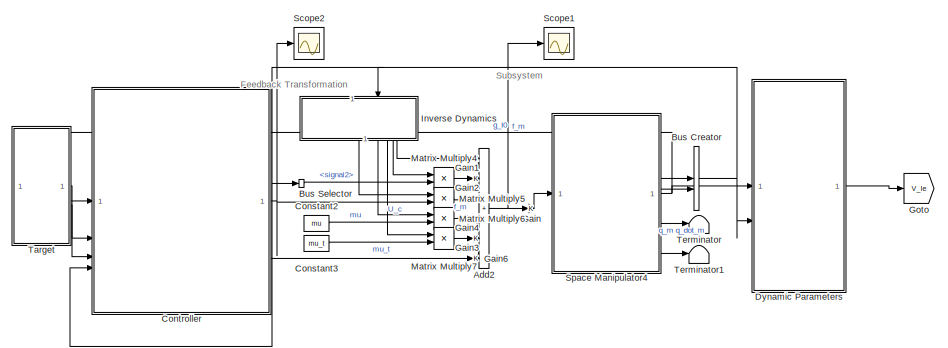
[diagram: root canvas - part 1/2, left side, full height]
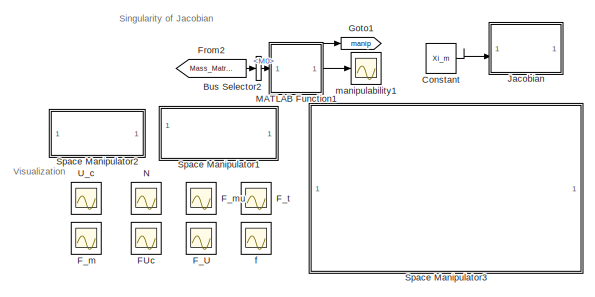
[diagram: root canvas - part 2/2, right side, full height]
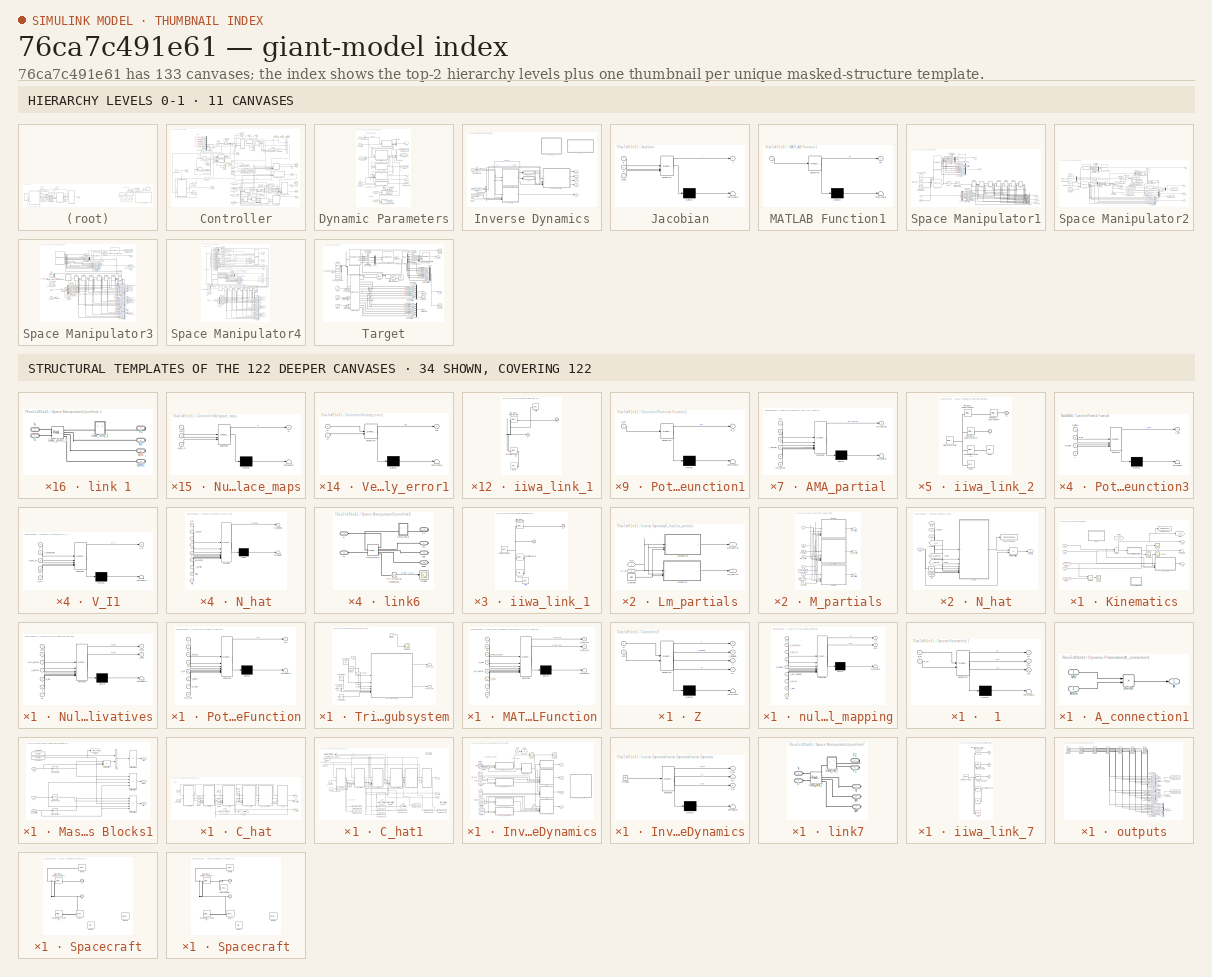
[diagram: thumbnail index - top-2 hierarchy levels (11 canvases) + 34 structural-template representatives of the remaining 122 canvases]
MODEL slx_76ca7c491e61
KIND model
CONFIG AbsTol = auto
CONFIG EnableMultiTasking = off
CONFIG FixedStep = 0.001
CONFIG InitFcn = %rho_0t=[0.29;0.29;0.29]; %m\n%V_0t=[-0.001;-0.001;0];%[-0.0005;-0.0005;0];\n%w_t=[0;0;-0.002];\n\n\n%rho_0t=[0.3;0.3;0.2]; %m\n%V_0t=[-0.001;-0.001;0];%[-0.0005;-0.0005;0];\n%w_t=[0;0;-0.001];
CONFIG MaxStep = auto
CONFIG MinStep = auto
CONFIG RelTol = 1e-3
CONFIG SampleTimeConstraint = Unconstrained
CONFIG SolverName = ode4
CONFIG StartTime = 0.0
CONFIG StopTime = 60
BLOCK [Sum] Add2
  IconShape = rectangular
  Inputs = ++++++
BLOCK [BusCreator] Bus Creator
  DisplayOption = bar
  InheritFromInputs = on
  Inputs = 2
BLOCK [BusSelector] Bus Selector
  OutputSignals = signal2
BLOCK [BusSelector] Bus Selector2
  Commented = on
  OutputSignals = M0
BLOCK [Constant] Constant
  Commented = on
  Value = Xi_m
BLOCK [Constant] Constant2
  Value = mu
BLOCK [Constant] Constant3
  Value = mu_t
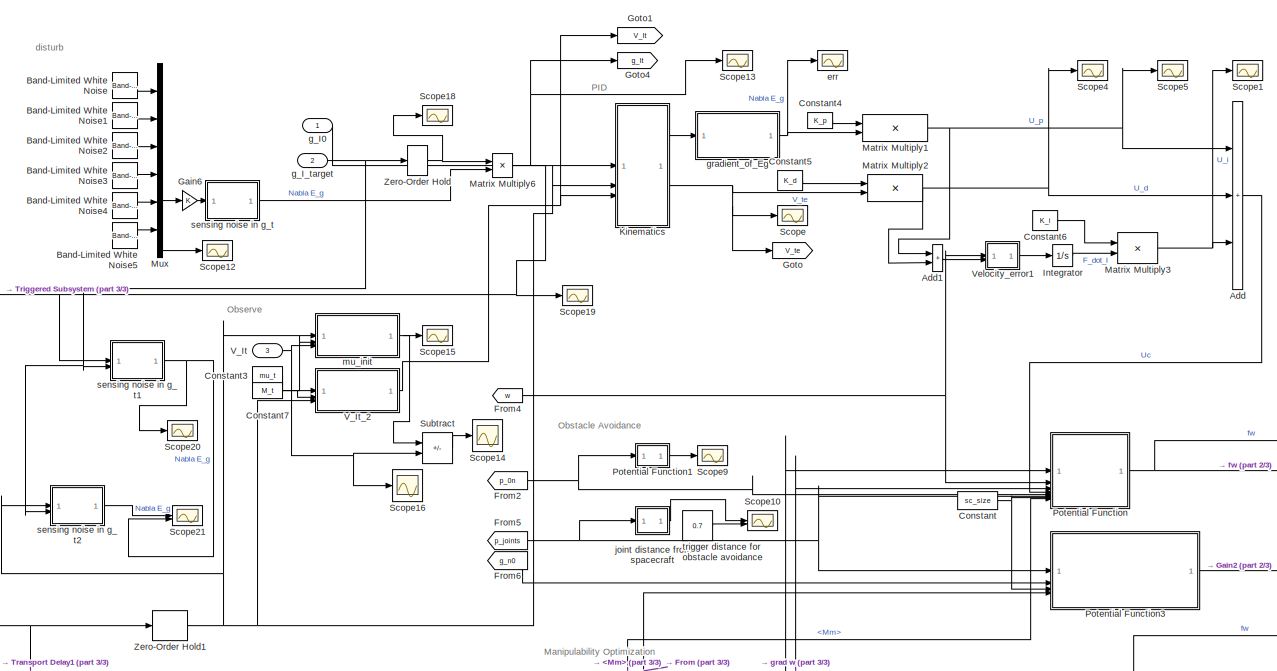
[diagram: Controller - part 1/3, full width, middle band]
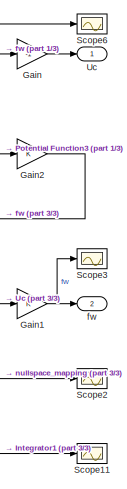
[diagram: Controller - part 2/3, middle right region]
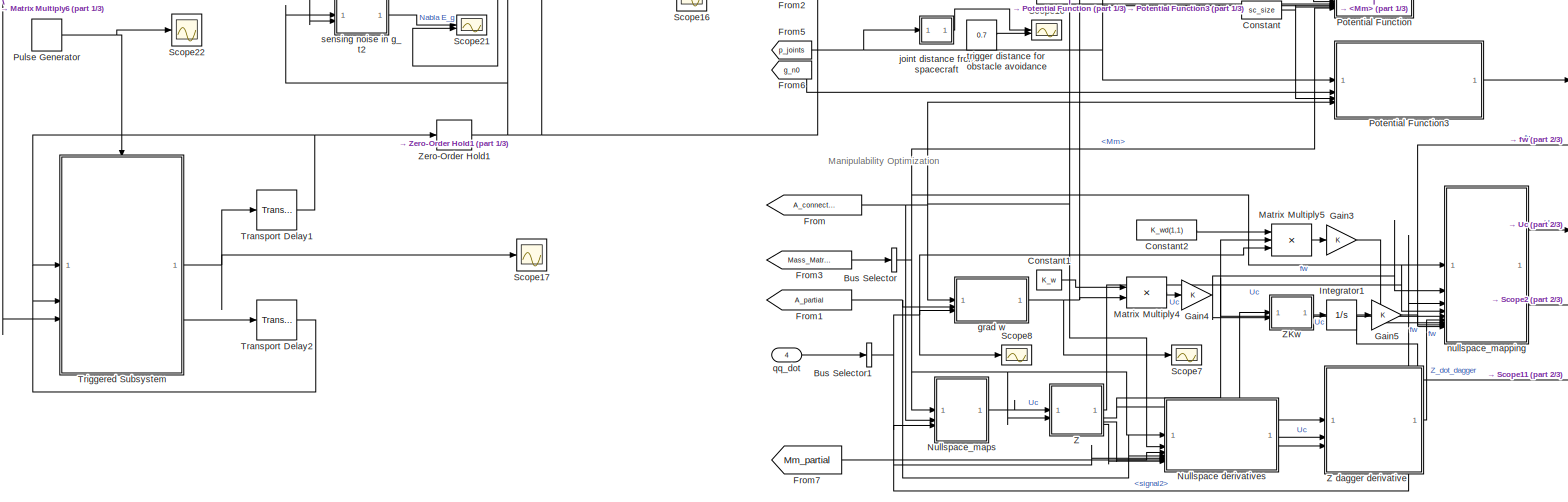
[diagram: Controller - part 3/3, full width, bottom band]
BLOCK [SubSystem] Controller
BLOCK [Sum] Controller/Add
  IconShape = rectangular
  Inputs = +++
BLOCK [Sum] Controller/Add1
  IconShape = rectangular
BLOCK [Reference] Controller/Band-Limited White Noise  REF=simulink/Sources/Band-Limited
White Noise
  SourceBlock = simulink/Sources/Band-Limited\nWhite Noise
  SourceType = Band-Limited White Noise.
BLOCK [Reference] Controller/Band-Limited White Noise1  REF=simulink/Sources/Band-Limited
White Noise
  SourceBlock = simulink/Sources/Band-Limited\nWhite Noise
  SourceType = Band-Limited White Noise.
BLOCK [Reference] Controller/Band-Limited White Noise2  REF=simulink/Sources/Band-Limited
White Noise
  SourceBlock = simulink/Sources/Band-Limited\nWhite Noise
  SourceType = Band-Limited White Noise.
BLOCK [Reference] Controller/Band-Limited White Noise3  REF=simulink/Sources/Band-Limited
White Noise
  SourceBlock = simulink/Sources/Band-Limited\nWhite Noise
  SourceType = Band-Limited White Noise.
BLOCK [Reference] Controller/Band-Limited White Noise4  REF=simulink/Sources/Band-Limited
White Noise
  SourceBlock = simulink/Sources/Band-Limited\nWhite Noise
  SourceType = Band-Limited White Noise.
BLOCK [Reference] Controller/Band-Limited White Noise5  REF=simulink/Sources/Band-Limited
White Noise
  SourceBlock = simulink/Sources/Band-Limited\nWhite Noise
  SourceType = Band-Limited White Noise.
BLOCK [BusSelector] Controller/Bus Selector
  OutputSignals = Mm
BLOCK [BusSelector] Controller/Bus Selector1
  OutputSignals = signal2
BLOCK [Constant] Controller/Constant
  Value = sc_size
BLOCK [Constant] Controller/Constant1
  Value = K_w
BLOCK [Constant] Controller/Constant2
  Value = K_wd(1,1)
BLOCK [Constant] Controller/Constant3
  Value = mu_t
BLOCK [Constant] Controller/Constant4
  Value = K_p
BLOCK [Constant] Controller/Constant5
  Value = K_d
BLOCK [Constant] Controller/Constant6
  Value = K_i
BLOCK [Constant] Controller/Constant7
  Value = M_t
BLOCK [From] Controller/From
  GotoTag = A_connection
  TagVisibility = global
BLOCK [From] Controller/From1
  GotoTag = A_partial
  TagVisibility = global
BLOCK [From] Controller/From2
  GotoTag = p_0n
  TagVisibility = global
BLOCK [From] Controller/From3
  GotoTag = Mass_Matrix
  TagVisibility = global
BLOCK [From] Controller/From4
  GotoTag = w
  TagVisibility = global
BLOCK [From] Controller/From5
  GotoTag = p_joints
  TagVisibility = global
BLOCK [From] Controller/From6
  GotoTag = g_n0
  TagVisibility = global
BLOCK [From] Controller/From7
  GotoTag = Mm_partial
  TagVisibility = global
BLOCK [Gain] Controller/Gain
  Gain = -1
BLOCK [Gain] Controller/Gain1
BLOCK [Gain] Controller/Gain2
BLOCK [Gain] Controller/Gain3
BLOCK [Gain] Controller/Gain4
BLOCK [Gain] Controller/Gain5
BLOCK [Gain] Controller/Gain6
BLOCK [Goto] Controller/Goto
  GotoTag = V_te
  TagVisibility = global
BLOCK [Goto] Controller/Goto1
  GotoTag = V_It
  TagVisibility = global
BLOCK [Goto] Controller/Goto4
  GotoTag = g_It
  TagVisibility = global
BLOCK [Integrator] Controller/Integrator
BLOCK [Integrator] Controller/Integrator1
BLOCK [SubSystem] Controller/Kinematics
BLOCK [Product] Controller/Kinematics/Divide
  Inputs = /*
  Multiplication = Matrix(*)
BLOCK [Scope] Controller/Kinematics/E_g
  Floating = off
  NumInputPorts = 1
  ScopeSpecificationString = Simulink.scopes.TimeScopeBlockCfg('CurrentConfiguration', extmgr.ConfigurationSet(extmgr.Configuration('Core','General UI',true),extmgr.Configuration('Core','Source UI',true),extmgr.Configuration('Sources','WiredSimulink',true,'DataLoggingVariableName','ScopeData1'),extmgr.Configuration('Visuals','Time Domain',true,'SerializedDisplays',{struct('MinYLimReal','-0.00992','MaxYLimReal','0.08934','YLab...<+1457ch>
BLOCK [From] Controller/Kinematics/From1
  GotoTag = V_I0
  TagVisibility = global
BLOCK [From] Controller/Kinematics/From2
  GotoTag = V_Ie
  TagVisibility = global
BLOCK [Goto] Controller/Kinematics/Goto1
  GotoTag = g_te
  TagVisibility = global
BLOCK [Goto] Controller/Kinematics/Goto5
  Commented = on
  GotoTag = g_Ie
  TagVisibility = global
BLOCK [SubSystem] Controller/Kinematics/Pose Error Function
  ErrorFcn = Stateflow.Translate.translate
  PermitHierarchicalResolution = ExplicitOnly
  SFBlockType = MATLAB Function
  TreatAsAtomicUnit = on
BLOCK [Demux] Controller/Kinematics/Pose Error Function/ Demux 
  Outputs = 1
BLOCK [S-Function] Controller/Kinematics/Pose Error Function/ SFunction 
  EnableBusSupport = off
  FunctionName = sf_sfun
  PortCounts = [1 2]
  SFcnIsStateOwnerBlock = off
  SFunctionDeploymentMode = off
  Tag = Stateflow S-Function 5
BLOCK [Terminator] Controller/Kinematics/Pose Error Function/ Terminator 
BLOCK [Outport] Controller/Kinematics/Pose Error Function/E_g
BLOCK [Inport] Controller/Kinematics/Pose Error Function/g_te
BLOCK [Scope] Controller/Kinematics/Scope
  Floating = off
  NumInputPorts = 1
  ScopeSpecificationString = Simulink.scopes.TimeScopeBlockCfg('CurrentConfiguration', extmgr.ConfigurationSet(extmgr.Configuration('Core','General UI',true),extmgr.Configuration('Core','Source UI',true),extmgr.Configuration('Sources','WiredSimulink',true,'DataLoggingVariableName','ScopeData2'),extmgr.Configuration('Visuals','Time Domain',true,'SerializedDisplays',{struct('MinYLimReal','-0.00049','MaxYLimReal','0.00063','YLab...<+1508ch>
BLOCK [Scope] Controller/Kinematics/Scope1
  Floating = off
  NumInputPorts = 1
  ScopeSpecificationString = Simulink.scopes.TimeScopeBlockCfg('CurrentConfiguration', extmgr.ConfigurationSet(extmgr.Configuration('Core','General UI',true),extmgr.Configuration('Core','Source UI',true),extmgr.Configuration('Sources','WiredSimulink',true,'DataLoggingVariableName','ScopeData8'),extmgr.Configuration('Visuals','Time Domain',true,'SerializedDisplays',{struct('MinYLimReal','-4.4344','MaxYLimReal','7.95546','YLabe...<+1579ch>
BLOCK [Scope] Controller/Kinematics/Scope2
  Floating = off
  NumInputPorts = 1
  ScopeSpecificationString = Simulink.scopes.TimeScopeBlockCfg('CurrentConfiguration', extmgr.ConfigurationSet(extmgr.Configuration('Core','General UI',true),extmgr.Configuration('Core','Source UI',true),extmgr.Configuration('Sources','WiredSimulink',true,'DataLoggingVariableName','ScopeData9'),extmgr.Configuration('Visuals','Time Domain',true,'SerializedDisplays',{struct('MinYLimReal','-0.03514','MaxYLimReal','0.01624','YLab...<+1620ch>
BLOCK [Sum] Controller/Kinematics/Subtract
  IconShape = rectangular
  Inputs = +-
BLOCK [Terminator] Controller/Kinematics/Terminator3
BLOCK [ToWorkspace] Controller/Kinematics/To Workspace
  FixptAsFi = on
  MaxDataPoints = inf
  SampleTime = -1
  SaveFormat = Timeseries
  VariableName = g_te
BLOCK [Inport] Controller/Kinematics/V_It
  Port = 3
BLOCK [Outport] Controller/Kinematics/V_te
  Port = 2
BLOCK [SubSystem] Controller/Kinematics/Velocity_error
  ErrorFcn = Stateflow.Translate.translate
  PermitHierarchicalResolution = ExplicitOnly
  SFBlockType = MATLAB Function
  TreatAsAtomicUnit = on
BLOCK [Demux] Controller/Kinematics/Velocity_error/ Demux 
  Outputs = 1
BLOCK [S-Function] Controller/Kinematics/Velocity_error/ SFunction 
  EnableBusSupport = off
  FunctionName = sf_sfun
  PortCounts = [4 2]
  SFcnIsStateOwnerBlock = off
  SFunctionDeploymentMode = off
  Tag = Stateflow S-Function 6
BLOCK [Terminator] Controller/Kinematics/Velocity_error/ Terminator 
BLOCK [Inport] Controller/Kinematics/Velocity_error/V_Ie
  Port = 2
BLOCK [Inport] Controller/Kinematics/Velocity_error/V_It
  Port = 3
BLOCK [Outport] Controller/Kinematics/Velocity_error/V_e
BLOCK [Inport] Controller/Kinematics/Velocity_error/g_I0
BLOCK [Inport] Controller/Kinematics/Velocity_error/g_It
  Port = 4
BLOCK [Inport] Controller/Kinematics/g_I0
BLOCK [Inport] Controller/Kinematics/g_It
  NameLocation = top
  Port = 2
BLOCK [SubSystem] Controller/Kinematics/g_te
  Commented = on
  ErrorFcn = Stateflow.Translate.translate
  PermitHierarchicalResolution = ExplicitOnly
  SFBlockType = MATLAB Function
  TreatAsAtomicUnit = on
BLOCK [Demux] Controller/Kinematics/g_te/ Demux 
  Outputs = 1
BLOCK [S-Function] Controller/Kinematics/g_te/ SFunction 
  EnableBusSupport = off
  FunctionName = sf_sfun
  PortCounts = [2 2]
  SFcnIsStateOwnerBlock = off
  SFunctionDeploymentMode = off
  Tag = Stateflow S-Function 3
BLOCK [Terminator] Controller/Kinematics/g_te/ Terminator 
BLOCK [Inport] Controller/Kinematics/g_te/g_Ie
BLOCK [Inport] Controller/Kinematics/g_te/g_It
  Port = 2
BLOCK [Outport] Controller/Kinematics/g_te/g_te
BLOCK [Outport] Controller/Kinematics/g_te1
BLOCK [SubSystem] Controller/Kinematics/velocity of target in EE
  Commented = on
  ErrorFcn = Stateflow.Translate.translate
  PermitHierarchicalResolution = ExplicitOnly
  SFBlockType = MATLAB Function
  TreatAsAtomicUnit = on
BLOCK [Demux] Controller/Kinematics/velocity of target in EE/ Demux 
  Outputs = 1
BLOCK [S-Function] Controller/Kinematics/velocity of target in EE/ SFunction 
  EnableBusSupport = off
  FunctionName = sf_sfun
  PortCounts = [2 2]
  SFcnIsStateOwnerBlock = off
  SFunctionDeploymentMode = off
  Tag = Stateflow S-Function 26
BLOCK [Terminator] Controller/Kinematics/velocity of target in EE/ Terminator 
BLOCK [Inport] Controller/Kinematics/velocity of target in EE/V_It
  Port = 2
BLOCK [Outport] Controller/Kinematics/velocity of target in EE/V_It_e
BLOCK [Inport] Controller/Kinematics/velocity of target in EE/g_te
BLOCK [Product] Controller/Matrix Multiply1
  Multiplication = Matrix(*)
BLOCK [Product] Controller/Matrix Multiply2
  Multiplication = Matrix(*)
BLOCK [Product] Controller/Matrix Multiply3
  Multiplication = Matrix(*)
BLOCK [Product] Controller/Matrix Multiply4
  Multiplication = Matrix(*)
BLOCK [Product] Controller/Matrix Multiply5
  Inputs = 3
  Multiplication = Matrix(*)
BLOCK [Product] Controller/Matrix Multiply6
  Multiplication = Matrix(*)
BLOCK [Mux] Controller/Mux
  DisplayOption = bar
  Inputs = 6
BLOCK [SubSystem] Controller/Nullspace derivatives
  ErrorFcn = Stateflow.Translate.translate
  PermitHierarchicalResolution = ExplicitOnly
  SFBlockType = MATLAB Function
  TreatAsAtomicUnit = on
BLOCK [Demux] Controller/Nullspace derivatives/ Demux 
  Outputs = 1
BLOCK [S-Function] Controller/Nullspace derivatives/ SFunction 
  EnableBusSupport = off
  FunctionName = sf_sfun
  PortCounts = [7 3]
  SFcnIsStateOwnerBlock = off
  SFunctionDeploymentMode = off
  Tag = Stateflow S-Function 20
BLOCK [Terminator] Controller/Nullspace derivatives/ Terminator 
BLOCK [Inport] Controller/Nullspace derivatives/A
  Port = 2
BLOCK [Inport] Controller/Nullspace derivatives/A_partial
  Port = 4
BLOCK [Inport] Controller/Nullspace derivatives/Mm
BLOCK [Inport] Controller/Nullspace derivatives/Mm_partial
  Port = 3
BLOCK [Outport] Controller/Nullspace derivatives/N_dot
BLOCK [Inport] Controller/Nullspace derivatives/Nj
  Port = 7
BLOCK [Outport] Controller/Nullspace derivatives/Z_dot
  Port = 2
BLOCK [Inport] Controller/Nullspace derivatives/j
  Port = 6
BLOCK [Inport] Controller/Nullspace derivatives/q_dot
  Port = 5
BLOCK [SubSystem] Controller/Nullspace_maps
  ErrorFcn = Stateflow.Translate.translate
  PermitHierarchicalResolution = ExplicitOnly
  SFBlockType = MATLAB Function
  TreatAsAtomicUnit = on
BLOCK [Demux] Controller/Nullspace_maps/ Demux 
  Outputs = 1
BLOCK [S-Function] Controller/Nullspace_maps/ SFunction 
  EnableBusSupport = off
  FunctionName = sf_sfun
  PortCounts = [3 2]
  SFcnIsStateOwnerBlock = off
  SFunctionDeploymentMode = off
  Tag = Stateflow S-Function 23
BLOCK [Terminator] Controller/Nullspace_maps/ Terminator 
BLOCK [Inport] Controller/Nullspace_maps/A
  Port = 2
BLOCK [Inport] Controller/Nullspace_maps/Mm
BLOCK [Outport] Controller/Nullspace_maps/N
BLOCK [Inport] Controller/Nullspace_maps/q_dot_m
  Port = 3
BLOCK [SubSystem] Controller/Potential Function
  ErrorFcn = Stateflow.Translate.translate
  PermitHierarchicalResolution = ExplicitOnly
  SFBlockType = MATLAB Function
  TreatAsAtomicUnit = on
BLOCK [Demux] Controller/Potential Function/ Demux 
  Outputs = 1
BLOCK [S-Function] Controller/Potential Function/ SFunction 
  EnableBusSupport = off
  FunctionName = sf_sfun
  PortCounts = [8 2]
  SFcnIsStateOwnerBlock = off
  SFunctionDeploymentMode = off
  Tag = Stateflow S-Function 1
BLOCK [Terminator] Controller/Potential Function/ Terminator 
BLOCK [Inport] Controller/Potential Function/A
BLOCK [Inport] Controller/Potential Function/Mm_hat
  Port = 8
BLOCK [Inport] Controller/Potential Function/U_c
  Port = 4
BLOCK [Outport] Controller/Potential Function/U_ff
BLOCK [Inport] Controller/Potential Function/grad_w
  Port = 3
BLOCK [Inport] Controller/Potential Function/p_0n
  Port = 5
BLOCK [Inport] Controller/Potential Function/p_joints
  Port = 6
BLOCK [Inport] Controller/Potential Function/sc_size
  Port = 7
BLOCK [Inport] Controller/Potential Function/w
  Port = 2
BLOCK [SubSystem] Controller/Potential Function1
  ErrorFcn = Stateflow.Translate.translate
  PermitHierarchicalResolution = ExplicitOnly
  SFBlockType = MATLAB Function
  TreatAsAtomicUnit = on
BLOCK [Demux] Controller/Potential Function1/ Demux 
  Outputs = 1
BLOCK [S-Function] Controller/Potential Function1/ SFunction 
  EnableBusSupport = off
  FunctionName = sf_sfun
  PortCounts = [1 2]
  SFcnIsStateOwnerBlock = off
  SFunctionDeploymentMode = off
  Tag = Stateflow S-Function 14
BLOCK [Terminator] Controller/Potential Function1/ Terminator 
BLOCK [Inport] Controller/Potential Function1/p_0n
BLOCK [Outport] Controller/Potential Function1/w_p
BLOCK [SubSystem] Controller/Potential Function3
  ErrorFcn = Stateflow.Translate.translate
  PermitHierarchicalResolution = ExplicitOnly
  SFBlockType = MATLAB Function
  TreatAsAtomicUnit = on
BLOCK [Demux] Controller/Potential Function3/ Demux 
  Outputs = 1
BLOCK [S-Function] Controller/Potential Function3/ SFunction 
  EnableBusSupport = off
  FunctionName = sf_sfun
  PortCounts = [4 2]
  SFcnIsStateOwnerBlock = off
  SFunctionDeploymentMode = off
  Tag = Stateflow S-Function 17
BLOCK [Terminator] Controller/Potential Function3/ Terminator 
BLOCK [Inport] Controller/Potential Function3/A
  Port = 4
BLOCK [Outport] Controller/Potential Function3/f_pot
BLOCK [Inport] Controller/Potential Function3/g_n0
  Port = 2
BLOCK [Inport] Controller/Potential Function3/p_joints
BLOCK [Inport] Controller/Potential Function3/sc_size
  Port = 3
BLOCK [DiscretePulseGenerator] Controller/Pulse Generator
  Period = Dt
  PulseType = Time based
  PulseWidth = 10
BLOCK [Scope] Controller/Scope
  Floating = off
  NumInputPorts = 1
  ScopeSpecificationString = Simulink.scopes.TimeScopeBlockCfg('CurrentConfiguration', extmgr.ConfigurationSet(extmgr.Configuration('Core','General UI',true),extmgr.Configuration('Core','Source UI',true),extmgr.Configuration('Sources','WiredSimulink',true),extmgr.Configuration('Visuals','Time Domain',true,'SerializedDisplays',{struct('MinYLimReal','-0.10668','MaxYLimReal','0.04519','YLabelReal','','MinYLimMag','0.00000','MaxY...<+1469ch>
BLOCK [Scope] Controller/Scope1
  Floating = off
  NumInputPorts = 1
  ScopeSpecificationString = Simulink.scopes.TimeScopeBlockCfg('CurrentConfiguration', extmgr.ConfigurationSet(extmgr.Configuration('Core','General UI',true),extmgr.Configuration('Core','Source UI',true),extmgr.Configuration('Sources','WiredSimulink',true,'DataLoggingVariableName','ScopeData3'),extmgr.Configuration('Visuals','Time Domain',true,'SerializedDisplays',{struct('MinYLimReal','-1.15074','MaxYLimReal','1.5836','YLabe...<+1637ch>
BLOCK [Scope] Controller/Scope10
  Floating = off
  NumInputPorts = 2
  ScopeSpecificationString = Simulink.scopes.TimeScopeBlockCfg('CurrentConfiguration', extmgr.ConfigurationSet(extmgr.Configuration('Core','General UI',true),extmgr.Configuration('Core','Source UI',true),extmgr.Configuration('Sources','WiredSimulink',true,'DataLoggingVariableName','ScopeData1'),extmgr.Configuration('Visuals','Time Domain',true,'SerializedDisplays',{struct('MinYLimReal','0.15616','MaxYLimReal','1.7029','YLabel...<+1830ch>
BLOCK [Scope] Controller/Scope11
  Floating = off
  NumInputPorts = 1
  ScopeSpecificationString = Simulink.scopes.TimeScopeBlockCfg('CurrentConfiguration', extmgr.ConfigurationSet(extmgr.Configuration('Core','General UI',true),extmgr.Configuration('Core','Source UI',true),extmgr.Configuration('Sources','WiredSimulink',true,'DataLoggingVariableName','ScopeData1'),extmgr.Configuration('Visuals','Time Domain',true,'SerializedDisplays',{struct('MinYLimReal','-27.19875','MaxYLimReal','175.70416','Y...<+1458ch>
BLOCK [Scope] Controller/Scope12
  Floating = off
  NumInputPorts = 1
  ScopeSpecificationString = Simulink.scopes.TimeScopeBlockCfg('CurrentConfiguration', extmgr.ConfigurationSet(extmgr.Configuration('Core','General UI',true),extmgr.Configuration('Core','Source UI',true),extmgr.Configuration('Sources','WiredSimulink',true,'DataLoggingVariableName','ScopeData1'),extmgr.Configuration('Visuals','Time Domain',true,'SerializedDisplays',{struct('MinYLimReal','-0.00733','MaxYLimReal','0.00731','YLab...<+1619ch>
BLOCK [Scope] Controller/Scope13
  Floating = off
  NumInputPorts = 1
  ScopeSpecificationString = Simulink.scopes.TimeScopeBlockCfg('CurrentConfiguration', extmgr.ConfigurationSet(extmgr.Configuration('Core','General UI',true),extmgr.Configuration('Core','Source UI',true),extmgr.Configuration('Sources','WiredSimulink',true,'DataLoggingVariableName','ScopeData3'),extmgr.Configuration('Visuals','Time Domain',true,'SerializedDisplays',{struct('MinYLimReal','-0.82393','MaxYLimReal','1.20266','YLab...<+2175ch>
BLOCK [Scope] Controller/Scope14
  Floating = off
  NumInputPorts = 1
  ScopeSpecificationString = Simulink.scopes.TimeScopeBlockCfg('CurrentConfiguration', extmgr.ConfigurationSet(extmgr.Configuration('Core','General UI',true),extmgr.Configuration('Core','Source UI',true),extmgr.Configuration('Sources','WiredSimulink',true,'DataLoggingVariableName','ScopeData4'),extmgr.Configuration('Visuals','Time Domain',true,'SerializedDisplays',{struct('MinYLimReal','-0.17727','MaxYLimReal','0.05018','YLab...<+1763ch>
BLOCK [Scope] Controller/Scope15
  Floating = off
  NumInputPorts = 1
  ScopeSpecificationString = Simulink.scopes.TimeScopeBlockCfg('CurrentConfiguration', extmgr.ConfigurationSet(extmgr.Configuration('Core','General UI',true),extmgr.Configuration('Core','Source UI',true),extmgr.Configuration('Sources','WiredSimulink',true,'DataLoggingVariableName','ScopeData6'),extmgr.Configuration('Visuals','Time Domain',true,'SerializedDisplays',{struct('MinYLimReal','-0.01298','MaxYLimReal','-0.01083','YLa...<+1701ch>
BLOCK [Scope] Controller/Scope16
  Floating = off
  NumInputPorts = 1
  ScopeSpecificationString = Simulink.scopes.TimeScopeBlockCfg('CurrentConfiguration', extmgr.ConfigurationSet(extmgr.Configuration('Core','General UI',true),extmgr.Configuration('Core','Source UI',true),extmgr.Configuration('Sources','WiredSimulink',true,'DataLoggingVariableName','ScopeData1'),extmgr.Configuration('Visuals','Time Domain',true,'SerializedDisplays',{struct('MinYLimReal','-0.03435','MaxYLimReal','0.00919','YLab...<+1815ch>
BLOCK [Scope] Controller/Scope17
  Floating = off
  NumInputPorts = 1
  ScopeSpecificationString = Simulink.scopes.TimeScopeBlockCfg('CurrentConfiguration', extmgr.ConfigurationSet(extmgr.Configuration('Core','General UI',true),extmgr.Configuration('Core','Source UI',true),extmgr.Configuration('Sources','WiredSimulink',true,'DataLoggingVariableName','ScopeData1'),extmgr.Configuration('Visuals','Time Domain',true,'SerializedDisplays',{struct('MinYLimReal','-0.04688','MaxYLimReal','0.02949','YLab...<+2441ch>
BLOCK [Scope] Controller/Scope18
  Floating = off
  NumInputPorts = 1
  ScopeSpecificationString = Simulink.scopes.TimeScopeBlockCfg('CurrentConfiguration', extmgr.ConfigurationSet(extmgr.Configuration('Core','General UI',true),extmgr.Configuration('Core','Source UI',true),extmgr.Configuration('Sources','WiredSimulink',true,'DataLoggingVariableName','ScopeData2'),extmgr.Configuration('Visuals','Time Domain',true,'SerializedDisplays',{struct('MinYLimReal','-0.12837','MaxYLimReal','1.12537','YLab...<+1785ch>
BLOCK [Scope] Controller/Scope19
  Floating = off
  NumInputPorts = 1
  ScopeSpecificationString = Simulink.scopes.TimeScopeBlockCfg('CurrentConfiguration', extmgr.ConfigurationSet(extmgr.Configuration('Core','General UI',true),extmgr.Configuration('Core','Source UI',true),extmgr.Configuration('Sources','WiredSimulink',true,'DataLoggingVariableName','ScopeData3'),extmgr.Configuration('Visuals','Time Domain',true,'SerializedDisplays',{struct('MinYLimReal','-0.50961','MaxYLimReal','1.16773','YLab...<+1801ch>
BLOCK [Scope] Controller/Scope2
  Floating = off
  NumInputPorts = 1
  ScopeSpecificationString = Simulink.scopes.TimeScopeBlockCfg('CurrentConfiguration', extmgr.ConfigurationSet(extmgr.Configuration('Core','General UI',true),extmgr.Configuration('Core','Source UI',true),extmgr.Configuration('Sources','WiredSimulink',true,'DataLoggingVariableName','ScopeData1'),extmgr.Configuration('Visuals','Time Domain',true,'SerializedDisplays',{struct('MinYLimReal','-2317681194068264.5','MaxYLimReal','257...<+1560ch>
BLOCK [Scope] Controller/Scope20
  Floating = off
  NumInputPorts = 1
  ScopeSpecificationString = Simulink.scopes.TimeScopeBlockCfg('CurrentConfiguration', extmgr.ConfigurationSet(extmgr.Configuration('Core','General UI',true),extmgr.Configuration('Core','Source UI',true),extmgr.Configuration('Sources','WiredSimulink',true,'DataLoggingVariableName','ScopeData4'),extmgr.Configuration('Visuals','Time Domain',true,'SerializedDisplays',{struct('MinYLimReal','-0.0001','MaxYLimReal','0.00139','YLabe...<+1462ch>
BLOCK [Scope] Controller/Scope21
  Floating = off
  NumInputPorts = 2
  ScopeSpecificationString = Simulink.scopes.TimeScopeBlockCfg('CurrentConfiguration', extmgr.ConfigurationSet(extmgr.Configuration('Core','General UI',true),extmgr.Configuration('Core','Source UI',true),extmgr.Configuration('Sources','WiredSimulink',true,'DataLoggingVariableName','ScopeData5'),extmgr.Configuration('Visuals','Time Domain',true,'SerializedDisplays',{struct('MinYLimReal','-0.0001','MaxYLimReal','0.00094','YLabe...<+1463ch>
BLOCK [Scope] Controller/Scope22
  Floating = off
  NumInputPorts = 1
  ScopeSpecificationString = Simulink.scopes.TimeScopeBlockCfg('CurrentConfiguration', extmgr.ConfigurationSet(extmgr.Configuration('Core','General UI',true),extmgr.Configuration('Core','Source UI',true),extmgr.Configuration('Sources','WiredSimulink',true,'DataLoggingVariableName','ScopeData7'),extmgr.Configuration('Visuals','Time Domain',true,'SerializedDisplays',{struct('MinYLimReal','-0.125','MaxYLimReal','1.125','YLabelRe...<+1794ch>
BLOCK [Scope] Controller/Scope3
  Floating = off
  NumInputPorts = 1
  ScopeSpecificationString = Simulink.scopes.TimeScopeBlockCfg('CurrentConfiguration', extmgr.ConfigurationSet(extmgr.Configuration('Core','General UI',true),extmgr.Configuration('Core','Source UI',true),extmgr.Configuration('Sources','WiredSimulink',true,'DataLoggingVariableName','ScopeData9'),extmgr.Configuration('Visuals','Time Domain',true,'SerializedDisplays',{struct('MinYLimReal','-2538.12086','MaxYLimReal','1236.63883'...<+1454ch>
BLOCK [Scope] Controller/Scope4
  Floating = off
  NumInputPorts = 1
  ScopeSpecificationString = Simulink.scopes.TimeScopeBlockCfg('CurrentConfiguration', extmgr.ConfigurationSet(extmgr.Configuration('Core','General UI',true),extmgr.Configuration('Core','Source UI',true),extmgr.Configuration('Sources','WiredSimulink',true,'DataLoggingVariableName','ScopeData5'),extmgr.Configuration('Visuals','Time Domain',true,'SerializedDisplays',{struct('MinYLimReal','-0.89635','MaxYLimReal','1.10812','YLab...<+1641ch>
BLOCK [Scope] Controller/Scope5
  Floating = off
  NumInputPorts = 1
  ScopeSpecificationString = Simulink.scopes.TimeScopeBlockCfg('CurrentConfiguration', extmgr.ConfigurationSet(extmgr.Configuration('Core','General UI',true),extmgr.Configuration('Core','Source UI',true),extmgr.Configuration('Sources','WiredSimulink',true,'DataLoggingVariableName','ScopeData6'),extmgr.Configuration('Visuals','Time Domain',true,'SerializedDisplays',{struct('MinYLimReal','-0.49484','MaxYLimReal','1.44387','YLab...<+1641ch>
BLOCK [Scope] Controller/Scope6
  Floating = off
  NumInputPorts = 1
  ScopeSpecificationString = Simulink.scopes.TimeScopeBlockCfg('CurrentConfiguration', extmgr.ConfigurationSet(extmgr.Configuration('Core','General UI',true),extmgr.Configuration('Core','Source UI',true),extmgr.Configuration('Sources','WiredSimulink',true,'DataLoggingVariableName','ScopeData7'),extmgr.Configuration('Visuals','Time Domain',true,'SerializedDisplays',{struct('MinYLimReal','-48.91233','MaxYLimReal','106.72772','Y...<+1618ch>
BLOCK [Scope] Controller/Scope7
  Floating = off
  NumInputPorts = 1
  ScopeSpecificationString = Simulink.scopes.TimeScopeBlockCfg('CurrentConfiguration', extmgr.ConfigurationSet(extmgr.Configuration('Core','General UI',true),extmgr.Configuration('Core','Source UI',true),extmgr.Configuration('Sources','WiredSimulink',true,'DataLoggingVariableName','ScopeData1'),extmgr.Configuration('Visuals','Time Domain',true,'SerializedDisplays',{struct('MinYLimReal','-0.01116','MaxYLimReal','0.00816','YLab...<+1531ch>
BLOCK [Scope] Controller/Scope8
  Floating = off
  NumInputPorts = 1
  ScopeSpecificationString = Simulink.scopes.TimeScopeBlockCfg('CurrentConfiguration', extmgr.ConfigurationSet(extmgr.Configuration('Core','General UI',true),extmgr.Configuration('Core','Source UI',true),extmgr.Configuration('Sources','WiredSimulink',true,'DataLoggingVariableName','ScopeData2'),extmgr.Configuration('Visuals','Time Domain',true,'SerializedDisplays',{struct('MinYLimReal','-0.62456','MaxYLimReal','0.99651','YLab...<+1552ch>
BLOCK [Scope] Controller/Scope9
  Floating = off
  NumInputPorts = 1
  ScopeSpecificationString = Simulink.scopes.TimeScopeBlockCfg('CurrentConfiguration', extmgr.ConfigurationSet(extmgr.Configuration('Core','General UI',true),extmgr.Configuration('Core','Source UI',true),extmgr.Configuration('Sources','WiredSimulink',true,'DataLoggingVariableName','ScopeData1'),extmgr.Configuration('Visuals','Time Domain',true,'SerializedDisplays',{struct('MinYLimReal','-0.02162','MaxYLimReal','1.39189','YLab...<+1620ch>
BLOCK [Sum] Controller/Subtract
  IconShape = rectangular
  Inputs = +-
BLOCK [TransportDelay] Controller/Transport Delay1
  DelayTime = Dt
  InitialOutput = g_It00
  TransDelayFeedthrough = on
BLOCK [TransportDelay] Controller/Transport Delay2
  DelayTime = Dt
  InitialOutput = zeros(6)
  TransDelayFeedthrough = on
BLOCK [SubSystem] Controller/Triggered Subsystem
  TreatAsAtomicUnit = on
BLOCK [Constant] Controller/Triggered Subsystem/Constant10
  Value = Dt
BLOCK [Constant] Controller/Triggered Subsystem/Constant11
  Value = mu_t
BLOCK [Constant] Controller/Triggered Subsystem/Constant12
  Value = noise_st.*eye(6)
BLOCK [Constant] Controller/Triggered Subsystem/Constant13
  Value = noise_st.*eye(6)
BLOCK [SubSystem] Controller/Triggered Subsystem/MATLAB Function
  ErrorFcn = Stateflow.Translate.translate
  PermitHierarchicalResolution = ExplicitOnly
  SFBlockType = MATLAB Function
  TreatAsAtomicUnit = on
BLOCK [Demux] Controller/Triggered Subsystem/MATLAB Function/ Demux 
  Outputs = 1
BLOCK [S-Function] Controller/Triggered Subsystem/MATLAB Function/ SFunction 
  EnableBusSupport = off
  FunctionName = sf_sfun
  PortCounts = [8 3]
  SFcnIsStateOwnerBlock = off
  SFunctionDeploymentMode = off
  Tag = Stateflow S-Function 32
BLOCK [Terminator] Controller/Triggered Subsystem/MATLAB Function/ Terminator 
BLOCK [Inport] Controller/Triggered Subsystem/MATLAB Function/Dt
  Port = 2
BLOCK [Inport] Controller/Triggered Subsystem/MATLAB Function/Mass_matrix
  Port = 3
BLOCK [Inport] Controller/Triggered Subsystem/MATLAB Function/P_pos
  Port = 6
BLOCK [Outport] Controller/Triggered Subsystem/MATLAB Function/P_pos_out
  Port = 2
BLOCK [Inport] Controller/Triggered Subsystem/MATLAB Function/Q
  Port = 7
BLOCK [Inport] Controller/Triggered Subsystem/MATLAB Function/R
  Port = 8
BLOCK [Inport] Controller/Triggered Subsystem/MATLAB Function/X_pos
  Port = 4
BLOCK [Outport] Controller/Triggered Subsystem/MATLAB Function/X_pos_out
BLOCK [Inport] Controller/Triggered Subsystem/MATLAB Function/Z
BLOCK [Inport] Controller/Triggered Subsystem/MATLAB Function/mu_vector
  Port = 5
BLOCK [Constant] Controller/Triggered Subsystem/Mass
  Value = [M_t(4:6,4:6) zeros(3); zeros(3) M_t(1:3,1:3)]
BLOCK [Inport] Controller/Triggered Subsystem/P_pos
  Port = 2
BLOCK [Outport] Controller/Triggered Subsystem/P_pos_out
  Port = 2
BLOCK [Scope] Controller/Triggered Subsystem/Scope17
  Floating = off
  NumInputPorts = 1
  ScopeSpecificationString = Simulink.scopes.TimeScopeBlockCfg('CurrentConfiguration', extmgr.ConfigurationSet(extmgr.Configuration('Core','General UI',true),extmgr.Configuration('Core','Source UI',true),extmgr.Configuration('Sources','WiredSimulink',true,'DataLoggingVariableName','ScopeData6'),extmgr.Configuration('Visuals','Time Domain',true,'SerializedDisplays',{struct('MinYLimReal','0.9','MaxYLimReal','1.1','YLabelReal','...<+1763ch>
BLOCK [TriggerPort] Controller/Triggered Subsystem/Trigger
  InitialTriggerSignalState = positive
  SampleTime = 0.5
  SampleTimeType = periodic
  ShowOutputPort = on
  StatesWhenEnabling = held
  VariantControl = (inherit)
BLOCK [Inport] Controller/Triggered Subsystem/X_pos
BLOCK [Outport] Controller/Triggered Subsystem/X_pos_out
BLOCK [Inport] Controller/Triggered Subsystem/Z
  Port = 3
BLOCK [Outport] Controller/Uc
BLOCK [Inport] Controller/V_It
  Port = 3
BLOCK [SubSystem] Controller/V_It_2
  ErrorFcn = Stateflow.Translate.translate
  PermitHierarchicalResolution = ExplicitOnly
  SFBlockType = MATLAB Function
  TreatAsAtomicUnit = on
BLOCK [Demux] Controller/V_It_2/ Demux 
  Outputs = 1
BLOCK [S-Function] Controller/V_It_2/ SFunction 
  EnableBusSupport = off
  FunctionName = sf_sfun
  PortCounts = [3 2]
  SFcnIsStateOwnerBlock = off
  SFunctionDeploymentMode = off
  Tag = Stateflow S-Function 27
BLOCK [Terminator] Controller/V_It_2/ Terminator 
BLOCK [Inport] Controller/V_It_2/M_t_body
  Port = 2
BLOCK [Outport] Controller/V_It_2/V_It_2
BLOCK [Inport] Controller/V_It_2/g_It
  Port = 3
BLOCK [Inport] Controller/V_It_2/mu_t
BLOCK [SubSystem] Controller/Velocity_error1
  ErrorFcn = Stateflow.Translate.translate
  PermitHierarchicalResolution = ExplicitOnly
  SFBlockType = MATLAB Function
  TreatAsAtomicUnit = on
BLOCK [Demux] Controller/Velocity_error1/ Demux 
  Outputs = 1
BLOCK [S-Function] Controller/Velocity_error1/ SFunction 
  EnableBusSupport = off
  FunctionName = sf_sfun
  PortCounts = [2 2]
  SFcnIsStateOwnerBlock = off
  SFunctionDeploymentMode = off
  Tag = Stateflow S-Function 13
BLOCK [Terminator] Controller/Velocity_error1/ Terminator 
BLOCK [Inport] Controller/Velocity_error1/in
  Port = 2
BLOCK [Outport] Controller/Velocity_error1/out
BLOCK [Inport] Controller/Velocity_error1/w
BLOCK [SubSystem] Controller/Z
  ErrorFcn = Stateflow.Translate.translate
  PermitHierarchicalResolution = ExplicitOnly
  SFBlockType = MATLAB Function
  TreatAsAtomicUnit = on
BLOCK [SubSystem] Controller/Z dagger derivative
  ErrorFcn = Stateflow.Translate.translate
  PermitHierarchicalResolution = ExplicitOnly
  SFBlockType = MATLAB Function
  TreatAsAtomicUnit = on
BLOCK [Demux] Controller/Z dagger derivative/ Demux 
  Outputs = 1
BLOCK [S-Function] Controller/Z dagger derivative/ SFunction 
  EnableBusSupport = off
  FunctionName = sf_sfun
  PortCounts = [3 2]
  SFcnIsStateOwnerBlock = off
  SFunctionDeploymentMode = off
  Tag = Stateflow S-Function 19
BLOCK [Terminator] Controller/Z dagger derivative/ Terminator 
BLOCK [Inport] Controller/Z dagger derivative/N_dot
  Port = 2
BLOCK [Inport] Controller/Z dagger derivative/Z_dagger
BLOCK [Inport] Controller/Z dagger derivative/Z_dot
  Port = 3
BLOCK [Outport] Controller/Z dagger derivative/Z_dot_dagger
BLOCK [Demux] Controller/Z/ Demux 
  Outputs = 1
BLOCK [S-Function] Controller/Z/ SFunction 
  EnableBusSupport = off
  FunctionName = sf_sfun
  PortCounts = [2 5]
  SFcnIsStateOwnerBlock = off
  SFunctionDeploymentMode = off
  Tag = Stateflow S-Function 21
BLOCK [Terminator] Controller/Z/ Terminator 
BLOCK [Inport] Controller/Z/Mm
  Port = 2
BLOCK [Inport] Controller/Z/N
BLOCK [Outport] Controller/Z/Nj
  Port = 4
BLOCK [Outport] Controller/Z/Z
BLOCK [Outport] Controller/Z/Z_dagger
  Port = 2
BLOCK [Outport] Controller/Z/j
  Port = 3
BLOCK [SubSystem] Controller/ZKw
  ErrorFcn = Stateflow.Translate.translate
  PermitHierarchicalResolution = ExplicitOnly
  SFBlockType = MATLAB Function
  TreatAsAtomicUnit = on
BLOCK [Demux] Controller/ZKw/ Demux 
  Outputs = 1
BLOCK [S-Function] Controller/ZKw/ SFunction 
  EnableBusSupport = off
  FunctionName = sf_sfun
  PortCounts = [2 2]
  SFcnIsStateOwnerBlock = off
  SFunctionDeploymentMode = off
  Tag = Stateflow S-Function 24
BLOCK [Terminator] Controller/ZKw/ Terminator 
BLOCK [Inport] Controller/ZKw/K_w_grad_w
  Port = 2
BLOCK [Inport] Controller/ZKw/Z_dagger
BLOCK [Outport] Controller/ZKw/out
BLOCK [ZeroOrderHold] Controller/Zero-Order Hold
  SampleTime = Dt_s
BLOCK [ZeroOrderHold] Controller/Zero-Order Hold1
  SampleTime = Dt
BLOCK [Scope] Controller/err
  Floating = off
  NumInputPorts = 1
  ScopeSpecificationString = Simulink.scopes.TimeScopeBlockCfg('CurrentConfiguration', extmgr.ConfigurationSet(extmgr.Configuration('Core','General UI',true),extmgr.Configuration('Core','Source UI',true),extmgr.Configuration('Sources','WiredSimulink',true,'DataLoggingVariableName','ScopeData5'),extmgr.Configuration('Visuals','Time Domain',true,'SerializedDisplays',{struct('MinYLimReal','-0.22224','MaxYLimReal','0.30247','YLab...<+1650ch>
BLOCK [Outport] Controller/fw
  Port = 2
BLOCK [Inport] Controller/g_I0
  NameLocation = top
BLOCK [Inport] Controller/g_I_target
  Port = 2
BLOCK [SubSystem] Controller/grad w
  ErrorFcn = Stateflow.Translate.translate
  PermitHierarchicalResolution = ExplicitOnly
  SFBlockType = MATLAB Function
  TreatAsAtomicUnit = on
BLOCK [Demux] Controller/grad w/ Demux 
  Outputs = 1
BLOCK [S-Function] Controller/grad w/ SFunction 
  EnableBusSupport = off
  FunctionName = sf_sfun
  PortCounts = [3 2]
  SFcnIsStateOwnerBlock = off
  SFunctionDeploymentMode = off
  Tag = Stateflow S-Function 11
BLOCK [Terminator] Controller/grad w/ Terminator 
BLOCK [Inport] Controller/grad w/A
BLOCK [Inport] Controller/grad w/A_partial
  Port = 2
BLOCK [Outport] Controller/grad w/grad_w
BLOCK [Inport] Controller/grad w/q_dot
  Port = 3
BLOCK [SubSystem] Controller/gradient_of_Eg
  ErrorFcn = Stateflow.Translate.translate
  PermitHierarchicalResolution = ExplicitOnly
  SFBlockType = MATLAB Function
  TreatAsAtomicUnit = on
BLOCK [Demux] Controller/gradient_of_Eg/ Demux 
  Outputs = 1
BLOCK [S-Function] Controller/gradient_of_Eg/ SFunction 
  EnableBusSupport = off
  FunctionName = sf_sfun
  PortCounts = [1 2]
  SFcnIsStateOwnerBlock = off
  SFunctionDeploymentMode = off
  Tag = Stateflow S-Function 2
BLOCK [Terminator] Controller/gradient_of_Eg/ Terminator 
BLOCK [Outport] Controller/gradient_of_Eg/Nabla_Eg
BLOCK [Inport] Controller/gradient_of_Eg/g_te
BLOCK [SubSystem] Controller/joint distance from spacecraft
  ErrorFcn = Stateflow.Translate.translate
  PermitHierarchicalResolution = ExplicitOnly
  SFBlockType = MATLAB Function
  TreatAsAtomicUnit = on
BLOCK [Demux] Controller/joint distance from spacecraft/ Demux 
  Outputs = 1
BLOCK [S-Function] Controller/joint distance from spacecraft/ SFunction 
  EnableBusSupport = off
  FunctionName = sf_sfun
  PortCounts = [1 2]
  SFcnIsStateOwnerBlock = off
  SFunctionDeploymentMode = off
  Tag = Stateflow S-Function 16
BLOCK [Terminator] Controller/joint distance from spacecraft/ Terminator 
BLOCK [Inport] Controller/joint distance from spacecraft/p_joints
BLOCK [Outport] Controller/joint distance from spacecraft/pnorm
BLOCK [SubSystem] Controller/mu_init
  ErrorFcn = Stateflow.Translate.translate
  PermitHierarchicalResolution = ExplicitOnly
  SFBlockType = MATLAB Function
  TreatAsAtomicUnit = on
BLOCK [Demux] Controller/mu_init/ Demux 
  Outputs = 1
BLOCK [S-Function] Controller/mu_init/ SFunction 
  EnableBusSupport = off
  FunctionName = sf_sfun
  PortCounts = [3 2]
  SFcnIsStateOwnerBlock = off
  SFunctionDeploymentMode = off
  Tag = Stateflow S-Function 30
BLOCK [Terminator] Controller/mu_init/ Terminator 
BLOCK [Inport] Controller/mu_init/Mt
  Port = 2
BLOCK [Inport] Controller/mu_init/V_It
  Port = 3
BLOCK [Inport] Controller/mu_init/g_It
BLOCK [Outport] Controller/mu_init/mu_t
BLOCK [SubSystem] Controller/nullspace_mapping
  ErrorFcn = Stateflow.Translate.translate
  PermitHierarchicalResolution = ExplicitOnly
  SFBlockType = MATLAB Function
  TreatAsAtomicUnit = on
BLOCK [Demux] Controller/nullspace_mapping/ Demux 
  Outputs = 1
BLOCK [S-Function] Controller/nullspace_mapping/ SFunction 
  EnableBusSupport = off
  FunctionName = sf_sfun
  PortCounts = [9 3]
  SFcnIsStateOwnerBlock = off
  SFunctionDeploymentMode = off
  Tag = Stateflow S-Function 10
BLOCK [Terminator] Controller/nullspace_mapping/ Terminator 
BLOCK [Inport] Controller/nullspace_mapping/K_nu_nu
  Port = 7
BLOCK [Inport] Controller/nullspace_mapping/K_w_grad_w
  Port = 2
BLOCK [Inport] Controller/nullspace_mapping/Mm
BLOCK [Inport] Controller/nullspace_mapping/Z
  Port = 4
BLOCK [Inport] Controller/nullspace_mapping/Z_dagger
  Port = 5
BLOCK [Inport] Controller/nullspace_mapping/Z_dot_dagger
  Port = 6
BLOCK [Outport] Controller/nullspace_mapping/f_N
BLOCK [Inport] Controller/nullspace_mapping/f_pot
  Port = 8
BLOCK [Inport] Controller/nullspace_mapping/fw_i
  Port = 9
BLOCK [Outport] Controller/nullspace_mapping/out2
  Port = 2
BLOCK [Inport] Controller/nullspace_mapping/q_dot_m
  Port = 3
BLOCK [Inport] Controller/qq_dot
  Port = 4
BLOCK [SubSystem] Controller/sensing noise in g_t
  ErrorFcn = Stateflow.Translate.translate
  PermitHierarchicalResolution = ExplicitOnly
  SFBlockType = MATLAB Function
  TreatAsAtomicUnit = on
BLOCK [Demux] Controller/sensing noise in g_t/ Demux 
  Outputs = 1
BLOCK [S-Function] Controller/sensing noise in g_t/ SFunction 
  EnableBusSupport = off
  FunctionName = sf_sfun
  PortCounts = [1 2]
  SFcnIsStateOwnerBlock = off
  SFunctionDeploymentMode = off
  Tag = Stateflow S-Function 25
BLOCK [Terminator] Controller/sensing noise in g_t/ Terminator 
BLOCK [Inport] Controller/sensing noise in g_t/err
BLOCK [Outport] Controller/sensing noise in g_t/errM
BLOCK [SubSystem] Controller/sensing noise in g_t1
  ErrorFcn = Stateflow.Translate.translate
  PermitHierarchicalResolution = ExplicitOnly
  SFBlockType = MATLAB Function
  TreatAsAtomicUnit = on
BLOCK [Demux] Controller/sensing noise in g_t1/ Demux 
  Outputs = 1
BLOCK [S-Function] Controller/sensing noise in g_t1/ SFunction 
  EnableBusSupport = off
  FunctionName = sf_sfun
  PortCounts = [2 2]
  SFcnIsStateOwnerBlock = off
  SFunctionDeploymentMode = off
  Tag = Stateflow S-Function 31
BLOCK [Terminator] Controller/sensing noise in g_t1/ Terminator 
BLOCK [Outport] Controller/sensing noise in g_t1/errM
BLOCK [Inport] Controller/sensing noise in g_t1/z
BLOCK [Inport] Controller/sensing noise in g_t1/z_gt
  Port = 2
BLOCK [SubSystem] Controller/sensing noise in g_t2
  ErrorFcn = Stateflow.Translate.translate
  PermitHierarchicalResolution = ExplicitOnly
  SFBlockType = MATLAB Function
  TreatAsAtomicUnit = on
BLOCK [Demux] Controller/sensing noise in g_t2/ Demux 
  Outputs = 1
BLOCK [S-Function] Controller/sensing noise in g_t2/ SFunction 
  EnableBusSupport = off
  FunctionName = sf_sfun
  PortCounts = [2 2]
  SFcnIsStateOwnerBlock = off
  SFunctionDeploymentMode = off
  Tag = Stateflow S-Function 33
BLOCK [Terminator] Controller/sensing noise in g_t2/ Terminator 
BLOCK [Outport] Controller/sensing noise in g_t2/errM
BLOCK [Inport] Controller/sensing noise in g_t2/z
BLOCK [Inport] Controller/sensing noise in g_t2/z_gt
  Port = 2
BLOCK [Constant] Controller/trigger distance for obstacle avoidance
  Value = 0.7
BLOCK [SubSystem] Dynamic Parameters
BLOCK [SubSystem] Dynamic Parameters/ 1
  ErrorFcn = Stateflow.Translate.translate
  PermitHierarchicalResolution = ExplicitOnly
  SFBlockType = MATLAB Function
  TreatAsAtomicUnit = on
BLOCK [Demux] Dynamic Parameters/ 1/ Demux 
  Outputs = 1
BLOCK [S-Function] Dynamic Parameters/ 1/ SFunction 
  EnableBusSupport = off
  FunctionName = sf_sfun
  PortCounts = [2 4]
  SFcnIsStateOwnerBlock = off
  SFunctionDeploymentMode = off
  Tag = Stateflow S-Function 34
BLOCK [Terminator] Dynamic Parameters/ 1/ Terminator 
BLOCK [Outport] Dynamic Parameters/ 1/L0
BLOCK [Outport] Dynamic Parameters/ 1/Lm
  Port = 3
BLOCK [Outport] Dynamic Parameters/ 1/Lm0
  Port = 2
BLOCK [Inport] Dynamic Parameters/ 1/Xi_m
  Port = 2
BLOCK [Inport] Dynamic Parameters/ 1/q_m
BLOCK [SubSystem] Dynamic Parameters/A_connection1
BLOCK [Outport] Dynamic Parameters/A_connection1/A
BLOCK [Product] Dynamic Parameters/A_connection1/Divide
  Inputs = /*
  Multiplication = Matrix(*)
BLOCK [Inport] Dynamic Parameters/A_connection1/M0
BLOCK [Inport] Dynamic Parameters/A_connection1/M0m
  Port = 2
BLOCK [BusCreator] Dynamic Parameters/Bus Creator3
  DisplayOption = bar
  InheritFromInputs = on
  Inputs = M0,M0m,Mm
BLOCK [BusCreator] Dynamic Parameters/Bus Creator4
  DisplayOption = bar
  InheritFromInputs = on
  Inputs = 3
BLOCK [BusSelector] Dynamic Parameters/Bus Selector
  OutputSignals = signal1,signal2
BLOCK [Constant] Dynamic Parameters/Constant1
  Value = mu
BLOCK [Constant] Dynamic Parameters/Constant4
  Value = Xi_m
BLOCK [Constant] Dynamic Parameters/Constant7
  Value = Xi_m_matrix
BLOCK [From] Dynamic Parameters/From1
  GotoTag = A_connection
  TagVisibility = global
BLOCK [From] Dynamic Parameters/From2
  GotoTag = A_connection
  TagVisibility = global
BLOCK [Goto] Dynamic Parameters/Goto
  GotoTag = Mass_Matrix
  TagVisibility = global
BLOCK [Goto] Dynamic Parameters/Goto1
  GotoTag = A_connection
  TagVisibility = global
BLOCK [Goto] Dynamic Parameters/Goto2
  GotoTag = w
  TagVisibility = global
BLOCK [Goto] Dynamic Parameters/Goto4
  GotoTag = P
  TagVisibility = global
BLOCK [Goto] Dynamic Parameters/Goto5
  GotoTag = L
  TagVisibility = global
BLOCK [SubSystem] Dynamic Parameters/MATLAB Function
  ErrorFcn = Stateflow.Translate.translate
  PermitHierarchicalResolution = ExplicitOnly
  SFBlockType = MATLAB Function
  TreatAsAtomicUnit = on
BLOCK [Demux] Dynamic Parameters/MATLAB Function/ Demux 
  Outputs = 1
BLOCK [S-Function] Dynamic Parameters/MATLAB Function/ SFunction 
  EnableBusSupport = off
  FunctionName = sf_sfun
  PortCounts = [1 2]
  SFcnIsStateOwnerBlock = off
  SFunctionDeploymentMode = off
  Tag = Stateflow S-Function 4
BLOCK [Terminator] Dynamic Parameters/MATLAB Function/ Terminator 
BLOCK [Inport] Dynamic Parameters/MATLAB Function/A
BLOCK [Outport] Dynamic Parameters/MATLAB Function/wt
BLOCK [SubSystem] Dynamic Parameters/MATLAB Function1
  ErrorFcn = Stateflow.Translate.translate
  PermitHierarchicalResolution = ExplicitOnly
  SFBlockType = MATLAB Function
  TreatAsAtomicUnit = on
BLOCK [Demux] Dynamic Parameters/MATLAB Function1/ Demux 
  Outputs = 1
BLOCK [S-Function] Dynamic Parameters/MATLAB Function1/ SFunction 
  EnableBusSupport = off
  FunctionName = sf_sfun
  PortCounts = [2 2]
  SFcnIsStateOwnerBlock = off
  SFunctionDeploymentMode = off
  Tag = Stateflow S-Function 22
BLOCK [Terminator] Dynamic Parameters/MATLAB Function1/ Terminator 
BLOCK [Outport] Dynamic Parameters/MATLAB Function1/P
BLOCK [Inport] Dynamic Parameters/MATLAB Function1/g_I0
BLOCK [Inport] Dynamic Parameters/MATLAB Function1/mu
  Port = 2
BLOCK [SubSystem] Dynamic Parameters/MATLAB Function2
  ErrorFcn = Stateflow.Translate.translate
  PermitHierarchicalResolution = ExplicitOnly
  SFBlockType = MATLAB Function
  TreatAsAtomicUnit = on
BLOCK [Demux] Dynamic Parameters/MATLAB Function2/ Demux 
  Outputs = 1
BLOCK [S-Function] Dynamic Parameters/MATLAB Function2/ SFunction 
  EnableBusSupport = off
  FunctionName = sf_sfun
  PortCounts = [2 2]
  SFcnIsStateOwnerBlock = off
  SFunctionDeploymentMode = off
  Tag = Stateflow S-Function 8
BLOCK [Terminator] Dynamic Parameters/MATLAB Function2/ Terminator 
BLOCK [Inport] Dynamic Parameters/MATLAB Function2/A
BLOCK [Inport] Dynamic Parameters/MATLAB Function2/Mm
  Port = 2
BLOCK [Outport] Dynamic Parameters/MATLAB Function2/wt
BLOCK [SubSystem] Dynamic Parameters/Mass Matrix Blocks1
BLOCK [Sum] Dynamic Parameters/Mass Matrix Blocks1/Add
  IconShape = rectangular
BLOCK [Constant] Dynamic Parameters/Mass Matrix Blocks1/Constant1
  Value = m0_frak
  VectorParams1D = off
BLOCK [Constant] Dynamic Parameters/Mass Matrix Blocks1/Constant2
  Value = m_diag
  VectorParams1D = off
BLOCK [Goto] Dynamic Parameters/Mass Matrix Blocks1/Goto1
  GotoTag = diag_Mm
  TagVisibility = global
BLOCK [Inport] Dynamic Parameters/Mass Matrix Blocks1/Lm
BLOCK [Inport] Dynamic Parameters/Mass Matrix Blocks1/Lm0
  Port = 2
BLOCK [Outport] Dynamic Parameters/Mass Matrix Blocks1/M0
BLOCK [Outport] Dynamic Parameters/Mass Matrix Blocks1/M0m
  Port = 2
BLOCK [Product] Dynamic Parameters/Mass Matrix Blocks1/Matrix Multiply1
  Inputs = 4
  Multiplication = Matrix(*)
BLOCK [Product] Dynamic Parameters/Mass Matrix Blocks1/Matrix Multiply3
  Inputs = 5
  Multiplication = Matrix(*)
BLOCK [Product] Dynamic Parameters/Mass Matrix Blocks1/Matrix Multiply4
  Inputs = 3
  Multiplication = Matrix(*)
BLOCK [Product] Dynamic Parameters/Mass Matrix Blocks1/Matrix Multiply5
  Inputs = 1
  Multiplication = Matrix(*)
BLOCK [Outport] Dynamic Parameters/Mass Matrix Blocks1/Mm
  Port = 3
BLOCK [Math] Dynamic Parameters/Mass Matrix Blocks1/Transpose3
  Operator = transpose
BLOCK [Math] Dynamic Parameters/Mass Matrix Blocks1/Transpose4
  Operator = transpose
BLOCK [Math] Dynamic Parameters/Mass Matrix Blocks1/Transpose5
  Operator = transpose
BLOCK [Inport] Dynamic Parameters/Mass Matrix Blocks1/Xi_m_matrix
  Port = 3
BLOCK [ToWorkspace] Dynamic Parameters/To Workspace
  FixptAsFi = on
  MaxDataPoints = inf
  SampleTime = -1
  SaveFormat = Timeseries
  VariableName = M0
BLOCK [ToWorkspace] Dynamic Parameters/To Workspace1
  FixptAsFi = on
  MaxDataPoints = inf
  SampleTime = -1
  SaveFormat = Timeseries
  VariableName = V_I0
BLOCK [Outport] Dynamic Parameters/V
BLOCK [SubSystem] Dynamic Parameters/V_I1
  ErrorFcn = Stateflow.Translate.translate
  PermitHierarchicalResolution = ExplicitOnly
  SFBlockType = MATLAB Function
  TreatAsAtomicUnit = on
BLOCK [Demux] Dynamic Parameters/V_I1/ Demux 
  Outputs = 1
BLOCK [S-Function] Dynamic Parameters/V_I1/ SFunction 
  EnableBusSupport = off
  FunctionName = sf_sfun
  PortCounts = [5 2]
  SFcnIsStateOwnerBlock = off
  SFunctionDeploymentMode = off
  Tag = Stateflow S-Function 12
BLOCK [Terminator] Dynamic Parameters/V_I1/ Terminator 
BLOCK [Inport] Dynamic Parameters/V_I1/A_connection
  Port = 2
BLOCK [Inport] Dynamic Parameters/V_I1/M0
  Port = 4
BLOCK [Inport] Dynamic Parameters/V_I1/P
BLOCK [Outport] Dynamic Parameters/V_I1/V_I0
BLOCK [Inport] Dynamic Parameters/V_I1/g_I0
  Port = 5
BLOCK [Inport] Dynamic Parameters/V_I1/q_dot_m
  Port = 3
BLOCK [Inport] Dynamic Parameters/g_I0
BLOCK [Scope] Dynamic Parameters/manipulability
  Floating = off
  NumInputPorts = 2
  ScopeSpecificationString = Simulink.scopes.TimeScopeBlockCfg('CurrentConfiguration', extmgr.ConfigurationSet(extmgr.Configuration('Core','General UI',true),extmgr.Configuration('Core','Source UI',true),extmgr.Configuration('Sources','WiredSimulink',true,'DataLoggingVariableName','ScopeData1'),extmgr.Configuration('Visuals','Time Domain',true,'SerializedDisplays',{struct('MinYLimReal','0.0002','MaxYLimReal','0.0077','YLabelR...<+1532ch>
BLOCK [Scope] Dynamic Parameters/manipulability1
  Floating = off
  NumInputPorts = 1
  ScopeSpecificationString = Simulink.scopes.TimeScopeBlockCfg('CurrentConfiguration', extmgr.ConfigurationSet(extmgr.Configuration('Core','General UI',true),extmgr.Configuration('Core','Source UI',true),extmgr.Configuration('Sources','WiredSimulink',true,'DataLoggingVariableName','ScopeData1'),extmgr.Configuration('Visuals','Time Domain',true,'SerializedDisplays',{struct('MinYLimReal','0.0000033','MaxYLimReal','0.0000043','Y...<+1601ch>
BLOCK [Inport] Dynamic Parameters/q_ddot_m
  Port = 2
BLOCK [Constant] Dynamic Parameters/trigger
  Value = 0.003
BLOCK [Scope] FUc
  Commented = on
  Floating = off
  NumInputPorts = 1
  ScopeSpecificationString = Simulink.scopes.TimeScopeBlockCfg('CurrentConfiguration', extmgr.ConfigurationSet(extmgr.Configuration('Core','General UI',true),extmgr.Configuration('Core','Source UI',true),extmgr.Configuration('Sources','WiredSimulink',true,'DataLoggingVariableName','ScopeData1'),extmgr.Configuration('Visuals','Time Domain',true,'SerializedDisplays',{struct('MinYLimReal','-0.08585','MaxYLimReal','0.08839','YLab...<+1677ch>
BLOCK [Scope] F_U
  Commented = on
  Floating = off
  NumInputPorts = 1
  ScopeSpecificationString = Simulink.scopes.TimeScopeBlockCfg('CurrentConfiguration', extmgr.ConfigurationSet(extmgr.Configuration('Core','General UI',true),extmgr.Configuration('Core','Source UI',true),extmgr.Configuration('Sources','WiredSimulink',true,'DataLoggingVariableName','ScopeData2'),extmgr.Configuration('Visuals','Time Domain',true,'SerializedDisplays',{struct('MinYLimReal','-7.5606','MaxYLimReal','13.50611','YLab...<+2703ch>
BLOCK [Scope] F_m
  Commented = on
  Floating = off
  NumInputPorts = 1
  ScopeSpecificationString = Simulink.scopes.TimeScopeBlockCfg('CurrentConfiguration', extmgr.ConfigurationSet(extmgr.Configuration('Core','General UI',true),extmgr.Configuration('Core','Source UI',true),extmgr.Configuration('Sources','WiredSimulink',true,'DataLoggingVariableName','ScopeData3'),extmgr.Configuration('Visuals','Time Domain',true,'SerializedDisplays',{struct('MinYLimReal','-0.15639','MaxYLimReal','0.16653','YLab...<+1770ch>
BLOCK [Scope] F_mu
  Commented = on
  Floating = off
  NumInputPorts = 1
  ScopeSpecificationString = Simulink.scopes.TimeScopeBlockCfg('CurrentConfiguration', extmgr.ConfigurationSet(extmgr.Configuration('Core','General UI',true),extmgr.Configuration('Core','Source UI',true),extmgr.Configuration('Sources','WiredSimulink',true,'DataLoggingVariableName','ScopeData4'),extmgr.Configuration('Visuals','Time Domain',true,'SerializedDisplays',{struct('MinYLimReal','-1.00000','MaxYLimReal','1.00000','YLab...<+1719ch>
BLOCK [Scope] F_t
  Commented = on
  Floating = off
  NumInputPorts = 1
  ScopeSpecificationString = Simulink.scopes.TimeScopeBlockCfg('CurrentConfiguration', extmgr.ConfigurationSet(extmgr.Configuration('Core','General UI',true),extmgr.Configuration('Core','Source UI',true),extmgr.Configuration('Sources','WiredSimulink',true,'DataLoggingVariableName','ScopeData5'),extmgr.Configuration('Visuals','Time Domain',true,'SerializedDisplays',{struct('MinYLimReal','-589.34445','MaxYLimReal','361.33491','...<+1733ch>
BLOCK [From] From2
  Commented = on
  GotoTag = Mass_Matrix
  TagVisibility = global
BLOCK [Gain] Gain
BLOCK [Gain] Gain1
BLOCK [Gain] Gain2
BLOCK [Gain] Gain3
BLOCK [Gain] Gain4
BLOCK [Gain] Gain6
BLOCK [Goto] Goto
  GotoTag = V_Ie
  TagVisibility = global
BLOCK [Goto] Goto1
  Commented = on
  GotoTag = manip
  TagVisibility = global
BLOCK [SubSystem] Inverse Dynamics
BLOCK [SubSystem] Inverse Dynamics/A_dot
  ErrorFcn = Stateflow.Translate.translate
  PermitHierarchicalResolution = ExplicitOnly
  SFBlockType = MATLAB Function
  TreatAsAtomicUnit = on
BLOCK [Demux] Inverse Dynamics/A_dot/ Demux 
  Outputs = 1
BLOCK [S-Function] Inverse Dynamics/A_dot/ SFunction 
  EnableBusSupport = off
  FunctionName = sf_sfun
  PortCounts = [2 2]
  SFcnIsStateOwnerBlock = off
  SFunctionDeploymentMode = off
  Tag = Stateflow S-Function 95
BLOCK [Terminator] Inverse Dynamics/A_dot/ Terminator 
BLOCK [Outport] Inverse Dynamics/A_dot/A_dot
BLOCK [Inport] Inverse Dynamics/A_dot/A_partial
BLOCK [Inport] Inverse Dynamics/A_dot/q_m_dot
  Port = 2
BLOCK [BusSelector] Inverse Dynamics/Bus Selector
  OutputSignals = M0,Mm
BLOCK [BusSelector] Inverse Dynamics/Bus Selector2
  OutputSignals = signal1,signal2
BLOCK [SubSystem] Inverse Dynamics/C_hat
  Commented = on
BLOCK [Inport] Inverse Dynamics/C_hat/<Lm0>
  Port = 4
BLOCK [Inport] Inverse Dynamics/C_hat/<Lm>
  Port = 5
BLOCK [Inport] Inverse Dynamics/C_hat/<M0>
  Port = 6
BLOCK [InportShadow] Inverse Dynamics/C_hat/<M0>1
  Port = 6
BLOCK [Inport] Inverse Dynamics/C_hat/<M0m>
  Port = 7
BLOCK [Inport] Inverse Dynamics/C_hat/A
  Port = 3
BLOCK [SubSystem] Inverse Dynamics/C_hat/AMA_partial
  ErrorFcn = Stateflow.Translate.translate
  PermitHierarchicalResolution = ExplicitOnly
  SFBlockType = MATLAB Function
  TreatAsAtomicUnit = on
BLOCK [Demux] Inverse Dynamics/C_hat/AMA_partial/ Demux 
  Outputs = 1
BLOCK [S-Function] Inverse Dynamics/C_hat/AMA_partial/ SFunction 
  EnableBusSupport = off
  FunctionName = sf_sfun
  PortCounts = [6 2]
  SFcnIsStateOwnerBlock = off
  SFunctionDeploymentMode = off
  Tag = Stateflow S-Function 96
BLOCK [Terminator] Inverse Dynamics/C_hat/AMA_partial/ Terminator 
BLOCK [Inport] Inverse Dynamics/C_hat/AMA_partial/A
  Port = 3
BLOCK [Outport] Inverse Dynamics/C_hat/AMA_partial/AMA_partial
BLOCK [Inport] Inverse Dynamics/C_hat/AMA_partial/A_partial
  Port = 4
BLOCK [Inport] Inverse Dynamics/C_hat/AMA_partial/M0
  Port = 2
BLOCK [Inport] Inverse Dynamics/C_hat/AMA_partial/M0_partial
  Port = 6
BLOCK [Inport] Inverse Dynamics/C_hat/AMA_partial/V
  Port = 5
BLOCK [Inport] Inverse Dynamics/C_hat/AMA_partial/q_m
BLOCK [SubSystem] Inverse Dynamics/C_hat/A_partial
  ErrorFcn = Stateflow.Translate.translate
  PermitHierarchicalResolution = ExplicitOnly
  SFBlockType = MATLAB Function
  TreatAsAtomicUnit = on
BLOCK [Demux] Inverse Dynamics/C_hat/A_partial/ Demux 
  Outputs = 1
BLOCK [S-Function] Inverse Dynamics/C_hat/A_partial/ SFunction 
  EnableBusSupport = off
  FunctionName = sf_sfun
  PortCounts = [6 2]
  SFcnIsStateOwnerBlock = off
  SFunctionDeploymentMode = off
  Tag = Stateflow S-Function 97
BLOCK [Terminator] Inverse Dynamics/C_hat/A_partial/ Terminator 
BLOCK [Outport] Inverse Dynamics/C_hat/A_partial/A_partial
BLOCK [Inport] Inverse Dynamics/C_hat/A_partial/M0
  Port = 2
BLOCK [Inport] Inverse Dynamics/C_hat/A_partial/M0_partial
  Port = 3
BLOCK [Inport] Inverse Dynamics/C_hat/A_partial/M0m
  Port = 5
BLOCK [Inport] Inverse Dynamics/C_hat/A_partial/M0m_partial
  Port = 4
BLOCK [Inport] Inverse Dynamics/C_hat/A_partial/V
  Port = 6
BLOCK [Inport] Inverse Dynamics/C_hat/A_partial/q_m
BLOCK [Outport] Inverse Dynamics/C_hat/A_partial1
  Port = 2
BLOCK [Outport] Inverse Dynamics/C_hat/C_hat
  Port = 3
BLOCK [SubSystem] Inverse Dynamics/C_hat/C_hat1
  ErrorFcn = Stateflow.Translate.translate
  PermitHierarchicalResolution = ExplicitOnly
  SFBlockType = MATLAB Function
  TreatAsAtomicUnit = on
BLOCK [Demux] Inverse Dynamics/C_hat/C_hat1/ Demux 
  Outputs = 1
BLOCK [S-Function] Inverse Dynamics/C_hat/C_hat1/ SFunction 
  EnableBusSupport = off
  FunctionName = sf_sfun
  PortCounts = [3 2]
  SFcnIsStateOwnerBlock = off
  SFunctionDeploymentMode = off
  Tag = Stateflow S-Function 98
BLOCK [Terminator] Inverse Dynamics/C_hat/C_hat1/ Terminator 
BLOCK [Outport] Inverse Dynamics/C_hat/C_hat1/C_hat
BLOCK [Inport] Inverse Dynamics/C_hat/C_hat1/Mm_hat_partial
  Port = 2
BLOCK [Inport] Inverse Dynamics/C_hat/C_hat1/q_dot_m
  Port = 3
BLOCK [Inport] Inverse Dynamics/C_hat/C_hat1/q_m
BLOCK [Constant] Inverse Dynamics/C_hat/Constant
  Value = Xi_m
BLOCK [From] Inverse Dynamics/C_hat/From4
  GotoTag = V_I0
  TagVisibility = global
BLOCK [From] Inverse Dynamics/C_hat/From6
  GotoTag = V_I0
  TagVisibility = global
BLOCK [From] Inverse Dynamics/C_hat/From7
  GotoTag = V_I0
  TagVisibility = global
BLOCK [Goto] Inverse Dynamics/C_hat/Goto1
  GotoTag = M0_partial
  TagVisibility = global
BLOCK [Goto] Inverse Dynamics/C_hat/Goto2
  GotoTag = A_partial
  TagVisibility = global
BLOCK [SubSystem] Inverse Dynamics/C_hat/Lm_partials
BLOCK [Constant] Inverse Dynamics/C_hat/Lm_partials/Constant
  Value = iota0
BLOCK [Outport] Inverse Dynamics/C_hat/Lm_partials/Lm0_partial
  Port = 2
BLOCK [SubSystem] Inverse Dynamics/C_hat/Lm_partials/Lm0partial
  ErrorFcn = Stateflow.Translate.translate
  PermitHierarchicalResolution = ExplicitOnly
  SFBlockType = MATLAB Function
  TreatAsAtomicUnit = on
BLOCK [Demux] Inverse Dynamics/C_hat/Lm_partials/Lm0partial/ Demux 
  Outputs = 1
BLOCK [S-Function] Inverse Dynamics/C_hat/Lm_partials/Lm0partial/ SFunction 
  EnableBusSupport = off
  FunctionName = sf_sfun
  PortCounts = [3 2]
  SFcnIsStateOwnerBlock = off
  SFunctionDeploymentMode = off
  Tag = Stateflow S-Function 99
BLOCK [Terminator] Inverse Dynamics/C_hat/Lm_partials/Lm0partial/ Terminator 
BLOCK [Outport] Inverse Dynamics/C_hat/Lm_partials/Lm0partial/Lm0_partial
BLOCK [Inport] Inverse Dynamics/C_hat/Lm_partials/Lm0partial/Xi_m
  Port = 2
BLOCK [Inport] Inverse Dynamics/C_hat/Lm_partials/Lm0partial/iota0
  Port = 3
BLOCK [Inport] Inverse Dynamics/C_hat/Lm_partials/Lm0partial/q_m
BLOCK [Outport] Inverse Dynamics/C_hat/Lm_partials/Lm_partial
BLOCK [SubSystem] Inverse Dynamics/C_hat/Lm_partials/Lmpartial
  ErrorFcn = Stateflow.Translate.translate
  PermitHierarchicalResolution = ExplicitOnly
  SFBlockType = MATLAB Function
  TreatAsAtomicUnit = on
BLOCK [Demux] Inverse Dynamics/C_hat/Lm_partials/Lmpartial/ Demux 
  Outputs = 1
BLOCK [S-Function] Inverse Dynamics/C_hat/Lm_partials/Lmpartial/ SFunction 
  EnableBusSupport = off
  FunctionName = sf_sfun
  PortCounts = [3 2]
  SFcnIsStateOwnerBlock = off
  SFunctionDeploymentMode = off
  Tag = Stateflow S-Function 100
BLOCK [Terminator] Inverse Dynamics/C_hat/Lm_partials/Lmpartial/ Terminator 
BLOCK [Outport] Inverse Dynamics/C_hat/Lm_partials/Lmpartial/Lm_partial
BLOCK [Inport] Inverse Dynamics/C_hat/Lm_partials/Lmpartial/Xi_m
  Port = 2
BLOCK [Inport] Inverse Dynamics/C_hat/Lm_partials/Lmpartial/iota0
  Port = 3
BLOCK [Inport] Inverse Dynamics/C_hat/Lm_partials/Lmpartial/q_m
BLOCK [Inport] Inverse Dynamics/C_hat/Lm_partials/Xi_m
  Port = 2
BLOCK [Inport] Inverse Dynamics/C_hat/Lm_partials/q_m
BLOCK [Outport] Inverse Dynamics/C_hat/M0_partial
BLOCK [SubSystem] Inverse Dynamics/C_hat/M_partials
BLOCK [SubSystem] Inverse Dynamics/C_hat/M_partials/ M0partial
  ErrorFcn = Stateflow.Translate.translate
  PermitHierarchicalResolution = ExplicitOnly
  SFBlockType = MATLAB Function
  TreatAsAtomicUnit = on
BLOCK [Demux] Inverse Dynamics/C_hat/M_partials/ M0partial/ Demux 
  Outputs = 1
BLOCK [S-Function] Inverse Dynamics/C_hat/M_partials/ M0partial/ SFunction 
  EnableBusSupport = off
  FunctionName = sf_sfun
  PortCounts = [6 2]
  SFcnIsStateOwnerBlock = off
  SFunctionDeploymentMode = off
  Tag = Stateflow S-Function 101
BLOCK [Terminator] Inverse Dynamics/C_hat/M_partials/ M0partial/ Terminator 
BLOCK [Inport] Inverse Dynamics/C_hat/M_partials/ M0partial/Lm0
  Port = 2
BLOCK [Inport] Inverse Dynamics/C_hat/M_partials/ M0partial/Lm0_partial
  Port = 6
BLOCK [Outport] Inverse Dynamics/C_hat/M_partials/ M0partial/M0_partial
BLOCK [Inport] Inverse Dynamics/C_hat/M_partials/ M0partial/V
  Port = 3
BLOCK [Inport] Inverse Dynamics/C_hat/M_partials/ M0partial/diag_Mm
  Port = 5
BLOCK [Inport] Inverse Dynamics/C_hat/M_partials/ M0partial/iota0
  Port = 4
BLOCK [Inport] Inverse Dynamics/C_hat/M_partials/ M0partial/q_m
BLOCK [Constant] Inverse Dynamics/C_hat/M_partials/Constant
  Value = iota0
BLOCK [Constant] Inverse Dynamics/C_hat/M_partials/Constant2
  Value = Xi_m_matrix
BLOCK [From] Inverse Dynamics/C_hat/M_partials/From8
  GotoTag = diag_Mm
  TagVisibility = global
BLOCK [Inport] Inverse Dynamics/C_hat/M_partials/Lm
  Port = 4
BLOCK [Inport] Inverse Dynamics/C_hat/M_partials/Lm0
  Port = 5
BLOCK [Inport] Inverse Dynamics/C_hat/M_partials/Lm0_partial
  Port = 3
BLOCK [Inport] Inverse Dynamics/C_hat/M_partials/Lm_partial
  Port = 2
BLOCK [Outport] Inverse Dynamics/C_hat/M_partials/M0_partial
BLOCK [Outport] Inverse Dynamics/C_hat/M_partials/M0m_partial
  Port = 2
BLOCK [SubSystem] Inverse Dynamics/C_hat/M_partials/M0mpartial
  ErrorFcn = Stateflow.Translate.translate
  PermitHierarchicalResolution = ExplicitOnly
  SFBlockType = MATLAB Function
  TreatAsAtomicUnit = on
BLOCK [Demux] Inverse Dynamics/C_hat/M_partials/M0mpartial/ Demux 
  Outputs = 1
BLOCK [S-Function] Inverse Dynamics/C_hat/M_partials/M0mpartial/ SFunction 
  EnableBusSupport = off
  FunctionName = sf_sfun
  PortCounts = [9 2]
  SFcnIsStateOwnerBlock = off
  SFunctionDeploymentMode = off
  Tag = Stateflow S-Function 102
BLOCK [Terminator] Inverse Dynamics/C_hat/M_partials/M0mpartial/ Terminator 
BLOCK [Inport] Inverse Dynamics/C_hat/M_partials/M0mpartial/Lm
  Port = 3
BLOCK [Inport] Inverse Dynamics/C_hat/M_partials/M0mpartial/Lm0
  Port = 4
BLOCK [Inport] Inverse Dynamics/C_hat/M_partials/M0mpartial/Lm0_partial
  Port = 7
BLOCK [Inport] Inverse Dynamics/C_hat/M_partials/M0mpartial/Lm_partial
  Port = 8
BLOCK [Outport] Inverse Dynamics/C_hat/M_partials/M0mpartial/M0m_partial
BLOCK [Inport] Inverse Dynamics/C_hat/M_partials/M0mpartial/V
  Port = 2
BLOCK [Inport] Inverse Dynamics/C_hat/M_partials/M0mpartial/Xi_m_matrix
  Port = 9
BLOCK [Inport] Inverse Dynamics/C_hat/M_partials/M0mpartial/diag_Mm
  Port = 6
BLOCK [Inport] Inverse Dynamics/C_hat/M_partials/M0mpartial/iota0
  Port = 5
BLOCK [Inport] Inverse Dynamics/C_hat/M_partials/M0mpartial/q_m
BLOCK [Outport] Inverse Dynamics/C_hat/M_partials/Mm_partial
  Port = 3
BLOCK [SubSystem] Inverse Dynamics/C_hat/M_partials/Mmpartial
  ErrorFcn = Stateflow.Translate.translate
  PermitHierarchicalResolution = ExplicitOnly
  SFBlockType = MATLAB Function
  TreatAsAtomicUnit = on
BLOCK [Demux] Inverse Dynamics/C_hat/M_partials/Mmpartial/ Demux 
  Outputs = 1
BLOCK [S-Function] Inverse Dynamics/C_hat/M_partials/Mmpartial/ SFunction 
  EnableBusSupport = off
  FunctionName = sf_sfun
  PortCounts = [5 2]
  SFcnIsStateOwnerBlock = off
  SFunctionDeploymentMode = off
  Tag = Stateflow S-Function 103
BLOCK [Terminator] Inverse Dynamics/C_hat/M_partials/Mmpartial/ Terminator 
BLOCK [Inport] Inverse Dynamics/C_hat/M_partials/Mmpartial/Lm
  Port = 3
BLOCK [Inport] Inverse Dynamics/C_hat/M_partials/Mmpartial/Lm_partial
  Port = 5
BLOCK [Outport] Inverse Dynamics/C_hat/M_partials/Mmpartial/Mm_partial
BLOCK [Inport] Inverse Dynamics/C_hat/M_partials/Mmpartial/Xi_m_matrix
  Port = 2
BLOCK [Inport] Inverse Dynamics/C_hat/M_partials/Mmpartial/diag_Mm
  Port = 4
BLOCK [Inport] Inverse Dynamics/C_hat/M_partials/Mmpartial/q_m
BLOCK [Inport] Inverse Dynamics/C_hat/M_partials/V
  Port = 6
BLOCK [Inport] Inverse Dynamics/C_hat/M_partials/q_m
BLOCK [SubSystem] Inverse Dynamics/C_hat/Mm_hat_partial
  ErrorFcn = Stateflow.Translate.translate
  PermitHierarchicalResolution = ExplicitOnly
  SFBlockType = MATLAB Function
  TreatAsAtomicUnit = on
BLOCK [Demux] Inverse Dynamics/C_hat/Mm_hat_partial/ Demux 
  Outputs = 1
BLOCK [S-Function] Inverse Dynamics/C_hat/Mm_hat_partial/ SFunction 
  EnableBusSupport = off
  FunctionName = sf_sfun
  PortCounts = [3 2]
  SFcnIsStateOwnerBlock = off
  SFunctionDeploymentMode = off
  Tag = Stateflow S-Function 104
BLOCK [Terminator] Inverse Dynamics/C_hat/Mm_hat_partial/ Terminator 
BLOCK [Inport] Inverse Dynamics/C_hat/Mm_hat_partial/AMA_partial
  Port = 2
BLOCK [Outport] Inverse Dynamics/C_hat/Mm_hat_partial/Mm_hat_partial
BLOCK [Inport] Inverse Dynamics/C_hat/Mm_hat_partial/Mm_partial
  Port = 3
BLOCK [Inport] Inverse Dynamics/C_hat/Mm_hat_partial/q_m
BLOCK [Inport] Inverse Dynamics/C_hat/q_dot_m1
  NameLocation = top
  Port = 2
BLOCK [Inport] Inverse Dynamics/C_hat/q_m1
BLOCK [SubSystem] Inverse Dynamics/C_hat1
BLOCK [SubSystem] Inverse Dynamics/C_hat1/AMA_partial
  ErrorFcn = Stateflow.Translate.translate
  PermitHierarchicalResolution = ExplicitOnly
  SFBlockType = MATLAB Function
  TreatAsAtomicUnit = on
BLOCK [Demux] Inverse Dynamics/C_hat1/AMA_partial/ Demux 
  Outputs = 1
BLOCK [S-Function] Inverse Dynamics/C_hat1/AMA_partial/ SFunction 
  EnableBusSupport = off
  FunctionName = sf_sfun
  PortCounts = [6 2]
  SFcnIsStateOwnerBlock = off
  SFunctionDeploymentMode = off
  Tag = Stateflow S-Function 28
BLOCK [Terminator] Inverse Dynamics/C_hat1/AMA_partial/ Terminator 
BLOCK [Inport] Inverse Dynamics/C_hat1/AMA_partial/A
  Port = 3
BLOCK [Outport] Inverse Dynamics/C_hat1/AMA_partial/AMA_partial
BLOCK [Inport] Inverse Dynamics/C_hat1/AMA_partial/A_partial
  Port = 4
BLOCK [Inport] Inverse Dynamics/C_hat1/AMA_partial/M0
  Port = 2
BLOCK [Inport] Inverse Dynamics/C_hat1/AMA_partial/M0_partial
  Port = 6
BLOCK [Inport] Inverse Dynamics/C_hat1/AMA_partial/V
  Port = 5
BLOCK [Inport] Inverse Dynamics/C_hat1/AMA_partial/q_m
BLOCK [SubSystem] Inverse Dynamics/C_hat1/A_partial
  ErrorFcn = Stateflow.Translate.translate
  PermitHierarchicalResolution = ExplicitOnly
  SFBlockType = MATLAB Function
  TreatAsAtomicUnit = on
BLOCK [Demux] Inverse Dynamics/C_hat1/A_partial/ Demux 
  Outputs = 1
BLOCK [S-Function] Inverse Dynamics/C_hat1/A_partial/ SFunction 
  EnableBusSupport = off
  FunctionName = sf_sfun
  PortCounts = [6 2]
  SFcnIsStateOwnerBlock = off
  SFunctionDeploymentMode = off
  Tag = Stateflow S-Function 29
BLOCK [Terminator] Inverse Dynamics/C_hat1/A_partial/ Terminator 
BLOCK [Outport] Inverse Dynamics/C_hat1/A_partial/A_partial
BLOCK [Inport] Inverse Dynamics/C_hat1/A_partial/M0
  Port = 2
BLOCK [Inport] Inverse Dynamics/C_hat1/A_partial/M0_partial
  Port = 3
BLOCK [Inport] Inverse Dynamics/C_hat1/A_partial/M0m
  Port = 5
BLOCK [Inport] Inverse Dynamics/C_hat1/A_partial/M0m_partial
  Port = 4
BLOCK [Inport] Inverse Dynamics/C_hat1/A_partial/V
  Port = 6
BLOCK [Inport] Inverse Dynamics/C_hat1/A_partial/q_m
BLOCK [BusSelector] Inverse Dynamics/C_hat1/Bus Selector
  OutputSignals = M0,M0m
BLOCK [BusSelector] Inverse Dynamics/C_hat1/Bus Selector1
  OutputSignals = Lm,Lm0
BLOCK [SubSystem] Inverse Dynamics/C_hat1/C_hat
  ErrorFcn = Stateflow.Translate.translate
  PermitHierarchicalResolution = ExplicitOnly
  SFBlockType = MATLAB Function
  TreatAsAtomicUnit = on
BLOCK [Demux] Inverse Dynamics/C_hat1/C_hat/ Demux 
  Outputs = 1
BLOCK [S-Function] Inverse Dynamics/C_hat1/C_hat/ SFunction 
  EnableBusSupport = off
  FunctionName = sf_sfun
  PortCounts = [3 2]
  SFcnIsStateOwnerBlock = off
  SFunctionDeploymentMode = off
  Tag = Stateflow S-Function 36
BLOCK [Terminator] Inverse Dynamics/C_hat1/C_hat/ Terminator 
BLOCK [Outport] Inverse Dynamics/C_hat1/C_hat/C_hat
BLOCK [Inport] Inverse Dynamics/C_hat1/C_hat/Mm_hat_partial
  Port = 2
BLOCK [Inport] Inverse Dynamics/C_hat1/C_hat/q_dot_m
  Port = 3
BLOCK [Inport] Inverse Dynamics/C_hat1/C_hat/q_m
BLOCK [Outport] Inverse Dynamics/C_hat1/C_hat1
  Port = 3
BLOCK [Constant] Inverse Dynamics/C_hat1/Constant
  Value = Xi_m
BLOCK [Constant] Inverse Dynamics/C_hat1/Constant2
  Commented = on
  Value = m_diag
  VectorParams1D = off
BLOCK [From] Inverse Dynamics/C_hat1/From
  GotoTag = Mass_Matrix
  TagVisibility = global
BLOCK [From] Inverse Dynamics/C_hat1/From1
  GotoTag = V_I0
  TagVisibility = global
BLOCK [From] Inverse Dynamics/C_hat1/From2
  GotoTag = V_I0
  TagVisibility = global
BLOCK [From] Inverse Dynamics/C_hat1/From3
  GotoTag = V_I0
  TagVisibility = global
BLOCK [From] Inverse Dynamics/C_hat1/From4
  GotoTag = L
  TagVisibility = global
BLOCK [From] Inverse Dynamics/C_hat1/From5
  GotoTag = A_connection
  TagVisibility = global
BLOCK [Goto] Inverse Dynamics/C_hat1/Goto
  Commented = on
  GotoTag = Mm_partial
  TagVisibility = global
BLOCK [Goto] Inverse Dynamics/C_hat1/Goto1
  GotoTag = M0_partial
  TagVisibility = global
BLOCK [Goto] Inverse Dynamics/C_hat1/Goto2
  GotoTag = A_partial
  TagVisibility = global
BLOCK [Goto] Inverse Dynamics/C_hat1/Goto3
  GotoTag = Mm_partial
  TagVisibility = global
BLOCK [SubSystem] Inverse Dynamics/C_hat1/Lm_partials
BLOCK [Constant] Inverse Dynamics/C_hat1/Lm_partials/Constant
  Value = iota0
BLOCK [Outport] Inverse Dynamics/C_hat1/Lm_partials/Lm0_partial
  Port = 2
BLOCK [SubSystem] Inverse Dynamics/C_hat1/Lm_partials/Lm0partial
  ErrorFcn = Stateflow.Translate.translate
  PermitHierarchicalResolution = ExplicitOnly
  SFBlockType = MATLAB Function
  TreatAsAtomicUnit = on
BLOCK [Demux] Inverse Dynamics/C_hat1/Lm_partials/Lm0partial/ Demux 
  Outputs = 1
BLOCK [S-Function] Inverse Dynamics/C_hat1/Lm_partials/Lm0partial/ SFunction 
  EnableBusSupport = off
  FunctionName = sf_sfun
  PortCounts = [3 2]
  SFcnIsStateOwnerBlock = off
  SFunctionDeploymentMode = off
  Tag = Stateflow S-Function 41
BLOCK [Terminator] Inverse Dynamics/C_hat1/Lm_partials/Lm0partial/ Terminator 
BLOCK [Outport] Inverse Dynamics/C_hat1/Lm_partials/Lm0partial/Lm0_partial
BLOCK [Inport] Inverse Dynamics/C_hat1/Lm_partials/Lm0partial/Xi_m
  Port = 2
BLOCK [Inport] Inverse Dynamics/C_hat1/Lm_partials/Lm0partial/iota0
  Port = 3
BLOCK [Inport] Inverse Dynamics/C_hat1/Lm_partials/Lm0partial/q_m
BLOCK [Outport] Inverse Dynamics/C_hat1/Lm_partials/Lm_partial
BLOCK [SubSystem] Inverse Dynamics/C_hat1/Lm_partials/Lmpartial
  ErrorFcn = Stateflow.Translate.translate
  PermitHierarchicalResolution = ExplicitOnly
  SFBlockType = MATLAB Function
  TreatAsAtomicUnit = on
BLOCK [Demux] Inverse Dynamics/C_hat1/Lm_partials/Lmpartial/ Demux 
  Outputs = 1
BLOCK [S-Function] Inverse Dynamics/C_hat1/Lm_partials/Lmpartial/ SFunction 
  EnableBusSupport = off
  FunctionName = sf_sfun
  PortCounts = [3 2]
  SFcnIsStateOwnerBlock = off
  SFunctionDeploymentMode = off
  Tag = Stateflow S-Function 46
BLOCK [Terminator] Inverse Dynamics/C_hat1/Lm_partials/Lmpartial/ Terminator 
BLOCK [Outport] Inverse Dynamics/C_hat1/Lm_partials/Lmpartial/Lm_partial
BLOCK [Inport] Inverse Dynamics/C_hat1/Lm_partials/Lmpartial/Xi_m
  Port = 2
BLOCK [Inport] Inverse Dynamics/C_hat1/Lm_partials/Lmpartial/iota0
  Port = 3
BLOCK [Inport] Inverse Dynamics/C_hat1/Lm_partials/Lmpartial/q_m
BLOCK [Inport] Inverse Dynamics/C_hat1/Lm_partials/Xi_m
  Port = 2
BLOCK [Inport] Inverse Dynamics/C_hat1/Lm_partials/q_m
BLOCK [Outport] Inverse Dynamics/C_hat1/M0_partial
BLOCK [SubSystem] Inverse Dynamics/C_hat1/M_partials
BLOCK [SubSystem] Inverse Dynamics/C_hat1/M_partials/ M0partial
  ErrorFcn = Stateflow.Translate.translate
  PermitHierarchicalResolution = ExplicitOnly
  SFBlockType = MATLAB Function
  TreatAsAtomicUnit = on
BLOCK [Demux] Inverse Dynamics/C_hat1/M_partials/ M0partial/ Demux 
  Outputs = 1
BLOCK [S-Function] Inverse Dynamics/C_hat1/M_partials/ M0partial/ SFunction 
  EnableBusSupport = off
  FunctionName = sf_sfun
  PortCounts = [6 2]
  SFcnIsStateOwnerBlock = off
  SFunctionDeploymentMode = off
  Tag = Stateflow S-Function 47
BLOCK [Terminator] Inverse Dynamics/C_hat1/M_partials/ M0partial/ Terminator 
BLOCK [Inport] Inverse Dynamics/C_hat1/M_partials/ M0partial/Lm0
  Port = 2
BLOCK [Inport] Inverse Dynamics/C_hat1/M_partials/ M0partial/Lm0_partial
  Port = 6
BLOCK [Outport] Inverse Dynamics/C_hat1/M_partials/ M0partial/M0_partial
BLOCK [Inport] Inverse Dynamics/C_hat1/M_partials/ M0partial/V
  Port = 3
BLOCK [Inport] Inverse Dynamics/C_hat1/M_partials/ M0partial/diag_Mm
  Port = 5
BLOCK [Inport] Inverse Dynamics/C_hat1/M_partials/ M0partial/iota0
  Port = 4
BLOCK [Inport] Inverse Dynamics/C_hat1/M_partials/ M0partial/q_m
BLOCK [Constant] Inverse Dynamics/C_hat1/M_partials/Constant
  Value = iota0
BLOCK [Constant] Inverse Dynamics/C_hat1/M_partials/Constant1
  Value = Xi_m_matrix
BLOCK [From] Inverse Dynamics/C_hat1/M_partials/From8
  GotoTag = diag_Mm
  TagVisibility = global
BLOCK [Inport] Inverse Dynamics/C_hat1/M_partials/Lm
  Port = 4
BLOCK [Inport] Inverse Dynamics/C_hat1/M_partials/Lm0
  Port = 5
BLOCK [Inport] Inverse Dynamics/C_hat1/M_partials/Lm0_partial
  Port = 3
BLOCK [Inport] Inverse Dynamics/C_hat1/M_partials/Lm_partial
  Port = 2
BLOCK [Outport] Inverse Dynamics/C_hat1/M_partials/M0_partial
BLOCK [Outport] Inverse Dynamics/C_hat1/M_partials/M0m_partial
  Port = 2
BLOCK [SubSystem] Inverse Dynamics/C_hat1/M_partials/M0mpartial
  ErrorFcn = Stateflow.Translate.translate
  PermitHierarchicalResolution = ExplicitOnly
  SFBlockType = MATLAB Function
  TreatAsAtomicUnit = on
BLOCK [Demux] Inverse Dynamics/C_hat1/M_partials/M0mpartial/ Demux 
  Outputs = 1
BLOCK [S-Function] Inverse Dynamics/C_hat1/M_partials/M0mpartial/ SFunction 
  EnableBusSupport = off
  FunctionName = sf_sfun
  PortCounts = [9 2]
  SFcnIsStateOwnerBlock = off
  SFunctionDeploymentMode = off
  Tag = Stateflow S-Function 48
BLOCK [Terminator] Inverse Dynamics/C_hat1/M_partials/M0mpartial/ Terminator 
BLOCK [Inport] Inverse Dynamics/C_hat1/M_partials/M0mpartial/Lm
  Port = 3
BLOCK [Inport] Inverse Dynamics/C_hat1/M_partials/M0mpartial/Lm0
  Port = 4
BLOCK [Inport] Inverse Dynamics/C_hat1/M_partials/M0mpartial/Lm0_partial
  Port = 7
BLOCK [Inport] Inverse Dynamics/C_hat1/M_partials/M0mpartial/Lm_partial
  Port = 8
BLOCK [Outport] Inverse Dynamics/C_hat1/M_partials/M0mpartial/M0m_partial
BLOCK [Inport] Inverse Dynamics/C_hat1/M_partials/M0mpartial/V
  Port = 2
BLOCK [Inport] Inverse Dynamics/C_hat1/M_partials/M0mpartial/Xi_m_matrix
  Port = 9
BLOCK [Inport] Inverse Dynamics/C_hat1/M_partials/M0mpartial/diag_Mm
  Port = 6
BLOCK [Inport] Inverse Dynamics/C_hat1/M_partials/M0mpartial/iota0
  Port = 5
BLOCK [Inport] Inverse Dynamics/C_hat1/M_partials/M0mpartial/q_m
BLOCK [Outport] Inverse Dynamics/C_hat1/M_partials/Mm_partial
  Port = 3
BLOCK [SubSystem] Inverse Dynamics/C_hat1/M_partials/Mmpartial
  ErrorFcn = Stateflow.Translate.translate
  PermitHierarchicalResolution = ExplicitOnly
  SFBlockType = MATLAB Function
  TreatAsAtomicUnit = on
BLOCK [Demux] Inverse Dynamics/C_hat1/M_partials/Mmpartial/ Demux 
  Outputs = 1
BLOCK [S-Function] Inverse Dynamics/C_hat1/M_partials/Mmpartial/ SFunction 
  EnableBusSupport = off
  FunctionName = sf_sfun
  PortCounts = [5 2]
  SFcnIsStateOwnerBlock = off
  SFunctionDeploymentMode = off
  Tag = Stateflow S-Function 49
BLOCK [Terminator] Inverse Dynamics/C_hat1/M_partials/Mmpartial/ Terminator 
BLOCK [Inport] Inverse Dynamics/C_hat1/M_partials/Mmpartial/Lm
  Port = 3
BLOCK [Inport] Inverse Dynamics/C_hat1/M_partials/Mmpartial/Lm_partial
  Port = 5
BLOCK [Outport] Inverse Dynamics/C_hat1/M_partials/Mmpartial/Mm_partial
BLOCK [Inport] Inverse Dynamics/C_hat1/M_partials/Mmpartial/Xi_m_matrix
  Port = 2
BLOCK [Inport] Inverse Dynamics/C_hat1/M_partials/Mmpartial/diag_Mm
  Port = 4
BLOCK [Inport] Inverse Dynamics/C_hat1/M_partials/Mmpartial/q_m
BLOCK [Inport] Inverse Dynamics/C_hat1/M_partials/V
  Port = 6
BLOCK [Inport] Inverse Dynamics/C_hat1/M_partials/q_m
BLOCK [SubSystem] Inverse Dynamics/C_hat1/Mm_hat_partial
  ErrorFcn = Stateflow.Translate.translate
  PermitHierarchicalResolution = ExplicitOnly
  SFBlockType = MATLAB Function
  TreatAsAtomicUnit = on
BLOCK [Demux] Inverse Dynamics/C_hat1/Mm_hat_partial/ Demux 
  Outputs = 1
BLOCK [S-Function] Inverse Dynamics/C_hat1/Mm_hat_partial/ SFunction 
  EnableBusSupport = off
  FunctionName = sf_sfun
  PortCounts = [3 2]
  SFcnIsStateOwnerBlock = off
  SFunctionDeploymentMode = off
  Tag = Stateflow S-Function 50
BLOCK [Terminator] Inverse Dynamics/C_hat1/Mm_hat_partial/ Terminator 
BLOCK [Inport] Inverse Dynamics/C_hat1/Mm_hat_partial/AMA_partial
  Port = 2
BLOCK [Outport] Inverse Dynamics/C_hat1/Mm_hat_partial/Mm_hat_partial
BLOCK [Inport] Inverse Dynamics/C_hat1/Mm_hat_partial/Mm_partial
  Port = 3
BLOCK [Inport] Inverse Dynamics/C_hat1/Mm_hat_partial/q_m
BLOCK [Outport] Inverse Dynamics/C_hat1/Out1
  Port = 2
BLOCK [ToWorkspace] Inverse Dynamics/C_hat1/To Workspace1
  FixptAsFi = on
  MaxDataPoints = inf
  SampleTime = -1
  SaveFormat = Timeseries
  VariableName = chat
BLOCK [ToWorkspace] Inverse Dynamics/C_hat1/To Workspace2
  FixptAsFi = on
  MaxDataPoints = inf
  SampleTime = -1
  SaveFormat = Timeseries
  VariableName = Lmpart
BLOCK [ToWorkspace] Inverse Dynamics/C_hat1/To Workspace3
  FixptAsFi = on
  MaxDataPoints = inf
  SampleTime = -1
  SaveFormat = Timeseries
  VariableName = Lm0part
BLOCK [ToWorkspace] Inverse Dynamics/C_hat1/To Workspace4
  FixptAsFi = on
  MaxDataPoints = inf
  SampleTime = -1
  SaveFormat = Timeseries
  VariableName = M0partial
BLOCK [ToWorkspace] Inverse Dynamics/C_hat1/To Workspace5
  FixptAsFi = on
  MaxDataPoints = inf
  SampleTime = -1
  SaveFormat = Timeseries
  VariableName = M0mpartial
BLOCK [ToWorkspace] Inverse Dynamics/C_hat1/To Workspace6
  FixptAsFi = on
  MaxDataPoints = inf
  SampleTime = -1
  SaveFormat = Timeseries
  VariableName = Mmpartial
BLOCK [ToWorkspace] Inverse Dynamics/C_hat1/To Workspace7
  FixptAsFi = on
  MaxDataPoints = inf
  SampleTime = -1
  SaveFormat = Timeseries
  VariableName = Apartial
BLOCK [ToWorkspace] Inverse Dynamics/C_hat1/To Workspace8
  FixptAsFi = on
  MaxDataPoints = inf
  SampleTime = -1
  SaveFormat = Timeseries
  VariableName = AMApartial
BLOCK [ToWorkspace] Inverse Dynamics/C_hat1/To Workspace9
  FixptAsFi = on
  MaxDataPoints = inf
  SampleTime = -1
  SaveFormat = Timeseries
  VariableName = Mmhatpartial
BLOCK [Inport] Inverse Dynamics/C_hat1/q_dot_m
  Port = 2
BLOCK [Inport] Inverse Dynamics/C_hat1/q_m
BLOCK [Outport] Inverse Dynamics/F_U
BLOCK [Outport] Inverse Dynamics/F_m
  Port = 4
BLOCK [Outport] Inverse Dynamics/F_mu
  Port = 2
BLOCK [Outport] Inverse Dynamics/F_t
  Port = 3
BLOCK [From] Inverse Dynamics/From3
  GotoTag = P
  TagVisibility = global
BLOCK [From] Inverse Dynamics/From4
  GotoTag = A_connection
  TagVisibility = global
BLOCK [From] Inverse Dynamics/From5
  GotoTag = Mass_Matrix
  TagVisibility = global
BLOCK [SubSystem] Inverse Dynamics/Inverse Dynamics
BLOCK [Inport] Inverse Dynamics/Inverse Dynamics/<M0>
  Port = 2
BLOCK [InportShadow] Inverse Dynamics/Inverse Dynamics/<M0>2
  Port = 2
BLOCK [Inport] Inverse Dynamics/Inverse Dynamics/A_dot
  Port = 5
BLOCK [SubSystem] Inverse Dynamics/Inverse Dynamics/Ad_g_I0_dot
  ErrorFcn = Stateflow.Translate.translate
  PermitHierarchicalResolution = ExplicitOnly
  SFBlockType = MATLAB Function
  TreatAsAtomicUnit = on
BLOCK [Demux] Inverse Dynamics/Inverse Dynamics/Ad_g_I0_dot/ Demux 
  Outputs = 1
BLOCK [S-Function] Inverse Dynamics/Inverse Dynamics/Ad_g_I0_dot/ SFunction 
  EnableBusSupport = off
  FunctionName = sf_sfun
  PortCounts = [2 2]
  SFcnIsStateOwnerBlock = off
  SFunctionDeploymentMode = off
  Tag = Stateflow S-Function 105
BLOCK [Terminator] Inverse Dynamics/Inverse Dynamics/Ad_g_I0_dot/ Terminator 
BLOCK [Outport] Inverse Dynamics/Inverse Dynamics/Ad_g_I0_dot/Ad_g_I0_dot
BLOCK [Inport] Inverse Dynamics/Inverse Dynamics/Ad_g_I0_dot/V_I0
  Port = 2
BLOCK [Inport] Inverse Dynamics/Inverse Dynamics/Ad_g_I0_dot/g_I0
BLOCK [SubSystem] Inverse Dynamics/Inverse Dynamics/Ad_g_I0_dot1
  ErrorFcn = Stateflow.Translate.translate
  PermitHierarchicalResolution = ExplicitOnly
  SFBlockType = MATLAB Function
  TreatAsAtomicUnit = on
BLOCK [Demux] Inverse Dynamics/Inverse Dynamics/Ad_g_I0_dot1/ Demux 
  Outputs = 1
BLOCK [S-Function] Inverse Dynamics/Inverse Dynamics/Ad_g_I0_dot1/ SFunction 
  EnableBusSupport = off
  FunctionName = sf_sfun
  PortCounts = [2 2]
  SFcnIsStateOwnerBlock = off
  SFunctionDeploymentMode = off
  Tag = Stateflow S-Function 106
BLOCK [Terminator] Inverse Dynamics/Inverse Dynamics/Ad_g_I0_dot1/ Terminator 
BLOCK [Outport] Inverse Dynamics/Inverse Dynamics/Ad_g_I0_dot1/Ad_g_It_dot
BLOCK [Inport] Inverse Dynamics/Inverse Dynamics/Ad_g_I0_dot1/V_t
BLOCK [Inport] Inverse Dynamics/Inverse Dynamics/Ad_g_I0_dot1/g_It
  Port = 2
BLOCK [SubSystem] Inverse Dynamics/Inverse Dynamics/Ad_g_te_dot
  ErrorFcn = Stateflow.Translate.translate
  PermitHierarchicalResolution = ExplicitOnly
  SFBlockType = MATLAB Function
  TreatAsAtomicUnit = on
BLOCK [Demux] Inverse Dynamics/Inverse Dynamics/Ad_g_te_dot/ Demux 
  Outputs = 1
BLOCK [S-Function] Inverse Dynamics/Inverse Dynamics/Ad_g_te_dot/ SFunction 
  EnableBusSupport = off
  FunctionName = sf_sfun
  PortCounts = [2 2]
  SFcnIsStateOwnerBlock = off
  SFunctionDeploymentMode = off
  Tag = Stateflow S-Function 107
BLOCK [Terminator] Inverse Dynamics/Inverse Dynamics/Ad_g_te_dot/ Terminator 
BLOCK [Outport] Inverse Dynamics/Inverse Dynamics/Ad_g_te_dot/Ad_g_te_dot
BLOCK [Inport] Inverse Dynamics/Inverse Dynamics/Ad_g_te_dot/V_te
BLOCK [Inport] Inverse Dynamics/Inverse Dynamics/Ad_g_te_dot/g_te
  Port = 2
BLOCK [Inport] Inverse Dynamics/Inverse Dynamics/C_hat
  Port = 6
BLOCK [SubSystem] Inverse Dynamics/Inverse Dynamics/FU
  ErrorFcn = Stateflow.Translate.translate
  PermitHierarchicalResolution = ExplicitOnly
  SFBlockType = MATLAB Function
  TreatAsAtomicUnit = on
BLOCK [Demux] Inverse Dynamics/Inverse Dynamics/FU/ Demux 
  Outputs = 1
BLOCK [S-Function] Inverse Dynamics/Inverse Dynamics/FU/ SFunction 
  EnableBusSupport = off
  FunctionName = sf_sfun
  PortCounts = [1 2]
  SFcnIsStateOwnerBlock = off
  SFunctionDeploymentMode = off
  Tag = Stateflow S-Function 108
BLOCK [Terminator] Inverse Dynamics/Inverse Dynamics/FU/ Terminator 
BLOCK [Outport] Inverse Dynamics/Inverse Dynamics/FU/F_U
BLOCK [Inport] Inverse Dynamics/Inverse Dynamics/FU/MmJcross
BLOCK [Outport] Inverse Dynamics/Inverse Dynamics/F_U
BLOCK [Outport] Inverse Dynamics/Inverse Dynamics/F_m
  Port = 4
BLOCK [Outport] Inverse Dynamics/Inverse Dynamics/F_mu
  Port = 2
BLOCK [Outport] Inverse Dynamics/Inverse Dynamics/F_t
  Port = 3
BLOCK [SubSystem] Inverse Dynamics/Inverse Dynamics/Fm
  ErrorFcn = Stateflow.Translate.translate
  PermitHierarchicalResolution = ExplicitOnly
  SFBlockType = MATLAB Function
  TreatAsAtomicUnit = on
BLOCK [Demux] Inverse Dynamics/Inverse Dynamics/Fm/ Demux 
  Outputs = 1
BLOCK [S-Function] Inverse Dynamics/Inverse Dynamics/Fm/ SFunction 
  EnableBusSupport = off
  FunctionName = sf_sfun
  PortCounts = [3 2]
  SFcnIsStateOwnerBlock = off
  SFunctionDeploymentMode = off
  Tag = Stateflow S-Function 109
BLOCK [Terminator] Inverse Dynamics/Inverse Dynamics/Fm/ Terminator 
BLOCK [Inport] Inverse Dynamics/Inverse Dynamics/Fm/A_dot
  Port = 2
BLOCK [Inport] Inverse Dynamics/Inverse Dynamics/Fm/Cm_hat
  Port = 3
BLOCK [Outport] Inverse Dynamics/Inverse Dynamics/Fm/F_m
BLOCK [Inport] Inverse Dynamics/Inverse Dynamics/Fm/MmJcross
BLOCK [SubSystem] Inverse Dynamics/Inverse Dynamics/Fmu
  ErrorFcn = Stateflow.Translate.translate
  PermitHierarchicalResolution = ExplicitOnly
  SFBlockType = MATLAB Function
  TreatAsAtomicUnit = on
BLOCK [Demux] Inverse Dynamics/Inverse Dynamics/Fmu/ Demux 
  Outputs = 1
BLOCK [S-Function] Inverse Dynamics/Inverse Dynamics/Fmu/ SFunction 
  EnableBusSupport = off
  FunctionName = sf_sfun
  PortCounts = [5 2]
  SFcnIsStateOwnerBlock = off
  SFunctionDeploymentMode = off
  Tag = Stateflow S-Function 110
BLOCK [Terminator] Inverse Dynamics/Inverse Dynamics/Fmu/ Terminator 
BLOCK [Inport] Inverse Dynamics/Inverse Dynamics/Fmu/Ad_g_I0_dot
  Port = 5
BLOCK [Outport] Inverse Dynamics/Inverse Dynamics/Fmu/F_mu
BLOCK [Inport] Inverse Dynamics/Inverse Dynamics/Fmu/M0
  Port = 2
BLOCK [Inport] Inverse Dynamics/Inverse Dynamics/Fmu/M_0_dot
  Port = 3
BLOCK [Inport] Inverse Dynamics/Inverse Dynamics/Fmu/MmJcross
BLOCK [Inport] Inverse Dynamics/Inverse Dynamics/Fmu/g_I0
  Port = 4
BLOCK [From] Inverse Dynamics/Inverse Dynamics/From
  GotoTag = V_I0
  TagVisibility = global
BLOCK [From] Inverse Dynamics/Inverse Dynamics/From1
  GotoTag = V_te
  TagVisibility = global
BLOCK [From] Inverse Dynamics/Inverse Dynamics/From2
  GotoTag = A_connection
  TagVisibility = global
BLOCK [From] Inverse Dynamics/Inverse Dynamics/From3
  GotoTag = V_It
  TagVisibility = global
BLOCK [From] Inverse Dynamics/Inverse Dynamics/From4
  GotoTag = g_It
  TagVisibility = global
BLOCK [From] Inverse Dynamics/Inverse Dynamics/From5
  GotoTag = g_te
  TagVisibility = global
BLOCK [Gain] Inverse Dynamics/Inverse Dynamics/Gain
  Commented = on
  Gain = -1
BLOCK [Goto] Inverse Dynamics/Inverse Dynamics/Goto
  Commented = on
  GotoTag = JJ
  TagVisibility = global
BLOCK [SubSystem] Inverse Dynamics/Inverse Dynamics/Inverse Dynamics
  Commented = on
  ErrorFcn = Stateflow.Translate.translate
  PermitHierarchicalResolution = ExplicitOnly
  SFBlockType = MATLAB Function
  TreatAsAtomicUnit = on
BLOCK [Demux] Inverse Dynamics/Inverse Dynamics/Inverse Dynamics/ Demux 
  Outputs = 1
BLOCK [Ground] Inverse Dynamics/Inverse Dynamics/Inverse Dynamics/ Ground 
BLOCK [S-Function] Inverse Dynamics/Inverse Dynamics/Inverse Dynamics/ SFunction 
  EnableBusSupport = off
  FunctionName = sf_sfun
  PortCounts = [1 4]
  SFcnIsStateOwnerBlock = off
  SFunctionDeploymentMode = off
  Tag = Stateflow S-Function 111
BLOCK [Terminator] Inverse Dynamics/Inverse Dynamics/Inverse Dynamics/ Terminator 
BLOCK [Outport] Inverse Dynamics/Inverse Dynamics/Inverse Dynamics/F_m
  Port = 3
BLOCK [Outport] Inverse Dynamics/Inverse Dynamics/Inverse Dynamics/F_mu
BLOCK [Outport] Inverse Dynamics/Inverse Dynamics/Inverse Dynamics/F_t
  Port = 2
BLOCK [Inport] Inverse Dynamics/Inverse Dynamics/M0_dot
  Port = 4
BLOCK [SubSystem] Inverse Dynamics/Inverse Dynamics/MATLAB Function3
  ErrorFcn = Stateflow.Translate.translate
  PermitHierarchicalResolution = ExplicitOnly
  SFBlockType = MATLAB Function
  TreatAsAtomicUnit = on
BLOCK [Demux] Inverse Dynamics/Inverse Dynamics/MATLAB Function3/ Demux 
  Outputs = 1
BLOCK [S-Function] Inverse Dynamics/Inverse Dynamics/MATLAB Function3/ SFunction 
  EnableBusSupport = off
  FunctionName = sf_sfun
  PortCounts = [6 2]
  SFcnIsStateOwnerBlock = off
  SFunctionDeploymentMode = off
  Tag = Stateflow S-Function 112
BLOCK [Terminator] Inverse Dynamics/Inverse Dynamics/MATLAB Function3/ Terminator 
BLOCK [Inport] Inverse Dynamics/Inverse Dynamics/MATLAB Function3/Ad_gIt_dot
  Port = 6
BLOCK [Inport] Inverse Dynamics/Inverse Dynamics/MATLAB Function3/Ad_gte_dot
  Port = 5
BLOCK [Outport] Inverse Dynamics/Inverse Dynamics/MATLAB Function3/F_t
BLOCK [Inport] Inverse Dynamics/Inverse Dynamics/MATLAB Function3/MmJcross
BLOCK [Inport] Inverse Dynamics/Inverse Dynamics/MATLAB Function3/Mt
  Port = 4
BLOCK [Inport] Inverse Dynamics/Inverse Dynamics/MATLAB Function3/g_It
  Port = 3
BLOCK [Inport] Inverse Dynamics/Inverse Dynamics/MATLAB Function3/g_te
  Port = 2
BLOCK [Inport] Inverse Dynamics/Inverse Dynamics/Mm
  Port = 3
BLOCK [SubSystem] Inverse Dynamics/Inverse Dynamics/MmJcross
  ErrorFcn = Stateflow.Translate.translate
  PermitHierarchicalResolution = ExplicitOnly
  SFBlockType = MATLAB Function
  TreatAsAtomicUnit = on
BLOCK [Demux] Inverse Dynamics/Inverse Dynamics/MmJcross/ Demux 
  Outputs = 1
BLOCK [S-Function] Inverse Dynamics/Inverse Dynamics/MmJcross/ SFunction 
  EnableBusSupport = off
  FunctionName = sf_sfun
  PortCounts = [2 2]
  SFcnIsStateOwnerBlock = off
  SFunctionDeploymentMode = off
  Tag = Stateflow S-Function 113
BLOCK [Terminator] Inverse Dynamics/Inverse Dynamics/MmJcross/ Terminator 
BLOCK [Inport] Inverse Dynamics/Inverse Dynamics/MmJcross/A
  Port = 2
BLOCK [Outport] Inverse Dynamics/Inverse Dynamics/MmJcross/MmJcross
BLOCK [Inport] Inverse Dynamics/Inverse Dynamics/MmJcross/Mm_hat
BLOCK [SubSystem] Inverse Dynamics/Inverse Dynamics/Mm_hat
  ErrorFcn = Stateflow.Translate.translate
  PermitHierarchicalResolution = ExplicitOnly
  SFBlockType = MATLAB Function
  TreatAsAtomicUnit = on
BLOCK [Demux] Inverse Dynamics/Inverse Dynamics/Mm_hat/ Demux 
  Outputs = 1
BLOCK [S-Function] Inverse Dynamics/Inverse Dynamics/Mm_hat/ SFunction 
  EnableBusSupport = off
  FunctionName = sf_sfun
  PortCounts = [3 2]
  SFcnIsStateOwnerBlock = off
  SFunctionDeploymentMode = off
  Tag = Stateflow S-Function 114
BLOCK [Terminator] Inverse Dynamics/Inverse Dynamics/Mm_hat/ Terminator 
BLOCK [Inport] Inverse Dynamics/Inverse Dynamics/Mm_hat/A
  Port = 3
BLOCK [Inport] Inverse Dynamics/Inverse Dynamics/Mm_hat/M0
BLOCK [Inport] Inverse Dynamics/Inverse Dynamics/Mm_hat/Mm
  Port = 2
BLOCK [Outport] Inverse Dynamics/Inverse Dynamics/Mm_hat/Mm_hat
BLOCK [Constant] Inverse Dynamics/Inverse Dynamics/Mt
  Value = M_t
BLOCK [Scope] Inverse Dynamics/Inverse Dynamics/Scope1
  Floating = off
  NumInputPorts = 1
  ScopeSpecificationString = Simulink.scopes.TimeScopeBlockCfg('CurrentConfiguration', extmgr.ConfigurationSet(extmgr.Configuration('Core','General UI',true),extmgr.Configuration('Core','Source UI',true),extmgr.Configuration('Sources','WiredSimulink',true,'DataLoggingVariableName','ScopeData4'),extmgr.Configuration('Visuals','Time Domain',true,'SerializedDisplays',{struct('MinYLimReal','-0.61713','MaxYLimReal','1.19543','YLab...<+1936ch>
BLOCK [Scope] Inverse Dynamics/Inverse Dynamics/Scope2
  Floating = off
  NumInputPorts = 1
  ScopeSpecificationString = Simulink.scopes.TimeScopeBlockCfg('CurrentConfiguration', extmgr.ConfigurationSet(extmgr.Configuration('Core','General UI',true),extmgr.Configuration('Core','Source UI',true),extmgr.Configuration('Sources','WiredSimulink',true,'DataLoggingVariableName','ScopeData3'),extmgr.Configuration('Visuals','Time Domain',true,'SerializedDisplays',{struct('MinYLimReal','-9.55192','MaxYLimReal','4.87281','YLab...<+1936ch>
BLOCK [Inport] Inverse Dynamics/Inverse Dynamics/g_I0
BLOCK [SubSystem] Inverse Dynamics/M0_dot
  ErrorFcn = Stateflow.Translate.translate
  PermitHierarchicalResolution = ExplicitOnly
  SFBlockType = MATLAB Function
  TreatAsAtomicUnit = on
BLOCK [Demux] Inverse Dynamics/M0_dot/ Demux 
  Outputs = 1
BLOCK [S-Function] Inverse Dynamics/M0_dot/ SFunction 
  EnableBusSupport = off
  FunctionName = sf_sfun
  PortCounts = [2 2]
  SFcnIsStateOwnerBlock = off
  SFunctionDeploymentMode = off
  Tag = Stateflow S-Function 116
BLOCK [Terminator] Inverse Dynamics/M0_dot/ Terminator 
BLOCK [Outport] Inverse Dynamics/M0_dot/M0_dot
BLOCK [Inport] Inverse Dynamics/M0_dot/M0_partial
BLOCK [Inport] Inverse Dynamics/M0_dot/q_m_dot
  Port = 2
BLOCK [Outport] Inverse Dynamics/N
  Port = 5
BLOCK [SubSystem] Inverse Dynamics/N_hat
  Commented = on
BLOCK [Inport] Inverse Dynamics/N_hat/A
  Port = 3
BLOCK [Constant] Inverse Dynamics/N_hat/Constant
  Value = iota0
BLOCK [From] Inverse Dynamics/N_hat/From
  GotoTag = A_partial
  TagVisibility = global
BLOCK [From] Inverse Dynamics/N_hat/From1
  GotoTag = M0_partial
  TagVisibility = global
BLOCK [From] Inverse Dynamics/N_hat/From2
  GotoTag = V_I0
  TagVisibility = global
BLOCK [Inport] Inverse Dynamics/N_hat/M0
  Port = 5
BLOCK [Product] Inverse Dynamics/N_hat/Matrix Multiply
  Multiplication = Matrix(*)
BLOCK [SubSystem] Inverse Dynamics/N_hat/N_hat
  ErrorFcn = Stateflow.Translate.translate
  PermitHierarchicalResolution = ExplicitOnly
  SFBlockType = MATLAB Function
  TreatAsAtomicUnit = on
BLOCK [Demux] Inverse Dynamics/N_hat/N_hat/ Demux 
  Outputs = 1
BLOCK [S-Function] Inverse Dynamics/N_hat/N_hat/ SFunction 
  EnableBusSupport = off
  FunctionName = sf_sfun
  PortCounts = [9 2]
  SFcnIsStateOwnerBlock = off
  SFunctionDeploymentMode = off
  Tag = Stateflow S-Function 119
BLOCK [Terminator] Inverse Dynamics/N_hat/N_hat/ Terminator 
BLOCK [Inport] Inverse Dynamics/N_hat/N_hat/A
  Port = 3
BLOCK [Inport] Inverse Dynamics/N_hat/N_hat/A_partial
  Port = 7
BLOCK [Inport] Inverse Dynamics/N_hat/N_hat/M0
  Port = 9
BLOCK [Inport] Inverse Dynamics/N_hat/N_hat/M0_partial
  Port = 6
BLOCK [Outport] Inverse Dynamics/N_hat/N_hat/N_hat_temp
BLOCK [Inport] Inverse Dynamics/N_hat/N_hat/P
  Port = 5
BLOCK [Inport] Inverse Dynamics/N_hat/N_hat/V
  Port = 4
BLOCK [Inport] Inverse Dynamics/N_hat/N_hat/iota0
  Port = 8
BLOCK [Inport] Inverse Dynamics/N_hat/N_hat/q_dot_m
  Port = 2
BLOCK [Inport] Inverse Dynamics/N_hat/N_hat/q_m
BLOCK [Outport] Inverse Dynamics/N_hat/N_hat1
BLOCK [Inport] Inverse Dynamics/N_hat/P
  Port = 4
BLOCK [ToWorkspace] Inverse Dynamics/N_hat/To Workspace
  FixptAsFi = on
  MaxDataPoints = inf
  SampleTime = -1
  SaveFormat = Timeseries
  VariableName = N_firstpart
BLOCK [Inport] Inverse Dynamics/N_hat/q_dot_m
  Port = 2
BLOCK [Inport] Inverse Dynamics/N_hat/q_m
BLOCK [SubSystem] Inverse Dynamics/N_hat1
BLOCK [Inport] Inverse Dynamics/N_hat1/A
  Port = 3
BLOCK [Constant] Inverse Dynamics/N_hat1/Constant
  Value = iota0
BLOCK [From] Inverse Dynamics/N_hat1/From
  GotoTag = A_partial
  TagVisibility = global
BLOCK [From] Inverse Dynamics/N_hat1/From1
  GotoTag = M0_partial
  TagVisibility = global
BLOCK [From] Inverse Dynamics/N_hat1/From2
  GotoTag = V_Ie
  TagVisibility = global
BLOCK [Inport] Inverse Dynamics/N_hat1/M0
  Port = 5
BLOCK [Product] Inverse Dynamics/N_hat1/Matrix Multiply
  Multiplication = Matrix(*)
BLOCK [SubSystem] Inverse Dynamics/N_hat1/N_hat
  ErrorFcn = Stateflow.Translate.translate
  PermitHierarchicalResolution = ExplicitOnly
  SFBlockType = MATLAB Function
  TreatAsAtomicUnit = on
BLOCK [Demux] Inverse Dynamics/N_hat1/N_hat/ Demux 
  Outputs = 1
BLOCK [S-Function] Inverse Dynamics/N_hat1/N_hat/ SFunction 
  EnableBusSupport = off
  FunctionName = sf_sfun
  PortCounts = [9 2]
  SFcnIsStateOwnerBlock = off
  SFunctionDeploymentMode = off
  Tag = Stateflow S-Function 66
BLOCK [Terminator] Inverse Dynamics/N_hat1/N_hat/ Terminator 
BLOCK [Inport] Inverse Dynamics/N_hat1/N_hat/A
  Port = 3
BLOCK [Inport] Inverse Dynamics/N_hat1/N_hat/A_partial
  Port = 7
BLOCK [Inport] Inverse Dynamics/N_hat1/N_hat/M0
  Port = 9
BLOCK [Inport] Inverse Dynamics/N_hat1/N_hat/M0_partial
  Port = 6
BLOCK [Outport] Inverse Dynamics/N_hat1/N_hat/N_hat_temp
BLOCK [Inport] Inverse Dynamics/N_hat1/N_hat/P
  Port = 5
BLOCK [Inport] Inverse Dynamics/N_hat1/N_hat/V
  Port = 4
BLOCK [Inport] Inverse Dynamics/N_hat1/N_hat/iota0
  Port = 8
BLOCK [Inport] Inverse Dynamics/N_hat1/N_hat/q_dot_m
  Port = 2
BLOCK [Inport] Inverse Dynamics/N_hat1/N_hat/q_m
BLOCK [Outport] Inverse Dynamics/N_hat1/N_hat1
BLOCK [Inport] Inverse Dynamics/N_hat1/P
  Port = 4
BLOCK [ToWorkspace] Inverse Dynamics/N_hat1/To Workspace
  FixptAsFi = on
  MaxDataPoints = inf
  SampleTime = -1
  SaveFormat = Timeseries
  VariableName = N_firstpart
BLOCK [Inport] Inverse Dynamics/N_hat1/q_dot_m
  Port = 2
BLOCK [Inport] Inverse Dynamics/N_hat1/q_m
BLOCK [Inport] Inverse Dynamics/g_I0
BLOCK [Inport] Inverse Dynamics/q_m 
  Port = 2
BLOCK [SubSystem] Jacobian
  Commented = on
  ErrorFcn = Stateflow.Translate.translate
  PermitHierarchicalResolution = ExplicitOnly
  SFBlockType = MATLAB Function
  TreatAsAtomicUnit = on
BLOCK [Demux] Jacobian/ Demux 
  Outputs = 1
BLOCK [S-Function] Jacobian/ SFunction 
  EnableBusSupport = off
  FunctionName = sf_sfun
  PortCounts = [3 2]
  SFcnIsStateOwnerBlock = off
  SFunctionDeploymentMode = off
  Tag = Stateflow S-Function 7
BLOCK [Terminator] Jacobian/ Terminator 
BLOCK [Outport] Jacobian/J
BLOCK [Inport] Jacobian/Xi
  Port = 2
BLOCK [Inport] Jacobian/iota0
  Port = 3
BLOCK [Inport] Jacobian/q
BLOCK [SubSystem] MATLAB Function1
  Commented = on
  ErrorFcn = Stateflow.Translate.translate
  PermitHierarchicalResolution = ExplicitOnly
  SFBlockType = MATLAB Function
  TreatAsAtomicUnit = on
BLOCK [Demux] MATLAB Function1/ Demux 
  Outputs = 1
BLOCK [S-Function] MATLAB Function1/ SFunction 
  EnableBusSupport = off
  FunctionName = sf_sfun
  PortCounts = [1 2]
  SFcnIsStateOwnerBlock = off
  SFunctionDeploymentMode = off
  Tag = Stateflow S-Function 9
BLOCK [Terminator] MATLAB Function1/ Terminator 
BLOCK [Inport] MATLAB Function1/J
BLOCK [Outport] MATLAB Function1/wt
BLOCK [Product] Matrix Multiply4
  Multiplication = Matrix(*)
BLOCK [Product] Matrix Multiply5
  Multiplication = Matrix(*)
BLOCK [Product] Matrix Multiply6
  Multiplication = Matrix(*)
BLOCK [Product] Matrix Multiply7
  Multiplication = Matrix(*)
BLOCK [Scope] N
  Commented = on
  Floating = off
  NumInputPorts = 1
  ScopeSpecificationString = Simulink.scopes.TimeScopeBlockCfg('CurrentConfiguration', extmgr.ConfigurationSet(extmgr.Configuration('Core','General UI',true),extmgr.Configuration('Core','Source UI',true),extmgr.Configuration('Sources','WiredSimulink',true,'DataLoggingVariableName','ScopeData6'),extmgr.Configuration('Visuals','Time Domain',true,'SerializedDisplays',{struct('MinYLimReal','-1.00000','MaxYLimReal','1.00000','YLab...<+1742ch>
BLOCK [Scope] Scope1
  Floating = off
  NumInputPorts = 1
  ScopeSpecificationString = Simulink.scopes.TimeScopeBlockCfg('CurrentConfiguration', extmgr.ConfigurationSet(extmgr.Configuration('Core','General UI',true),extmgr.Configuration('Core','Source UI',true),extmgr.Configuration('Sources','WiredSimulink',true,'DataLoggingVariableName','ScopeData1'),extmgr.Configuration('Visuals','Time Domain',true,'SerializedDisplays',{struct('MinYLimReal','-529.05518','MaxYLimReal','1201.26783',...<+1632ch>
BLOCK [Scope] Scope2
  Floating = off
  NumInputPorts = 1
  ScopeSpecificationString = Simulink.scopes.TimeScopeBlockCfg('CurrentConfiguration', extmgr.ConfigurationSet(extmgr.Configuration('Core','General UI',true),extmgr.Configuration('Core','Source UI',true),extmgr.Configuration('Sources','WiredSimulink',true,'DataLoggingVariableName','ScopeData1'),extmgr.Configuration('Visuals','Time Domain',true,'SerializedDisplays',{struct('MinYLimReal','-2596162723.20761','MaxYLimReal','49094...<+1716ch>
BLOCK [SubSystem] Space Manipulator1
  Commented = on
BLOCK [Reference] Space Manipulator1/6-DOF Joint  REF=sm_lib/Joints/6-DOF Joint
  SourceBlock = sm_lib/Joints/6-DOF Joint
  SourceType = 6-DOF Joint
BLOCK [Reference] Space Manipulator1/Base  REF=sm_lib/Body Elements/Brick Solid
  SourceBlock = sm_lib/Body Elements/Brick Solid
  SourceType = Brick Solid
BLOCK [Reference] Space Manipulator1/Base Sensing  REF=sm_lib/Frames and
Transforms/Transform
Sensor
  SourceBlock = sm_lib/Frames and\nTransforms/Transform\nSensor
  SourceType = Transform\nSensor
BLOCK [PMIOPort] Space Manipulator1/Conn1
  Side = Left
BLOCK [Demux] Space Manipulator1/Demux2
  Outputs = 7
BLOCK [Reference] Space Manipulator1/Mechanism Configuration1  REF=sm_lib/Utilities/Mechanism
Configuration
  SourceBlock = sm_lib/Utilities/Mechanism\nConfiguration
  SourceType = Mechanism\nConfiguration
BLOCK [Mux] Space Manipulator1/Mux3
  DisplayOption = bar
  Inputs = 3
BLOCK [Mux] Space Manipulator1/Mux4
  DisplayOption = bar
  Inputs = 6
BLOCK [Reference] Space Manipulator1/PS-Simulink Converter10  REF=nesl_utility/PS-Simulink
Converter
  SourceBlock = nesl_utility/PS-Simulink\nConverter
  SourceType = PS-Simulink\nConverter
BLOCK [Reference] Space Manipulator1/PS-Simulink Converter11  REF=nesl_utility/PS-Simulink
Converter
  SourceBlock = nesl_utility/PS-Simulink\nConverter
  SourceType = PS-Simulink\nConverter
BLOCK [Reference] Space Manipulator1/PS-Simulink Converter12  REF=nesl_utility/PS-Simulink
Converter
  SourceBlock = nesl_utility/PS-Simulink\nConverter
  SourceType = PS-Simulink\nConverter
BLOCK [Reference] Space Manipulator1/PS-Simulink Converter13  REF=nesl_utility/PS-Simulink
Converter
  SourceBlock = nesl_utility/PS-Simulink\nConverter
  SourceType = PS-Simulink\nConverter
BLOCK [Reference] Space Manipulator1/PS-Simulink Converter14  REF=nesl_utility/PS-Simulink
Converter
  SourceBlock = nesl_utility/PS-Simulink\nConverter
  SourceType = PS-Simulink\nConverter
BLOCK [Reference] Space Manipulator1/PS-Simulink Converter15  REF=nesl_utility/PS-Simulink
Converter
  SourceBlock = nesl_utility/PS-Simulink\nConverter
  SourceType = PS-Simulink\nConverter
BLOCK [Reference] Space Manipulator1/PS-Simulink Converter25  REF=nesl_utility/PS-Simulink
Converter
  SourceBlock = nesl_utility/PS-Simulink\nConverter
  SourceType = PS-Simulink\nConverter
BLOCK [Reference] Space Manipulator1/PS-Simulink Converter26  REF=nesl_utility/PS-Simulink
Converter
  SourceBlock = nesl_utility/PS-Simulink\nConverter
  SourceType = PS-Simulink\nConverter
BLOCK [Reference] Space Manipulator1/PS-Simulink Converter5  REF=nesl_utility/PS-Simulink
Converter
  SourceBlock = nesl_utility/PS-Simulink\nConverter
  SourceType = PS-Simulink\nConverter
BLOCK [Reference] Space Manipulator1/PS-Simulink Converter8  REF=nesl_utility/PS-Simulink
Converter
  SourceBlock = nesl_utility/PS-Simulink\nConverter
  SourceType = PS-Simulink\nConverter
BLOCK [Reference] Space Manipulator1/Simulink-PS Converter10  REF=nesl_utility/Simulink-PS
Converter
  SourceBlock = nesl_utility/Simulink-PS\nConverter
  SourceType = Simulink-PS\nConverter
BLOCK [Reference] Space Manipulator1/Simulink-PS Converter11  REF=nesl_utility/Simulink-PS
Converter
  SourceBlock = nesl_utility/Simulink-PS\nConverter
  SourceType = Simulink-PS\nConverter
BLOCK [Reference] Space Manipulator1/Simulink-PS Converter5  REF=nesl_utility/Simulink-PS
Converter
  SourceBlock = nesl_utility/Simulink-PS\nConverter
  SourceType = Simulink-PS\nConverter
BLOCK [Reference] Space Manipulator1/Simulink-PS Converter6  REF=nesl_utility/Simulink-PS
Converter
  SourceBlock = nesl_utility/Simulink-PS\nConverter
  SourceType = Simulink-PS\nConverter
BLOCK [Reference] Space Manipulator1/Simulink-PS Converter7  REF=nesl_utility/Simulink-PS
Converter
  SourceBlock = nesl_utility/Simulink-PS\nConverter
  SourceType = Simulink-PS\nConverter
BLOCK [Reference] Space Manipulator1/Simulink-PS Converter8  REF=nesl_utility/Simulink-PS
Converter
  SourceBlock = nesl_utility/Simulink-PS\nConverter
  SourceType = Simulink-PS\nConverter
BLOCK [Reference] Space Manipulator1/Simulink-PS Converter9  REF=nesl_utility/Simulink-PS
Converter
  SourceBlock = nesl_utility/Simulink-PS\nConverter
  SourceType = Simulink-PS\nConverter
BLOCK [Reference] Space Manipulator1/Solver Configuration1  REF=nesl_utility/Solver
Configuration
  SourceBlock = nesl_utility/Solver\nConfiguration
  SourceType = Solver\nConfiguration
BLOCK [Outport] Space Manipulator1/V
  Port = 5
BLOCK [Reference] Space Manipulator1/World Frame1  REF=sm_lib/Frames and
Transforms/World Frame
  SourceBlock = sm_lib/Frames and\nTransforms/World Frame
  SourceType = World Frame
BLOCK [Inport] Space Manipulator1/f_m
BLOCK [Outport] Space Manipulator1/g_Ie
BLOCK [Reference] Space Manipulator1/iiwa_joint_1_OriginTransform  REF=sm_lib/Frames and
Transforms/Rigid
Transform
  SourceBlock = sm_lib/Frames and\nTransforms/Rigid\nTransform
  SourceType = Rigid\nTransform
BLOCK [SubSystem] Space Manipulator1/joint//link 1
BLOCK [PMIOPort] Space Manipulator1/joint//link 1/F1
  Port = 3
  Side = Right
BLOCK [PMIOPort] Space Manipulator1/joint//link 1/b
  Side = Left
BLOCK [PMIOPort] Space Manipulator1/joint//link 1/f1
  Port = 2
  Side = Left
BLOCK [Reference] Space Manipulator1/joint//link 1/iiwa_joint_1  REF=sm_lib/Joints/Revolute Joint
  SourceBlock = sm_lib/Joints/Revolute Joint
  SourceType = Revolute Joint
BLOCK [SubSystem] Space Manipulator1/joint//link 1/iiwa_link_1
BLOCK [PMIOPort] Space Manipulator1/joint//link 1/iiwa_link_1/F
  Side = Left
BLOCK [PMIOPort] Space Manipulator1/joint//link 1/iiwa_link_1/F1
  Port = 2
  Side = Right
BLOCK [Reference] Space Manipulator1/joint//link 1/iiwa_link_1/Inertia  REF=sm_lib/Body Elements/Inertia
  NameLocation = top
  SourceBlock = sm_lib/Body Elements/Inertia
  SourceType = Inertia
BLOCK [Reference] Space Manipulator1/joint//link 1/iiwa_link_1/ReferenceFrame  REF=sm_lib/Frames and
Transforms/Reference
Frame
  SourceBlock = sm_lib/Frames and\nTransforms/Reference\nFrame
  SourceType = Reference\nFrame
BLOCK [Reference] Space Manipulator1/joint//link 1/iiwa_link_1/Visual  REF=sm_lib/Body Elements/File Solid
  SourceBlock = sm_lib/Body Elements/File Solid
  SourceType = File Solid
BLOCK [Reference] Space Manipulator1/joint//link 1/iiwa_link_1/VisualOriginTransform  REF=sm_lib/Frames and
Transforms/Rigid
Transform
  SourceBlock = sm_lib/Frames and\nTransforms/Rigid\nTransform
  SourceType = Rigid\nTransform
BLOCK [Reference] Space Manipulator1/joint//link 1/iiwa_link_1/iiwa_joint_2_OriginTransform  REF=sm_lib/Frames and
Transforms/Rigid
Transform
  SourceBlock = sm_lib/Frames and\nTransforms/Rigid\nTransform
  SourceType = Rigid\nTransform
BLOCK [PMIOPort] Space Manipulator1/joint//link 1/q1
  Port = 4
  Side = Right
BLOCK [PMIOPort] Space Manipulator1/joint//link 1/qd1
  Port = 5
  Side = Right
BLOCK [PMIOPort] Space Manipulator1/joint//link 1/qdd1
  Port = 6
  Side = Right
BLOCK [SubSystem] Space Manipulator1/joint//link2
BLOCK [PMIOPort] Space Manipulator1/joint//link2/F1
  Port = 2
  Side = Right
BLOCK [PMIOPort] Space Manipulator1/joint//link2/b
  Side = Left
BLOCK [PMIOPort] Space Manipulator1/joint//link2/f2
  Port = 3
  Side = Left
BLOCK [Reference] Space Manipulator1/joint//link2/iiwa_joint_2  REF=sm_lib/Joints/Revolute Joint
  SourceBlock = sm_lib/Joints/Revolute Joint
  SourceType = Revolute Joint
BLOCK [SubSystem] Space Manipulator1/joint//link2/iiwa_link_2
BLOCK [PMIOPort] Space Manipulator1/joint//link2/iiwa_link_2/F
  Side = Left
BLOCK [PMIOPort] Space Manipulator1/joint//link2/iiwa_link_2/F1
  Port = 2
  Side = Right
BLOCK [Reference] Space Manipulator1/joint//link2/iiwa_link_2/Inertia  REF=sm_lib/Body Elements/Inertia
  NameLocation = top
  SourceBlock = sm_lib/Body Elements/Inertia
  SourceType = Inertia
BLOCK [Reference] Space Manipulator1/joint//link2/iiwa_link_2/ReferenceFrame  REF=sm_lib/Frames and
Transforms/Reference
Frame
  SourceBlock = sm_lib/Frames and\nTransforms/Reference\nFrame
  SourceType = Reference\nFrame
BLOCK [Reference] Space Manipulator1/joint//link2/iiwa_link_2/Visual  REF=sm_lib/Body Elements/File Solid
  NameLocation = top
  SourceBlock = sm_lib/Body Elements/File Solid
  SourceType = File Solid
BLOCK [Reference] Space Manipulator1/joint//link2/iiwa_link_2/VisualOriginTransform  REF=sm_lib/Frames and
Transforms/Rigid
Transform
  SourceBlock = sm_lib/Frames and\nTransforms/Rigid\nTransform
  SourceType = Rigid\nTransform
BLOCK [Reference] Space Manipulator1/joint//link2/iiwa_link_2/iiwa_joint_2_AxisInvTransform  REF=sm_lib/Frames and
Transforms/Rigid
Transform
  SourceBlock = sm_lib/Frames and\nTransforms/Rigid\nTransform
  SourceType = Rigid\nTransform
BLOCK [Reference] Space Manipulator1/joint//link2/iiwa_link_2/iiwa_joint_3_AxisTransform  REF=sm_lib/Frames and
Transforms/Rigid
Transform
  SourceBlock = sm_lib/Frames and\nTransforms/Rigid\nTransform
  SourceType = Rigid\nTransform
BLOCK [Reference] Space Manipulator1/joint//link2/iiwa_link_2/iiwa_joint_3_OriginTransform  REF=sm_lib/Frames and
Transforms/Rigid
Transform
  SourceBlock = sm_lib/Frames and\nTransforms/Rigid\nTransform
  SourceType = Rigid\nTransform
BLOCK [PMIOPort] Space Manipulator1/joint//link2/q2
  Port = 4
  Side = Right
BLOCK [PMIOPort] Space Manipulator1/joint//link2/qd2
  Port = 5
  Side = Right
BLOCK [PMIOPort] Space Manipulator1/joint//link2/qdd2
  Port = 6
  Side = Right
BLOCK [SubSystem] Space Manipulator1/joint//link3
BLOCK [PMIOPort] Space Manipulator1/joint//link3/F1
  Port = 2
  Side = Right
BLOCK [PMIOPort] Space Manipulator1/joint//link3/b
  Side = Left
BLOCK [PMIOPort] Space Manipulator1/joint//link3/f3
  Port = 3
  Side = Left
BLOCK [Reference] Space Manipulator1/joint//link3/iiwa_joint_3  REF=sm_lib/Joints/Revolute Joint
  SourceBlock = sm_lib/Joints/Revolute Joint
  SourceType = Revolute Joint
BLOCK [SubSystem] Space Manipulator1/joint//link3/iiwa_link_3
BLOCK [PMIOPort] Space Manipulator1/joint//link3/iiwa_link_3/F
  Side = Left
BLOCK [PMIOPort] Space Manipulator1/joint//link3/iiwa_link_3/F1
  Port = 2
  Side = Right
BLOCK [Reference] Space Manipulator1/joint//link3/iiwa_link_3/Inertia  REF=sm_lib/Body Elements/Inertia
  NameLocation = top
  SourceBlock = sm_lib/Body Elements/Inertia
  SourceType = Inertia
BLOCK [Reference] Space Manipulator1/joint//link3/iiwa_link_3/ReferenceFrame  REF=sm_lib/Frames and
Transforms/Reference
Frame
  SourceBlock = sm_lib/Frames and\nTransforms/Reference\nFrame
  SourceType = Reference\nFrame
BLOCK [Reference] Space Manipulator1/joint//link3/iiwa_link_3/Visual  REF=sm_lib/Body Elements/File Solid
  SourceBlock = sm_lib/Body Elements/File Solid
  SourceType = File Solid
BLOCK [Reference] Space Manipulator1/joint//link3/iiwa_link_3/VisualOriginTransform  REF=sm_lib/Frames and
Transforms/Rigid
Transform
  SourceBlock = sm_lib/Frames and\nTransforms/Rigid\nTransform
  SourceType = Rigid\nTransform
BLOCK [Reference] Space Manipulator1/joint//link3/iiwa_link_3/iiwa_joint_3_AxisInvTransform  REF=sm_lib/Frames and
Transforms/Rigid
Transform
  SourceBlock = sm_lib/Frames and\nTransforms/Rigid\nTransform
  SourceType = Rigid\nTransform
BLOCK [Reference] Space Manipulator1/joint//link3/iiwa_link_3/iiwa_joint_4_AxisTransform  REF=sm_lib/Frames and
Transforms/Rigid
Transform
  SourceBlock = sm_lib/Frames and\nTransforms/Rigid\nTransform
  SourceType = Rigid\nTransform
BLOCK [Reference] Space Manipulator1/joint//link3/iiwa_link_3/iiwa_joint_4_OriginTransform  REF=sm_lib/Frames and
Transforms/Rigid
Transform
  SourceBlock = sm_lib/Frames and\nTransforms/Rigid\nTransform
  SourceType = Rigid\nTransform
BLOCK [PMIOPort] Space Manipulator1/joint//link3/q3
  Port = 4
  Side = Right
BLOCK [PMIOPort] Space Manipulator1/joint//link3/qd3
  Port = 5
  Side = Right
BLOCK [PMIOPort] Space Manipulator1/joint//link3/qdd3
  Port = 6
  Side = Right
BLOCK [SubSystem] Space Manipulator1/joint//link4
BLOCK [PMIOPort] Space Manipulator1/joint//link4/F1
  Port = 2
  Side = Right
BLOCK [PMIOPort] Space Manipulator1/joint//link4/b
  Side = Left
BLOCK [PMIOPort] Space Manipulator1/joint//link4/f4
  Port = 3
  Side = Left
BLOCK [Reference] Space Manipulator1/joint//link4/iiwa_joint_4  REF=sm_lib/Joints/Revolute Joint
  SourceBlock = sm_lib/Joints/Revolute Joint
  SourceType = Revolute Joint
BLOCK [SubSystem] Space Manipulator1/joint//link4/iiwa_link_4
BLOCK [PMIOPort] Space Manipulator1/joint//link4/iiwa_link_4/F
  Side = Left
BLOCK [PMIOPort] Space Manipulator1/joint//link4/iiwa_link_4/F1
  Port = 2
  Side = Right
BLOCK [Reference] Space Manipulator1/joint//link4/iiwa_link_4/Inertia  REF=sm_lib/Body Elements/Inertia
  NameLocation = top
  SourceBlock = sm_lib/Body Elements/Inertia
  SourceType = Inertia
BLOCK [Reference] Space Manipulator1/joint//link4/iiwa_link_4/ReferenceFrame  REF=sm_lib/Frames and
Transforms/Reference
Frame
  SourceBlock = sm_lib/Frames and\nTransforms/Reference\nFrame
  SourceType = Reference\nFrame
BLOCK [Reference] Space Manipulator1/joint//link4/iiwa_link_4/Visual  REF=sm_lib/Body Elements/File Solid
  SourceBlock = sm_lib/Body Elements/File Solid
  SourceType = File Solid
BLOCK [Reference] Space Manipulator1/joint//link4/iiwa_link_4/VisualOriginTransform  REF=sm_lib/Frames and
Transforms/Rigid
Transform
  SourceBlock = sm_lib/Frames and\nTransforms/Rigid\nTransform
  SourceType = Rigid\nTransform
BLOCK [Reference] Space Manipulator1/joint//link4/iiwa_link_4/iiwa_joint_4_AxisInvTransform  REF=sm_lib/Frames and
Transforms/Rigid
Transform
  SourceBlock = sm_lib/Frames and\nTransforms/Rigid\nTransform
  SourceType = Rigid\nTransform
BLOCK [Reference] Space Manipulator1/joint//link4/iiwa_link_4/iiwa_joint_5_AxisTransform  REF=sm_lib/Frames and
Transforms/Rigid
Transform
  SourceBlock = sm_lib/Frames and\nTransforms/Rigid\nTransform
  SourceType = Rigid\nTransform
BLOCK [Reference] Space Manipulator1/joint//link4/iiwa_link_4/iiwa_joint_5_OriginTransform  REF=sm_lib/Frames and
Transforms/Rigid
Transform
  SourceBlock = sm_lib/Frames and\nTransforms/Rigid\nTransform
  SourceType = Rigid\nTransform
BLOCK [PMIOPort] Space Manipulator1/joint//link4/q4
  Port = 4
  Side = Right
BLOCK [PMIOPort] Space Manipulator1/joint//link4/qd4
  Port = 5
  Side = Right
BLOCK [PMIOPort] Space Manipulator1/joint//link4/qd5
  Port = 6
  Side = Right
BLOCK [SubSystem] Space Manipulator1/joint//link5
BLOCK [PMIOPort] Space Manipulator1/joint//link5/F1
  Port = 2
  Side = Right
BLOCK [PMIOPort] Space Manipulator1/joint//link5/b
  Side = Left
BLOCK [PMIOPort] Space Manipulator1/joint//link5/f5
  Port = 3
  Side = Left
BLOCK [Reference] Space Manipulator1/joint//link5/iiwa_joint_5  REF=sm_lib/Joints/Revolute Joint
  SourceBlock = sm_lib/Joints/Revolute Joint
  SourceType = Revolute Joint
BLOCK [SubSystem] Space Manipulator1/joint//link5/iiwa_link_5
BLOCK [PMIOPort] Space Manipulator1/joint//link5/iiwa_link_5/F
  Side = Left
BLOCK [PMIOPort] Space Manipulator1/joint//link5/iiwa_link_5/F1
  Port = 2
  Side = Right
BLOCK [Reference] Space Manipulator1/joint//link5/iiwa_link_5/Inertia  REF=sm_lib/Body Elements/Inertia
  NameLocation = top
  SourceBlock = sm_lib/Body Elements/Inertia
  SourceType = Inertia
BLOCK [Reference] Space Manipulator1/joint//link5/iiwa_link_5/ReferenceFrame  REF=sm_lib/Frames and
Transforms/Reference
Frame
  SourceBlock = sm_lib/Frames and\nTransforms/Reference\nFrame
  SourceType = Reference\nFrame
BLOCK [Reference] Space Manipulator1/joint//link5/iiwa_link_5/Visual  REF=sm_lib/Body Elements/File Solid
  SourceBlock = sm_lib/Body Elements/File Solid
  SourceType = File Solid
BLOCK [Reference] Space Manipulator1/joint//link5/iiwa_link_5/VisualOriginTransform  REF=sm_lib/Frames and
Transforms/Rigid
Transform
  SourceBlock = sm_lib/Frames and\nTransforms/Rigid\nTransform
  SourceType = Rigid\nTransform
BLOCK [Reference] Space Manipulator1/joint//link5/iiwa_link_5/iiwa_joint_5_AxisInvTransform  REF=sm_lib/Frames and
Transforms/Rigid
Transform
  SourceBlock = sm_lib/Frames and\nTransforms/Rigid\nTransform
  SourceType = Rigid\nTransform
BLOCK [Reference] Space Manipulator1/joint//link5/iiwa_link_5/iiwa_joint_6_AxisTransform  REF=sm_lib/Frames and
Transforms/Rigid
Transform
  SourceBlock = sm_lib/Frames and\nTransforms/Rigid\nTransform
  SourceType = Rigid\nTransform
BLOCK [Reference] Space Manipulator1/joint//link5/iiwa_link_5/iiwa_joint_6_OriginTransform  REF=sm_lib/Frames and
Transforms/Rigid
Transform
  SourceBlock = sm_lib/Frames and\nTransforms/Rigid\nTransform
  SourceType = Rigid\nTransform
BLOCK [PMIOPort] Space Manipulator1/joint//link5/q5
  Port = 4
  Side = Right
BLOCK [PMIOPort] Space Manipulator1/joint//link5/qd5
  Port = 5
  Side = Right
BLOCK [PMIOPort] Space Manipulator1/joint//link5/qdd5
  Port = 6
  Side = Right
BLOCK [SubSystem] Space Manipulator1/joint//link6
BLOCK [PMIOPort] Space Manipulator1/joint//link6/F1
  Port = 2
  Side = Right
BLOCK [PMIOPort] Space Manipulator1/joint//link6/b
  Side = Left
BLOCK [PMIOPort] Space Manipulator1/joint//link6/f6
  Port = 4
  Side = Left
BLOCK [Reference] Space Manipulator1/joint//link6/iiwa_joint_6  REF=sm_lib/Joints/Revolute Joint
  SourceBlock = sm_lib/Joints/Revolute Joint
  SourceType = Revolute Joint
BLOCK [SubSystem] Space Manipulator1/joint//link6/iiwa_link_6
BLOCK [PMIOPort] Space Manipulator1/joint//link6/iiwa_link_6/F
  Side = Left
BLOCK [PMIOPort] Space Manipulator1/joint//link6/iiwa_link_6/F1
  Port = 2
  Side = Right
BLOCK [Reference] Space Manipulator1/joint//link6/iiwa_link_6/Inertia  REF=sm_lib/Body Elements/Inertia
  NameLocation = top
  SourceBlock = sm_lib/Body Elements/Inertia
  SourceType = Inertia
BLOCK [Reference] Space Manipulator1/joint//link6/iiwa_link_6/ReferenceFrame  REF=sm_lib/Frames and
Transforms/Reference
Frame
  SourceBlock = sm_lib/Frames and\nTransforms/Reference\nFrame
  SourceType = Reference\nFrame
BLOCK [Reference] Space Manipulator1/joint//link6/iiwa_link_6/Visual  REF=sm_lib/Body Elements/File Solid
  SourceBlock = sm_lib/Body Elements/File Solid
  SourceType = File Solid
BLOCK [Reference] Space Manipulator1/joint//link6/iiwa_link_6/VisualOriginTransform  REF=sm_lib/Frames and
Transforms/Rigid
Transform
  SourceBlock = sm_lib/Frames and\nTransforms/Rigid\nTransform
  SourceType = Rigid\nTransform
BLOCK [Reference] Space Manipulator1/joint//link6/iiwa_link_6/iiwa_joint_6_AxisInvTransform  REF=sm_lib/Frames and
Transforms/Rigid
Transform
  SourceBlock = sm_lib/Frames and\nTransforms/Rigid\nTransform
  SourceType = Rigid\nTransform
BLOCK [Reference] Space Manipulator1/joint//link6/iiwa_link_6/iiwa_joint_7_AxisTransform  REF=sm_lib/Frames and
Transforms/Rigid
Transform
  SourceBlock = sm_lib/Frames and\nTransforms/Rigid\nTransform
  SourceType = Rigid\nTransform
BLOCK [Reference] Space Manipulator1/joint//link6/iiwa_link_6/iiwa_joint_7_OriginTransform  REF=sm_lib/Frames and
Transforms/Rigid
Transform
  SourceBlock = sm_lib/Frames and\nTransforms/Rigid\nTransform
  SourceType = Rigid\nTransform
BLOCK [PMIOPort] Space Manipulator1/joint//link6/q6
  Port = 3
  Side = Right
BLOCK [PMIOPort] Space Manipulator1/joint//link6/qd6
  Port = 5
  Side = Right
BLOCK [PMIOPort] Space Manipulator1/joint//link6/qdd6
  Port = 6
  Side = Right
BLOCK [SubSystem] Space Manipulator1/joint//link7
BLOCK [PMIOPort] Space Manipulator1/joint//link7/F1
  Port = 3
  Side = Right
BLOCK [PMIOPort] Space Manipulator1/joint//link7/F2
  Side = Right
BLOCK [PMIOPort] Space Manipulator1/joint//link7/b
  Port = 2
  Side = Left
BLOCK [PMIOPort] Space Manipulator1/joint//link7/f7
  Port = 5
  Side = Left
BLOCK [Reference] Space Manipulator1/joint//link7/iiwa_joint_7  REF=sm_lib/Joints/Revolute Joint
  SourceBlock = sm_lib/Joints/Revolute Joint
  SourceType = Revolute Joint
BLOCK [SubSystem] Space Manipulator1/joint//link7/iiwa_link_7
BLOCK [PMIOPort] Space Manipulator1/joint//link7/iiwa_link_7/F
  Side = Left
BLOCK [PMIOPort] Space Manipulator1/joint//link7/iiwa_link_7/F1
  Port = 3
  Side = Right
BLOCK [PMIOPort] Space Manipulator1/joint//link7/iiwa_link_7/F2
  Port = 2
  Side = Right
BLOCK [Reference] Space Manipulator1/joint//link7/iiwa_link_7/Inertia  REF=sm_lib/Body Elements/Inertia
  NameLocation = top
  SourceBlock = sm_lib/Body Elements/Inertia
  SourceType = Inertia
BLOCK [Reference] Space Manipulator1/joint//link7/iiwa_link_7/ReferenceFrame  REF=sm_lib/Frames and
Transforms/Reference
Frame
  SourceBlock = sm_lib/Frames and\nTransforms/Reference\nFrame
  SourceType = Reference\nFrame
BLOCK [Reference] Space Manipulator1/joint//link7/iiwa_link_7/Visual  REF=sm_lib/Body Elements/File Solid
  SourceBlock = sm_lib/Body Elements/File Solid
  SourceType = File Solid
BLOCK [Reference] Space Manipulator1/joint//link7/iiwa_link_7/VisualOriginTransform  REF=sm_lib/Frames and
Transforms/Rigid
Transform
  SourceBlock = sm_lib/Frames and\nTransforms/Rigid\nTransform
  SourceType = Rigid\nTransform
BLOCK [Reference] Space Manipulator1/joint//link7/iiwa_link_7/iiwa_joint_7_AxisInvTransform  REF=sm_lib/Frames and
Transforms/Rigid
Transform
  SourceBlock = sm_lib/Frames and\nTransforms/Rigid\nTransform
  SourceType = Rigid\nTransform
BLOCK [Reference] Space Manipulator1/joint//link7/iiwa_link_7/iiwa_joint_ee_OriginTransform  REF=sm_lib/Frames and
Transforms/Rigid
Transform
  SourceBlock = sm_lib/Frames and\nTransforms/Rigid\nTransform
  SourceType = Rigid\nTransform
BLOCK [Reference] Space Manipulator1/joint//link7/iiwa_link_7/iiwa_joint_ee_kuka_OriginTransform  REF=sm_lib/Frames and
Transforms/Rigid
Transform
  SourceBlock = sm_lib/Frames and\nTransforms/Rigid\nTransform
  SourceType = Rigid\nTransform
BLOCK [PMIOPort] Space Manipulator1/joint//link7/q7
  Port = 4
  Side = Right
BLOCK [PMIOPort] Space Manipulator1/joint//link7/qd7
  Port = 6
  Side = Right
BLOCK [PMIOPort] Space Manipulator1/joint//link7/qdd7
  Port = 7
  Side = Right
BLOCK [SubSystem] Space Manipulator1/outputs
BLOCK [Mux] Space Manipulator1/outputs/Mux4
  DisplayOption = bar
  Inputs = 7
BLOCK [Mux] Space Manipulator1/outputs/Mux5
  DisplayOption = bar
  Inputs = 7
BLOCK [Mux] Space Manipulator1/outputs/Mux6
  DisplayOption = bar
  Inputs = 7
BLOCK [Reference] Space Manipulator1/outputs/PS-Simulink Converter10  REF=nesl_utility/PS-Simulink
Converter
  SourceBlock = nesl_utility/PS-Simulink\nConverter
  SourceType = PS-Simulink\nConverter
BLOCK [Reference] Space Manipulator1/outputs/PS-Simulink Converter11  REF=nesl_utility/PS-Simulink
Converter
  SourceBlock = nesl_utility/PS-Simulink\nConverter
  SourceType = PS-Simulink\nConverter
BLOCK [Reference] Space Manipulator1/outputs/PS-Simulink Converter12  REF=nesl_utility/PS-Simulink
Converter
  SourceBlock = nesl_utility/PS-Simulink\nConverter
  SourceType = PS-Simulink\nConverter
BLOCK [Reference] Space Manipulator1/outputs/PS-Simulink Converter13  REF=nesl_utility/PS-Simulink
Converter
  SourceBlock = nesl_utility/PS-Simulink\nConverter
  SourceType = PS-Simulink\nConverter
BLOCK [Reference] Space Manipulator1/outputs/PS-Simulink Converter14  REF=nesl_utility/PS-Simulink
Converter
  SourceBlock = nesl_utility/PS-Simulink\nConverter
  SourceType = PS-Simulink\nConverter
BLOCK [Reference] Space Manipulator1/outputs/PS-Simulink Converter15  REF=nesl_utility/PS-Simulink
Converter
  SourceBlock = nesl_utility/PS-Simulink\nConverter
  SourceType = PS-Simulink\nConverter
BLOCK [Reference] Space Manipulator1/outputs/PS-Simulink Converter16  REF=nesl_utility/PS-Simulink
Converter
  SourceBlock = nesl_utility/PS-Simulink\nConverter
  SourceType = PS-Simulink\nConverter
BLOCK [Reference] Space Manipulator1/outputs/PS-Simulink Converter17  REF=nesl_utility/PS-Simulink
Converter
  SourceBlock = nesl_utility/PS-Simulink\nConverter
  SourceType = PS-Simulink\nConverter
BLOCK [Reference] Space Manipulator1/outputs/PS-Simulink Converter18  REF=nesl_utility/PS-Simulink
Converter
  SourceBlock = nesl_utility/PS-Simulink\nConverter
  SourceType = PS-Simulink\nConverter
BLOCK [Reference] Space Manipulator1/outputs/PS-Simulink Converter19  REF=nesl_utility/PS-Simulink
Converter
  SourceBlock = nesl_utility/PS-Simulink\nConverter
  SourceType = PS-Simulink\nConverter
BLOCK [Reference] Space Manipulator1/outputs/PS-Simulink Converter20  REF=nesl_utility/PS-Simulink
Converter
  SourceBlock = nesl_utility/PS-Simulink\nConverter
  SourceType = PS-Simulink\nConverter
BLOCK [Reference] Space Manipulator1/outputs/PS-Simulink Converter21  REF=nesl_utility/PS-Simulink
Converter
  SourceBlock = nesl_utility/PS-Simulink\nConverter
  SourceType = PS-Simulink\nConverter
BLOCK [Reference] Space Manipulator1/outputs/PS-Simulink Converter22  REF=nesl_utility/PS-Simulink
Converter
  SourceBlock = nesl_utility/PS-Simulink\nConverter
  SourceType = PS-Simulink\nConverter
BLOCK [Reference] Space Manipulator1/outputs/PS-Simulink Converter23  REF=nesl_utility/PS-Simulink
Converter
  SourceBlock = nesl_utility/PS-Simulink\nConverter
  SourceType = PS-Simulink\nConverter
BLOCK [Reference] Space Manipulator1/outputs/PS-Simulink Converter24  REF=nesl_utility/PS-Simulink
Converter
  SourceBlock = nesl_utility/PS-Simulink\nConverter
  SourceType = PS-Simulink\nConverter
BLOCK [Reference] Space Manipulator1/outputs/PS-Simulink Converter25  REF=nesl_utility/PS-Simulink
Converter
  SourceBlock = nesl_utility/PS-Simulink\nConverter
  SourceType = PS-Simulink\nConverter
BLOCK [Reference] Space Manipulator1/outputs/PS-Simulink Converter26  REF=nesl_utility/PS-Simulink
Converter
  SourceBlock = nesl_utility/PS-Simulink\nConverter
  SourceType = PS-Simulink\nConverter
BLOCK [Reference] Space Manipulator1/outputs/PS-Simulink Converter27  REF=nesl_utility/PS-Simulink
Converter
  SourceBlock = nesl_utility/PS-Simulink\nConverter
  SourceType = PS-Simulink\nConverter
BLOCK [Reference] Space Manipulator1/outputs/PS-Simulink Converter28  REF=nesl_utility/PS-Simulink
Converter
  SourceBlock = nesl_utility/PS-Simulink\nConverter
  SourceType = PS-Simulink\nConverter
BLOCK [Reference] Space Manipulator1/outputs/PS-Simulink Converter29  REF=nesl_utility/PS-Simulink
Converter
  SourceBlock = nesl_utility/PS-Simulink\nConverter
  SourceType = PS-Simulink\nConverter
BLOCK [Reference] Space Manipulator1/outputs/PS-Simulink Converter30  REF=nesl_utility/PS-Simulink
Converter
  SourceBlock = nesl_utility/PS-Simulink\nConverter
  SourceType = PS-Simulink\nConverter
BLOCK [ToWorkspace] Space Manipulator1/outputs/To Workspace1
  FixptAsFi = on
  MaxDataPoints = inf
  SampleTime = -1
  VariableName = q_dot_m
BLOCK [ToWorkspace] Space Manipulator1/outputs/To Workspace7
  FixptAsFi = on
  MaxDataPoints = inf
  SampleTime = -1
  VariableName = q_m
BLOCK [PMIOPort] Space Manipulator1/outputs/input
  Side = Left
BLOCK [PMIOPort] Space Manipulator1/outputs/input1
  Port = 2
  Side = Left
BLOCK [PMIOPort] Space Manipulator1/outputs/input10
  Port = 11
  Side = Left
BLOCK [PMIOPort] Space Manipulator1/outputs/input11
  Port = 12
  Side = Left
BLOCK [PMIOPort] Space Manipulator1/outputs/input12
  Port = 13
  Side = Left
BLOCK [PMIOPort] Space Manipulator1/outputs/input13
  Port = 14
  Side = Left
BLOCK [PMIOPort] Space Manipulator1/outputs/input14
  Port = 15
  Side = Left
BLOCK [PMIOPort] Space Manipulator1/outputs/input15
  Port = 16
  Side = Left
BLOCK [PMIOPort] Space Manipulator1/outputs/input16
  Port = 17
  Side = Left
BLOCK [PMIOPort] Space Manipulator1/outputs/input17
  Port = 18
  Side = Left
BLOCK [PMIOPort] Space Manipulator1/outputs/input18
  Port = 19
  Side = Left
BLOCK [PMIOPort] Space Manipulator1/outputs/input19
  Port = 20
  Side = Left
BLOCK [PMIOPort] Space Manipulator1/outputs/input2
  Port = 3
  Side = Left
BLOCK [PMIOPort] Space Manipulator1/outputs/input20
  Port = 21
  Side = Left
BLOCK [PMIOPort] Space Manipulator1/outputs/input3
  Port = 4
  Side = Left
BLOCK [PMIOPort] Space Manipulator1/outputs/input4
  Port = 5
  Side = Left
BLOCK [PMIOPort] Space Manipulator1/outputs/input5
  Port = 6
  Side = Left
BLOCK [PMIOPort] Space Manipulator1/outputs/input6
  Port = 7
  Side = Left
BLOCK [PMIOPort] Space Manipulator1/outputs/input7
  Port = 8
  Side = Left
BLOCK [PMIOPort] Space Manipulator1/outputs/input8
  Port = 9
  Side = Left
BLOCK [PMIOPort] Space Manipulator1/outputs/input9
  Port = 10
  Side = Left
BLOCK [Outport] Space Manipulator1/outputs/q_ddot_m
  Port = 3
BLOCK [Outport] Space Manipulator1/outputs/q_dot_m
  Port = 2
BLOCK [Outport] Space Manipulator1/outputs/q_m
BLOCK [Outport] Space Manipulator1/q_ddot_m
  Port = 4
BLOCK [Outport] Space Manipulator1/q_dot_m
  Port = 3
BLOCK [Outport] Space Manipulator1/q_m
  Port = 2
BLOCK [Reference] Space Manipulator1/to Homogeneous transform1  REF=robotcorelib/Coordinate Transformation Conversion
  SourceBlock = robotcorelib/Coordinate Transformation Conversion
  SourceType = robotics.slcore.internal.block.CoordinateTransformationConversion
BLOCK [SubSystem] Space Manipulator2
  Commented = on
  PortSchema = {"entries":[{"content":{"sides":[{"content":{"connectorIds":["In1"]},"type":"ConnectorPlacement.EquallySpacedRectSide","uuid":"530c21f8-fd54-4a84-9ce8-3a95f84fd0bc"},{"content":{"connectorIds":["Out1","Out2","Out3"],"side":"RIGHT"},"type":"ConnectorPlacement.EquallySpacedRectSide","uuid":"3d1ca3bb-457e-45f0-8a55-d4d08374b273"},{"content":{"connectorIds":[],"side":"TOP"},"type":"ConnectorPlacement....<+404ch>
BLOCK [Reference] Space Manipulator2/6-DOF Joint1  REF=sm_lib/Joints/6-DOF Joint
  SourceBlock = sm_lib/Joints/6-DOF Joint
  SourceType = 6-DOF Joint
BLOCK [Reference] Space Manipulator2/Base  REF=sm_lib/Body Elements/Brick Solid
  SourceBlock = sm_lib/Body Elements/Brick Solid
  SourceType = Brick Solid
BLOCK [Reference] Space Manipulator2/Base Sensing  REF=sm_lib/Frames and
Transforms/Transform
Sensor
  SourceBlock = sm_lib/Frames and\nTransforms/Transform\nSensor
  SourceType = Transform\nSensor
BLOCK [Constant] Space Manipulator2/Constant
  Value = 20*eye(7,1)
BLOCK [Demux] Space Manipulator2/Demux
  Outputs = [3 1 3]
BLOCK [Demux] Space Manipulator2/Demux1
  Outputs = 3
BLOCK [Demux] Space Manipulator2/Demux3
  Outputs = 3
BLOCK [Reference] Space Manipulator2/EE  REF=sm_lib/Body Elements/Brick Solid
  SourceBlock = sm_lib/Body Elements/Brick Solid
  SourceType = Brick Solid
BLOCK [Reference] Space Manipulator2/Elbow Joint  REF=sm_lib/Joints/Revolute Joint
  SourceBlock = sm_lib/Joints/Revolute Joint
  SourceType = Revolute Joint
BLOCK [Gain] Space Manipulator2/Gain
  Gain = 0
BLOCK [Reference] Space Manipulator2/Link 1   REF=sm_lib/Body Elements/Brick Solid
  SourceBlock = sm_lib/Body Elements/Brick Solid
  SourceType = Brick Solid
BLOCK [Reference] Space Manipulator2/Link 2  REF=sm_lib/Body Elements/Brick Solid
  SourceBlock = sm_lib/Body Elements/Brick Solid
  SourceType = Brick Solid
BLOCK [Reference] Space Manipulator2/Mechanism Configuration1  REF=sm_lib/Utilities/Mechanism
Configuration
  SourceBlock = sm_lib/Utilities/Mechanism\nConfiguration
  SourceType = Mechanism\nConfiguration
BLOCK [Mux] Space Manipulator2/Mux
  DisplayOption = bar
  Inputs = [3;1;3]
BLOCK [Mux] Space Manipulator2/Mux2
  DisplayOption = bar
  Inputs = 3
BLOCK [Mux] Space Manipulator2/Mux3
  DisplayOption = bar
  Inputs = 3
BLOCK [Mux] Space Manipulator2/Mux5
  DisplayOption = bar
  Inputs = 6
BLOCK [Reference] Space Manipulator2/PS-Simulink Converter10  REF=nesl_utility/PS-Simulink
Converter
  SourceBlock = nesl_utility/PS-Simulink\nConverter
  SourceType = PS-Simulink\nConverter
BLOCK [Reference] Space Manipulator2/PS-Simulink Converter11  REF=nesl_utility/PS-Simulink
Converter
  SourceBlock = nesl_utility/PS-Simulink\nConverter
  SourceType = PS-Simulink\nConverter
BLOCK [Reference] Space Manipulator2/PS-Simulink Converter12  REF=nesl_utility/PS-Simulink
Converter
  SourceBlock = nesl_utility/PS-Simulink\nConverter
  SourceType = PS-Simulink\nConverter
BLOCK [Reference] Space Manipulator2/PS-Simulink Converter18  REF=nesl_utility/PS-Simulink
Converter
  SourceBlock = nesl_utility/PS-Simulink\nConverter
  SourceType = PS-Simulink\nConverter
BLOCK [Reference] Space Manipulator2/PS-Simulink Converter20  REF=nesl_utility/PS-Simulink
Converter
  SourceBlock = nesl_utility/PS-Simulink\nConverter
  SourceType = PS-Simulink\nConverter
BLOCK [Reference] Space Manipulator2/PS-Simulink Converter22  REF=nesl_utility/PS-Simulink
Converter
  SourceBlock = nesl_utility/PS-Simulink\nConverter
  SourceType = PS-Simulink\nConverter
BLOCK [Reference] Space Manipulator2/PS-Simulink Converter23  REF=nesl_utility/PS-Simulink
Converter
  SourceBlock = nesl_utility/PS-Simulink\nConverter
  SourceType = PS-Simulink\nConverter
BLOCK [Reference] Space Manipulator2/PS-Simulink Converter24  REF=nesl_utility/PS-Simulink
Converter
  SourceBlock = nesl_utility/PS-Simulink\nConverter
  SourceType = PS-Simulink\nConverter
BLOCK [Reference] Space Manipulator2/PS-Simulink Converter25  REF=nesl_utility/PS-Simulink
Converter
  SourceBlock = nesl_utility/PS-Simulink\nConverter
  SourceType = PS-Simulink\nConverter
BLOCK [Reference] Space Manipulator2/PS-Simulink Converter26  REF=nesl_utility/PS-Simulink
Converter
  SourceBlock = nesl_utility/PS-Simulink\nConverter
  SourceType = PS-Simulink\nConverter
BLOCK [Reference] Space Manipulator2/PS-Simulink Converter4  REF=nesl_utility/PS-Simulink
Converter
  SourceBlock = nesl_utility/PS-Simulink\nConverter
  SourceType = PS-Simulink\nConverter
BLOCK [Reference] Space Manipulator2/PS-Simulink Converter45  REF=nesl_utility/PS-Simulink
Converter
  SourceBlock = nesl_utility/PS-Simulink\nConverter
  SourceType = PS-Simulink\nConverter
BLOCK [Reference] Space Manipulator2/PS-Simulink Converter5  REF=nesl_utility/PS-Simulink
Converter
  SourceBlock = nesl_utility/PS-Simulink\nConverter
  SourceType = PS-Simulink\nConverter
BLOCK [Reference] Space Manipulator2/PS-Simulink Converter6  REF=nesl_utility/PS-Simulink
Converter
  SourceBlock = nesl_utility/PS-Simulink\nConverter
  SourceType = PS-Simulink\nConverter
BLOCK [Reference] Space Manipulator2/PS-Simulink Converter8  REF=nesl_utility/PS-Simulink
Converter
  SourceBlock = nesl_utility/PS-Simulink\nConverter
  SourceType = PS-Simulink\nConverter
BLOCK [Reference] Space Manipulator2/PS-Simulink Converter9  REF=nesl_utility/PS-Simulink
Converter
  SourceBlock = nesl_utility/PS-Simulink\nConverter
  SourceType = PS-Simulink\nConverter
BLOCK [SubSystem] Space Manipulator2/Q2q
  ErrorFcn = Stateflow.Translate.translate
  PermitHierarchicalResolution = ExplicitOnly
  SFBlockType = MATLAB Function
  TreatAsAtomicUnit = on
BLOCK [Demux] Space Manipulator2/Q2q/ Demux 
  Outputs = 1
BLOCK [S-Function] Space Manipulator2/Q2q/ SFunction 
  EnableBusSupport = off
  FunctionName = sf_sfun
  PortCounts = [1 2]
  SFcnIsStateOwnerBlock = off
  SFunctionDeploymentMode = off
  Tag = Stateflow S-Function 72
BLOCK [Terminator] Space Manipulator2/Q2q/ Terminator 
BLOCK [Inport] Space Manipulator2/Q2q/Q
BLOCK [Outport] Space Manipulator2/Q2q/qm
BLOCK [SubSystem] Space Manipulator2/Q2q1
  ErrorFcn = Stateflow.Translate.translate
  PermitHierarchicalResolution = ExplicitOnly
  SFBlockType = MATLAB Function
  TreatAsAtomicUnit = on
BLOCK [Demux] Space Manipulator2/Q2q1/ Demux 
  Outputs = 1
BLOCK [S-Function] Space Manipulator2/Q2q1/ SFunction 
  EnableBusSupport = off
  FunctionName = sf_sfun
  PortCounts = [1 2]
  SFcnIsStateOwnerBlock = off
  SFunctionDeploymentMode = off
  Tag = Stateflow S-Function 73
BLOCK [Terminator] Space Manipulator2/Q2q1/ Terminator 
BLOCK [Inport] Space Manipulator2/Q2q1/Q
BLOCK [Outport] Space Manipulator2/Q2q1/qm
BLOCK [Reshape] Space Manipulator2/Reshape
BLOCK [Reshape] Space Manipulator2/Reshape1
BLOCK [Reshape] Space Manipulator2/Reshape2
BLOCK [Reshape] Space Manipulator2/Reshape3
BLOCK [Reference] Space Manipulator2/Rigid Transform  REF=sm_lib/Frames and
Transforms/Rigid
Transform
  SourceBlock = sm_lib/Frames and\nTransforms/Rigid\nTransform
  SourceType = Rigid\nTransform
BLOCK [Reference] Space Manipulator2/Rigid Transform3  REF=sm_lib/Frames and
Transforms/Rigid
Transform
  SourceBlock = sm_lib/Frames and\nTransforms/Rigid\nTransform
  SourceType = Rigid\nTransform
BLOCK [Reference] Space Manipulator2/Simulink-PS Converter1  REF=nesl_utility/Simulink-PS
Converter
  SourceBlock = nesl_utility/Simulink-PS\nConverter
  SourceType = Simulink-PS\nConverter
BLOCK [Reference] Space Manipulator2/Simulink-PS Converter10  REF=nesl_utility/Simulink-PS
Converter
  NameLocation = left
  SourceBlock = nesl_utility/Simulink-PS\nConverter
  SourceType = Simulink-PS\nConverter
BLOCK [Reference] Space Manipulator2/Simulink-PS Converter2  REF=nesl_utility/Simulink-PS
Converter
  SourceBlock = nesl_utility/Simulink-PS\nConverter
  SourceType = Simulink-PS\nConverter
BLOCK [Reference] Space Manipulator2/Simulink-PS Converter3  REF=nesl_utility/Simulink-PS
Converter
  NameLocation = left
  SourceBlock = nesl_utility/Simulink-PS\nConverter
  SourceType = Simulink-PS\nConverter
BLOCK [Reference] Space Manipulator2/Simulink-PS Converter5  REF=nesl_utility/Simulink-PS
Converter
  SourceBlock = nesl_utility/Simulink-PS\nConverter
  SourceType = Simulink-PS\nConverter
BLOCK [Reference] Space Manipulator2/Simulink-PS Converter8  REF=nesl_utility/Simulink-PS
Converter
  NameLocation = left
  SourceBlock = nesl_utility/Simulink-PS\nConverter
  SourceType = Simulink-PS\nConverter
BLOCK [Reference] Space Manipulator2/Simulink-PS Converter9  REF=nesl_utility/Simulink-PS
Converter
  SourceBlock = nesl_utility/Simulink-PS\nConverter
  SourceType = Simulink-PS\nConverter
BLOCK [Reference] Space Manipulator2/Solver Configuration1  REF=nesl_utility/Solver
Configuration
  SourceBlock = nesl_utility/Solver\nConfiguration
  SourceType = Solver\nConfiguration
BLOCK [Reference] Space Manipulator2/Spherical Joint1  REF=sm_lib/Joints/Spherical
Joint
  SourceBlock = sm_lib/Joints/Spherical\nJoint
  SourceType = Spherical\nJoint
BLOCK [Reference] Space Manipulator2/Spherical Joint2  REF=sm_lib/Joints/Spherical
Joint
  SourceBlock = sm_lib/Joints/Spherical\nJoint
  SourceType = Spherical\nJoint
BLOCK [ToWorkspace] Space Manipulator2/To Workspace3
  FixptAsFi = on
  MaxDataPoints = inf
  SampleTime = -1
  VariableName = q_dot_elbow1
BLOCK [ToWorkspace] Space Manipulator2/To Workspace40
  FixptAsFi = on
  MaxDataPoints = inf
  SampleTime = -1
  VariableName = q_wrist1
BLOCK [ToWorkspace] Space Manipulator2/To Workspace6
  FixptAsFi = on
  MaxDataPoints = inf
  SampleTime = -1
  VariableName = q_dot_m1
BLOCK [ToWorkspace] Space Manipulator2/To Workspace7
  FixptAsFi = on
  MaxDataPoints = inf
  SampleTime = -1
  VariableName = q_m1
BLOCK [ToWorkspace] Space Manipulator2/To Workspace8
  FixptAsFi = on
  MaxDataPoints = inf
  SampleTime = -1
  VariableName = q_dot_wrist1
BLOCK [ToWorkspace] Space Manipulator2/To Workspace9
  FixptAsFi = on
  MaxDataPoints = inf
  SampleTime = -1
  VariableName = q_elbow1
BLOCK [Outport] Space Manipulator2/V_I0
  Port = 4
BLOCK [Reference] Space Manipulator2/World Frame1  REF=sm_lib/Frames and
Transforms/World Frame
  SourceBlock = sm_lib/Frames and\nTransforms/World Frame
  SourceType = World Frame
BLOCK [Inport] Space Manipulator2/f_m
BLOCK [Outport] Space Manipulator2/g_Ie
BLOCK [Outport] Space Manipulator2/q_dot_m
  Port = 3
BLOCK [Outport] Space Manipulator2/q_m
  Port = 2
BLOCK [Reference] Space Manipulator2/to Homogeneous transform1  REF=robotcorelib/Coordinate Transformation Conversion
  SourceBlock = robotcorelib/Coordinate Transformation Conversion
  SourceType = robotics.slcore.internal.block.CoordinateTransformationConversion
BLOCK [SubSystem] Space Manipulator3
  Commented = on
BLOCK [Reference] Space Manipulator3/Base Sensing1  REF=sm_lib/Frames and
Transforms/Transform
Sensor
  SourceBlock = sm_lib/Frames and\nTransforms/Transform\nSensor
  SourceType = Transform\nSensor
BLOCK [Constant] Space Manipulator3/Constant1
  Commented = on
  Value = 0
BLOCK [Demux] Space Manipulator3/Demux2
  Outputs = 7
BLOCK [Gain] Space Manipulator3/Gain
BLOCK [Reference] Space Manipulator3/MechanismConfiguration  REF=sm_lib/Utilities/Mechanism
Configuration
  SourceBlock = sm_lib/Utilities/Mechanism\nConfiguration
  SourceType = Mechanism\nConfiguration
BLOCK [Mux] Space Manipulator3/Mux1
  DisplayOption = bar
  Inputs = 7
BLOCK [Mux] Space Manipulator3/Mux3
  DisplayOption = bar
  Inputs = 3
BLOCK [Mux] Space Manipulator3/Mux4
  DisplayOption = bar
  Inputs = 7
BLOCK [Mux] Space Manipulator3/Mux5
  DisplayOption = bar
  Inputs = 6
BLOCK [Mux] Space Manipulator3/Mux6
  DisplayOption = bar
  Inputs = 7
BLOCK [Reference] Space Manipulator3/PS-Simulink Converter1  REF=nesl_utility/PS-Simulink
Converter
  SourceBlock = nesl_utility/PS-Simulink\nConverter
  SourceType = PS-Simulink\nConverter
BLOCK [Reference] Space Manipulator3/PS-Simulink Converter10  REF=nesl_utility/PS-Simulink
Converter
  SourceBlock = nesl_utility/PS-Simulink\nConverter
  SourceType = PS-Simulink\nConverter
BLOCK [Reference] Space Manipulator3/PS-Simulink Converter11  REF=nesl_utility/PS-Simulink
Converter
  SourceBlock = nesl_utility/PS-Simulink\nConverter
  SourceType = PS-Simulink\nConverter
BLOCK [Reference] Space Manipulator3/PS-Simulink Converter12  REF=nesl_utility/PS-Simulink
Converter
  SourceBlock = nesl_utility/PS-Simulink\nConverter
  SourceType = PS-Simulink\nConverter
BLOCK [Reference] Space Manipulator3/PS-Simulink Converter13  REF=nesl_utility/PS-Simulink
Converter
  SourceBlock = nesl_utility/PS-Simulink\nConverter
  SourceType = PS-Simulink\nConverter
BLOCK [Reference] Space Manipulator3/PS-Simulink Converter14  REF=nesl_utility/PS-Simulink
Converter
  SourceBlock = nesl_utility/PS-Simulink\nConverter
  SourceType = PS-Simulink\nConverter
BLOCK [Reference] Space Manipulator3/PS-Simulink Converter15  REF=nesl_utility/PS-Simulink
Converter
  SourceBlock = nesl_utility/PS-Simulink\nConverter
  SourceType = PS-Simulink\nConverter
BLOCK [Reference] Space Manipulator3/PS-Simulink Converter16  REF=nesl_utility/PS-Simulink
Converter
  SourceBlock = nesl_utility/PS-Simulink\nConverter
  SourceType = PS-Simulink\nConverter
BLOCK [Reference] Space Manipulator3/PS-Simulink Converter17  REF=nesl_utility/PS-Simulink
Converter
  SourceBlock = nesl_utility/PS-Simulink\nConverter
  SourceType = PS-Simulink\nConverter
BLOCK [Reference] Space Manipulator3/PS-Simulink Converter18  REF=nesl_utility/PS-Simulink
Converter
  SourceBlock = nesl_utility/PS-Simulink\nConverter
  SourceType = PS-Simulink\nConverter
BLOCK [Reference] Space Manipulator3/PS-Simulink Converter19  REF=nesl_utility/PS-Simulink
Converter
  SourceBlock = nesl_utility/PS-Simulink\nConverter
  SourceType = PS-Simulink\nConverter
BLOCK [Reference] Space Manipulator3/PS-Simulink Converter2  REF=nesl_utility/PS-Simulink
Converter
  SourceBlock = nesl_utility/PS-Simulink\nConverter
  SourceType = PS-Simulink\nConverter
BLOCK [Reference] Space Manipulator3/PS-Simulink Converter20  REF=nesl_utility/PS-Simulink
Converter
  SourceBlock = nesl_utility/PS-Simulink\nConverter
  SourceType = PS-Simulink\nConverter
BLOCK [Reference] Space Manipulator3/PS-Simulink Converter21  REF=nesl_utility/PS-Simulink
Converter
  SourceBlock = nesl_utility/PS-Simulink\nConverter
  SourceType = PS-Simulink\nConverter
BLOCK [Reference] Space Manipulator3/PS-Simulink Converter22  REF=nesl_utility/PS-Simulink
Converter
  SourceBlock = nesl_utility/PS-Simulink\nConverter
  SourceType = PS-Simulink\nConverter
BLOCK [Reference] Space Manipulator3/PS-Simulink Converter23  REF=nesl_utility/PS-Simulink
Converter
  SourceBlock = nesl_utility/PS-Simulink\nConverter
  SourceType = PS-Simulink\nConverter
BLOCK [Reference] Space Manipulator3/PS-Simulink Converter24  REF=nesl_utility/PS-Simulink
Converter
  SourceBlock = nesl_utility/PS-Simulink\nConverter
  SourceType = PS-Simulink\nConverter
BLOCK [Reference] Space Manipulator3/PS-Simulink Converter25  REF=nesl_utility/PS-Simulink
Converter
  SourceBlock = nesl_utility/PS-Simulink\nConverter
  SourceType = PS-Simulink\nConverter
BLOCK [Reference] Space Manipulator3/PS-Simulink Converter26  REF=nesl_utility/PS-Simulink
Converter
  SourceBlock = nesl_utility/PS-Simulink\nConverter
  SourceType = PS-Simulink\nConverter
BLOCK [Reference] Space Manipulator3/PS-Simulink Converter27  REF=nesl_utility/PS-Simulink
Converter
  SourceBlock = nesl_utility/PS-Simulink\nConverter
  SourceType = PS-Simulink\nConverter
BLOCK [Reference] Space Manipulator3/PS-Simulink Converter28  REF=nesl_utility/PS-Simulink
Converter
  SourceBlock = nesl_utility/PS-Simulink\nConverter
  SourceType = PS-Simulink\nConverter
BLOCK [Reference] Space Manipulator3/PS-Simulink Converter29  REF=nesl_utility/PS-Simulink
Converter
  SourceBlock = nesl_utility/PS-Simulink\nConverter
  SourceType = PS-Simulink\nConverter
BLOCK [Reference] Space Manipulator3/PS-Simulink Converter3  REF=nesl_utility/PS-Simulink
Converter
  SourceBlock = nesl_utility/PS-Simulink\nConverter
  SourceType = PS-Simulink\nConverter
BLOCK [Reference] Space Manipulator3/PS-Simulink Converter30  REF=nesl_utility/PS-Simulink
Converter
  SourceBlock = nesl_utility/PS-Simulink\nConverter
  SourceType = PS-Simulink\nConverter
BLOCK [Reference] Space Manipulator3/PS-Simulink Converter31  REF=nesl_utility/PS-Simulink
Converter
  SourceBlock = nesl_utility/PS-Simulink\nConverter
  SourceType = PS-Simulink\nConverter
BLOCK [Reference] Space Manipulator3/PS-Simulink Converter4  REF=nesl_utility/PS-Simulink
Converter
  SourceBlock = nesl_utility/PS-Simulink\nConverter
  SourceType = PS-Simulink\nConverter
BLOCK [Reference] Space Manipulator3/PS-Simulink Converter5  REF=nesl_utility/PS-Simulink
Converter
  SourceBlock = nesl_utility/PS-Simulink\nConverter
  SourceType = PS-Simulink\nConverter
BLOCK [Reference] Space Manipulator3/PS-Simulink Converter6  REF=nesl_utility/PS-Simulink
Converter
  SourceBlock = nesl_utility/PS-Simulink\nConverter
  SourceType = PS-Simulink\nConverter
BLOCK [Reference] Space Manipulator3/PS-Simulink Converter7  REF=nesl_utility/PS-Simulink
Converter
  SourceBlock = nesl_utility/PS-Simulink\nConverter
  SourceType = PS-Simulink\nConverter
BLOCK [Reference] Space Manipulator3/PS-Simulink Converter8  REF=nesl_utility/PS-Simulink
Converter
  SourceBlock = nesl_utility/PS-Simulink\nConverter
  SourceType = PS-Simulink\nConverter
BLOCK [Reference] Space Manipulator3/PS-Simulink Converter9  REF=nesl_utility/PS-Simulink
Converter
  SourceBlock = nesl_utility/PS-Simulink\nConverter
  SourceType = PS-Simulink\nConverter
BLOCK [Scope] Space Manipulator3/Scope
  Floating = off
  NumInputPorts = 1
  ScopeSpecificationString = Simulink.scopes.TimeScopeBlockCfg('CurrentConfiguration', extmgr.ConfigurationSet(extmgr.Configuration('Core','General UI',true),extmgr.Configuration('Core','Source UI',true),extmgr.Configuration('Sources','WiredSimulink',true,'DataLoggingVariableName','ScopeData1'),extmgr.Configuration('Visuals','Time Domain',true,'SerializedDisplays',{struct('MinYLimReal','-0.45714','MaxYLimReal','0.37006','YLab...<+1801ch>
BLOCK [Scope] Space Manipulator3/Scope1
  Floating = off
  NumInputPorts = 1
  ScopeSpecificationString = Simulink.scopes.TimeScopeBlockCfg('CurrentConfiguration', extmgr.ConfigurationSet(extmgr.Configuration('Core','General UI',true),extmgr.Configuration('Core','Source UI',true),extmgr.Configuration('Sources','WiredSimulink',true,'DataLoggingVariableName','ScopeData1'),extmgr.Configuration('Visuals','Time Domain',true,'SerializedDisplays',{struct('MinYLimReal','-1.00000','MaxYLimReal','1.00000','YLab...<+1695ch>
BLOCK [Reference] Space Manipulator3/Simulink-PS Converter10  REF=nesl_utility/Simulink-PS
Converter
  SourceBlock = nesl_utility/Simulink-PS\nConverter
  SourceType = Simulink-PS\nConverter
BLOCK [Reference] Space Manipulator3/Simulink-PS Converter11  REF=nesl_utility/Simulink-PS
Converter
  SourceBlock = nesl_utility/Simulink-PS\nConverter
  SourceType = Simulink-PS\nConverter
BLOCK [Reference] Space Manipulator3/Simulink-PS Converter5  REF=nesl_utility/Simulink-PS
Converter
  SourceBlock = nesl_utility/Simulink-PS\nConverter
  SourceType = Simulink-PS\nConverter
BLOCK [Reference] Space Manipulator3/Simulink-PS Converter6  REF=nesl_utility/Simulink-PS
Converter
  SourceBlock = nesl_utility/Simulink-PS\nConverter
  SourceType = Simulink-PS\nConverter
BLOCK [Reference] Space Manipulator3/Simulink-PS Converter7  REF=nesl_utility/Simulink-PS
Converter
  SourceBlock = nesl_utility/Simulink-PS\nConverter
  SourceType = Simulink-PS\nConverter
BLOCK [Reference] Space Manipulator3/Simulink-PS Converter8  REF=nesl_utility/Simulink-PS
Converter
  SourceBlock = nesl_utility/Simulink-PS\nConverter
  SourceType = Simulink-PS\nConverter
BLOCK [Reference] Space Manipulator3/Simulink-PS Converter9  REF=nesl_utility/Simulink-PS
Converter
  SourceBlock = nesl_utility/Simulink-PS\nConverter
  SourceType = Simulink-PS\nConverter
BLOCK [Reference] Space Manipulator3/Solver Configuration  REF=nesl_utility/Solver
Configuration
  SourceBlock = nesl_utility/Solver\nConfiguration
  SourceType = Solver\nConfiguration
BLOCK [SubSystem] Space Manipulator3/Spacecraft
BLOCK [Reference] Space Manipulator3/Spacecraft/Base1  REF=sm_lib/Body Elements/Brick Solid
  SourceBlock = sm_lib/Body Elements/Brick Solid
  SourceType = Brick Solid
BLOCK [Reference] Space Manipulator3/Spacecraft/Base2  REF=sm_lib/Body Elements/Brick Solid
  Commented = on
  SourceBlock = sm_lib/Body Elements/Brick Solid
  SourceType = Brick Solid
BLOCK [PMIOPort] Space Manipulator3/Spacecraft/F
  Side = Left
BLOCK [PMIOPort] Space Manipulator3/Spacecraft/F1
  Port = 2
  Side = Right
BLOCK [Reference] Space Manipulator3/Spacecraft/Inertia  REF=sm_lib/Body Elements/Inertia
  NameLocation = top
  SourceBlock = sm_lib/Body Elements/Inertia
  SourceType = Inertia
BLOCK [Reference] Space Manipulator3/Spacecraft/Visual  REF=sm_lib/Body Elements/File Solid
  Commented = on
  SourceBlock = sm_lib/Body Elements/File Solid
  SourceType = File Solid
BLOCK [Reference] Space Manipulator3/Spacecraft/VisualOriginTransform  REF=sm_lib/Frames and
Transforms/Rigid
Transform
  SourceBlock = sm_lib/Frames and\nTransforms/Rigid\nTransform
  SourceType = Rigid\nTransform
BLOCK [Reference] Space Manipulator3/Spacecraft/iiwa_joint_2_OriginTransform  REF=sm_lib/Frames and
Transforms/Rigid
Transform
  NameLocation = top
  SourceBlock = sm_lib/Frames and\nTransforms/Rigid\nTransform
  SourceType = Rigid\nTransform
BLOCK [Terminator] Space Manipulator3/Terminator1
  Commented = on
BLOCK [ToWorkspace] Space Manipulator3/To Workspace
  FixptAsFi = on
  MaxDataPoints = inf
  SampleTime = -1
  SaveFormat = Timeseries
  VariableName = simout
BLOCK [ToWorkspace] Space Manipulator3/To Workspace1
  FixptAsFi = on
  MaxDataPoints = inf
  SampleTime = -1
  SaveFormat = Timeseries
  VariableName = V
BLOCK [ToWorkspace] Space Manipulator3/To Workspace2
  FixptAsFi = on
  MaxDataPoints = inf
  SampleTime = -1
  VariableName = q_dot_m
BLOCK [ToWorkspace] Space Manipulator3/To Workspace7
  FixptAsFi = on
  MaxDataPoints = inf
  SampleTime = -1
  VariableName = q_m
BLOCK [Outport] Space Manipulator3/V_I0
  Port = 5
BLOCK [Reference] Space Manipulator3/World  REF=sm_lib/Frames and
Transforms/World Frame
  SourceBlock = sm_lib/Frames and\nTransforms/World Frame
  SourceType = World Frame
BLOCK [Reference] Space Manipulator3/ee_joint  REF=sm_lib/Joints/6-DOF Joint
  SourceBlock = sm_lib/Joints/6-DOF Joint
  SourceType = 6-DOF Joint
BLOCK [Inport] Space Manipulator3/fm
BLOCK [Outport] Space Manipulator3/g_I0
BLOCK [Reference] Space Manipulator3/iiwa_joint_2_OriginTransform  REF=sm_lib/Frames and
Transforms/Rigid
Transform
  Commented = on
  NameLocation = top
  SourceBlock = sm_lib/Frames and\nTransforms/Rigid\nTransform
  SourceType = Rigid\nTransform
BLOCK [SubSystem] Space Manipulator3/join//link 1
BLOCK [PMIOPort] Space Manipulator3/join//link 1/F1
  Port = 3
  Side = Right
BLOCK [PMIOPort] Space Manipulator3/join//link 1/b
  Side = Left
BLOCK [PMIOPort] Space Manipulator3/join//link 1/f1
  Port = 2
  Side = Left
BLOCK [Reference] Space Manipulator3/join//link 1/iiwa_joint_1  REF=sm_lib/Joints/Revolute Joint
  SourceBlock = sm_lib/Joints/Revolute Joint
  SourceType = Revolute Joint
BLOCK [SubSystem] Space Manipulator3/join//link 1/iiwa_link_1
BLOCK [PMIOPort] Space Manipulator3/join//link 1/iiwa_link_1/F
  Side = Left
BLOCK [PMIOPort] Space Manipulator3/join//link 1/iiwa_link_1/F1
  Port = 2
  Side = Right
BLOCK [Reference] Space Manipulator3/join//link 1/iiwa_link_1/Inertia  REF=sm_lib/Body Elements/Inertia
  NameLocation = top
  SourceBlock = sm_lib/Body Elements/Inertia
  SourceType = Inertia
BLOCK [Reference] Space Manipulator3/join//link 1/iiwa_link_1/Visual  REF=sm_lib/Body Elements/File Solid
  SourceBlock = sm_lib/Body Elements/File Solid
  SourceType = File Solid
BLOCK [Reference] Space Manipulator3/join//link 1/iiwa_link_1/VisualOriginTransform  REF=sm_lib/Frames and
Transforms/Rigid
Transform
  SourceBlock = sm_lib/Frames and\nTransforms/Rigid\nTransform
  SourceType = Rigid\nTransform
BLOCK [Reference] Space Manipulator3/join//link 1/iiwa_link_1/iiwa_joint_2_OriginTransform  REF=sm_lib/Frames and
Transforms/Rigid
Transform
  NameLocation = top
  SourceBlock = sm_lib/Frames and\nTransforms/Rigid\nTransform
  SourceType = Rigid\nTransform
BLOCK [PMIOPort] Space Manipulator3/join//link 1/q1
  Port = 4
  Side = Right
BLOCK [PMIOPort] Space Manipulator3/join//link 1/qd1
  Port = 5
  Side = Right
BLOCK [PMIOPort] Space Manipulator3/join//link 1/qdd1
  Port = 6
  Side = Right
BLOCK [SubSystem] Space Manipulator3/joint//link2
BLOCK [PMIOPort] Space Manipulator3/joint//link2/F1
  Port = 2
  Side = Right
BLOCK [PMIOPort] Space Manipulator3/joint//link2/b
  Side = Left
BLOCK [PMIOPort] Space Manipulator3/joint//link2/f2
  Port = 3
  Side = Left
BLOCK [Reference] Space Manipulator3/joint//link2/iiwa_joint_2  REF=sm_lib/Joints/Revolute Joint
  SourceBlock = sm_lib/Joints/Revolute Joint
  SourceType = Revolute Joint
BLOCK [SubSystem] Space Manipulator3/joint//link2/iiwa_link_2
BLOCK [PMIOPort] Space Manipulator3/joint//link2/iiwa_link_2/F
  Side = Left
BLOCK [PMIOPort] Space Manipulator3/joint//link2/iiwa_link_2/F1
  Port = 2
  Side = Right
BLOCK [Reference] Space Manipulator3/joint//link2/iiwa_link_2/Inertia  REF=sm_lib/Body Elements/Inertia
  NameLocation = top
  SourceBlock = sm_lib/Body Elements/Inertia
  SourceType = Inertia
BLOCK [Reference] Space Manipulator3/joint//link2/iiwa_link_2/Visual  REF=sm_lib/Body Elements/File Solid
  NameLocation = top
  SourceBlock = sm_lib/Body Elements/File Solid
  SourceType = File Solid
BLOCK [Reference] Space Manipulator3/joint//link2/iiwa_link_2/VisualOriginTransform  REF=sm_lib/Frames and
Transforms/Rigid
Transform
  SourceBlock = sm_lib/Frames and\nTransforms/Rigid\nTransform
  SourceType = Rigid\nTransform
BLOCK [Reference] Space Manipulator3/joint//link2/iiwa_link_2/iiwa_joint_3_OriginTransform  REF=sm_lib/Frames and
Transforms/Rigid
Transform
  NameLocation = top
  SourceBlock = sm_lib/Frames and\nTransforms/Rigid\nTransform
  SourceType = Rigid\nTransform
BLOCK [PMIOPort] Space Manipulator3/joint//link2/q2
  Port = 4
  Side = Right
BLOCK [PMIOPort] Space Manipulator3/joint//link2/qd2
  Port = 5
  Side = Right
BLOCK [PMIOPort] Space Manipulator3/joint//link2/qdd2
  Port = 6
  Side = Right
BLOCK [SubSystem] Space Manipulator3/joint//link3
BLOCK [PMIOPort] Space Manipulator3/joint//link3/F1
  Port = 2
  Side = Right
BLOCK [PMIOPort] Space Manipulator3/joint//link3/b
  Side = Left
BLOCK [PMIOPort] Space Manipulator3/joint//link3/f3
  Port = 3
  Side = Left
BLOCK [Reference] Space Manipulator3/joint//link3/iiwa_joint_3  REF=sm_lib/Joints/Revolute Joint
  SourceBlock = sm_lib/Joints/Revolute Joint
  SourceType = Revolute Joint
BLOCK [SubSystem] Space Manipulator3/joint//link3/iiwa_link_3
BLOCK [PMIOPort] Space Manipulator3/joint//link3/iiwa_link_3/F
  Side = Left
BLOCK [PMIOPort] Space Manipulator3/joint//link3/iiwa_link_3/F1
  Port = 2
  Side = Right
BLOCK [Reference] Space Manipulator3/joint//link3/iiwa_link_3/Inertia  REF=sm_lib/Body Elements/Inertia
  SourceBlock = sm_lib/Body Elements/Inertia
  SourceType = Inertia
BLOCK [Reference] Space Manipulator3/joint//link3/iiwa_link_3/Visual  REF=sm_lib/Body Elements/File Solid
  SourceBlock = sm_lib/Body Elements/File Solid
  SourceType = File Solid
BLOCK [Reference] Space Manipulator3/joint//link3/iiwa_link_3/VisualOriginTransform  REF=sm_lib/Frames and
Transforms/Rigid
Transform
  SourceBlock = sm_lib/Frames and\nTransforms/Rigid\nTransform
  SourceType = Rigid\nTransform
BLOCK [Reference] Space Manipulator3/joint//link3/iiwa_link_3/iiwa_joint_4_OriginTransform  REF=sm_lib/Frames and
Transforms/Rigid
Transform
  NameLocation = top
  SourceBlock = sm_lib/Frames and\nTransforms/Rigid\nTransform
  SourceType = Rigid\nTransform
BLOCK [PMIOPort] Space Manipulator3/joint//link3/q3
  Port = 4
  Side = Right
BLOCK [PMIOPort] Space Manipulator3/joint//link3/qd3
  Port = 5
  Side = Right
BLOCK [PMIOPort] Space Manipulator3/joint//link3/qdd3
  Port = 6
  Side = Right
BLOCK [SubSystem] Space Manipulator3/joint//link4
BLOCK [PMIOPort] Space Manipulator3/joint//link4/F1
  Port = 2
  Side = Right
BLOCK [PMIOPort] Space Manipulator3/joint//link4/b
  Side = Left
BLOCK [PMIOPort] Space Manipulator3/joint//link4/f4
  Port = 3
  Side = Left
BLOCK [Reference] Space Manipulator3/joint//link4/iiwa_joint_4  REF=sm_lib/Joints/Revolute Joint
  SourceBlock = sm_lib/Joints/Revolute Joint
  SourceType = Revolute Joint
BLOCK [SubSystem] Space Manipulator3/joint//link4/iiwa_link_4
BLOCK [PMIOPort] Space Manipulator3/joint//link4/iiwa_link_4/F
  Side = Left
BLOCK [PMIOPort] Space Manipulator3/joint//link4/iiwa_link_4/F1
  Port = 2
  Side = Right
BLOCK [Reference] Space Manipulator3/joint//link4/iiwa_link_4/Inertia  REF=sm_lib/Body Elements/Inertia
  SourceBlock = sm_lib/Body Elements/Inertia
  SourceType = Inertia
BLOCK [Reference] Space Manipulator3/joint//link4/iiwa_link_4/Visual  REF=sm_lib/Body Elements/File Solid
  SourceBlock = sm_lib/Body Elements/File Solid
  SourceType = File Solid
BLOCK [Reference] Space Manipulator3/joint//link4/iiwa_link_4/VisualOriginTransform  REF=sm_lib/Frames and
Transforms/Rigid
Transform
  SourceBlock = sm_lib/Frames and\nTransforms/Rigid\nTransform
  SourceType = Rigid\nTransform
BLOCK [Reference] Space Manipulator3/joint//link4/iiwa_link_4/iiwa_joint_5_OriginTransform  REF=sm_lib/Frames and
Transforms/Rigid
Transform
  NameLocation = top
  SourceBlock = sm_lib/Frames and\nTransforms/Rigid\nTransform
  SourceType = Rigid\nTransform
BLOCK [PMIOPort] Space Manipulator3/joint//link4/q4
  Port = 4
  Side = Right
BLOCK [PMIOPort] Space Manipulator3/joint//link4/qd4
  Port = 5
  Side = Right
BLOCK [PMIOPort] Space Manipulator3/joint//link4/qdd4
  Port = 6
  Side = Right
BLOCK [SubSystem] Space Manipulator3/joint//link5
BLOCK [PMIOPort] Space Manipulator3/joint//link5/F1
  Port = 2
  Side = Right
BLOCK [PMIOPort] Space Manipulator3/joint//link5/b
  Side = Left
BLOCK [PMIOPort] Space Manipulator3/joint//link5/f5
  Port = 3
  Side = Left
BLOCK [Reference] Space Manipulator3/joint//link5/iiwa_joint_5  REF=sm_lib/Joints/Revolute Joint
  SourceBlock = sm_lib/Joints/Revolute Joint
  SourceType = Revolute Joint
BLOCK [SubSystem] Space Manipulator3/joint//link5/iiwa_link_5
BLOCK [PMIOPort] Space Manipulator3/joint//link5/iiwa_link_5/F
  NameLocation = top
  Side = Left
BLOCK [PMIOPort] Space Manipulator3/joint//link5/iiwa_link_5/F1
  Port = 2
  Side = Right
BLOCK [Reference] Space Manipulator3/joint//link5/iiwa_link_5/Inertia  REF=sm_lib/Body Elements/Inertia
  SourceBlock = sm_lib/Body Elements/Inertia
  SourceType = Inertia
BLOCK [Reference] Space Manipulator3/joint//link5/iiwa_link_5/Visual  REF=sm_lib/Body Elements/File Solid
  NameLocation = top
  SourceBlock = sm_lib/Body Elements/File Solid
  SourceType = File Solid
BLOCK [Reference] Space Manipulator3/joint//link5/iiwa_link_5/VisualOriginTransform  REF=sm_lib/Frames and
Transforms/Rigid
Transform
  SourceBlock = sm_lib/Frames and\nTransforms/Rigid\nTransform
  SourceType = Rigid\nTransform
BLOCK [Reference] Space Manipulator3/joint//link5/iiwa_link_5/iiwa_joint_6_OriginTransform  REF=sm_lib/Frames and
Transforms/Rigid
Transform
  Commented = on
  SourceBlock = sm_lib/Frames and\nTransforms/Rigid\nTransform
  SourceType = Rigid\nTransform
BLOCK [Reference] Space Manipulator3/joint//link5/iiwa_link_5/iiwa_joint_6_OriginTransform1  REF=sm_lib/Frames and
Transforms/Rigid
Transform
  NameLocation = top
  SourceBlock = sm_lib/Frames and\nTransforms/Rigid\nTransform
  SourceType = Rigid\nTransform
BLOCK [PMIOPort] Space Manipulator3/joint//link5/q5
  Port = 4
  Side = Right
BLOCK [PMIOPort] Space Manipulator3/joint//link5/qd5
  Port = 5
  Side = Right
BLOCK [PMIOPort] Space Manipulator3/joint//link5/qdd5
  Port = 6
  Side = Right
BLOCK [SubSystem] Space Manipulator3/joint//link6
BLOCK [PMIOPort] Space Manipulator3/joint//link6/F1
  Port = 3
  Side = Right
BLOCK [Reference] Space Manipulator3/joint//link6/PS-Simulink Converter1  REF=nesl_utility/PS-Simulink
Converter
  SourceBlock = nesl_utility/PS-Simulink\nConverter
  SourceType = PS-Simulink\nConverter
BLOCK [Scope] Space Manipulator3/joint//link6/Scope
  Floating = off
  NumInputPorts = 1
  ScopeSpecificationString = Simulink.scopes.TimeScopeBlockCfg('CurrentConfiguration', extmgr.ConfigurationSet(extmgr.Configuration('Core','General UI',true),extmgr.Configuration('Core','Source UI',true),extmgr.Configuration('Sources','WiredSimulink',true,'DataLoggingVariableName','ScopeData3'),extmgr.Configuration('Visuals','Time Domain',true,'SerializedDisplays',{struct('MinYLimReal','-1.00000','MaxYLimReal','1.00000','YLab...<+1396ch>
BLOCK [PMIOPort] Space Manipulator3/joint//link6/b
  Side = Left
BLOCK [PMIOPort] Space Manipulator3/joint//link6/f6
  Port = 2
  Side = Left
BLOCK [Reference] Space Manipulator3/joint//link6/iiwa_joint_6  REF=sm_lib/Joints/Revolute Joint
  SourceBlock = sm_lib/Joints/Revolute Joint
  SourceType = Revolute Joint
BLOCK [SubSystem] Space Manipulator3/joint//link6/iiwa_link_6
BLOCK [PMIOPort] Space Manipulator3/joint//link6/iiwa_link_6/F
  NameLocation = top
  Side = Left
BLOCK [PMIOPort] Space Manipulator3/joint//link6/iiwa_link_6/F1
  Port = 2
  Side = Right
BLOCK [Reference] Space Manipulator3/joint//link6/iiwa_link_6/Inertia  REF=sm_lib/Body Elements/Inertia
  SourceBlock = sm_lib/Body Elements/Inertia
  SourceType = Inertia
BLOCK [Reference] Space Manipulator3/joint//link6/iiwa_link_6/Visual  REF=sm_lib/Body Elements/File Solid
  SourceBlock = sm_lib/Body Elements/File Solid
  SourceType = File Solid
BLOCK [Reference] Space Manipulator3/joint//link6/iiwa_link_6/VisualOriginTransform  REF=sm_lib/Frames and
Transforms/Rigid
Transform
  SourceBlock = sm_lib/Frames and\nTransforms/Rigid\nTransform
  SourceType = Rigid\nTransform
BLOCK [Reference] Space Manipulator3/joint//link6/iiwa_link_6/iiwa_joint_7_OriginTransform  REF=sm_lib/Frames and
Transforms/Rigid
Transform
  NameLocation = top
  SourceBlock = sm_lib/Frames and\nTransforms/Rigid\nTransform
  SourceType = Rigid\nTransform
BLOCK [PMIOPort] Space Manipulator3/joint//link6/q6
  Port = 4
  Side = Right
BLOCK [PMIOPort] Space Manipulator3/joint//link6/qd6
  Port = 5
  Side = Right
BLOCK [PMIOPort] Space Manipulator3/joint//link6/qdd6
  Port = 6
  Side = Right
BLOCK [SubSystem] Space Manipulator3/joint//link7
BLOCK [PMIOPort] Space Manipulator3/joint//link7/F1
  Port = 3
  Side = Right
BLOCK [Reference] Space Manipulator3/joint//link7/PS-Simulink Converter1  REF=nesl_utility/PS-Simulink
Converter
  SourceBlock = nesl_utility/PS-Simulink\nConverter
  SourceType = PS-Simulink\nConverter
BLOCK [Scope] Space Manipulator3/joint//link7/Scope
  Floating = off
  NumInputPorts = 1
  ScopeSpecificationString = Simulink.scopes.TimeScopeBlockCfg('CurrentConfiguration', extmgr.ConfigurationSet(extmgr.Configuration('Core','General UI',true),extmgr.Configuration('Core','Source UI',true),extmgr.Configuration('Sources','WiredSimulink',true,'DataLoggingVariableName','ScopeData2'),extmgr.Configuration('Visuals','Time Domain',true,'SerializedDisplays',{struct('MinYLimReal','-1.00000','MaxYLimReal','1.00000','YLab...<+1396ch>
BLOCK [PMIOPort] Space Manipulator3/joint//link7/b
  Side = Left
BLOCK [PMIOPort] Space Manipulator3/joint//link7/f7
  Port = 2
  Side = Left
BLOCK [Reference] Space Manipulator3/joint//link7/iiwa_joint_7  REF=sm_lib/Joints/Revolute Joint
  SourceBlock = sm_lib/Joints/Revolute Joint
  SourceType = Revolute Joint
BLOCK [SubSystem] Space Manipulator3/joint//link7/iiwa_link_7
BLOCK [PMIOPort] Space Manipulator3/joint//link7/iiwa_link_7/F
  NameLocation = top
  Side = Left
BLOCK [PMIOPort] Space Manipulator3/joint//link7/iiwa_link_7/F1
  Port = 2
  Side = Right
BLOCK [Reference] Space Manipulator3/joint//link7/iiwa_link_7/Inertia  REF=sm_lib/Body Elements/Inertia
  SourceBlock = sm_lib/Body Elements/Inertia
  SourceType = Inertia
BLOCK [Reference] Space Manipulator3/joint//link7/iiwa_link_7/Visual  REF=sm_lib/Body Elements/File Solid
  NameLocation = top
  SourceBlock = sm_lib/Body Elements/File Solid
  SourceType = File Solid
BLOCK [Reference] Space Manipulator3/joint//link7/iiwa_link_7/VisualOriginTransform  REF=sm_lib/Frames and
Transforms/Rigid
Transform
  SourceBlock = sm_lib/Frames and\nTransforms/Rigid\nTransform
  SourceType = Rigid\nTransform
BLOCK [Reference] Space Manipulator3/joint//link7/iiwa_link_7/iiwa_joint_ee_OriginTransform  REF=sm_lib/Frames and
Transforms/Rigid
Transform
  NameLocation = top
  SourceBlock = sm_lib/Frames and\nTransforms/Rigid\nTransform
  SourceType = Rigid\nTransform
BLOCK [PMIOPort] Space Manipulator3/joint//link7/q7
  Port = 4
  Side = Right
BLOCK [PMIOPort] Space Manipulator3/joint//link7/qd7
  Port = 5
  Side = Right
BLOCK [PMIOPort] Space Manipulator3/joint//link7/qdd7
  Port = 6
  Side = Right
BLOCK [Outport] Space Manipulator3/q_ddot_m
  Port = 4
BLOCK [Outport] Space Manipulator3/q_dot_m
  Port = 3
BLOCK [Outport] Space Manipulator3/q_m
  Port = 2
BLOCK [Reference] Space Manipulator3/to Homogeneous transform1  REF=robotcorelib/Coordinate Transformation Conversion
  SourceBlock = robotcorelib/Coordinate Transformation Conversion
  SourceType = robotics.slcore.internal.block.CoordinateTransformationConversion
BLOCK [Reference] Space Manipulator3/to Homogeneous transform2  REF=robotcorelib/Coordinate Transformation Conversion
  SourceBlock = robotcorelib/Coordinate Transformation Conversion
  SourceType = robotics.slcore.internal.block.CoordinateTransformationConversion
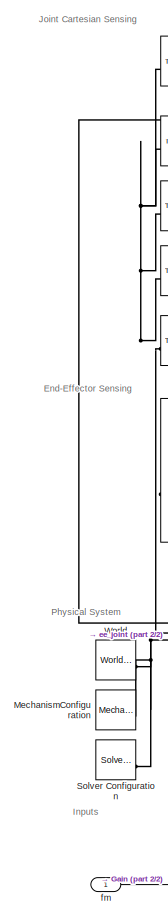
[diagram: Space Manipulator4 - part 1/2, left side, full height]
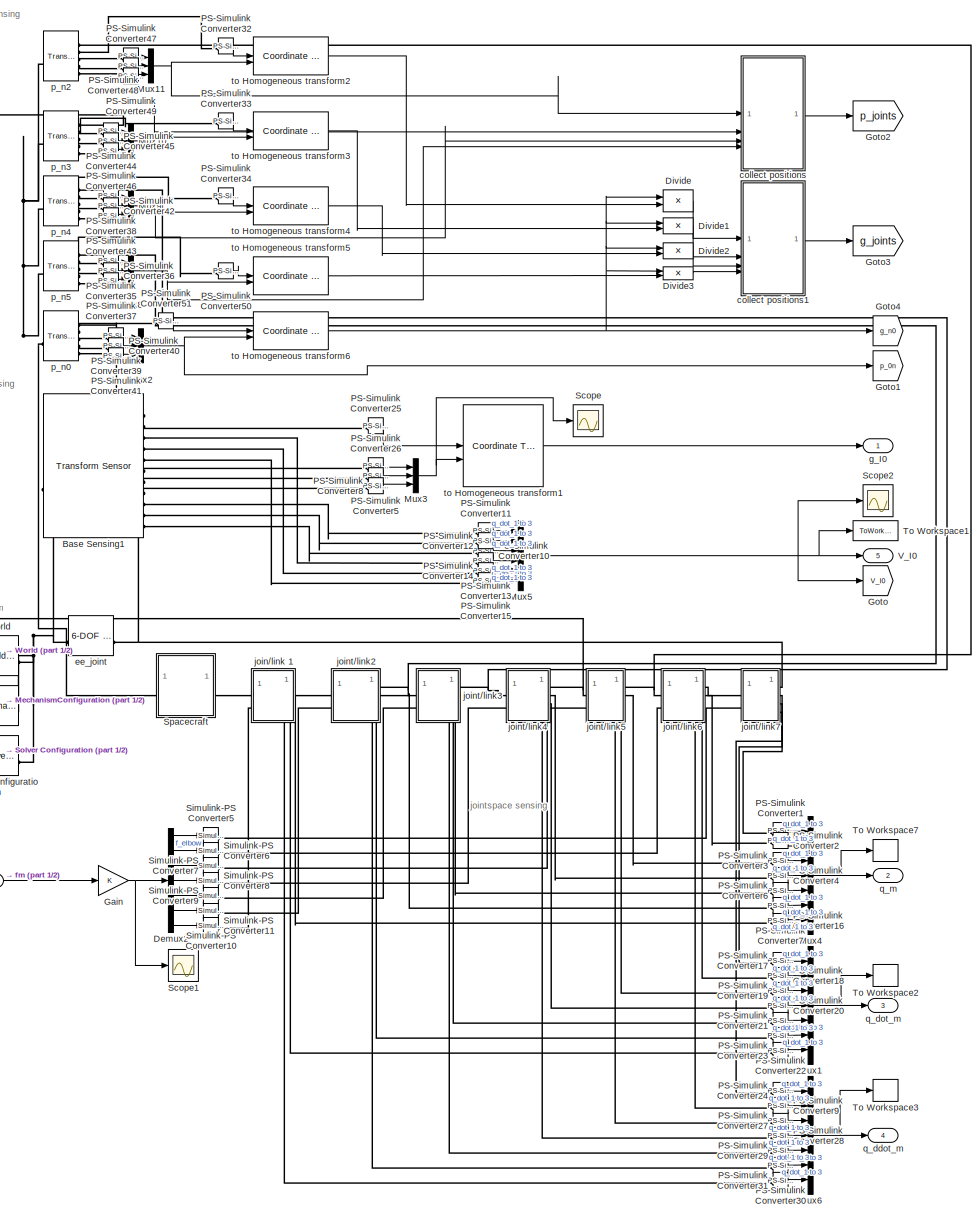
[diagram: Space Manipulator4 - part 2/2, most of the canvas]
BLOCK [SubSystem] Space Manipulator4
BLOCK [Reference] Space Manipulator4/Base Sensing1  REF=sm_lib/Frames and
Transforms/Transform
Sensor
  SourceBlock = sm_lib/Frames and\nTransforms/Transform\nSensor
  SourceType = Transform\nSensor
BLOCK [Demux] Space Manipulator4/Demux2
  Outputs = 7
BLOCK [Product] Space Manipulator4/Divide
  Inputs = /*
  Multiplication = Matrix(*)
BLOCK [Product] Space Manipulator4/Divide1
  Inputs = /*
  Multiplication = Matrix(*)
BLOCK [Product] Space Manipulator4/Divide2
  Inputs = /*
  Multiplication = Matrix(*)
BLOCK [Product] Space Manipulator4/Divide3
  Inputs = /*
  Multiplication = Matrix(*)
BLOCK [Gain] Space Manipulator4/Gain
BLOCK [Goto] Space Manipulator4/Goto
  GotoTag = V_I0
  TagVisibility = global
BLOCK [Goto] Space Manipulator4/Goto1
  GotoTag = p_0n
  TagVisibility = global
BLOCK [Goto] Space Manipulator4/Goto2
  GotoTag = p_joints
  TagVisibility = global
BLOCK [Goto] Space Manipulator4/Goto3
  GotoTag = g_joints
  TagVisibility = global
BLOCK [Goto] Space Manipulator4/Goto4
  GotoTag = g_n0
  TagVisibility = global
BLOCK [Reference] Space Manipulator4/MechanismConfiguration  REF=sm_lib/Utilities/Mechanism
Configuration
  SourceBlock = sm_lib/Utilities/Mechanism\nConfiguration
  SourceType = Mechanism\nConfiguration
BLOCK [Mux] Space Manipulator4/Mux1
  DisplayOption = bar
  Inputs = 7
BLOCK [Mux] Space Manipulator4/Mux10
  DisplayOption = bar
  Inputs = 3
BLOCK [Mux] Space Manipulator4/Mux11
  DisplayOption = bar
  Inputs = 3
BLOCK [Mux] Space Manipulator4/Mux2
  DisplayOption = bar
  Inputs = 3
BLOCK [Mux] Space Manipulator4/Mux3
  DisplayOption = bar
  Inputs = 3
BLOCK [Mux] Space Manipulator4/Mux4
  DisplayOption = bar
  Inputs = 7
BLOCK [Mux] Space Manipulator4/Mux5
  DisplayOption = bar
  Inputs = 6
BLOCK [Mux] Space Manipulator4/Mux6
  DisplayOption = bar
  Inputs = 7
BLOCK [Mux] Space Manipulator4/Mux8
  DisplayOption = bar
  Inputs = 3
BLOCK [Mux] Space Manipulator4/Mux9
  DisplayOption = bar
  Inputs = 3
BLOCK [Reference] Space Manipulator4/PS-Simulink Converter1  REF=nesl_utility/PS-Simulink
Converter
  SourceBlock = nesl_utility/PS-Simulink\nConverter
  SourceType = PS-Simulink\nConverter
BLOCK [Reference] Space Manipulator4/PS-Simulink Converter10  REF=nesl_utility/PS-Simulink
Converter
  SourceBlock = nesl_utility/PS-Simulink\nConverter
  SourceType = PS-Simulink\nConverter
BLOCK [Reference] Space Manipulator4/PS-Simulink Converter11  REF=nesl_utility/PS-Simulink
Converter
  SourceBlock = nesl_utility/PS-Simulink\nConverter
  SourceType = PS-Simulink\nConverter
BLOCK [Reference] Space Manipulator4/PS-Simulink Converter12  REF=nesl_utility/PS-Simulink
Converter
  SourceBlock = nesl_utility/PS-Simulink\nConverter
  SourceType = PS-Simulink\nConverter
BLOCK [Reference] Space Manipulator4/PS-Simulink Converter13  REF=nesl_utility/PS-Simulink
Converter
  SourceBlock = nesl_utility/PS-Simulink\nConverter
  SourceType = PS-Simulink\nConverter
BLOCK [Reference] Space Manipulator4/PS-Simulink Converter14  REF=nesl_utility/PS-Simulink
Converter
  SourceBlock = nesl_utility/PS-Simulink\nConverter
  SourceType = PS-Simulink\nConverter
BLOCK [Reference] Space Manipulator4/PS-Simulink Converter15  REF=nesl_utility/PS-Simulink
Converter
  SourceBlock = nesl_utility/PS-Simulink\nConverter
  SourceType = PS-Simulink\nConverter
BLOCK [Reference] Space Manipulator4/PS-Simulink Converter16  REF=nesl_utility/PS-Simulink
Converter
  SourceBlock = nesl_utility/PS-Simulink\nConverter
  SourceType = PS-Simulink\nConverter
BLOCK [Reference] Space Manipulator4/PS-Simulink Converter17  REF=nesl_utility/PS-Simulink
Converter
  SourceBlock = nesl_utility/PS-Simulink\nConverter
  SourceType = PS-Simulink\nConverter
BLOCK [Reference] Space Manipulator4/PS-Simulink Converter18  REF=nesl_utility/PS-Simulink
Converter
  SourceBlock = nesl_utility/PS-Simulink\nConverter
  SourceType = PS-Simulink\nConverter
BLOCK [Reference] Space Manipulator4/PS-Simulink Converter19  REF=nesl_utility/PS-Simulink
Converter
  SourceBlock = nesl_utility/PS-Simulink\nConverter
  SourceType = PS-Simulink\nConverter
BLOCK [Reference] Space Manipulator4/PS-Simulink Converter2  REF=nesl_utility/PS-Simulink
Converter
  SourceBlock = nesl_utility/PS-Simulink\nConverter
  SourceType = PS-Simulink\nConverter
BLOCK [Reference] Space Manipulator4/PS-Simulink Converter20  REF=nesl_utility/PS-Simulink
Converter
  SourceBlock = nesl_utility/PS-Simulink\nConverter
  SourceType = PS-Simulink\nConverter
BLOCK [Reference] Space Manipulator4/PS-Simulink Converter21  REF=nesl_utility/PS-Simulink
Converter
  SourceBlock = nesl_utility/PS-Simulink\nConverter
  SourceType = PS-Simulink\nConverter
BLOCK [Reference] Space Manipulator4/PS-Simulink Converter22  REF=nesl_utility/PS-Simulink
Converter
  SourceBlock = nesl_utility/PS-Simulink\nConverter
  SourceType = PS-Simulink\nConverter
BLOCK [Reference] Space Manipulator4/PS-Simulink Converter23  REF=nesl_utility/PS-Simulink
Converter
  SourceBlock = nesl_utility/PS-Simulink\nConverter
  SourceType = PS-Simulink\nConverter
BLOCK [Reference] Space Manipulator4/PS-Simulink Converter24  REF=nesl_utility/PS-Simulink
Converter
  SourceBlock = nesl_utility/PS-Simulink\nConverter
  SourceType = PS-Simulink\nConverter
BLOCK [Reference] Space Manipulator4/PS-Simulink Converter25  REF=nesl_utility/PS-Simulink
Converter
  SourceBlock = nesl_utility/PS-Simulink\nConverter
  SourceType = PS-Simulink\nConverter
BLOCK [Reference] Space Manipulator4/PS-Simulink Converter26  REF=nesl_utility/PS-Simulink
Converter
  SourceBlock = nesl_utility/PS-Simulink\nConverter
  SourceType = PS-Simulink\nConverter
BLOCK [Reference] Space Manipulator4/PS-Simulink Converter27  REF=nesl_utility/PS-Simulink
Converter
  SourceBlock = nesl_utility/PS-Simulink\nConverter
  SourceType = PS-Simulink\nConverter
BLOCK [Reference] Space Manipulator4/PS-Simulink Converter28  REF=nesl_utility/PS-Simulink
Converter
  SourceBlock = nesl_utility/PS-Simulink\nConverter
  SourceType = PS-Simulink\nConverter
BLOCK [Reference] Space Manipulator4/PS-Simulink Converter29  REF=nesl_utility/PS-Simulink
Converter
  SourceBlock = nesl_utility/PS-Simulink\nConverter
  SourceType = PS-Simulink\nConverter
BLOCK [Reference] Space Manipulator4/PS-Simulink Converter3  REF=nesl_utility/PS-Simulink
Converter
  SourceBlock = nesl_utility/PS-Simulink\nConverter
  SourceType = PS-Simulink\nConverter
BLOCK [Reference] Space Manipulator4/PS-Simulink Converter30  REF=nesl_utility/PS-Simulink
Converter
  SourceBlock = nesl_utility/PS-Simulink\nConverter
  SourceType = PS-Simulink\nConverter
BLOCK [Reference] Space Manipulator4/PS-Simulink Converter31  REF=nesl_utility/PS-Simulink
Converter
  SourceBlock = nesl_utility/PS-Simulink\nConverter
  SourceType = PS-Simulink\nConverter
BLOCK [Reference] Space Manipulator4/PS-Simulink Converter32  REF=nesl_utility/PS-Simulink
Converter
  SourceBlock = nesl_utility/PS-Simulink\nConverter
  SourceType = PS-Simulink\nConverter
BLOCK [Reference] Space Manipulator4/PS-Simulink Converter33  REF=nesl_utility/PS-Simulink
Converter
  SourceBlock = nesl_utility/PS-Simulink\nConverter
  SourceType = PS-Simulink\nConverter
BLOCK [Reference] Space Manipulator4/PS-Simulink Converter34  REF=nesl_utility/PS-Simulink
Converter
  SourceBlock = nesl_utility/PS-Simulink\nConverter
  SourceType = PS-Simulink\nConverter
BLOCK [Reference] Space Manipulator4/PS-Simulink Converter35  REF=nesl_utility/PS-Simulink
Converter
  SourceBlock = nesl_utility/PS-Simulink\nConverter
  SourceType = PS-Simulink\nConverter
BLOCK [Reference] Space Manipulator4/PS-Simulink Converter36  REF=nesl_utility/PS-Simulink
Converter
  SourceBlock = nesl_utility/PS-Simulink\nConverter
  SourceType = PS-Simulink\nConverter
BLOCK [Reference] Space Manipulator4/PS-Simulink Converter37  REF=nesl_utility/PS-Simulink
Converter
  SourceBlock = nesl_utility/PS-Simulink\nConverter
  SourceType = PS-Simulink\nConverter
BLOCK [Reference] Space Manipulator4/PS-Simulink Converter38  REF=nesl_utility/PS-Simulink
Converter
  SourceBlock = nesl_utility/PS-Simulink\nConverter
  SourceType = PS-Simulink\nConverter
BLOCK [Reference] Space Manipulator4/PS-Simulink Converter39  REF=nesl_utility/PS-Simulink
Converter
  SourceBlock = nesl_utility/PS-Simulink\nConverter
  SourceType = PS-Simulink\nConverter
BLOCK [Reference] Space Manipulator4/PS-Simulink Converter4  REF=nesl_utility/PS-Simulink
Converter
  SourceBlock = nesl_utility/PS-Simulink\nConverter
  SourceType = PS-Simulink\nConverter
BLOCK [Reference] Space Manipulator4/PS-Simulink Converter40  REF=nesl_utility/PS-Simulink
Converter
  SourceBlock = nesl_utility/PS-Simulink\nConverter
  SourceType = PS-Simulink\nConverter
BLOCK [Reference] Space Manipulator4/PS-Simulink Converter41  REF=nesl_utility/PS-Simulink
Converter
  SourceBlock = nesl_utility/PS-Simulink\nConverter
  SourceType = PS-Simulink\nConverter
BLOCK [Reference] Space Manipulator4/PS-Simulink Converter42  REF=nesl_utility/PS-Simulink
Converter
  SourceBlock = nesl_utility/PS-Simulink\nConverter
  SourceType = PS-Simulink\nConverter
BLOCK [Reference] Space Manipulator4/PS-Simulink Converter43  REF=nesl_utility/PS-Simulink
Converter
  SourceBlock = nesl_utility/PS-Simulink\nConverter
  SourceType = PS-Simulink\nConverter
BLOCK [Reference] Space Manipulator4/PS-Simulink Converter44  REF=nesl_utility/PS-Simulink
Converter
  SourceBlock = nesl_utility/PS-Simulink\nConverter
  SourceType = PS-Simulink\nConverter
BLOCK [Reference] Space Manipulator4/PS-Simulink Converter45  REF=nesl_utility/PS-Simulink
Converter
  SourceBlock = nesl_utility/PS-Simulink\nConverter
  SourceType = PS-Simulink\nConverter
BLOCK [Reference] Space Manipulator4/PS-Simulink Converter46  REF=nesl_utility/PS-Simulink
Converter
  SourceBlock = nesl_utility/PS-Simulink\nConverter
  SourceType = PS-Simulink\nConverter
BLOCK [Reference] Space Manipulator4/PS-Simulink Converter47  REF=nesl_utility/PS-Simulink
Converter
  SourceBlock = nesl_utility/PS-Simulink\nConverter
  SourceType = PS-Simulink\nConverter
BLOCK [Reference] Space Manipulator4/PS-Simulink Converter48  REF=nesl_utility/PS-Simulink
Converter
  SourceBlock = nesl_utility/PS-Simulink\nConverter
  SourceType = PS-Simulink\nConverter
BLOCK [Reference] Space Manipulator4/PS-Simulink Converter49  REF=nesl_utility/PS-Simulink
Converter
  SourceBlock = nesl_utility/PS-Simulink\nConverter
  SourceType = PS-Simulink\nConverter
BLOCK [Reference] Space Manipulator4/PS-Simulink Converter5  REF=nesl_utility/PS-Simulink
Converter
  SourceBlock = nesl_utility/PS-Simulink\nConverter
  SourceType = PS-Simulink\nConverter
BLOCK [Reference] Space Manipulator4/PS-Simulink Converter50  REF=nesl_utility/PS-Simulink
Converter
  SourceBlock = nesl_utility/PS-Simulink\nConverter
  SourceType = PS-Simulink\nConverter
BLOCK [Reference] Space Manipulator4/PS-Simulink Converter51  REF=nesl_utility/PS-Simulink
Converter
  SourceBlock = nesl_utility/PS-Simulink\nConverter
  SourceType = PS-Simulink\nConverter
BLOCK [Reference] Space Manipulator4/PS-Simulink Converter6  REF=nesl_utility/PS-Simulink
Converter
  SourceBlock = nesl_utility/PS-Simulink\nConverter
  SourceType = PS-Simulink\nConverter
BLOCK [Reference] Space Manipulator4/PS-Simulink Converter7  REF=nesl_utility/PS-Simulink
Converter
  SourceBlock = nesl_utility/PS-Simulink\nConverter
  SourceType = PS-Simulink\nConverter
BLOCK [Reference] Space Manipulator4/PS-Simulink Converter8  REF=nesl_utility/PS-Simulink
Converter
  SourceBlock = nesl_utility/PS-Simulink\nConverter
  SourceType = PS-Simulink\nConverter
BLOCK [Reference] Space Manipulator4/PS-Simulink Converter9  REF=nesl_utility/PS-Simulink
Converter
  SourceBlock = nesl_utility/PS-Simulink\nConverter
  SourceType = PS-Simulink\nConverter
BLOCK [Scope] Space Manipulator4/Scope
  Floating = off
  NumInputPorts = 1
  ScopeSpecificationString = Simulink.scopes.TimeScopeBlockCfg('CurrentConfiguration', extmgr.ConfigurationSet(extmgr.Configuration('Core','General UI',true),extmgr.Configuration('Core','Source UI',true),extmgr.Configuration('Sources','WiredSimulink',true,'DataLoggingVariableName','ScopeData1'),extmgr.Configuration('Visuals','Time Domain',true,'SerializedDisplays',{struct('MinYLimReal','-0.08808','MaxYLimReal','0.02861','YLab...<+1841ch>
BLOCK [Scope] Space Manipulator4/Scope1
  Floating = off
  NumInputPorts = 1
  ScopeSpecificationString = Simulink.scopes.TimeScopeBlockCfg('CurrentConfiguration', extmgr.ConfigurationSet(extmgr.Configuration('Core','General UI',true),extmgr.Configuration('Core','Source UI',true),extmgr.Configuration('Sources','WiredSimulink',true,'DataLoggingVariableName','ScopeData1'),extmgr.Configuration('Visuals','Time Domain',true,'SerializedDisplays',{struct('MinYLimReal','-14.80411','MaxYLimReal','12.22163','YL...<+1755ch>
BLOCK [Scope] Space Manipulator4/Scope2
  Floating = off
  NumInputPorts = 1
  ScopeSpecificationString = Simulink.scopes.TimeScopeBlockCfg('CurrentConfiguration', extmgr.ConfigurationSet(extmgr.Configuration('Core','General UI',true),extmgr.Configuration('Core','Source UI',true),extmgr.Configuration('Sources','WiredSimulink',true,'DataLoggingVariableName','ScopeData2'),extmgr.Configuration('Visuals','Time Domain',true,'SerializedDisplays',{struct('MinYLimReal','-0.37401','MaxYLimReal','0.22083','YLab...<+1860ch>
BLOCK [Reference] Space Manipulator4/Simulink-PS Converter10  REF=nesl_utility/Simulink-PS
Converter
  SourceBlock = nesl_utility/Simulink-PS\nConverter
  SourceType = Simulink-PS\nConverter
BLOCK [Reference] Space Manipulator4/Simulink-PS Converter11  REF=nesl_utility/Simulink-PS
Converter
  SourceBlock = nesl_utility/Simulink-PS\nConverter
  SourceType = Simulink-PS\nConverter
BLOCK [Reference] Space Manipulator4/Simulink-PS Converter5  REF=nesl_utility/Simulink-PS
Converter
  SourceBlock = nesl_utility/Simulink-PS\nConverter
  SourceType = Simulink-PS\nConverter
BLOCK [Reference] Space Manipulator4/Simulink-PS Converter6  REF=nesl_utility/Simulink-PS
Converter
  SourceBlock = nesl_utility/Simulink-PS\nConverter
  SourceType = Simulink-PS\nConverter
BLOCK [Reference] Space Manipulator4/Simulink-PS Converter7  REF=nesl_utility/Simulink-PS
Converter
  SourceBlock = nesl_utility/Simulink-PS\nConverter
  SourceType = Simulink-PS\nConverter
BLOCK [Reference] Space Manipulator4/Simulink-PS Converter8  REF=nesl_utility/Simulink-PS
Converter
  SourceBlock = nesl_utility/Simulink-PS\nConverter
  SourceType = Simulink-PS\nConverter
BLOCK [Reference] Space Manipulator4/Simulink-PS Converter9  REF=nesl_utility/Simulink-PS
Converter
  SourceBlock = nesl_utility/Simulink-PS\nConverter
  SourceType = Simulink-PS\nConverter
BLOCK [Reference] Space Manipulator4/Solver Configuration  REF=nesl_utility/Solver
Configuration
  SourceBlock = nesl_utility/Solver\nConfiguration
  SourceType = Solver\nConfiguration
BLOCK [SubSystem] Space Manipulator4/Spacecraft
BLOCK [Reference] Space Manipulator4/Spacecraft/Base1  REF=sm_lib/Body Elements/Brick Solid
  SourceBlock = sm_lib/Body Elements/Brick Solid
  SourceType = Brick Solid
BLOCK [Reference] Space Manipulator4/Spacecraft/Base2  REF=sm_lib/Body Elements/Brick Solid
  Commented = on
  SourceBlock = sm_lib/Body Elements/Brick Solid
  SourceType = Brick Solid
BLOCK [Reference] Space Manipulator4/Spacecraft/Cylindrical Solid  REF=sm_lib/Body Elements/Cylindrical Solid
  SourceBlock = sm_lib/Body Elements/Cylindrical Solid
  SourceType = Cylindrical Solid
BLOCK [PMIOPort] Space Manipulator4/Spacecraft/F
  Side = Left
BLOCK [PMIOPort] Space Manipulator4/Spacecraft/F1
  Port = 2
  Side = Right
BLOCK [Reference] Space Manipulator4/Spacecraft/Inertia  REF=sm_lib/Body Elements/Inertia
  NameLocation = top
  SourceBlock = sm_lib/Body Elements/Inertia
  SourceType = Inertia
BLOCK [Reference] Space Manipulator4/Spacecraft/Visual  REF=sm_lib/Body Elements/File Solid
  Commented = on
  SourceBlock = sm_lib/Body Elements/File Solid
  SourceType = File Solid
BLOCK [Reference] Space Manipulator4/Spacecraft/VisualOriginTransform  REF=sm_lib/Frames and
Transforms/Rigid
Transform
  SourceBlock = sm_lib/Frames and\nTransforms/Rigid\nTransform
  SourceType = Rigid\nTransform
BLOCK [Reference] Space Manipulator4/Spacecraft/iiwa_joint_2_OriginTransform  REF=sm_lib/Frames and
Transforms/Rigid
Transform
  NameLocation = top
  SourceBlock = sm_lib/Frames and\nTransforms/Rigid\nTransform
  SourceType = Rigid\nTransform
BLOCK [ToWorkspace] Space Manipulator4/To Workspace1
  FixptAsFi = on
  MaxDataPoints = inf
  SampleTime = -1
  SaveFormat = Timeseries
  VariableName = V
BLOCK [ToWorkspace] Space Manipulator4/To Workspace2
  FixptAsFi = on
  MaxDataPoints = inf
  SampleTime = -1
  VariableName = q_dot_m
BLOCK [ToWorkspace] Space Manipulator4/To Workspace3
  FixptAsFi = on
  MaxDataPoints = inf
  SampleTime = -1
  VariableName = q_ddot_ref
BLOCK [ToWorkspace] Space Manipulator4/To Workspace7
  FixptAsFi = on
  MaxDataPoints = inf
  SampleTime = -1
  VariableName = q_m
BLOCK [Outport] Space Manipulator4/V_I0
  Port = 5
BLOCK [Reference] Space Manipulator4/World  REF=sm_lib/Frames and
Transforms/World Frame
  SourceBlock = sm_lib/Frames and\nTransforms/World Frame
  SourceType = World Frame
BLOCK [SubSystem] Space Manipulator4/collect positions
  ErrorFcn = Stateflow.Translate.translate
  PermitHierarchicalResolution = ExplicitOnly
  SFBlockType = MATLAB Function
  TreatAsAtomicUnit = on
BLOCK [Demux] Space Manipulator4/collect positions/ Demux 
  Outputs = 1
BLOCK [S-Function] Space Manipulator4/collect positions/ SFunction 
  EnableBusSupport = off
  FunctionName = sf_sfun
  PortCounts = [4 2]
  SFcnIsStateOwnerBlock = off
  SFunctionDeploymentMode = off
  Tag = Stateflow S-Function 15
BLOCK [Terminator] Space Manipulator4/collect positions/ Terminator 
BLOCK [Inport] Space Manipulator4/collect positions/p_02
BLOCK [Inport] Space Manipulator4/collect positions/p_03
  Port = 2
BLOCK [Inport] Space Manipulator4/collect positions/p_04
  Port = 3
BLOCK [Inport] Space Manipulator4/collect positions/p_05
  Port = 4
BLOCK [Outport] Space Manipulator4/collect positions/p_joints
BLOCK [SubSystem] Space Manipulator4/collect positions1
  ErrorFcn = Stateflow.Translate.translate
  PermitHierarchicalResolution = ExplicitOnly
  SFBlockType = MATLAB Function
  TreatAsAtomicUnit = on
BLOCK [Demux] Space Manipulator4/collect positions1/ Demux 
  Outputs = 1
BLOCK [S-Function] Space Manipulator4/collect positions1/ SFunction 
  EnableBusSupport = off
  FunctionName = sf_sfun
  PortCounts = [4 2]
  SFcnIsStateOwnerBlock = off
  SFunctionDeploymentMode = off
  Tag = Stateflow S-Function 18
BLOCK [Terminator] Space Manipulator4/collect positions1/ Terminator 
BLOCK [Inport] Space Manipulator4/collect positions1/g_02
BLOCK [Inport] Space Manipulator4/collect positions1/g_03
  Port = 2
BLOCK [Inport] Space Manipulator4/collect positions1/g_04
  Port = 3
BLOCK [Inport] Space Manipulator4/collect positions1/g_05
  Port = 4
BLOCK [Outport] Space Manipulator4/collect positions1/g_joints
BLOCK [Reference] Space Manipulator4/ee_joint  REF=sm_lib/Joints/6-DOF Joint
  SourceBlock = sm_lib/Joints/6-DOF Joint
  SourceType = 6-DOF Joint
BLOCK [Inport] Space Manipulator4/fm
BLOCK [Outport] Space Manipulator4/g_I0
BLOCK [SubSystem] Space Manipulator4/join//link 1
BLOCK [PMIOPort] Space Manipulator4/join//link 1/F1
  Port = 3
  Side = Right
BLOCK [PMIOPort] Space Manipulator4/join//link 1/b
  Side = Left
BLOCK [PMIOPort] Space Manipulator4/join//link 1/f1
  Port = 2
  Side = Left
BLOCK [Reference] Space Manipulator4/join//link 1/iiwa_joint_1  REF=sm_lib/Joints/Revolute Joint
  SourceBlock = sm_lib/Joints/Revolute Joint
  SourceType = Revolute Joint
BLOCK [SubSystem] Space Manipulator4/join//link 1/iiwa_link_1
BLOCK [PMIOPort] Space Manipulator4/join//link 1/iiwa_link_1/F
  Side = Left
BLOCK [PMIOPort] Space Manipulator4/join//link 1/iiwa_link_1/F1
  Port = 2
  Side = Right
BLOCK [Reference] Space Manipulator4/join//link 1/iiwa_link_1/Inertia  REF=sm_lib/Body Elements/Inertia
  NameLocation = top
  SourceBlock = sm_lib/Body Elements/Inertia
  SourceType = Inertia
BLOCK [Reference] Space Manipulator4/join//link 1/iiwa_link_1/Visual  REF=sm_lib/Body Elements/File Solid
  SourceBlock = sm_lib/Body Elements/File Solid
  SourceType = File Solid
BLOCK [Reference] Space Manipulator4/join//link 1/iiwa_link_1/VisualOriginTransform  REF=sm_lib/Frames and
Transforms/Rigid
Transform
  SourceBlock = sm_lib/Frames and\nTransforms/Rigid\nTransform
  SourceType = Rigid\nTransform
BLOCK [Reference] Space Manipulator4/join//link 1/iiwa_link_1/iiwa_joint_2_OriginTransform  REF=sm_lib/Frames and
Transforms/Rigid
Transform
  NameLocation = top
  SourceBlock = sm_lib/Frames and\nTransforms/Rigid\nTransform
  SourceType = Rigid\nTransform
BLOCK [PMIOPort] Space Manipulator4/join//link 1/q1
  Port = 4
  Side = Right
BLOCK [PMIOPort] Space Manipulator4/join//link 1/qd1
  Port = 5
  Side = Right
BLOCK [PMIOPort] Space Manipulator4/join//link 1/qdd1
  Port = 6
  Side = Right
BLOCK [SubSystem] Space Manipulator4/joint//link2
BLOCK [PMIOPort] Space Manipulator4/joint//link2/F1
  Port = 2
  Side = Right
BLOCK [PMIOPort] Space Manipulator4/joint//link2/b
  Side = Left
BLOCK [PMIOPort] Space Manipulator4/joint//link2/f2
  Port = 3
  Side = Left
BLOCK [Reference] Space Manipulator4/joint//link2/iiwa_joint_2  REF=sm_lib/Joints/Revolute Joint
  SourceBlock = sm_lib/Joints/Revolute Joint
  SourceType = Revolute Joint
BLOCK [SubSystem] Space Manipulator4/joint//link2/iiwa_link_2
BLOCK [PMIOPort] Space Manipulator4/joint//link2/iiwa_link_2/F
  Side = Left
BLOCK [PMIOPort] Space Manipulator4/joint//link2/iiwa_link_2/F1
  Port = 2
  Side = Right
BLOCK [Reference] Space Manipulator4/joint//link2/iiwa_link_2/Inertia  REF=sm_lib/Body Elements/Inertia
  NameLocation = top
  SourceBlock = sm_lib/Body Elements/Inertia
  SourceType = Inertia
BLOCK [Reference] Space Manipulator4/joint//link2/iiwa_link_2/Visual  REF=sm_lib/Body Elements/File Solid
  NameLocation = top
  SourceBlock = sm_lib/Body Elements/File Solid
  SourceType = File Solid
BLOCK [Reference] Space Manipulator4/joint//link2/iiwa_link_2/VisualOriginTransform  REF=sm_lib/Frames and
Transforms/Rigid
Transform
  SourceBlock = sm_lib/Frames and\nTransforms/Rigid\nTransform
  SourceType = Rigid\nTransform
BLOCK [Reference] Space Manipulator4/joint//link2/iiwa_link_2/iiwa_joint_3_OriginTransform  REF=sm_lib/Frames and
Transforms/Rigid
Transform
  NameLocation = top
  SourceBlock = sm_lib/Frames and\nTransforms/Rigid\nTransform
  SourceType = Rigid\nTransform
BLOCK [PMIOPort] Space Manipulator4/joint//link2/q2
  Port = 4
  Side = Right
BLOCK [PMIOPort] Space Manipulator4/joint//link2/qd2
  Port = 5
  Side = Right
BLOCK [PMIOPort] Space Manipulator4/joint//link2/qdd2
  Port = 6
  Side = Right
BLOCK [SubSystem] Space Manipulator4/joint//link3
BLOCK [PMIOPort] Space Manipulator4/joint//link3/F1
  Port = 2
  Side = Right
BLOCK [PMIOPort] Space Manipulator4/joint//link3/b
  Side = Left
BLOCK [PMIOPort] Space Manipulator4/joint//link3/f3
  Port = 3
  Side = Left
BLOCK [Reference] Space Manipulator4/joint//link3/iiwa_joint_3  REF=sm_lib/Joints/Revolute Joint
  SourceBlock = sm_lib/Joints/Revolute Joint
  SourceType = Revolute Joint
BLOCK [SubSystem] Space Manipulator4/joint//link3/iiwa_link_3
BLOCK [PMIOPort] Space Manipulator4/joint//link3/iiwa_link_3/F
  Side = Left
BLOCK [PMIOPort] Space Manipulator4/joint//link3/iiwa_link_3/F1
  Port = 2
  Side = Right
BLOCK [Reference] Space Manipulator4/joint//link3/iiwa_link_3/Inertia  REF=sm_lib/Body Elements/Inertia
  SourceBlock = sm_lib/Body Elements/Inertia
  SourceType = Inertia
BLOCK [Reference] Space Manipulator4/joint//link3/iiwa_link_3/Visual  REF=sm_lib/Body Elements/File Solid
  SourceBlock = sm_lib/Body Elements/File Solid
  SourceType = File Solid
BLOCK [Reference] Space Manipulator4/joint//link3/iiwa_link_3/VisualOriginTransform  REF=sm_lib/Frames and
Transforms/Rigid
Transform
  SourceBlock = sm_lib/Frames and\nTransforms/Rigid\nTransform
  SourceType = Rigid\nTransform
BLOCK [Reference] Space Manipulator4/joint//link3/iiwa_link_3/iiwa_joint_4_OriginTransform  REF=sm_lib/Frames and
Transforms/Rigid
Transform
  NameLocation = top
  SourceBlock = sm_lib/Frames and\nTransforms/Rigid\nTransform
  SourceType = Rigid\nTransform
BLOCK [PMIOPort] Space Manipulator4/joint//link3/q3
  Port = 4
  Side = Right
BLOCK [PMIOPort] Space Manipulator4/joint//link3/qd3
  Port = 5
  Side = Right
BLOCK [PMIOPort] Space Manipulator4/joint//link3/qdd3
  Port = 6
  Side = Right
BLOCK [SubSystem] Space Manipulator4/joint//link4
BLOCK [PMIOPort] Space Manipulator4/joint//link4/F1
  Port = 2
  Side = Right
BLOCK [PMIOPort] Space Manipulator4/joint//link4/b
  Side = Left
BLOCK [PMIOPort] Space Manipulator4/joint//link4/f4
  Port = 3
  Side = Left
BLOCK [Reference] Space Manipulator4/joint//link4/iiwa_joint_4  REF=sm_lib/Joints/Revolute Joint
  SourceBlock = sm_lib/Joints/Revolute Joint
  SourceType = Revolute Joint
BLOCK [SubSystem] Space Manipulator4/joint//link4/iiwa_link_4
BLOCK [PMIOPort] Space Manipulator4/joint//link4/iiwa_link_4/F
  Side = Left
BLOCK [PMIOPort] Space Manipulator4/joint//link4/iiwa_link_4/F1
  Port = 2
  Side = Right
BLOCK [Reference] Space Manipulator4/joint//link4/iiwa_link_4/Inertia  REF=sm_lib/Body Elements/Inertia
  SourceBlock = sm_lib/Body Elements/Inertia
  SourceType = Inertia
BLOCK [Reference] Space Manipulator4/joint//link4/iiwa_link_4/Visual  REF=sm_lib/Body Elements/File Solid
  SourceBlock = sm_lib/Body Elements/File Solid
  SourceType = File Solid
BLOCK [Reference] Space Manipulator4/joint//link4/iiwa_link_4/VisualOriginTransform  REF=sm_lib/Frames and
Transforms/Rigid
Transform
  SourceBlock = sm_lib/Frames and\nTransforms/Rigid\nTransform
  SourceType = Rigid\nTransform
BLOCK [Reference] Space Manipulator4/joint//link4/iiwa_link_4/iiwa_joint_5_OriginTransform  REF=sm_lib/Frames and
Transforms/Rigid
Transform
  NameLocation = top
  SourceBlock = sm_lib/Frames and\nTransforms/Rigid\nTransform
  SourceType = Rigid\nTransform
BLOCK [PMIOPort] Space Manipulator4/joint//link4/q4
  Port = 4
  Side = Right
BLOCK [PMIOPort] Space Manipulator4/joint//link4/qd4
  Port = 5
  Side = Right
BLOCK [PMIOPort] Space Manipulator4/joint//link4/qdd4
  Port = 6
  Side = Right
BLOCK [SubSystem] Space Manipulator4/joint//link5
BLOCK [PMIOPort] Space Manipulator4/joint//link5/F1
  Port = 2
  Side = Right
BLOCK [PMIOPort] Space Manipulator4/joint//link5/b
  Side = Left
BLOCK [PMIOPort] Space Manipulator4/joint//link5/f5
  Port = 3
  Side = Left
BLOCK [Reference] Space Manipulator4/joint//link5/iiwa_joint_5  REF=sm_lib/Joints/Revolute Joint
  SourceBlock = sm_lib/Joints/Revolute Joint
  SourceType = Revolute Joint
BLOCK [SubSystem] Space Manipulator4/joint//link5/iiwa_link_5
BLOCK [PMIOPort] Space Manipulator4/joint//link5/iiwa_link_5/F
  NameLocation = top
  Side = Left
BLOCK [PMIOPort] Space Manipulator4/joint//link5/iiwa_link_5/F1
  Port = 2
  Side = Right
BLOCK [Reference] Space Manipulator4/joint//link5/iiwa_link_5/Inertia  REF=sm_lib/Body Elements/Inertia
  SourceBlock = sm_lib/Body Elements/Inertia
  SourceType = Inertia
BLOCK [Reference] Space Manipulator4/joint//link5/iiwa_link_5/Visual  REF=sm_lib/Body Elements/File Solid
  NameLocation = top
  SourceBlock = sm_lib/Body Elements/File Solid
  SourceType = File Solid
BLOCK [Reference] Space Manipulator4/joint//link5/iiwa_link_5/VisualOriginTransform  REF=sm_lib/Frames and
Transforms/Rigid
Transform
  SourceBlock = sm_lib/Frames and\nTransforms/Rigid\nTransform
  SourceType = Rigid\nTransform
BLOCK [Reference] Space Manipulator4/joint//link5/iiwa_link_5/iiwa_joint_6_OriginTransform  REF=sm_lib/Frames and
Transforms/Rigid
Transform
  Commented = on
  SourceBlock = sm_lib/Frames and\nTransforms/Rigid\nTransform
  SourceType = Rigid\nTransform
BLOCK [Reference] Space Manipulator4/joint//link5/iiwa_link_5/iiwa_joint_6_OriginTransform1  REF=sm_lib/Frames and
Transforms/Rigid
Transform
  NameLocation = top
  SourceBlock = sm_lib/Frames and\nTransforms/Rigid\nTransform
  SourceType = Rigid\nTransform
BLOCK [PMIOPort] Space Manipulator4/joint//link5/q5
  Port = 4
  Side = Right
BLOCK [PMIOPort] Space Manipulator4/joint//link5/qd5
  Port = 5
  Side = Right
BLOCK [PMIOPort] Space Manipulator4/joint//link5/qdd5
  Port = 6
  Side = Right
BLOCK [SubSystem] Space Manipulator4/joint//link6
BLOCK [PMIOPort] Space Manipulator4/joint//link6/F1
  Port = 3
  Side = Right
BLOCK [Reference] Space Manipulator4/joint//link6/PS-Simulink Converter1  REF=nesl_utility/PS-Simulink
Converter
  SourceBlock = nesl_utility/PS-Simulink\nConverter
  SourceType = PS-Simulink\nConverter
BLOCK [Scope] Space Manipulator4/joint//link6/Scope
  Floating = off
  NumInputPorts = 1
  ScopeSpecificationString = Simulink.scopes.TimeScopeBlockCfg('CurrentConfiguration', extmgr.ConfigurationSet(extmgr.Configuration('Core','General UI',true),extmgr.Configuration('Core','Source UI',true),extmgr.Configuration('Sources','WiredSimulink',true,'DataLoggingVariableName','ScopeData3'),extmgr.Configuration('Visuals','Time Domain',true,'SerializedDisplays',{struct('MinYLimReal','0.01','MaxYLimReal','0.03','YLabelReal'...<+1370ch>
BLOCK [PMIOPort] Space Manipulator4/joint//link6/b
  Side = Left
BLOCK [PMIOPort] Space Manipulator4/joint//link6/f6
  Port = 2
  Side = Left
BLOCK [Reference] Space Manipulator4/joint//link6/iiwa_joint_6  REF=sm_lib/Joints/Revolute Joint
  SourceBlock = sm_lib/Joints/Revolute Joint
  SourceType = Revolute Joint
BLOCK [SubSystem] Space Manipulator4/joint//link6/iiwa_link_6
BLOCK [PMIOPort] Space Manipulator4/joint//link6/iiwa_link_6/F
  NameLocation = top
  Side = Left
BLOCK [PMIOPort] Space Manipulator4/joint//link6/iiwa_link_6/F1
  Port = 2
  Side = Right
BLOCK [Reference] Space Manipulator4/joint//link6/iiwa_link_6/Inertia  REF=sm_lib/Body Elements/Inertia
  SourceBlock = sm_lib/Body Elements/Inertia
  SourceType = Inertia
BLOCK [Reference] Space Manipulator4/joint//link6/iiwa_link_6/Visual  REF=sm_lib/Body Elements/File Solid
  SourceBlock = sm_lib/Body Elements/File Solid
  SourceType = File Solid
BLOCK [Reference] Space Manipulator4/joint//link6/iiwa_link_6/VisualOriginTransform  REF=sm_lib/Frames and
Transforms/Rigid
Transform
  SourceBlock = sm_lib/Frames and\nTransforms/Rigid\nTransform
  SourceType = Rigid\nTransform
BLOCK [Reference] Space Manipulator4/joint//link6/iiwa_link_6/iiwa_joint_7_OriginTransform  REF=sm_lib/Frames and
Transforms/Rigid
Transform
  NameLocation = top
  SourceBlock = sm_lib/Frames and\nTransforms/Rigid\nTransform
  SourceType = Rigid\nTransform
BLOCK [PMIOPort] Space Manipulator4/joint//link6/q6
  Port = 4
  Side = Right
BLOCK [PMIOPort] Space Manipulator4/joint//link6/qd6
  Port = 5
  Side = Right
BLOCK [PMIOPort] Space Manipulator4/joint//link6/qdd6
  Port = 6
  Side = Right
BLOCK [SubSystem] Space Manipulator4/joint//link7
BLOCK [PMIOPort] Space Manipulator4/joint//link7/F1
  Port = 3
  Side = Right
BLOCK [Reference] Space Manipulator4/joint//link7/PS-Simulink Converter1  REF=nesl_utility/PS-Simulink
Converter
  SourceBlock = nesl_utility/PS-Simulink\nConverter
  SourceType = PS-Simulink\nConverter
BLOCK [Scope] Space Manipulator4/joint//link7/Scope
  Floating = off
  NumInputPorts = 1
  ScopeSpecificationString = Simulink.scopes.TimeScopeBlockCfg('CurrentConfiguration', extmgr.ConfigurationSet(extmgr.Configuration('Core','General UI',true),extmgr.Configuration('Core','Source UI',true),extmgr.Configuration('Sources','WiredSimulink',true,'DataLoggingVariableName','ScopeData2'),extmgr.Configuration('Visuals','Time Domain',true,'SerializedDisplays',{struct('MinYLimReal','-1.00000','MaxYLimReal','1.00000','YLab...<+1396ch>
BLOCK [PMIOPort] Space Manipulator4/joint//link7/b
  Side = Left
BLOCK [PMIOPort] Space Manipulator4/joint//link7/f7
  Port = 2
  Side = Left
BLOCK [Reference] Space Manipulator4/joint//link7/iiwa_joint_7  REF=sm_lib/Joints/Revolute Joint
  SourceBlock = sm_lib/Joints/Revolute Joint
  SourceType = Revolute Joint
BLOCK [SubSystem] Space Manipulator4/joint//link7/iiwa_link_7
BLOCK [PMIOPort] Space Manipulator4/joint//link7/iiwa_link_7/F
  NameLocation = top
  Side = Left
BLOCK [PMIOPort] Space Manipulator4/joint//link7/iiwa_link_7/F1
  Port = 2
  Side = Right
BLOCK [Reference] Space Manipulator4/joint//link7/iiwa_link_7/Inertia  REF=sm_lib/Body Elements/Inertia
  SourceBlock = sm_lib/Body Elements/Inertia
  SourceType = Inertia
BLOCK [Reference] Space Manipulator4/joint//link7/iiwa_link_7/Visual  REF=sm_lib/Body Elements/File Solid
  NameLocation = top
  SourceBlock = sm_lib/Body Elements/File Solid
  SourceType = File Solid
BLOCK [Reference] Space Manipulator4/joint//link7/iiwa_link_7/VisualOriginTransform  REF=sm_lib/Frames and
Transforms/Rigid
Transform
  SourceBlock = sm_lib/Frames and\nTransforms/Rigid\nTransform
  SourceType = Rigid\nTransform
BLOCK [Reference] Space Manipulator4/joint//link7/iiwa_link_7/iiwa_joint_ee_OriginTransform  REF=sm_lib/Frames and
Transforms/Rigid
Transform
  NameLocation = top
  SourceBlock = sm_lib/Frames and\nTransforms/Rigid\nTransform
  SourceType = Rigid\nTransform
BLOCK [PMIOPort] Space Manipulator4/joint//link7/q7
  Port = 4
  Side = Right
BLOCK [PMIOPort] Space Manipulator4/joint//link7/qd7
  Port = 5
  Side = Right
BLOCK [PMIOPort] Space Manipulator4/joint//link7/qdd7
  Port = 6
  Side = Right
BLOCK [Reference] Space Manipulator4/p_n0  REF=sm_lib/Frames and
Transforms/Transform
Sensor
  SourceBlock = sm_lib/Frames and\nTransforms/Transform\nSensor
  SourceType = Transform\nSensor
BLOCK [Reference] Space Manipulator4/p_n2  REF=sm_lib/Frames and
Transforms/Transform
Sensor
  SourceBlock = sm_lib/Frames and\nTransforms/Transform\nSensor
  SourceType = Transform\nSensor
BLOCK [Reference] Space Manipulator4/p_n3  REF=sm_lib/Frames and
Transforms/Transform
Sensor
  SourceBlock = sm_lib/Frames and\nTransforms/Transform\nSensor
  SourceType = Transform\nSensor
BLOCK [Reference] Space Manipulator4/p_n4  REF=sm_lib/Frames and
Transforms/Transform
Sensor
  SourceBlock = sm_lib/Frames and\nTransforms/Transform\nSensor
  SourceType = Transform\nSensor
BLOCK [Reference] Space Manipulator4/p_n5  REF=sm_lib/Frames and
Transforms/Transform
Sensor
  SourceBlock = sm_lib/Frames and\nTransforms/Transform\nSensor
  SourceType = Transform\nSensor
BLOCK [Outport] Space Manipulator4/q_ddot_m
  Port = 4
BLOCK [Outport] Space Manipulator4/q_dot_m
  Port = 3
BLOCK [Outport] Space Manipulator4/q_m
  Port = 2
BLOCK [Reference] Space Manipulator4/to Homogeneous transform1  REF=robotcorelib/Coordinate Transformation Conversion
  SourceBlock = robotcorelib/Coordinate Transformation Conversion
  SourceType = robotics.slcore.internal.block.CoordinateTransformationConversion
BLOCK [Reference] Space Manipulator4/to Homogeneous transform2  REF=robotcorelib/Coordinate Transformation Conversion
  SourceBlock = robotcorelib/Coordinate Transformation Conversion
  SourceType = robotics.slcore.internal.block.CoordinateTransformationConversion
BLOCK [Reference] Space Manipulator4/to Homogeneous transform3  REF=robotcorelib/Coordinate Transformation Conversion
  SourceBlock = robotcorelib/Coordinate Transformation Conversion
  SourceType = robotics.slcore.internal.block.CoordinateTransformationConversion
BLOCK [Reference] Space Manipulator4/to Homogeneous transform4  REF=robotcorelib/Coordinate Transformation Conversion
  SourceBlock = robotcorelib/Coordinate Transformation Conversion
  SourceType = robotics.slcore.internal.block.CoordinateTransformationConversion
BLOCK [Reference] Space Manipulator4/to Homogeneous transform5  REF=robotcorelib/Coordinate Transformation Conversion
  SourceBlock = robotcorelib/Coordinate Transformation Conversion
  SourceType = robotics.slcore.internal.block.CoordinateTransformationConversion
BLOCK [Reference] Space Manipulator4/to Homogeneous transform6  REF=robotcorelib/Coordinate Transformation Conversion
  SourceBlock = robotcorelib/Coordinate Transformation Conversion
  SourceType = robotics.slcore.internal.block.CoordinateTransformationConversion
BLOCK [SubSystem] Target
BLOCK [Reference] Target/6-DOF Joint1  REF=sm_lib/Joints/6-DOF Joint
  SourceBlock = sm_lib/Joints/6-DOF Joint
  SourceType = 6-DOF Joint
BLOCK [Reference] Target/Base Sensing1  REF=sm_lib/Frames and
Transforms/Transform
Sensor
  SourceBlock = sm_lib/Frames and\nTransforms/Transform\nSensor
  SourceType = Transform\nSensor
BLOCK [Reference] Target/Base Sensing2  REF=sm_lib/Frames and
Transforms/Transform
Sensor
  SourceBlock = sm_lib/Frames and\nTransforms/Transform\nSensor
  SourceType = Transform\nSensor
BLOCK [Reference] Target/Coordinate Transformation Conversion  REF=robotcorelib/Coordinate Transformation Conversion
  SourceBlock = robotcorelib/Coordinate Transformation Conversion
  SourceType = robotics.slcore.internal.block.CoordinateTransformationConversion
BLOCK [Reference] Target/Coordinate Transformation Conversion1  REF=robotcorelib/Coordinate Transformation Conversion
  SourceBlock = robotcorelib/Coordinate Transformation Conversion
  SourceType = robotics.slcore.internal.block.CoordinateTransformationConversion
BLOCK [Reference] Target/MechanismConfiguration  REF=sm_lib/Utilities/Mechanism
Configuration
  SourceBlock = sm_lib/Utilities/Mechanism\nConfiguration
  SourceType = Mechanism\nConfiguration
BLOCK [Mux] Target/Mux
  DisplayOption = bar
  Inputs = 6
BLOCK [Mux] Target/Mux1
  DisplayOption = bar
  Inputs = 6
BLOCK [Mux] Target/Mux2
  DisplayOption = bar
  Inputs = 6
BLOCK [Mux] Target/Mux4
  DisplayOption = bar
  Inputs = 3
BLOCK [Mux] Target/Mux8
  DisplayOption = bar
  Inputs = 3
BLOCK [Reference] Target/PS-Simulink Converter1  REF=nesl_utility/PS-Simulink
Converter
  SourceBlock = nesl_utility/PS-Simulink\nConverter
  SourceType = PS-Simulink\nConverter
BLOCK [Reference] Target/PS-Simulink Converter10  REF=nesl_utility/PS-Simulink
Converter
  SourceBlock = nesl_utility/PS-Simulink\nConverter
  SourceType = PS-Simulink\nConverter
BLOCK [Reference] Target/PS-Simulink Converter11  REF=nesl_utility/PS-Simulink
Converter
  SourceBlock = nesl_utility/PS-Simulink\nConverter
  SourceType = PS-Simulink\nConverter
BLOCK [Reference] Target/PS-Simulink Converter12  REF=nesl_utility/PS-Simulink
Converter
  SourceBlock = nesl_utility/PS-Simulink\nConverter
  SourceType = PS-Simulink\nConverter
BLOCK [Reference] Target/PS-Simulink Converter13  REF=nesl_utility/PS-Simulink
Converter
  SourceBlock = nesl_utility/PS-Simulink\nConverter
  SourceType = PS-Simulink\nConverter
BLOCK [Reference] Target/PS-Simulink Converter14  REF=nesl_utility/PS-Simulink
Converter
  SourceBlock = nesl_utility/PS-Simulink\nConverter
  SourceType = PS-Simulink\nConverter
BLOCK [Reference] Target/PS-Simulink Converter15  REF=nesl_utility/PS-Simulink
Converter
  SourceBlock = nesl_utility/PS-Simulink\nConverter
  SourceType = PS-Simulink\nConverter
BLOCK [Reference] Target/PS-Simulink Converter16  REF=nesl_utility/PS-Simulink
Converter
  SourceBlock = nesl_utility/PS-Simulink\nConverter
  SourceType = PS-Simulink\nConverter
BLOCK [Reference] Target/PS-Simulink Converter17  REF=nesl_utility/PS-Simulink
Converter
  SourceBlock = nesl_utility/PS-Simulink\nConverter
  SourceType = PS-Simulink\nConverter
BLOCK [Reference] Target/PS-Simulink Converter18  REF=nesl_utility/PS-Simulink
Converter
  SourceBlock = nesl_utility/PS-Simulink\nConverter
  SourceType = PS-Simulink\nConverter
BLOCK [Reference] Target/PS-Simulink Converter19  REF=nesl_utility/PS-Simulink
Converter
  SourceBlock = nesl_utility/PS-Simulink\nConverter
  SourceType = PS-Simulink\nConverter
BLOCK [Reference] Target/PS-Simulink Converter2  REF=nesl_utility/PS-Simulink
Converter
  SourceBlock = nesl_utility/PS-Simulink\nConverter
  SourceType = PS-Simulink\nConverter
BLOCK [Reference] Target/PS-Simulink Converter20  REF=nesl_utility/PS-Simulink
Converter
  SourceBlock = nesl_utility/PS-Simulink\nConverter
  SourceType = PS-Simulink\nConverter
BLOCK [Reference] Target/PS-Simulink Converter21  REF=nesl_utility/PS-Simulink
Converter
  SourceBlock = nesl_utility/PS-Simulink\nConverter
  SourceType = PS-Simulink\nConverter
BLOCK [Reference] Target/PS-Simulink Converter22  REF=nesl_utility/PS-Simulink
Converter
  SourceBlock = nesl_utility/PS-Simulink\nConverter
  SourceType = PS-Simulink\nConverter
BLOCK [Reference] Target/PS-Simulink Converter23  REF=nesl_utility/PS-Simulink
Converter
  SourceBlock = nesl_utility/PS-Simulink\nConverter
  SourceType = PS-Simulink\nConverter
BLOCK [Reference] Target/PS-Simulink Converter24  REF=nesl_utility/PS-Simulink
Converter
  SourceBlock = nesl_utility/PS-Simulink\nConverter
  SourceType = PS-Simulink\nConverter
BLOCK [Reference] Target/PS-Simulink Converter25  REF=nesl_utility/PS-Simulink
Converter
  SourceBlock = nesl_utility/PS-Simulink\nConverter
  SourceType = PS-Simulink\nConverter
BLOCK [Reference] Target/PS-Simulink Converter26  REF=nesl_utility/PS-Simulink
Converter
  SourceBlock = nesl_utility/PS-Simulink\nConverter
  SourceType = PS-Simulink\nConverter
BLOCK [Reference] Target/PS-Simulink Converter3  REF=nesl_utility/PS-Simulink
Converter
  SourceBlock = nesl_utility/PS-Simulink\nConverter
  SourceType = PS-Simulink\nConverter
BLOCK [Reference] Target/PS-Simulink Converter4  REF=nesl_utility/PS-Simulink
Converter
  SourceBlock = nesl_utility/PS-Simulink\nConverter
  SourceType = PS-Simulink\nConverter
BLOCK [Reference] Target/PS-Simulink Converter5  REF=nesl_utility/PS-Simulink
Converter
  SourceBlock = nesl_utility/PS-Simulink\nConverter
  SourceType = PS-Simulink\nConverter
BLOCK [Reference] Target/PS-Simulink Converter6  REF=nesl_utility/PS-Simulink
Converter
  SourceBlock = nesl_utility/PS-Simulink\nConverter
  SourceType = PS-Simulink\nConverter
BLOCK [Reference] Target/PS-Simulink Converter7  REF=nesl_utility/PS-Simulink
Converter
  SourceBlock = nesl_utility/PS-Simulink\nConverter
  SourceType = PS-Simulink\nConverter
BLOCK [Reference] Target/PS-Simulink Converter8  REF=nesl_utility/PS-Simulink
Converter
  SourceBlock = nesl_utility/PS-Simulink\nConverter
  SourceType = PS-Simulink\nConverter
BLOCK [Reference] Target/PS-Simulink Converter9  REF=nesl_utility/PS-Simulink
Converter
  SourceBlock = nesl_utility/PS-Simulink\nConverter
  SourceType = PS-Simulink\nConverter
BLOCK [Scope] Target/Scope
  Floating = off
  NumInputPorts = 1
  ScopeSpecificationString = Simulink.scopes.TimeScopeBlockCfg('CurrentConfiguration', extmgr.ConfigurationSet(extmgr.Configuration('Core','General UI',true),extmgr.Configuration('Core','Source UI',true),extmgr.Configuration('Sources','WiredSimulink',true,'DataLoggingVariableName','ScopeData1'),extmgr.Configuration('Visuals','Time Domain',true,'SerializedDisplays',{struct('MinYLimReal','-0.00634','MaxYLimReal','0.54718','YLab...<+1854ch>
BLOCK [Scope] Target/Scope1
  Floating = off
  NumInputPorts = 1
  ScopeSpecificationString = Simulink.scopes.TimeScopeBlockCfg('CurrentConfiguration', extmgr.ConfigurationSet(extmgr.Configuration('Core','General UI',true),extmgr.Configuration('Core','Source UI',true),extmgr.Configuration('Sources','WiredSimulink',true,'DataLoggingVariableName','ScopeData10'),extmgr.Configuration('Visuals','Time Domain',true,'SerializedDisplays',{struct('MinYLimReal','-4.1768','MaxYLimReal','7.59116','YLab...<+1827ch>
BLOCK [Scope] Target/Scope2
  Floating = off
  NumInputPorts = 1
  ScopeSpecificationString = Simulink.scopes.TimeScopeBlockCfg('CurrentConfiguration', extmgr.ConfigurationSet(extmgr.Configuration('Core','General UI',true),extmgr.Configuration('Core','Source UI',true),extmgr.Configuration('Sources','WiredSimulink',true,'DataLoggingVariableName','ScopeData5'),extmgr.Configuration('Visuals','Time Domain',true,'SerializedDisplays',{struct('MinYLimReal','-0.00797','MaxYLimReal','0.02178','YLab...<+1925ch>
BLOCK [Reference] Target/Simulink-PS Converter1  REF=nesl_utility/Simulink-PS
Converter
  SourceBlock = nesl_utility/Simulink-PS\nConverter
  SourceType = Simulink-PS\nConverter
BLOCK [Reference] Target/Simulink-PS Converter11  REF=nesl_utility/Simulink-PS
Converter
  SourceBlock = nesl_utility/Simulink-PS\nConverter
  SourceType = Simulink-PS\nConverter
BLOCK [Reference] Target/Simulink-PS Converter2  REF=nesl_utility/Simulink-PS
Converter
  SourceBlock = nesl_utility/Simulink-PS\nConverter
  SourceType = Simulink-PS\nConverter
BLOCK [Reference] Target/Solver Configuration  REF=nesl_utility/Solver
Configuration
  SourceBlock = nesl_utility/Solver\nConfiguration
  SourceType = Solver\nConfiguration
BLOCK [Step] Target/Step
  After = -0.007
  SampleTime = 0
  Time = 45
BLOCK [Step] Target/Step1
  After = -0.007
  SampleTime = 0
  Time = 45
BLOCK [Step] Target/Step3
  After = 0.002
  SampleTime = 0
  Time = 50
BLOCK [Reference] Target/Target  REF=sm_lib/Body Elements/Brick Solid
  SourceBlock = sm_lib/Body Elements/Brick Solid
  SourceType = Brick Solid
BLOCK [Terminator] Target/Terminator
BLOCK [Terminator] Target/Terminator1
BLOCK [Terminator] Target/Terminator2
BLOCK [Outport] Target/V_It_t
  Port = 2
BLOCK [Reference] Target/Visual  REF=sm_lib/Body Elements/File Solid
  NameLocation = top
  SourceBlock = sm_lib/Body Elements/File Solid
  SourceType = File Solid
BLOCK [Reference] Target/World  REF=sm_lib/Frames and
Transforms/World Frame
  SourceBlock = sm_lib/Frames and\nTransforms/World Frame
  SourceType = World Frame
BLOCK [Outport] Target/g_I_target
BLOCK [Reference] Target/iiwa_joint_2_OriginTransform  REF=sm_lib/Frames and
Transforms/Rigid
Transform
  SourceBlock = sm_lib/Frames and\nTransforms/Rigid\nTransform
  SourceType = Rigid\nTransform
BLOCK [Terminator] Terminator
BLOCK [Terminator] Terminator1
BLOCK [Scope] U_c
  Commented = on
  Floating = off
  NumInputPorts = 1
  ScopeSpecificationString = Simulink.scopes.TimeScopeBlockCfg('CurrentConfiguration', extmgr.ConfigurationSet(extmgr.Configuration('Core','General UI',true),extmgr.Configuration('Core','Source UI',true),extmgr.Configuration('Sources','WiredSimulink',true,'DataLoggingVariableName','ScopeData7'),extmgr.Configuration('Visuals','Time Domain',true,'SerializedDisplays',{struct('MinYLimReal','-0.15921','MaxYLimReal','0.16734','YLab...<+1783ch>
BLOCK [Scope] f
  Commented = on
  Floating = off
  NumInputPorts = 1
  ScopeSpecificationString = Simulink.scopes.TimeScopeBlockCfg('CurrentConfiguration', extmgr.ConfigurationSet(extmgr.Configuration('Core','General UI',true),extmgr.Configuration('Core','Source UI',true),extmgr.Configuration('Sources','WiredSimulink',true,'DataLoggingVariableName','ScopeData8'),extmgr.Configuration('Visuals','Time Domain',true,'SerializedDisplays',{struct('MinYLimReal','-98867.17153','MaxYLimReal','150416.735...<+1739ch>
BLOCK [Scope] manipulability1
  Commented = on
  Floating = off
  NumInputPorts = 1
  ScopeSpecificationString = Simulink.scopes.TimeScopeBlockCfg('CurrentConfiguration', extmgr.ConfigurationSet(extmgr.Configuration('Core','General UI',true),extmgr.Configuration('Core','Source UI',true),extmgr.Configuration('Sources','WiredSimulink',true,'DataLoggingVariableName','ScopeData1'),extmgr.Configuration('Visuals','Time Domain',true,'SerializedDisplays',{struct('MinYLimReal','527609.79518','MaxYLimReal','9878066.62...<+1494ch>
ANNOTATION (root): Feedback Transformation
ANNOTATION (root): Singularity of Jacobian
ANNOTATION (root): Subsystem
ANNOTATION (root): Visualization
ANNOTATION Controller: Manipulability Optimization
ANNOTATION Controller: Observe
ANNOTATION Controller: Obstacle Avoidance
ANNOTATION Controller: PID
ANNOTATION Controller: disturb
ANNOTATION Dynamic Parameters: Dynamic Parameters
ANNOTATION Dynamic Parameters: Singularity
ANNOTATION Dynamic Parameters: Singularity of Jacobian
ANNOTATION Inverse Dynamics: f_m
ANNOTATION Inverse Dynamics/C_hat: C_hat
ANNOTATION Inverse Dynamics/C_hat1: Subsystem
ANNOTATION Inverse Dynamics/Inverse Dynamics: Inverse dynamics
ANNOTATION Inverse Dynamics/Inverse Dynamics: Subsystem
ANNOTATION Space Manipulator4: End-Effector Sensing
ANNOTATION Space Manipulator4: Inputs
ANNOTATION Space Manipulator4: Joint Cartesian Sensing
ANNOTATION Space Manipulator4: Physical System
ANNOTATION Space Manipulator4: jointspace sensing
NET Add2:1 -> Gain:1, Scope1:1
NET Bus Creator:1 -> Bus Selector:1, Controller:4, Dynamic Parameters:2, Inverse Dynamics:2
LINE Bus Selector2:1 -> MATLAB Function1:1
LINE Bus Selector:1 -> Matrix Multiply4:2
LINE Constant2:1 -> Matrix Multiply6:2
LINE Constant3:1 -> Matrix Multiply7:2
LINE Constant:1 -> Jacobian:2
LINE Controller/Add1:1 -> Controller/Velocity_error1:2
LINE Controller/Add:1 -> Controller/Potential Function:4
LINE Controller/Band-Limited White Noise1:1 -> Controller/Mux:2
LINE Controller/Band-Limited White Noise2:1 -> Controller/Mux:3
LINE Controller/Band-Limited White Noise3:1 -> Controller/Mux:4
LINE Controller/Band-Limited White Noise4:1 -> Controller/Mux:5
LINE Controller/Band-Limited White Noise5:1 -> Controller/Mux:6
LINE Controller/Band-Limited White Noise:1 -> Controller/Mux:1
NET Controller/Bus Selector1:1 -> Controller/Matrix Multiply5:3, Controller/Nullspace derivatives:5, Controller/Nullspace_maps:3, Controller/Scope8:1, Controller/grad w:3, Controller/nullspace_mapping:3
NET Controller/Bus Selector:1 -> Controller/Nullspace derivatives:1, Controller/Nullspace_maps:1, Controller/Potential Function:8, Controller/Z:2, Controller/nullspace_mapping:1
LINE Controller/Constant1:1 -> Controller/Matrix Multiply4:1
LINE Controller/Constant2:1 -> Controller/Matrix Multiply5:1
LINE Controller/Constant3:1 -> Controller/V_It_2:1
LINE Controller/Constant4:1 -> Controller/Matrix Multiply1:1
LINE Controller/Constant5:1 -> Controller/Matrix Multiply2:1
LINE Controller/Constant6:1 -> Controller/Matrix Multiply3:1
NET Controller/Constant7:1 -> Controller/V_It_2:2, Controller/mu_init:2
NET Controller/Constant:1 -> Controller/Potential Function3:3, Controller/Potential Function:7
NET Controller/From1:1 -> Controller/Nullspace derivatives:4, Controller/grad w:2
NET Controller/From2:1 -> Controller/Potential Function1:1, Controller/Potential Function:5
LINE Controller/From3:1 -> Controller/Bus Selector:1
NET Controller/From4:1 -> Controller/Potential Function:2, Controller/Velocity_error1:1
NET Controller/From5:1 -> Controller/Potential Function3:1, Controller/Potential Function:6, Controller/joint distance from spacecraft:1
LINE Controller/From6:1 -> Controller/Potential Function3:2
LINE Controller/From7:1 -> Controller/Nullspace derivatives:3
NET Controller/From:1 -> Controller/Nullspace derivatives:2, Controller/Nullspace_maps:2, Controller/Potential Function3:4, Controller/Potential Function:1, Controller/grad w:1
NET Controller/Gain1:1 -> Controller/Scope3:1, Controller/fw:1
LINE Controller/Gain2:1 -> Controller/nullspace_mapping:8
LINE Controller/Gain3:1 -> Controller/nullspace_mapping:7
NET Controller/Gain4:1 -> Controller/ZKw:2, Controller/nullspace_mapping:2
LINE Controller/Gain5:1 -> Controller/nullspace_mapping:9
LINE Controller/Gain6:1 -> Controller/sensing noise in g_t:1
LINE Controller/Gain:1 -> Controller/Uc:1
NET Controller/Integrator1:1 -> Controller/Gain5:1, Controller/Scope11:1
LINE Controller/Integrator:1 -> Controller/Matrix Multiply3:2
NET Controller/Kinematics/Divide:1 -> Controller/Kinematics/Goto1:1, Controller/Kinematics/Pose Error Function:1, Controller/Kinematics/To Workspace:1, Controller/Kinematics/g_te1:1
LINE Controller/Kinematics/From1:1 -> Controller/Kinematics/Subtract:2
NET Controller/Kinematics/From2:1 -> Controller/Kinematics/Scope1:1, Controller/Kinematics/Subtract:1, Controller/Kinematics/Velocity_error:2
NET Controller/Kinematics/Pose Error Function:1 -> Controller/Kinematics/E_g:1, Controller/Kinematics/Terminator3:1
LINE Controller/Kinematics/Subtract:1 -> Controller/Kinematics/Scope:1
NET Controller/Kinematics/V_It:1 -> Controller/Kinematics/Scope2:1, Controller/Kinematics/Velocity_error:3
LINE Controller/Kinematics/Velocity_error:1 -> Controller/Kinematics/V_te:1
NET Controller/Kinematics/g_I0:1 -> Controller/Kinematics/Divide:2, Controller/Kinematics/Velocity_error:1
NET Controller/Kinematics/g_It:1 -> Controller/Kinematics/Divide:1, Controller/Kinematics/Velocity_error:4
LINE Controller/Kinematics:1 -> Controller/gradient_of_Eg:1
NET Controller/Kinematics:2 -> Controller/Goto:1, Controller/Matrix Multiply2:2, Controller/Scope:1
NET Controller/Matrix Multiply1:1 -> Controller/Add1:1, Controller/Add:1, Controller/Scope5:1
NET Controller/Matrix Multiply2:1 -> Controller/Add1:2, Controller/Add:2, Controller/Scope4:1
NET Controller/Matrix Multiply3:1 -> Controller/Add:3, Controller/Scope1:1
LINE Controller/Matrix Multiply4:1 -> Controller/Gain4:1
LINE Controller/Matrix Multiply5:1 -> Controller/Gain3:1
NET Controller/Matrix Multiply6:1 -> Controller/Goto4:1, Controller/Scope13:1, Controller/Scope19:1, Controller/Triggered Subsystem:3, Controller/sensing noise in g_t1:1
NET Controller/Mux:1 -> Controller/Gain6:1, Controller/Scope12:1
LINE Controller/Nullspace derivatives:1 -> Controller/Z dagger derivative:2
LINE Controller/Nullspace derivatives:2 -> Controller/Z dagger derivative:3
LINE Controller/Nullspace_maps:1 -> Controller/Z:1
LINE Controller/Potential Function1:1 -> Controller/Scope9:1
LINE Controller/Potential Function3:1 -> Controller/Gain2:1
NET Controller/Potential Function:1 -> Controller/Gain:1, Controller/Scope6:1
NET Controller/Pulse Generator:1 -> Controller/Scope22:1, Controller/Triggered Subsystem:trigger
LINE Controller/Subtract:1 -> Controller/Scope14:1
NET Controller/Transport Delay1:1 -> Controller/Triggered Subsystem:1, Controller/Zero-Order Hold1:1
LINE Controller/Transport Delay2:1 -> Controller/Triggered Subsystem:2
LINE Controller/Triggered Subsystem/Constant10:1 -> Controller/Triggered Subsystem/MATLAB Function:2
LINE Controller/Triggered Subsystem/Constant11:1 -> Controller/Triggered Subsystem/MATLAB Function:5
LINE Controller/Triggered Subsystem/Constant12:1 -> Controller/Triggered Subsystem/MATLAB Function:7
LINE Controller/Triggered Subsystem/Constant13:1 -> Controller/Triggered Subsystem/MATLAB Function:8
LINE Controller/Triggered Subsystem/MATLAB Function:1 -> Controller/Triggered Subsystem/X_pos_out:1
LINE Controller/Triggered Subsystem/MATLAB Function:2 -> Controller/Triggered Subsystem/P_pos_out:1
LINE Controller/Triggered Subsystem/Mass:1 -> Controller/Triggered Subsystem/MATLAB Function:3
LINE Controller/Triggered Subsystem/P_pos:1 -> Controller/Triggered Subsystem/MATLAB Function:6
LINE Controller/Triggered Subsystem/Trigger:1 -> Controller/Triggered Subsystem/Scope17:1
LINE Controller/Triggered Subsystem/X_pos:1 -> Controller/Triggered Subsystem/MATLAB Function:4
LINE Controller/Triggered Subsystem/Z:1 -> Controller/Triggered Subsystem/MATLAB Function:1
NET Controller/Triggered Subsystem:1 -> Controller/Scope17:1, Controller/Transport Delay1:1
LINE Controller/Triggered Subsystem:2 -> Controller/Transport Delay2:1
NET Controller/V_It:1 -> Controller/Scope16:1, Controller/Subtract:2, Controller/mu_init:3
NET Controller/V_It_2:1 -> Controller/Goto1:1, Controller/Kinematics:3
LINE Controller/Velocity_error1:1 -> Controller/Integrator:1
LINE Controller/Z dagger derivative:1 -> Controller/nullspace_mapping:6
LINE Controller/Z:1 -> Controller/nullspace_mapping:4
NET Controller/Z:2 -> Controller/Matrix Multiply5:2, Controller/Z dagger derivative:1, Controller/ZKw:1, Controller/nullspace_mapping:5
LINE Controller/Z:3 -> Controller/Nullspace derivatives:6
LINE Controller/Z:4 -> Controller/Nullspace derivatives:7
LINE Controller/ZKw:1 -> Controller/Integrator1:1
NET Controller/Zero-Order Hold1:1 -> Controller/Kinematics:2, Controller/V_It_2:3, Controller/mu_init:1, Controller/sensing noise in g_t2:1
NET Controller/Zero-Order Hold:1 -> Controller/Matrix Multiply6:1, Controller/Scope18:1
LINE Controller/g_I0:1 -> Controller/Kinematics:1
NET Controller/g_I_target:1 -> Controller/Zero-Order Hold:1, Controller/sensing noise in g_t1:2, Controller/sensing noise in g_t2:2
NET Controller/grad w:1 -> Controller/Matrix Multiply4:2, Controller/Potential Function:3, Controller/Scope7:1
NET Controller/gradient_of_Eg:1 -> Controller/Matrix Multiply1:2, Controller/err:1
LINE Controller/joint distance from spacecraft:1 -> Controller/Scope10:1
NET Controller/mu_init:1 -> Controller/Scope15:1, Controller/Subtract:1
LINE Controller/nullspace_mapping:1 -> Controller/Gain1:1
LINE Controller/nullspace_mapping:2 -> Controller/Scope2:1
LINE Controller/qq_dot:1 -> Controller/Bus Selector1:1
NET Controller/sensing noise in g_t1:1 -> Controller/Scope20:1, Controller/Scope21:2
LINE Controller/sensing noise in g_t2:1 -> Controller/Scope21:1
LINE Controller/sensing noise in g_t:1 -> Controller/Matrix Multiply6:2
LINE Controller/trigger distance for obstacle avoidance:1 -> Controller/Scope10:2
NET Controller:1 -> Matrix Multiply5:2, Scope2:1
LINE Controller:2 -> Gain6:1
LINE Dynamic Parameters/ 1:1 -> Dynamic Parameters/Bus Creator4:1
NET Dynamic Parameters/ 1:2 -> Dynamic Parameters/Bus Creator4:2, Dynamic Parameters/Mass Matrix Blocks1:2
NET Dynamic Parameters/ 1:3 -> Dynamic Parameters/Bus Creator4:3, Dynamic Parameters/Mass Matrix Blocks1:1
LINE Dynamic Parameters/A_connection1/Divide:1 -> Dynamic Parameters/A_connection1/A:1
LINE Dynamic Parameters/A_connection1/M0:1 -> Dynamic Parameters/A_connection1/Divide:1
LINE Dynamic Parameters/A_connection1/M0m:1 -> Dynamic Parameters/A_connection1/Divide:2
NET Dynamic Parameters/A_connection1:1 -> Dynamic Parameters/Goto1:1, Dynamic Parameters/V_I1:2
LINE Dynamic Parameters/Bus Creator3:1 -> Dynamic Parameters/Goto:1
LINE Dynamic Parameters/Bus Creator4:1 -> Dynamic Parameters/Goto5:1
LINE Dynamic Parameters/Bus Selector:1 -> Dynamic Parameters/ 1:1
LINE Dynamic Parameters/Bus Selector:2 -> Dynamic Parameters/V_I1:3
LINE Dynamic Parameters/Constant1:1 -> Dynamic Parameters/MATLAB Function1:2
LINE Dynamic Parameters/Constant4:1 -> Dynamic Parameters/ 1:2
LINE Dynamic Parameters/Constant7:1 -> Dynamic Parameters/Mass Matrix Blocks1:3
LINE Dynamic Parameters/From1:1 -> Dynamic Parameters/MATLAB Function:1
LINE Dynamic Parameters/From2:1 -> Dynamic Parameters/MATLAB Function2:1
NET Dynamic Parameters/MATLAB Function1:1 -> Dynamic Parameters/Goto4:1, Dynamic Parameters/To Workspace1:1, Dynamic Parameters/V_I1:1
LINE Dynamic Parameters/MATLAB Function2:1 -> Dynamic Parameters/manipulability1:1
NET Dynamic Parameters/MATLAB Function:1 -> Dynamic Parameters/Goto2:1, Dynamic Parameters/manipulability:1
LINE Dynamic Parameters/Mass Matrix Blocks1/Add:1 -> Dynamic Parameters/Mass Matrix Blocks1/Matrix Multiply5:1
LINE Dynamic Parameters/Mass Matrix Blocks1/Constant1:1 -> Dynamic Parameters/Mass Matrix Blocks1/Add:1
NET Dynamic Parameters/Mass Matrix Blocks1/Constant2:1 -> Dynamic Parameters/Mass Matrix Blocks1/Goto1:1, Dynamic Parameters/Mass Matrix Blocks1/Matrix Multiply1:2, Dynamic Parameters/Mass Matrix Blocks1/Matrix Multiply3:3, Dynamic Parameters/Mass Matrix Blocks1/Matrix Multiply4:2
NET Dynamic Parameters/Mass Matrix Blocks1/Lm0:1 -> Dynamic Parameters/Mass Matrix Blocks1/Matrix Multiply4:3, Dynamic Parameters/Mass Matrix Blocks1/Transpose5:1
NET Dynamic Parameters/Mass Matrix Blocks1/Lm:1 -> Dynamic Parameters/Mass Matrix Blocks1/Matrix Multiply1:3, Dynamic Parameters/Mass Matrix Blocks1/Matrix Multiply3:4, Dynamic Parameters/Mass Matrix Blocks1/Transpose4:1
LINE Dynamic Parameters/Mass Matrix Blocks1/Matrix Multiply1:1 -> Dynamic Parameters/Mass Matrix Blocks1/M0m:1
LINE Dynamic Parameters/Mass Matrix Blocks1/Matrix Multiply3:1 -> Dynamic Parameters/Mass Matrix Blocks1/Mm:1
LINE Dynamic Parameters/Mass Matrix Blocks1/Matrix Multiply4:1 -> Dynamic Parameters/Mass Matrix Blocks1/Add:2
LINE Dynamic Parameters/Mass Matrix Blocks1/Matrix Multiply5:1 -> Dynamic Parameters/Mass Matrix Blocks1/M0:1
LINE Dynamic Parameters/Mass Matrix Blocks1/Transpose3:1 -> Dynamic Parameters/Mass Matrix Blocks1/Matrix Multiply3:1
LINE Dynamic Parameters/Mass Matrix Blocks1/Transpose4:1 -> Dynamic Parameters/Mass Matrix Blocks1/Matrix Multiply3:2
NET Dynamic Parameters/Mass Matrix Blocks1/Transpose5:1 -> Dynamic Parameters/Mass Matrix Blocks1/Matrix Multiply1:1, Dynamic Parameters/Mass Matrix Blocks1/Matrix Multiply4:1
NET Dynamic Parameters/Mass Matrix Blocks1/Xi_m_matrix:1 -> Dynamic Parameters/Mass Matrix Blocks1/Matrix Multiply1:4, Dynamic Parameters/Mass Matrix Blocks1/Matrix Multiply3:5, Dynamic Parameters/Mass Matrix Blocks1/Transpose3:1
NET Dynamic Parameters/Mass Matrix Blocks1:1 -> Dynamic Parameters/A_connection1:1, Dynamic Parameters/Bus Creator3:1, Dynamic Parameters/To Workspace:1, Dynamic Parameters/V_I1:4
NET Dynamic Parameters/Mass Matrix Blocks1:2 -> Dynamic Parameters/A_connection1:2, Dynamic Parameters/Bus Creator3:2
NET Dynamic Parameters/Mass Matrix Blocks1:3 -> Dynamic Parameters/Bus Creator3:3, Dynamic Parameters/MATLAB Function2:2
LINE Dynamic Parameters/V_I1:1 -> Dynamic Parameters/V:1
NET Dynamic Parameters/g_I0:1 -> Dynamic Parameters/MATLAB Function1:1, Dynamic Parameters/V_I1:5
LINE Dynamic Parameters/q_ddot_m:1 -> Dynamic Parameters/Bus Selector:1
LINE Dynamic Parameters/trigger:1 -> Dynamic Parameters/manipulability:2
LINE Dynamic Parameters:1 -> Goto:1
LINE From2:1 -> Bus Selector2:1
LINE Gain1:1 -> Add2:1
LINE Gain2:1 -> Add2:2
LINE Gain3:1 -> Add2:5
LINE Gain4:1 -> Add2:4
LINE Gain6:1 -> Add2:6
LINE Gain:1 -> Space Manipulator4:1
LINE Inverse Dynamics/A_dot:1 -> Inverse Dynamics/Inverse Dynamics:5
NET Inverse Dynamics/Bus Selector2:1 -> Inverse Dynamics/C_hat1:1, Inverse Dynamics/N_hat1:1
NET Inverse Dynamics/Bus Selector2:2 -> Inverse Dynamics/A_dot:2, Inverse Dynamics/C_hat1:2, Inverse Dynamics/M0_dot:2, Inverse Dynamics/N_hat1:2
NET Inverse Dynamics/Bus Selector:1 -> Inverse Dynamics/Inverse Dynamics:2, Inverse Dynamics/N_hat1:5
LINE Inverse Dynamics/Bus Selector:2 -> Inverse Dynamics/Inverse Dynamics:3
LINE Inverse Dynamics/C_hat/<Lm0>:1 -> Inverse Dynamics/C_hat/M_partials:5
LINE Inverse Dynamics/C_hat/<Lm>:1 -> Inverse Dynamics/C_hat/M_partials:4
LINE Inverse Dynamics/C_hat/<M0>1:1 -> Inverse Dynamics/C_hat/AMA_partial:2
LINE Inverse Dynamics/C_hat/<M0>:1 -> Inverse Dynamics/C_hat/A_partial:2
LINE Inverse Dynamics/C_hat/<M0m>:1 -> Inverse Dynamics/C_hat/A_partial:5
LINE Inverse Dynamics/C_hat/A:1 -> Inverse Dynamics/C_hat/AMA_partial:3
LINE Inverse Dynamics/C_hat/AMA_partial:1 -> Inverse Dynamics/C_hat/Mm_hat_partial:2
NET Inverse Dynamics/C_hat/A_partial:1 -> Inverse Dynamics/C_hat/AMA_partial:4, Inverse Dynamics/C_hat/A_partial1:1, Inverse Dynamics/C_hat/Goto2:1
LINE Inverse Dynamics/C_hat/C_hat1:1 -> Inverse Dynamics/C_hat/C_hat:1
LINE Inverse Dynamics/C_hat/Constant:1 -> Inverse Dynamics/C_hat/Lm_partials:2
LINE Inverse Dynamics/C_hat/From4:1 -> Inverse Dynamics/C_hat/AMA_partial:5
LINE Inverse Dynamics/C_hat/From6:1 -> Inverse Dynamics/C_hat/A_partial:6
LINE Inverse Dynamics/C_hat/From7:1 -> Inverse Dynamics/C_hat/M_partials:6
NET Inverse Dynamics/C_hat/Lm_partials/Constant:1 -> Inverse Dynamics/C_hat/Lm_partials/Lm0partial:3, Inverse Dynamics/C_hat/Lm_partials/Lmpartial:3
LINE Inverse Dynamics/C_hat/Lm_partials/Lm0partial:1 -> Inverse Dynamics/C_hat/Lm_partials/Lm0_partial:1
LINE Inverse Dynamics/C_hat/Lm_partials/Lmpartial:1 -> Inverse Dynamics/C_hat/Lm_partials/Lm_partial:1
NET Inverse Dynamics/C_hat/Lm_partials/Xi_m:1 -> Inverse Dynamics/C_hat/Lm_partials/Lm0partial:2, Inverse Dynamics/C_hat/Lm_partials/Lmpartial:2
NET Inverse Dynamics/C_hat/Lm_partials/q_m:1 -> Inverse Dynamics/C_hat/Lm_partials/Lm0partial:1, Inverse Dynamics/C_hat/Lm_partials/Lmpartial:1
LINE Inverse Dynamics/C_hat/Lm_partials:1 -> Inverse Dynamics/C_hat/M_partials:2
LINE Inverse Dynamics/C_hat/Lm_partials:2 -> Inverse Dynamics/C_hat/M_partials:3
LINE Inverse Dynamics/C_hat/M_partials/ M0partial:1 -> Inverse Dynamics/C_hat/M_partials/M0_partial:1
NET Inverse Dynamics/C_hat/M_partials/Constant2:1 -> Inverse Dynamics/C_hat/M_partials/M0mpartial:9, Inverse Dynamics/C_hat/M_partials/Mmpartial:2
NET Inverse Dynamics/C_hat/M_partials/Constant:1 -> Inverse Dynamics/C_hat/M_partials/ M0partial:4, Inverse Dynamics/C_hat/M_partials/M0mpartial:5
NET Inverse Dynamics/C_hat/M_partials/From8:1 -> Inverse Dynamics/C_hat/M_partials/ M0partial:5, Inverse Dynamics/C_hat/M_partials/M0mpartial:6, Inverse Dynamics/C_hat/M_partials/Mmpartial:4
NET Inverse Dynamics/C_hat/M_partials/Lm0:1 -> Inverse Dynamics/C_hat/M_partials/ M0partial:2, Inverse Dynamics/C_hat/M_partials/M0mpartial:4
NET Inverse Dynamics/C_hat/M_partials/Lm0_partial:1 -> Inverse Dynamics/C_hat/M_partials/ M0partial:6, Inverse Dynamics/C_hat/M_partials/M0mpartial:7
NET Inverse Dynamics/C_hat/M_partials/Lm:1 -> Inverse Dynamics/C_hat/M_partials/M0mpartial:3, Inverse Dynamics/C_hat/M_partials/Mmpartial:3
NET Inverse Dynamics/C_hat/M_partials/Lm_partial:1 -> Inverse Dynamics/C_hat/M_partials/M0mpartial:8, Inverse Dynamics/C_hat/M_partials/Mmpartial:5
LINE Inverse Dynamics/C_hat/M_partials/M0mpartial:1 -> Inverse Dynamics/C_hat/M_partials/M0m_partial:1
LINE Inverse Dynamics/C_hat/M_partials/Mmpartial:1 -> Inverse Dynamics/C_hat/M_partials/Mm_partial:1
NET Inverse Dynamics/C_hat/M_partials/V:1 -> Inverse Dynamics/C_hat/M_partials/ M0partial:3, Inverse Dynamics/C_hat/M_partials/M0mpartial:2
NET Inverse Dynamics/C_hat/M_partials/q_m:1 -> Inverse Dynamics/C_hat/M_partials/ M0partial:1, Inverse Dynamics/C_hat/M_partials/M0mpartial:1, Inverse Dynamics/C_hat/M_partials/Mmpartial:1
NET Inverse Dynamics/C_hat/M_partials:1 -> Inverse Dynamics/C_hat/AMA_partial:6, Inverse Dynamics/C_hat/A_partial:3, Inverse Dynamics/C_hat/Goto1:1, Inverse Dynamics/C_hat/M0_partial:1
LINE Inverse Dynamics/C_hat/M_partials:2 -> Inverse Dynamics/C_hat/A_partial:4
LINE Inverse Dynamics/C_hat/M_partials:3 -> Inverse Dynamics/C_hat/Mm_hat_partial:3
LINE Inverse Dynamics/C_hat/Mm_hat_partial:1 -> Inverse Dynamics/C_hat/C_hat1:2
LINE Inverse Dynamics/C_hat/q_dot_m1:1 -> Inverse Dynamics/C_hat/C_hat1:3
NET Inverse Dynamics/C_hat/q_m1:1 -> Inverse Dynamics/C_hat/AMA_partial:1, Inverse Dynamics/C_hat/A_partial:1, Inverse Dynamics/C_hat/C_hat1:1, Inverse Dynamics/C_hat/Lm_partials:1, Inverse Dynamics/C_hat/M_partials:1, Inverse Dynamics/C_hat/Mm_hat_partial:1
NET Inverse Dynamics/C_hat1/AMA_partial:1 -> Inverse Dynamics/C_hat1/Mm_hat_partial:2, Inverse Dynamics/C_hat1/To Workspace8:1
NET Inverse Dynamics/C_hat1/A_partial:1 -> Inverse Dynamics/C_hat1/AMA_partial:4, Inverse Dynamics/C_hat1/Goto2:1, Inverse Dynamics/C_hat1/Out1:1, Inverse Dynamics/C_hat1/To Workspace7:1
LINE Inverse Dynamics/C_hat1/Bus Selector1:1 -> Inverse Dynamics/C_hat1/M_partials:4
LINE Inverse Dynamics/C_hat1/Bus Selector1:2 -> Inverse Dynamics/C_hat1/M_partials:5
NET Inverse Dynamics/C_hat1/Bus Selector:1 -> Inverse Dynamics/C_hat1/AMA_partial:2, Inverse Dynamics/C_hat1/A_partial:2
LINE Inverse Dynamics/C_hat1/Bus Selector:2 -> Inverse Dynamics/C_hat1/A_partial:5
NET Inverse Dynamics/C_hat1/C_hat:1 -> Inverse Dynamics/C_hat1/C_hat1:1, Inverse Dynamics/C_hat1/To Workspace1:1
LINE Inverse Dynamics/C_hat1/Constant:1 -> Inverse Dynamics/C_hat1/Lm_partials:2
LINE Inverse Dynamics/C_hat1/From1:1 -> Inverse Dynamics/C_hat1/AMA_partial:5
LINE Inverse Dynamics/C_hat1/From2:1 -> Inverse Dynamics/C_hat1/A_partial:6
LINE Inverse Dynamics/C_hat1/From3:1 -> Inverse Dynamics/C_hat1/M_partials:6
LINE Inverse Dynamics/C_hat1/From4:1 -> Inverse Dynamics/C_hat1/Bus Selector1:1
LINE Inverse Dynamics/C_hat1/From5:1 -> Inverse Dynamics/C_hat1/AMA_partial:3
LINE Inverse Dynamics/C_hat1/From:1 -> Inverse Dynamics/C_hat1/Bus Selector:1
NET Inverse Dynamics/C_hat1/Lm_partials/Constant:1 -> Inverse Dynamics/C_hat1/Lm_partials/Lm0partial:3, Inverse Dynamics/C_hat1/Lm_partials/Lmpartial:3
LINE Inverse Dynamics/C_hat1/Lm_partials/Lm0partial:1 -> Inverse Dynamics/C_hat1/Lm_partials/Lm0_partial:1
LINE Inverse Dynamics/C_hat1/Lm_partials/Lmpartial:1 -> Inverse Dynamics/C_hat1/Lm_partials/Lm_partial:1
NET Inverse Dynamics/C_hat1/Lm_partials/Xi_m:1 -> Inverse Dynamics/C_hat1/Lm_partials/Lm0partial:2, Inverse Dynamics/C_hat1/Lm_partials/Lmpartial:2
NET Inverse Dynamics/C_hat1/Lm_partials/q_m:1 -> Inverse Dynamics/C_hat1/Lm_partials/Lm0partial:1, Inverse Dynamics/C_hat1/Lm_partials/Lmpartial:1
NET Inverse Dynamics/C_hat1/Lm_partials:1 -> Inverse Dynamics/C_hat1/M_partials:2, Inverse Dynamics/C_hat1/To Workspace2:1
NET Inverse Dynamics/C_hat1/Lm_partials:2 -> Inverse Dynamics/C_hat1/M_partials:3, Inverse Dynamics/C_hat1/To Workspace3:1
LINE Inverse Dynamics/C_hat1/M_partials/ M0partial:1 -> Inverse Dynamics/C_hat1/M_partials/M0_partial:1
NET Inverse Dynamics/C_hat1/M_partials/Constant1:1 -> Inverse Dynamics/C_hat1/M_partials/M0mpartial:9, Inverse Dynamics/C_hat1/M_partials/Mmpartial:2
NET Inverse Dynamics/C_hat1/M_partials/Constant:1 -> Inverse Dynamics/C_hat1/M_partials/ M0partial:4, Inverse Dynamics/C_hat1/M_partials/M0mpartial:5
NET Inverse Dynamics/C_hat1/M_partials/From8:1 -> Inverse Dynamics/C_hat1/M_partials/ M0partial:5, Inverse Dynamics/C_hat1/M_partials/M0mpartial:6, Inverse Dynamics/C_hat1/M_partials/Mmpartial:4
NET Inverse Dynamics/C_hat1/M_partials/Lm0:1 -> Inverse Dynamics/C_hat1/M_partials/ M0partial:2, Inverse Dynamics/C_hat1/M_partials/M0mpartial:4
NET Inverse Dynamics/C_hat1/M_partials/Lm0_partial:1 -> Inverse Dynamics/C_hat1/M_partials/ M0partial:6, Inverse Dynamics/C_hat1/M_partials/M0mpartial:7
NET Inverse Dynamics/C_hat1/M_partials/Lm:1 -> Inverse Dynamics/C_hat1/M_partials/M0mpartial:3, Inverse Dynamics/C_hat1/M_partials/Mmpartial:3
NET Inverse Dynamics/C_hat1/M_partials/Lm_partial:1 -> Inverse Dynamics/C_hat1/M_partials/M0mpartial:8, Inverse Dynamics/C_hat1/M_partials/Mmpartial:5
LINE Inverse Dynamics/C_hat1/M_partials/M0mpartial:1 -> Inverse Dynamics/C_hat1/M_partials/M0m_partial:1
LINE Inverse Dynamics/C_hat1/M_partials/Mmpartial:1 -> Inverse Dynamics/C_hat1/M_partials/Mm_partial:1
NET Inverse Dynamics/C_hat1/M_partials/V:1 -> Inverse Dynamics/C_hat1/M_partials/ M0partial:3, Inverse Dynamics/C_hat1/M_partials/M0mpartial:2
NET Inverse Dynamics/C_hat1/M_partials/q_m:1 -> Inverse Dynamics/C_hat1/M_partials/ M0partial:1, Inverse Dynamics/C_hat1/M_partials/M0mpartial:1, Inverse Dynamics/C_hat1/M_partials/Mmpartial:1
NET Inverse Dynamics/C_hat1/M_partials:1 -> Inverse Dynamics/C_hat1/AMA_partial:6, Inverse Dynamics/C_hat1/A_partial:3, Inverse Dynamics/C_hat1/Goto1:1, Inverse Dynamics/C_hat1/M0_partial:1, Inverse Dynamics/C_hat1/To Workspace4:1
NET Inverse Dynamics/C_hat1/M_partials:2 -> Inverse Dynamics/C_hat1/A_partial:4, Inverse Dynamics/C_hat1/To Workspace5:1
NET Inverse Dynamics/C_hat1/M_partials:3 -> Inverse Dynamics/C_hat1/Goto3:1, Inverse Dynamics/C_hat1/Mm_hat_partial:3, Inverse Dynamics/C_hat1/To Workspace6:1
NET Inverse Dynamics/C_hat1/Mm_hat_partial:1 -> Inverse Dynamics/C_hat1/C_hat:2, Inverse Dynamics/C_hat1/To Workspace9:1
LINE Inverse Dynamics/C_hat1/q_dot_m:1 -> Inverse Dynamics/C_hat1/C_hat:3
NET Inverse Dynamics/C_hat1/q_m:1 -> Inverse Dynamics/C_hat1/AMA_partial:1, Inverse Dynamics/C_hat1/A_partial:1, Inverse Dynamics/C_hat1/C_hat:1, Inverse Dynamics/C_hat1/Lm_partials:1, Inverse Dynamics/C_hat1/M_partials:1, Inverse Dynamics/C_hat1/Mm_hat_partial:1
LINE Inverse Dynamics/C_hat1:1 -> Inverse Dynamics/M0_dot:1
LINE Inverse Dynamics/C_hat1:2 -> Inverse Dynamics/A_dot:1
LINE Inverse Dynamics/C_hat1:3 -> Inverse Dynamics/Inverse Dynamics:6
LINE Inverse Dynamics/From3:1 -> Inverse Dynamics/N_hat1:4
LINE Inverse Dynamics/From4:1 -> Inverse Dynamics/N_hat1:3
LINE Inverse Dynamics/From5:1 -> Inverse Dynamics/Bus Selector:1
LINE Inverse Dynamics/Inverse Dynamics/<M0>2:1 -> Inverse Dynamics/Inverse Dynamics/Fmu:2
LINE Inverse Dynamics/Inverse Dynamics/<M0>:1 -> Inverse Dynamics/Inverse Dynamics/Mm_hat:1
LINE Inverse Dynamics/Inverse Dynamics/A_dot:1 -> Inverse Dynamics/Inverse Dynamics/Fm:2
LINE Inverse Dynamics/Inverse Dynamics/Ad_g_I0_dot1:1 -> Inverse Dynamics/Inverse Dynamics/MATLAB Function3:6
LINE Inverse Dynamics/Inverse Dynamics/Ad_g_I0_dot:1 -> Inverse Dynamics/Inverse Dynamics/Fmu:5
LINE Inverse Dynamics/Inverse Dynamics/Ad_g_te_dot:1 -> Inverse Dynamics/Inverse Dynamics/MATLAB Function3:5
LINE Inverse Dynamics/Inverse Dynamics/C_hat:1 -> Inverse Dynamics/Inverse Dynamics/Fm:3
LINE Inverse Dynamics/Inverse Dynamics/FU:1 -> Inverse Dynamics/Inverse Dynamics/F_U:1
LINE Inverse Dynamics/Inverse Dynamics/Fm:1 -> Inverse Dynamics/Inverse Dynamics/F_m:1
LINE Inverse Dynamics/Inverse Dynamics/Fmu:1 -> Inverse Dynamics/Inverse Dynamics/F_mu:1
LINE Inverse Dynamics/Inverse Dynamics/From1:1 -> Inverse Dynamics/Inverse Dynamics/Ad_g_te_dot:1
NET Inverse Dynamics/Inverse Dynamics/From2:1 -> Inverse Dynamics/Inverse Dynamics/MmJcross:2, Inverse Dynamics/Inverse Dynamics/Mm_hat:3
LINE Inverse Dynamics/Inverse Dynamics/From3:1 -> Inverse Dynamics/Inverse Dynamics/Ad_g_I0_dot1:1
NET Inverse Dynamics/Inverse Dynamics/From4:1 -> Inverse Dynamics/Inverse Dynamics/Ad_g_I0_dot1:2, Inverse Dynamics/Inverse Dynamics/MATLAB Function3:3
NET Inverse Dynamics/Inverse Dynamics/From5:1 -> Inverse Dynamics/Inverse Dynamics/Ad_g_te_dot:2, Inverse Dynamics/Inverse Dynamics/MATLAB Function3:2
LINE Inverse Dynamics/Inverse Dynamics/From:1 -> Inverse Dynamics/Inverse Dynamics/Ad_g_I0_dot:2
LINE Inverse Dynamics/Inverse Dynamics/Gain:1 -> Inverse Dynamics/Inverse Dynamics/Goto:1
LINE Inverse Dynamics/Inverse Dynamics/M0_dot:1 -> Inverse Dynamics/Inverse Dynamics/Fmu:3
LINE Inverse Dynamics/Inverse Dynamics/MATLAB Function3:1 -> Inverse Dynamics/Inverse Dynamics/F_t:1
LINE Inverse Dynamics/Inverse Dynamics/Mm:1 -> Inverse Dynamics/Inverse Dynamics/Mm_hat:2
NET Inverse Dynamics/Inverse Dynamics/MmJcross:1 -> Inverse Dynamics/Inverse Dynamics/FU:1, Inverse Dynamics/Inverse Dynamics/Fm:1, Inverse Dynamics/Inverse Dynamics/Fmu:1, Inverse Dynamics/Inverse Dynamics/MATLAB Function3:1, Inverse Dynamics/Inverse Dynamics/Scope2:1
NET Inverse Dynamics/Inverse Dynamics/Mm_hat:1 -> Inverse Dynamics/Inverse Dynamics/MmJcross:1, Inverse Dynamics/Inverse Dynamics/Scope1:1
LINE Inverse Dynamics/Inverse Dynamics/Mt:1 -> Inverse Dynamics/Inverse Dynamics/MATLAB Function3:4
NET Inverse Dynamics/Inverse Dynamics/g_I0:1 -> Inverse Dynamics/Inverse Dynamics/Ad_g_I0_dot:1, Inverse Dynamics/Inverse Dynamics/Fmu:4
LINE Inverse Dynamics/Inverse Dynamics:1 -> Inverse Dynamics/F_U:1
LINE Inverse Dynamics/Inverse Dynamics:2 -> Inverse Dynamics/F_mu:1
LINE Inverse Dynamics/Inverse Dynamics:3 -> Inverse Dynamics/F_t:1
LINE Inverse Dynamics/Inverse Dynamics:4 -> Inverse Dynamics/F_m:1
LINE Inverse Dynamics/M0_dot:1 -> Inverse Dynamics/Inverse Dynamics:4
LINE Inverse Dynamics/N_hat/A:1 -> Inverse Dynamics/N_hat/N_hat:3
LINE Inverse Dynamics/N_hat/Constant:1 -> Inverse Dynamics/N_hat/N_hat:8
LINE Inverse Dynamics/N_hat/From1:1 -> Inverse Dynamics/N_hat/N_hat:6
LINE Inverse Dynamics/N_hat/From2:1 -> Inverse Dynamics/N_hat/N_hat:4
LINE Inverse Dynamics/N_hat/From:1 -> Inverse Dynamics/N_hat/N_hat:7
LINE Inverse Dynamics/N_hat/M0:1 -> Inverse Dynamics/N_hat/N_hat:9
LINE Inverse Dynamics/N_hat/Matrix Multiply:1 -> Inverse Dynamics/N_hat/N_hat1:1
NET Inverse Dynamics/N_hat/N_hat:1 -> Inverse Dynamics/N_hat/Matrix Multiply:1, Inverse Dynamics/N_hat/To Workspace:1
NET Inverse Dynamics/N_hat/P:1 -> Inverse Dynamics/N_hat/Matrix Multiply:2, Inverse Dynamics/N_hat/N_hat:5
LINE Inverse Dynamics/N_hat/q_dot_m:1 -> Inverse Dynamics/N_hat/N_hat:2
LINE Inverse Dynamics/N_hat/q_m:1 -> Inverse Dynamics/N_hat/N_hat:1
LINE Inverse Dynamics/N_hat1/A:1 -> Inverse Dynamics/N_hat1/N_hat:3
LINE Inverse Dynamics/N_hat1/Constant:1 -> Inverse Dynamics/N_hat1/N_hat:8
LINE Inverse Dynamics/N_hat1/From1:1 -> Inverse Dynamics/N_hat1/N_hat:6
LINE Inverse Dynamics/N_hat1/From2:1 -> Inverse Dynamics/N_hat1/N_hat:4
LINE Inverse Dynamics/N_hat1/From:1 -> Inverse Dynamics/N_hat1/N_hat:7
LINE Inverse Dynamics/N_hat1/M0:1 -> Inverse Dynamics/N_hat1/N_hat:9
LINE Inverse Dynamics/N_hat1/Matrix Multiply:1 -> Inverse Dynamics/N_hat1/N_hat1:1
NET Inverse Dynamics/N_hat1/N_hat:1 -> Inverse Dynamics/N_hat1/Matrix Multiply:1, Inverse Dynamics/N_hat1/To Workspace:1
NET Inverse Dynamics/N_hat1/P:1 -> Inverse Dynamics/N_hat1/Matrix Multiply:2, Inverse Dynamics/N_hat1/N_hat:5
LINE Inverse Dynamics/N_hat1/q_dot_m:1 -> Inverse Dynamics/N_hat1/N_hat:2
LINE Inverse Dynamics/N_hat1/q_m:1 -> Inverse Dynamics/N_hat1/N_hat:1
LINE Inverse Dynamics/N_hat1:1 -> Inverse Dynamics/N:1
LINE Inverse Dynamics/g_I0:1 -> Inverse Dynamics/Inverse Dynamics:1
LINE Inverse Dynamics/q_m :1 -> Inverse Dynamics/Bus Selector2:1
LINE Inverse Dynamics:1 -> Matrix Multiply5:1
LINE Inverse Dynamics:2 -> Matrix Multiply6:1
LINE Inverse Dynamics:3 -> Matrix Multiply7:1
LINE Inverse Dynamics:4 -> Matrix Multiply4:1
LINE Inverse Dynamics:5 -> Gain1:1
NET MATLAB Function1:1 -> Goto1:1, manipulability1:1
LINE Matrix Multiply4:1 -> Gain2:1
LINE Matrix Multiply5:1 -> Add2:3
LINE Matrix Multiply6:1 -> Gain4:1
LINE Matrix Multiply7:1 -> Gain3:1
LINE Space Manipulator1/Demux2:1 -> Space Manipulator1/Simulink-PS Converter5:1
LINE Space Manipulator1/Demux2:2 -> Space Manipulator1/Simulink-PS Converter6:1
LINE Space Manipulator1/Demux2:3 -> Space Manipulator1/Simulink-PS Converter7:1
LINE Space Manipulator1/Demux2:4 -> Space Manipulator1/Simulink-PS Converter8:1
LINE Space Manipulator1/Demux2:5 -> Space Manipulator1/Simulink-PS Converter9:1
LINE Space Manipulator1/Demux2:6 -> Space Manipulator1/Simulink-PS Converter10:1
LINE Space Manipulator1/Demux2:7 -> Space Manipulator1/Simulink-PS Converter11:1
LINE Space Manipulator1/Mux3:1 -> Space Manipulator1/to Homogeneous transform1:2
LINE Space Manipulator1/Mux4:1 -> Space Manipulator1/V:1
LINE Space Manipulator1/PS-Simulink Converter10:1 -> Space Manipulator1/Mux4:1
LINE Space Manipulator1/PS-Simulink Converter11:1 -> Space Manipulator1/Mux4:2
LINE Space Manipulator1/PS-Simulink Converter12:1 -> Space Manipulator1/Mux4:3
LINE Space Manipulator1/PS-Simulink Converter13:1 -> Space Manipulator1/Mux4:4
LINE Space Manipulator1/PS-Simulink Converter14:1 -> Space Manipulator1/Mux4:5
LINE Space Manipulator1/PS-Simulink Converter15:1 -> Space Manipulator1/Mux4:6
LINE Space Manipulator1/PS-Simulink Converter25:1 -> Space Manipulator1/to Homogeneous transform1:1
LINE Space Manipulator1/PS-Simulink Converter26:1 -> Space Manipulator1/Mux3:1
LINE Space Manipulator1/PS-Simulink Converter5:1 -> Space Manipulator1/Mux3:2
LINE Space Manipulator1/PS-Simulink Converter8:1 -> Space Manipulator1/Mux3:3
LINE Space Manipulator1/f_m:1 -> Space Manipulator1/Demux2:1
NET Space Manipulator1/outputs/Mux4:1 -> Space Manipulator1/outputs/To Workspace7:1, Space Manipulator1/outputs/q_m:1
NET Space Manipulator1/outputs/Mux5:1 -> Space Manipulator1/outputs/To Workspace1:1, Space Manipulator1/outputs/q_dot_m:1
LINE Space Manipulator1/outputs/Mux6:1 -> Space Manipulator1/outputs/q_ddot_m:1
LINE Space Manipulator1/outputs/PS-Simulink Converter10:1 -> Space Manipulator1/outputs/Mux4:1
LINE Space Manipulator1/outputs/PS-Simulink Converter11:1 -> Space Manipulator1/outputs/Mux4:2
LINE Space Manipulator1/outputs/PS-Simulink Converter12:1 -> Space Manipulator1/outputs/Mux4:3
LINE Space Manipulator1/outputs/PS-Simulink Converter13:1 -> Space Manipulator1/outputs/Mux4:4
LINE Space Manipulator1/outputs/PS-Simulink Converter14:1 -> Space Manipulator1/outputs/Mux4:5
LINE Space Manipulator1/outputs/PS-Simulink Converter15:1 -> Space Manipulator1/outputs/Mux4:6
LINE Space Manipulator1/outputs/PS-Simulink Converter16:1 -> Space Manipulator1/outputs/Mux4:7
LINE Space Manipulator1/outputs/PS-Simulink Converter17:1 -> Space Manipulator1/outputs/Mux5:1
LINE Space Manipulator1/outputs/PS-Simulink Converter18:1 -> Space Manipulator1/outputs/Mux5:2
LINE Space Manipulator1/outputs/PS-Simulink Converter19:1 -> Space Manipulator1/outputs/Mux5:3
LINE Space Manipulator1/outputs/PS-Simulink Converter20:1 -> Space Manipulator1/outputs/Mux5:4
LINE Space Manipulator1/outputs/PS-Simulink Converter21:1 -> Space Manipulator1/outputs/Mux5:5
LINE Space Manipulator1/outputs/PS-Simulink Converter22:1 -> Space Manipulator1/outputs/Mux5:6
LINE Space Manipulator1/outputs/PS-Simulink Converter23:1 -> Space Manipulator1/outputs/Mux5:7
LINE Space Manipulator1/outputs/PS-Simulink Converter24:1 -> Space Manipulator1/outputs/Mux6:1
LINE Space Manipulator1/outputs/PS-Simulink Converter25:1 -> Space Manipulator1/outputs/Mux6:2
LINE Space Manipulator1/outputs/PS-Simulink Converter26:1 -> Space Manipulator1/outputs/Mux6:3
LINE Space Manipulator1/outputs/PS-Simulink Converter27:1 -> Space Manipulator1/outputs/Mux6:4
LINE Space Manipulator1/outputs/PS-Simulink Converter28:1 -> Space Manipulator1/outputs/Mux6:5
LINE Space Manipulator1/outputs/PS-Simulink Converter29:1 -> Space Manipulator1/outputs/Mux6:6
LINE Space Manipulator1/outputs/PS-Simulink Converter30:1 -> Space Manipulator1/outputs/Mux6:7
LINE Space Manipulator1/outputs:1 -> Space Manipulator1/q_m:1
LINE Space Manipulator1/outputs:2 -> Space Manipulator1/q_dot_m:1
LINE Space Manipulator1/outputs:3 -> Space Manipulator1/q_ddot_m:1
LINE Space Manipulator1/to Homogeneous transform1:1 -> Space Manipulator1/g_Ie:1
LINE Space Manipulator2/Constant:1 -> Space Manipulator2/Demux:1
LINE Space Manipulator2/Demux1:1 -> Space Manipulator2/Simulink-PS Converter5:1
LINE Space Manipulator2/Demux1:2 -> Space Manipulator2/Simulink-PS Converter2:1
LINE Space Manipulator2/Demux1:3 -> Space Manipulator2/Simulink-PS Converter3:1
LINE Space Manipulator2/Demux3:1 -> Space Manipulator2/Simulink-PS Converter9:1
LINE Space Manipulator2/Demux3:2 -> Space Manipulator2/Simulink-PS Converter1:1
LINE Space Manipulator2/Demux3:3 -> Space Manipulator2/Simulink-PS Converter8:1
LINE Space Manipulator2/Demux:1 -> Space Manipulator2/Demux1:1
LINE Space Manipulator2/Demux:2 -> Space Manipulator2/Simulink-PS Converter10:1
LINE Space Manipulator2/Demux:3 -> Space Manipulator2/Demux3:1
NET Space Manipulator2/Mux2:1 -> Space Manipulator2/To Workspace6:1, Space Manipulator2/q_dot_m:1
LINE Space Manipulator2/Mux3:1 -> Space Manipulator2/to Homogeneous transform1:2
LINE Space Manipulator2/Mux5:1 -> Space Manipulator2/V_I0:1
NET Space Manipulator2/Mux:1 -> Space Manipulator2/To Workspace7:1, Space Manipulator2/q_m:1
LINE Space Manipulator2/PS-Simulink Converter10:1 -> Space Manipulator2/Mux5:2
LINE Space Manipulator2/PS-Simulink Converter11:1 -> Space Manipulator2/Mux5:3
LINE Space Manipulator2/PS-Simulink Converter12:1 -> Space Manipulator2/Mux5:4
LINE Space Manipulator2/PS-Simulink Converter18:1 -> Space Manipulator2/Reshape3:1
LINE Space Manipulator2/PS-Simulink Converter20:1 -> Space Manipulator2/Q2q:1
LINE Space Manipulator2/PS-Simulink Converter22:1 -> Space Manipulator2/Mux5:5
NET Space Manipulator2/PS-Simulink Converter23:1 -> Space Manipulator2/Mux2:2, Space Manipulator2/To Workspace3:1
LINE Space Manipulator2/PS-Simulink Converter24:1 -> Space Manipulator2/Mux5:6
LINE Space Manipulator2/PS-Simulink Converter25:1 -> Space Manipulator2/to Homogeneous transform1:1
LINE Space Manipulator2/PS-Simulink Converter26:1 -> Space Manipulator2/Mux3:1
NET Space Manipulator2/PS-Simulink Converter45:1 -> Space Manipulator2/Q2q1:1, Space Manipulator2/To Workspace40:1
LINE Space Manipulator2/PS-Simulink Converter4:1 -> Space Manipulator2/Mux5:1
LINE Space Manipulator2/PS-Simulink Converter5:1 -> Space Manipulator2/Mux3:2
NET Space Manipulator2/PS-Simulink Converter6:1 -> Space Manipulator2/Mux:2, Space Manipulator2/To Workspace9:1
LINE Space Manipulator2/PS-Simulink Converter8:1 -> Space Manipulator2/Mux3:3
NET Space Manipulator2/PS-Simulink Converter9:1 -> Space Manipulator2/Reshape2:1, Space Manipulator2/To Workspace8:1
LINE Space Manipulator2/Q2q1:1 -> Space Manipulator2/Reshape1:1
LINE Space Manipulator2/Q2q:1 -> Space Manipulator2/Reshape:1
LINE Space Manipulator2/Reshape1:1 -> Space Manipulator2/Mux:1
LINE Space Manipulator2/Reshape2:1 -> Space Manipulator2/Mux2:1
LINE Space Manipulator2/Reshape3:1 -> Space Manipulator2/Mux2:3
LINE Space Manipulator2/Reshape:1 -> Space Manipulator2/Mux:3
LINE Space Manipulator2/f_m:1 -> Space Manipulator2/Gain:1
LINE Space Manipulator2/to Homogeneous transform1:1 -> Space Manipulator2/g_Ie:1
LINE Space Manipulator3/Constant1:1 -> Space Manipulator3/Terminator1:1
LINE Space Manipulator3/Demux2:1 -> Space Manipulator3/Simulink-PS Converter5:1
LINE Space Manipulator3/Demux2:2 -> Space Manipulator3/Simulink-PS Converter6:1
LINE Space Manipulator3/Demux2:3 -> Space Manipulator3/Simulink-PS Converter7:1
LINE Space Manipulator3/Demux2:4 -> Space Manipulator3/Simulink-PS Converter8:1
LINE Space Manipulator3/Demux2:5 -> Space Manipulator3/Simulink-PS Converter9:1
LINE Space Manipulator3/Demux2:6 -> Space Manipulator3/Simulink-PS Converter10:1
LINE Space Manipulator3/Demux2:7 -> Space Manipulator3/Simulink-PS Converter11:1
NET Space Manipulator3/Gain:1 -> Space Manipulator3/Demux2:1, Space Manipulator3/Scope1:1
NET Space Manipulator3/Mux1:1 -> Space Manipulator3/To Workspace2:1, Space Manipulator3/q_dot_m:1
NET Space Manipulator3/Mux3:1 -> Space Manipulator3/Scope:1, Space Manipulator3/to Homogeneous transform1:2
NET Space Manipulator3/Mux4:1 -> Space Manipulator3/To Workspace7:1, Space Manipulator3/q_m:1
NET Space Manipulator3/Mux5:1 -> Space Manipulator3/To Workspace1:1, Space Manipulator3/V_I0:1
LINE Space Manipulator3/Mux6:1 -> Space Manipulator3/q_ddot_m:1
LINE Space Manipulator3/PS-Simulink Converter10:1 -> Space Manipulator3/Mux5:3
LINE Space Manipulator3/PS-Simulink Converter11:1 -> Space Manipulator3/Mux5:1
LINE Space Manipulator3/PS-Simulink Converter12:1 -> Space Manipulator3/Mux5:2
LINE Space Manipulator3/PS-Simulink Converter13:1 -> Space Manipulator3/Mux5:4
LINE Space Manipulator3/PS-Simulink Converter14:1 -> Space Manipulator3/Mux5:5
LINE Space Manipulator3/PS-Simulink Converter15:1 -> Space Manipulator3/Mux5:6
LINE Space Manipulator3/PS-Simulink Converter16:1 -> Space Manipulator3/Mux4:7
LINE Space Manipulator3/PS-Simulink Converter17:1 -> Space Manipulator3/Mux1:1
LINE Space Manipulator3/PS-Simulink Converter18:1 -> Space Manipulator3/Mux1:2
LINE Space Manipulator3/PS-Simulink Converter19:1 -> Space Manipulator3/Mux1:3
LINE Space Manipulator3/PS-Simulink Converter1:1 -> Space Manipulator3/Mux4:1
LINE Space Manipulator3/PS-Simulink Converter20:1 -> Space Manipulator3/Mux1:4
LINE Space Manipulator3/PS-Simulink Converter21:1 -> Space Manipulator3/Mux1:5
LINE Space Manipulator3/PS-Simulink Converter22:1 -> Space Manipulator3/Mux1:6
LINE Space Manipulator3/PS-Simulink Converter23:1 -> Space Manipulator3/Mux1:7
LINE Space Manipulator3/PS-Simulink Converter24:1 -> Space Manipulator3/Mux6:1
NET Space Manipulator3/PS-Simulink Converter25:1 -> Space Manipulator3/to Homogeneous transform1:1, Space Manipulator3/to Homogeneous transform2:1
LINE Space Manipulator3/PS-Simulink Converter26:1 -> Space Manipulator3/Mux3:1
LINE Space Manipulator3/PS-Simulink Converter27:1 -> Space Manipulator3/Mux6:3
LINE Space Manipulator3/PS-Simulink Converter28:1 -> Space Manipulator3/Mux6:4
LINE Space Manipulator3/PS-Simulink Converter29:1 -> Space Manipulator3/Mux6:5
LINE Space Manipulator3/PS-Simulink Converter2:1 -> Space Manipulator3/Mux4:2
LINE Space Manipulator3/PS-Simulink Converter30:1 -> Space Manipulator3/Mux6:6
LINE Space Manipulator3/PS-Simulink Converter31:1 -> Space Manipulator3/Mux6:7
LINE Space Manipulator3/PS-Simulink Converter3:1 -> Space Manipulator3/Mux4:3
LINE Space Manipulator3/PS-Simulink Converter4:1 -> Space Manipulator3/Mux4:4
LINE Space Manipulator3/PS-Simulink Converter5:1 -> Space Manipulator3/Mux3:2
LINE Space Manipulator3/PS-Simulink Converter6:1 -> Space Manipulator3/Mux4:5
LINE Space Manipulator3/PS-Simulink Converter7:1 -> Space Manipulator3/Mux4:6
LINE Space Manipulator3/PS-Simulink Converter8:1 -> Space Manipulator3/Mux3:3
LINE Space Manipulator3/PS-Simulink Converter9:1 -> Space Manipulator3/Mux6:2
LINE Space Manipulator3/fm:1 -> Space Manipulator3/Gain:1
LINE Space Manipulator3/joint//link6/PS-Simulink Converter1:1 -> Space Manipulator3/joint//link6/Scope:1
LINE Space Manipulator3/joint//link7/PS-Simulink Converter1:1 -> Space Manipulator3/joint//link7/Scope:1
LINE Space Manipulator3/to Homogeneous transform1:1 -> Space Manipulator3/g_I0:1
LINE Space Manipulator3/to Homogeneous transform2:1 -> Space Manipulator3/To Workspace:1
LINE Space Manipulator4/Demux2:1 -> Space Manipulator4/Simulink-PS Converter5:1
LINE Space Manipulator4/Demux2:2 -> Space Manipulator4/Simulink-PS Converter6:1
LINE Space Manipulator4/Demux2:3 -> Space Manipulator4/Simulink-PS Converter7:1
LINE Space Manipulator4/Demux2:4 -> Space Manipulator4/Simulink-PS Converter8:1
LINE Space Manipulator4/Demux2:5 -> Space Manipulator4/Simulink-PS Converter9:1
LINE Space Manipulator4/Demux2:6 -> Space Manipulator4/Simulink-PS Converter10:1
LINE Space Manipulator4/Demux2:7 -> Space Manipulator4/Simulink-PS Converter11:1
LINE Space Manipulator4/Divide1:1 -> Space Manipulator4/collect positions1:2
LINE Space Manipulator4/Divide2:1 -> Space Manipulator4/collect positions1:3
LINE Space Manipulator4/Divide3:1 -> Space Manipulator4/collect positions1:4
LINE Space Manipulator4/Divide:1 -> Space Manipulator4/collect positions1:1
NET Space Manipulator4/Gain:1 -> Space Manipulator4/Demux2:1, Space Manipulator4/Scope1:1
NET Space Manipulator4/Mux10:1 -> Space Manipulator4/collect positions:2, Space Manipulator4/to Homogeneous transform3:2
NET Space Manipulator4/Mux11:1 -> Space Manipulator4/collect positions:1, Space Manipulator4/to Homogeneous transform2:2
NET Space Manipulator4/Mux1:1 -> Space Manipulator4/To Workspace2:1, Space Manipulator4/q_dot_m:1
NET Space Manipulator4/Mux2:1 -> Space Manipulator4/Goto1:1, Space Manipulator4/to Homogeneous transform6:2
NET Space Manipulator4/Mux3:1 -> Space Manipulator4/Scope:1, Space Manipulator4/to Homogeneous transform1:2
NET Space Manipulator4/Mux4:1 -> Space Manipulator4/To Workspace7:1, Space Manipulator4/q_m:1
NET Space Manipulator4/Mux5:1 -> Space Manipulator4/Goto:1, Space Manipulator4/Scope2:1, Space Manipulator4/To Workspace1:1, Space Manipulator4/V_I0:1
NET Space Manipulator4/Mux6:1 -> Space Manipulator4/To Workspace3:1, Space Manipulator4/q_ddot_m:1
NET Space Manipulator4/Mux8:1 -> Space Manipulator4/collect positions:4, Space Manipulator4/to Homogeneous transform5:2
NET Space Manipulator4/Mux9:1 -> Space Manipulator4/collect positions:3, Space Manipulator4/to Homogeneous transform4:2
LINE Space Manipulator4/PS-Simulink Converter10:1 -> Space Manipulator4/Mux5:3
LINE Space Manipulator4/PS-Simulink Converter11:1 -> Space Manipulator4/Mux5:1
LINE Space Manipulator4/PS-Simulink Converter12:1 -> Space Manipulator4/Mux5:2
LINE Space Manipulator4/PS-Simulink Converter13:1 -> Space Manipulator4/Mux5:4
LINE Space Manipulator4/PS-Simulink Converter14:1 -> Space Manipulator4/Mux5:5
LINE Space Manipulator4/PS-Simulink Converter15:1 -> Space Manipulator4/Mux5:6
LINE Space Manipulator4/PS-Simulink Converter16:1 -> Space Manipulator4/Mux4:7
LINE Space Manipulator4/PS-Simulink Converter17:1 -> Space Manipulator4/Mux1:1
LINE Space Manipulator4/PS-Simulink Converter18:1 -> Space Manipulator4/Mux1:2
LINE Space Manipulator4/PS-Simulink Converter19:1 -> Space Manipulator4/Mux1:3
LINE Space Manipulator4/PS-Simulink Converter1:1 -> Space Manipulator4/Mux4:1
LINE Space Manipulator4/PS-Simulink Converter20:1 -> Space Manipulator4/Mux1:4
LINE Space Manipulator4/PS-Simulink Converter21:1 -> Space Manipulator4/Mux1:5
LINE Space Manipulator4/PS-Simulink Converter22:1 -> Space Manipulator4/Mux1:6
LINE Space Manipulator4/PS-Simulink Converter23:1 -> Space Manipulator4/Mux1:7
LINE Space Manipulator4/PS-Simulink Converter24:1 -> Space Manipulator4/Mux6:1
LINE Space Manipulator4/PS-Simulink Converter25:1 -> Space Manipulator4/to Homogeneous transform1:1
LINE Space Manipulator4/PS-Simulink Converter26:1 -> Space Manipulator4/Mux3:1
LINE Space Manipulator4/PS-Simulink Converter27:1 -> Space Manipulator4/Mux6:3
LINE Space Manipulator4/PS-Simulink Converter28:1 -> Space Manipulator4/Mux6:4
LINE Space Manipulator4/PS-Simulink Converter29:1 -> Space Manipulator4/Mux6:5
LINE Space Manipulator4/PS-Simulink Converter2:1 -> Space Manipulator4/Mux4:2
LINE Space Manipulator4/PS-Simulink Converter30:1 -> Space Manipulator4/Mux6:6
LINE Space Manipulator4/PS-Simulink Converter31:1 -> Space Manipulator4/Mux6:7
LINE Space Manipulator4/PS-Simulink Converter32:1 -> Space Manipulator4/to Homogeneous transform2:1
LINE Space Manipulator4/PS-Simulink Converter33:1 -> Space Manipulator4/to Homogeneous transform3:1
LINE Space Manipulator4/PS-Simulink Converter34:1 -> Space Manipulator4/to Homogeneous transform4:1
LINE Space Manipulator4/PS-Simulink Converter35:1 -> Space Manipulator4/Mux8:1
LINE Space Manipulator4/PS-Simulink Converter36:1 -> Space Manipulator4/Mux8:2
LINE Space Manipulator4/PS-Simulink Converter37:1 -> Space Manipulator4/Mux8:3
LINE Space Manipulator4/PS-Simulink Converter38:1 -> Space Manipulator4/Mux9:1
LINE Space Manipulator4/PS-Simulink Converter39:1 -> Space Manipulator4/Mux2:1
LINE Space Manipulator4/PS-Simulink Converter3:1 -> Space Manipulator4/Mux4:3
LINE Space Manipulator4/PS-Simulink Converter40:1 -> Space Manipulator4/Mux2:2
LINE Space Manipulator4/PS-Simulink Converter41:1 -> Space Manipulator4/Mux2:3
LINE Space Manipulator4/PS-Simulink Converter42:1 -> Space Manipulator4/Mux9:2
LINE Space Manipulator4/PS-Simulink Converter43:1 -> Space Manipulator4/Mux9:3
LINE Space Manipulator4/PS-Simulink Converter44:1 -> Space Manipulator4/Mux10:1
LINE Space Manipulator4/PS-Simulink Converter45:1 -> Space Manipulator4/Mux10:2
LINE Space Manipulator4/PS-Simulink Converter46:1 -> Space Manipulator4/Mux10:3
LINE Space Manipulator4/PS-Simulink Converter47:1 -> Space Manipulator4/Mux11:1
LINE Space Manipulator4/PS-Simulink Converter48:1 -> Space Manipulator4/Mux11:2
LINE Space Manipulator4/PS-Simulink Converter49:1 -> Space Manipulator4/Mux11:3
LINE Space Manipulator4/PS-Simulink Converter4:1 -> Space Manipulator4/Mux4:4
LINE Space Manipulator4/PS-Simulink Converter50:1 -> Space Manipulator4/to Homogeneous transform5:1
LINE Space Manipulator4/PS-Simulink Converter51:1 -> Space Manipulator4/to Homogeneous transform6:1
LINE Space Manipulator4/PS-Simulink Converter5:1 -> Space Manipulator4/Mux3:2
LINE Space Manipulator4/PS-Simulink Converter6:1 -> Space Manipulator4/Mux4:5
LINE Space Manipulator4/PS-Simulink Converter7:1 -> Space Manipulator4/Mux4:6
LINE Space Manipulator4/PS-Simulink Converter8:1 -> Space Manipulator4/Mux3:3
LINE Space Manipulator4/PS-Simulink Converter9:1 -> Space Manipulator4/Mux6:2
LINE Space Manipulator4/collect positions1:1 -> Space Manipulator4/Goto3:1
LINE Space Manipulator4/collect positions:1 -> Space Manipulator4/Goto2:1
LINE Space Manipulator4/fm:1 -> Space Manipulator4/Gain:1
LINE Space Manipulator4/joint//link6/PS-Simulink Converter1:1 -> Space Manipulator4/joint//link6/Scope:1
LINE Space Manipulator4/joint//link7/PS-Simulink Converter1:1 -> Space Manipulator4/joint//link7/Scope:1
LINE Space Manipulator4/to Homogeneous transform1:1 -> Space Manipulator4/g_I0:1
LINE Space Manipulator4/to Homogeneous transform2:1 -> Space Manipulator4/Divide:2
LINE Space Manipulator4/to Homogeneous transform3:1 -> Space Manipulator4/Divide1:2
LINE Space Manipulator4/to Homogeneous transform4:1 -> Space Manipulator4/Divide2:2
LINE Space Manipulator4/to Homogeneous transform5:1 -> Space Manipulator4/Divide3:2
NET Space Manipulator4/to Homogeneous transform6:1 -> Space Manipulator4/Divide1:1, Space Manipulator4/Divide2:1, Space Manipulator4/Divide3:1, Space Manipulator4/Divide:1, Space Manipulator4/Goto4:1
NET Space Manipulator4:1 -> Controller:1, Dynamic Parameters:1, Inverse Dynamics:1
LINE Space Manipulator4:2 -> Bus Creator:1
LINE Space Manipulator4:3 -> Bus Creator:2
LINE Space Manipulator4:4 -> Terminator:1
LINE Space Manipulator4:5 -> Terminator1:1
LINE Target/Coordinate Transformation Conversion1:1 -> Target/g_I_target:1
LINE Target/Coordinate Transformation Conversion:1 -> Target/Terminator:1
LINE Target/Mux1:1 -> Target/Terminator2:1
NET Target/Mux2:1 -> Target/Scope1:1, Target/V_It_t:1
LINE Target/Mux4:1 -> Target/Coordinate Transformation Conversion:2
NET Target/Mux8:1 -> Target/Coordinate Transformation Conversion1:2, Target/Scope:1
NET Target/Mux:1 -> Target/Scope2:1, Target/Terminator1:1
LINE Target/PS-Simulink Converter10:1 -> Target/Mux1:2
LINE Target/PS-Simulink Converter11:1 -> Target/Mux1:1
LINE Target/PS-Simulink Converter12:1 -> Target/Mux1:3
LINE Target/PS-Simulink Converter13:1 -> Target/Mux8:3
LINE Target/PS-Simulink Converter14:1 -> Target/Mux1:4
LINE Target/PS-Simulink Converter15:1 -> Target/Mux1:5
LINE Target/PS-Simulink Converter16:1 -> Target/Mux4:2
LINE Target/PS-Simulink Converter17:1 -> Target/Mux1:6
LINE Target/PS-Simulink Converter18:1 -> Target/Mux2:2
LINE Target/PS-Simulink Converter19:1 -> Target/Mux2:1
LINE Target/PS-Simulink Converter1:1 -> Target/Mux:2
LINE Target/PS-Simulink Converter20:1 -> Target/Mux4:3
LINE Target/PS-Simulink Converter21:1 -> Target/Coordinate Transformation Conversion:1
LINE Target/PS-Simulink Converter22:1 -> Target/Mux4:1
LINE Target/PS-Simulink Converter23:1 -> Target/Mux2:3
LINE Target/PS-Simulink Converter24:1 -> Target/Mux2:4
LINE Target/PS-Simulink Converter25:1 -> Target/Mux2:5
LINE Target/PS-Simulink Converter26:1 -> Target/Mux2:6
LINE Target/PS-Simulink Converter2:1 -> Target/Mux:1
LINE Target/PS-Simulink Converter3:1 -> Target/Mux:3
LINE Target/PS-Simulink Converter4:1 -> Target/Mux:4
LINE Target/PS-Simulink Converter5:1 -> Target/Mux:5
LINE Target/PS-Simulink Converter6:1 -> Target/Coordinate Transformation Conversion1:1
LINE Target/PS-Simulink Converter7:1 -> Target/Mux8:1
LINE Target/PS-Simulink Converter8:1 -> Target/Mux8:2
LINE Target/PS-Simulink Converter9:1 -> Target/Mux:6
LINE Target/Step1:1 -> Target/Simulink-PS Converter1:1
LINE Target/Step3:1 -> Target/Simulink-PS Converter2:1
LINE Target/Step:1 -> Target/Simulink-PS Converter11:1
LINE Target:1 -> Controller:2
LINE Target:2 -> Controller:3
PNET net1: Space Manipulator1/6-DOF Joint:LConn1 -- Space Manipulator1/Base Sensing:LConn1 -- Space Manipulator1/Conn1:RConn1 -- Space Manipulator1/Mechanism Configuration1:RConn1 -- Space Manipulator1/Solver Configuration1:RConn1 -- Space Manipulator1/World Frame1:RConn1
PNET net2: Space Manipulator1/6-DOF Joint:RConn1 -- Space Manipulator1/Base Sensing:RConn1 -- Space Manipulator1/Base:RConn1
PLINE Space Manipulator1/Base Sensing:RConn10 -- Space Manipulator1/PS-Simulink Converter11:LConn1
PLINE Space Manipulator1/Base Sensing:RConn11 -- Space Manipulator1/PS-Simulink Converter12:LConn1
PLINE Space Manipulator1/Base Sensing:RConn2 -- Space Manipulator1/PS-Simulink Converter25:LConn1
PLINE Space Manipulator1/Base Sensing:RConn3 -- Space Manipulator1/PS-Simulink Converter13:LConn1
PLINE Space Manipulator1/Base Sensing:RConn4 -- Space Manipulator1/PS-Simulink Converter14:LConn1
PLINE Space Manipulator1/Base Sensing:RConn5 -- Space Manipulator1/PS-Simulink Converter15:LConn1
PLINE Space Manipulator1/Base Sensing:RConn6 -- Space Manipulator1/PS-Simulink Converter26:LConn1
PLINE Space Manipulator1/Base Sensing:RConn7 -- Space Manipulator1/PS-Simulink Converter5:LConn1
PLINE Space Manipulator1/Base Sensing:RConn8 -- Space Manipulator1/PS-Simulink Converter8:LConn1
PLINE Space Manipulator1/Base Sensing:RConn9 -- Space Manipulator1/PS-Simulink Converter10:LConn1
PLINE Space Manipulator1/Base:LConn1 -- Space Manipulator1/iiwa_joint_1_OriginTransform:LConn1
PLINE Space Manipulator1/Simulink-PS Converter10:RConn1 -- Space Manipulator1/joint//link6:LConn2
PLINE Space Manipulator1/Simulink-PS Converter11:RConn1 -- Space Manipulator1/joint//link7:LConn2
PLINE Space Manipulator1/Simulink-PS Converter5:RConn1 -- Space Manipulator1/joint//link 1:LConn2
PLINE Space Manipulator1/Simulink-PS Converter6:RConn1 -- Space Manipulator1/joint//link2:LConn2
PLINE Space Manipulator1/Simulink-PS Converter7:RConn1 -- Space Manipulator1/joint//link3:LConn2
PLINE Space Manipulator1/Simulink-PS Converter8:RConn1 -- Space Manipulator1/joint//link4:LConn2
PLINE Space Manipulator1/Simulink-PS Converter9:RConn1 -- Space Manipulator1/joint//link5:LConn2
PLINE Space Manipulator1/iiwa_joint_1_OriginTransform:RConn1 -- Space Manipulator1/joint//link 1:LConn1
PLINE Space Manipulator1/joint//link 1/F1:RConn1 -- Space Manipulator1/joint//link 1/iiwa_link_1:RConn1
PLINE Space Manipulator1/joint//link 1/b:RConn1 -- Space Manipulator1/joint//link 1/iiwa_joint_1:LConn1
PLINE Space Manipulator1/joint//link 1/f1:RConn1 -- Space Manipulator1/joint//link 1/iiwa_joint_1:LConn2
PLINE Space Manipulator1/joint//link 1/iiwa_joint_1:RConn1 -- Space Manipulator1/joint//link 1/iiwa_link_1:LConn1
PLINE Space Manipulator1/joint//link 1/iiwa_joint_1:RConn2 -- Space Manipulator1/joint//link 1/q1:RConn1
PLINE Space Manipulator1/joint//link 1/iiwa_joint_1:RConn3 -- Space Manipulator1/joint//link 1/qd1:RConn1
PLINE Space Manipulator1/joint//link 1/iiwa_joint_1:RConn4 -- Space Manipulator1/joint//link 1/qdd1:RConn1
PLINE Space Manipulator1/joint//link 1/iiwa_link_1/F1:RConn1 -- Space Manipulator1/joint//link 1/iiwa_link_1/iiwa_joint_2_OriginTransform:RConn1
PNET net3: Space Manipulator1/joint//link 1/iiwa_link_1/F:RConn1 -- Space Manipulator1/joint//link 1/iiwa_link_1/Inertia:RConn1 -- Space Manipulator1/joint//link 1/iiwa_link_1/ReferenceFrame:RConn1 -- Space Manipulator1/joint//link 1/iiwa_link_1/VisualOriginTransform:LConn1 -- Space Manipulator1/joint//link 1/iiwa_link_1/iiwa_joint_2_OriginTransform:LConn1
PLINE Space Manipulator1/joint//link 1/iiwa_link_1/Visual:RConn1 -- Space Manipulator1/joint//link 1/iiwa_link_1/VisualOriginTransform:RConn1
PLINE Space Manipulator1/joint//link 1:RConn1 -- Space Manipulator1/joint//link2:LConn1
PLINE Space Manipulator1/joint//link 1:RConn2 -- Space Manipulator1/outputs:LConn1
PLINE Space Manipulator1/joint//link 1:RConn3 -- Space Manipulator1/outputs:LConn8
PLINE Space Manipulator1/joint//link 1:RConn4 -- Space Manipulator1/outputs:LConn15
PLINE Space Manipulator1/joint//link2/F1:RConn1 -- Space Manipulator1/joint//link2/iiwa_link_2:RConn1
PLINE Space Manipulator1/joint//link2/b:RConn1 -- Space Manipulator1/joint//link2/iiwa_joint_2:LConn1
PLINE Space Manipulator1/joint//link2/f2:RConn1 -- Space Manipulator1/joint//link2/iiwa_joint_2:LConn2
PLINE Space Manipulator1/joint//link2/iiwa_joint_2:RConn1 -- Space Manipulator1/joint//link2/iiwa_link_2:LConn1
PLINE Space Manipulator1/joint//link2/iiwa_joint_2:RConn2 -- Space Manipulator1/joint//link2/q2:RConn1
PLINE Space Manipulator1/joint//link2/iiwa_joint_2:RConn3 -- Space Manipulator1/joint//link2/qd2:RConn1
PLINE Space Manipulator1/joint//link2/iiwa_joint_2:RConn4 -- Space Manipulator1/joint//link2/qdd2:RConn1
PLINE Space Manipulator1/joint//link2/iiwa_link_2/F1:RConn1 -- Space Manipulator1/joint//link2/iiwa_link_2/iiwa_joint_3_AxisTransform:RConn1
PLINE Space Manipulator1/joint//link2/iiwa_link_2/F:RConn1 -- Space Manipulator1/joint//link2/iiwa_link_2/iiwa_joint_2_AxisInvTransform:RConn1
PNET net4: Space Manipulator1/joint//link2/iiwa_link_2/Inertia:RConn1 -- Space Manipulator1/joint//link2/iiwa_link_2/ReferenceFrame:RConn1 -- Space Manipulator1/joint//link2/iiwa_link_2/VisualOriginTransform:LConn1 -- Space Manipulator1/joint//link2/iiwa_link_2/iiwa_joint_2_AxisInvTransform:LConn1 -- Space Manipulator1/joint//link2/iiwa_link_2/iiwa_joint_3_OriginTransform:LConn1
PLINE Space Manipulator1/joint//link2/iiwa_link_2/Visual:RConn1 -- Space Manipulator1/joint//link2/iiwa_link_2/VisualOriginTransform:RConn1
PLINE Space Manipulator1/joint//link2/iiwa_link_2/iiwa_joint_3_AxisTransform:LConn1 -- Space Manipulator1/joint//link2/iiwa_link_2/iiwa_joint_3_OriginTransform:RConn1
PLINE Space Manipulator1/joint//link2:RConn1 -- Space Manipulator1/joint//link3:LConn1
PLINE Space Manipulator1/joint//link2:RConn2 -- Space Manipulator1/outputs:LConn2
PLINE Space Manipulator1/joint//link2:RConn3 -- Space Manipulator1/outputs:LConn9
PLINE Space Manipulator1/joint//link2:RConn4 -- Space Manipulator1/outputs:LConn16
PLINE Space Manipulator1/joint//link3/F1:RConn1 -- Space Manipulator1/joint//link3/iiwa_link_3:RConn1
PLINE Space Manipulator1/joint//link3/b:RConn1 -- Space Manipulator1/joint//link3/iiwa_joint_3:LConn1
PLINE Space Manipulator1/joint//link3/f3:RConn1 -- Space Manipulator1/joint//link3/iiwa_joint_3:LConn2
PLINE Space Manipulator1/joint//link3/iiwa_joint_3:RConn1 -- Space Manipulator1/joint//link3/iiwa_link_3:LConn1
PLINE Space Manipulator1/joint//link3/iiwa_joint_3:RConn2 -- Space Manipulator1/joint//link3/q3:RConn1
PLINE Space Manipulator1/joint//link3/iiwa_joint_3:RConn3 -- Space Manipulator1/joint//link3/qd3:RConn1
PLINE Space Manipulator1/joint//link3/iiwa_joint_3:RConn4 -- Space Manipulator1/joint//link3/qdd3:RConn1
PLINE Space Manipulator1/joint//link3/iiwa_link_3/F1:RConn1 -- Space Manipulator1/joint//link3/iiwa_link_3/iiwa_joint_4_AxisTransform:RConn1
PLINE Space Manipulator1/joint//link3/iiwa_link_3/F:RConn1 -- Space Manipulator1/joint//link3/iiwa_link_3/iiwa_joint_3_AxisInvTransform:RConn1
PNET net5: Space Manipulator1/joint//link3/iiwa_link_3/Inertia:RConn1 -- Space Manipulator1/joint//link3/iiwa_link_3/ReferenceFrame:RConn1 -- Space Manipulator1/joint//link3/iiwa_link_3/VisualOriginTransform:LConn1 -- Space Manipulator1/joint//link3/iiwa_link_3/iiwa_joint_3_AxisInvTransform:LConn1 -- Space Manipulator1/joint//link3/iiwa_link_3/iiwa_joint_4_OriginTransform:LConn1
PLINE Space Manipulator1/joint//link3/iiwa_link_3/Visual:RConn1 -- Space Manipulator1/joint//link3/iiwa_link_3/VisualOriginTransform:RConn1
PLINE Space Manipulator1/joint//link3/iiwa_link_3/iiwa_joint_4_AxisTransform:LConn1 -- Space Manipulator1/joint//link3/iiwa_link_3/iiwa_joint_4_OriginTransform:RConn1
PLINE Space Manipulator1/joint//link3:RConn1 -- Space Manipulator1/joint//link4:LConn1
PLINE Space Manipulator1/joint//link3:RConn2 -- Space Manipulator1/outputs:LConn3
PLINE Space Manipulator1/joint//link3:RConn3 -- Space Manipulator1/outputs:LConn10
PLINE Space Manipulator1/joint//link3:RConn4 -- Space Manipulator1/outputs:LConn17
PLINE Space Manipulator1/joint//link4/F1:RConn1 -- Space Manipulator1/joint//link4/iiwa_link_4:RConn1
PLINE Space Manipulator1/joint//link4/b:RConn1 -- Space Manipulator1/joint//link4/iiwa_joint_4:LConn1
PLINE Space Manipulator1/joint//link4/f4:RConn1 -- Space Manipulator1/joint//link4/iiwa_joint_4:LConn2
PLINE Space Manipulator1/joint//link4/iiwa_joint_4:RConn1 -- Space Manipulator1/joint//link4/iiwa_link_4:LConn1
PLINE Space Manipulator1/joint//link4/iiwa_joint_4:RConn2 -- Space Manipulator1/joint//link4/q4:RConn1
PLINE Space Manipulator1/joint//link4/iiwa_joint_4:RConn3 -- Space Manipulator1/joint//link4/qd4:RConn1
PLINE Space Manipulator1/joint//link4/iiwa_joint_4:RConn4 -- Space Manipulator1/joint//link4/qd5:RConn1
PLINE Space Manipulator1/joint//link4/iiwa_link_4/F1:RConn1 -- Space Manipulator1/joint//link4/iiwa_link_4/iiwa_joint_5_AxisTransform:RConn1
PLINE Space Manipulator1/joint//link4/iiwa_link_4/F:RConn1 -- Space Manipulator1/joint//link4/iiwa_link_4/iiwa_joint_4_AxisInvTransform:RConn1
PNET net6: Space Manipulator1/joint//link4/iiwa_link_4/Inertia:RConn1 -- Space Manipulator1/joint//link4/iiwa_link_4/ReferenceFrame:RConn1 -- Space Manipulator1/joint//link4/iiwa_link_4/VisualOriginTransform:LConn1 -- Space Manipulator1/joint//link4/iiwa_link_4/iiwa_joint_4_AxisInvTransform:LConn1 -- Space Manipulator1/joint//link4/iiwa_link_4/iiwa_joint_5_OriginTransform:LConn1
PLINE Space Manipulator1/joint//link4/iiwa_link_4/Visual:RConn1 -- Space Manipulator1/joint//link4/iiwa_link_4/VisualOriginTransform:RConn1
PLINE Space Manipulator1/joint//link4/iiwa_link_4/iiwa_joint_5_AxisTransform:LConn1 -- Space Manipulator1/joint//link4/iiwa_link_4/iiwa_joint_5_OriginTransform:RConn1
PLINE Space Manipulator1/joint//link4:RConn1 -- Space Manipulator1/joint//link5:LConn1
PLINE Space Manipulator1/joint//link4:RConn2 -- Space Manipulator1/outputs:LConn4
PLINE Space Manipulator1/joint//link4:RConn3 -- Space Manipulator1/outputs:LConn11
PLINE Space Manipulator1/joint//link4:RConn4 -- Space Manipulator1/outputs:LConn18
PLINE Space Manipulator1/joint//link5/F1:RConn1 -- Space Manipulator1/joint//link5/iiwa_link_5:RConn1
PLINE Space Manipulator1/joint//link5/b:RConn1 -- Space Manipulator1/joint//link5/iiwa_joint_5:LConn1
PLINE Space Manipulator1/joint//link5/f5:RConn1 -- Space Manipulator1/joint//link5/iiwa_joint_5:LConn2
PLINE Space Manipulator1/joint//link5/iiwa_joint_5:RConn1 -- Space Manipulator1/joint//link5/iiwa_link_5:LConn1
PLINE Space Manipulator1/joint//link5/iiwa_joint_5:RConn2 -- Space Manipulator1/joint//link5/q5:RConn1
PLINE Space Manipulator1/joint//link5/iiwa_joint_5:RConn3 -- Space Manipulator1/joint//link5/qd5:RConn1
PLINE Space Manipulator1/joint//link5/iiwa_joint_5:RConn4 -- Space Manipulator1/joint//link5/qdd5:RConn1
PLINE Space Manipulator1/joint//link5/iiwa_link_5/F1:RConn1 -- Space Manipulator1/joint//link5/iiwa_link_5/iiwa_joint_6_AxisTransform:RConn1
PLINE Space Manipulator1/joint//link5/iiwa_link_5/F:RConn1 -- Space Manipulator1/joint//link5/iiwa_link_5/iiwa_joint_5_AxisInvTransform:RConn1
PNET net7: Space Manipulator1/joint//link5/iiwa_link_5/Inertia:RConn1 -- Space Manipulator1/joint//link5/iiwa_link_5/ReferenceFrame:RConn1 -- Space Manipulator1/joint//link5/iiwa_link_5/VisualOriginTransform:LConn1 -- Space Manipulator1/joint//link5/iiwa_link_5/iiwa_joint_5_AxisInvTransform:LConn1 -- Space Manipulator1/joint//link5/iiwa_link_5/iiwa_joint_6_OriginTransform:LConn1
PLINE Space Manipulator1/joint//link5/iiwa_link_5/Visual:RConn1 -- Space Manipulator1/joint//link5/iiwa_link_5/VisualOriginTransform:RConn1
PLINE Space Manipulator1/joint//link5/iiwa_link_5/iiwa_joint_6_AxisTransform:LConn1 -- Space Manipulator1/joint//link5/iiwa_link_5/iiwa_joint_6_OriginTransform:RConn1
PLINE Space Manipulator1/joint//link5:RConn1 -- Space Manipulator1/joint//link6:LConn1
PLINE Space Manipulator1/joint//link5:RConn2 -- Space Manipulator1/outputs:LConn5
PLINE Space Manipulator1/joint//link5:RConn3 -- Space Manipulator1/outputs:LConn12
PLINE Space Manipulator1/joint//link5:RConn4 -- Space Manipulator1/outputs:LConn19
PLINE Space Manipulator1/joint//link6/F1:RConn1 -- Space Manipulator1/joint//link6/iiwa_link_6:RConn1
PLINE Space Manipulator1/joint//link6/b:RConn1 -- Space Manipulator1/joint//link6/iiwa_joint_6:LConn1
PLINE Space Manipulator1/joint//link6/f6:RConn1 -- Space Manipulator1/joint//link6/iiwa_joint_6:LConn2
PLINE Space Manipulator1/joint//link6/iiwa_joint_6:RConn1 -- Space Manipulator1/joint//link6/iiwa_link_6:LConn1
PLINE Space Manipulator1/joint//link6/iiwa_joint_6:RConn2 -- Space Manipulator1/joint//link6/q6:RConn1
PLINE Space Manipulator1/joint//link6/iiwa_joint_6:RConn3 -- Space Manipulator1/joint//link6/qd6:RConn1
PLINE Space Manipulator1/joint//link6/iiwa_joint_6:RConn4 -- Space Manipulator1/joint//link6/qdd6:RConn1
PLINE Space Manipulator1/joint//link6/iiwa_link_6/F1:RConn1 -- Space Manipulator1/joint//link6/iiwa_link_6/iiwa_joint_7_AxisTransform:RConn1
PLINE Space Manipulator1/joint//link6/iiwa_link_6/F:RConn1 -- Space Manipulator1/joint//link6/iiwa_link_6/iiwa_joint_6_AxisInvTransform:RConn1
PNET net8: Space Manipulator1/joint//link6/iiwa_link_6/Inertia:RConn1 -- Space Manipulator1/joint//link6/iiwa_link_6/ReferenceFrame:RConn1 -- Space Manipulator1/joint//link6/iiwa_link_6/VisualOriginTransform:LConn1 -- Space Manipulator1/joint//link6/iiwa_link_6/iiwa_joint_6_AxisInvTransform:LConn1 -- Space Manipulator1/joint//link6/iiwa_link_6/iiwa_joint_7_OriginTransform:LConn1
PLINE Space Manipulator1/joint//link6/iiwa_link_6/Visual:RConn1 -- Space Manipulator1/joint//link6/iiwa_link_6/VisualOriginTransform:RConn1
PLINE Space Manipulator1/joint//link6/iiwa_link_6/iiwa_joint_7_AxisTransform:LConn1 -- Space Manipulator1/joint//link6/iiwa_link_6/iiwa_joint_7_OriginTransform:RConn1
PLINE Space Manipulator1/joint//link6:RConn1 -- Space Manipulator1/joint//link7:LConn1
PLINE Space Manipulator1/joint//link6:RConn2 -- Space Manipulator1/outputs:LConn6
PLINE Space Manipulator1/joint//link6:RConn3 -- Space Manipulator1/outputs:LConn13
PLINE Space Manipulator1/joint//link6:RConn4 -- Space Manipulator1/outputs:LConn20
PLINE Space Manipulator1/joint//link7/F1:RConn1 -- Space Manipulator1/joint//link7/iiwa_link_7:RConn2
PLINE Space Manipulator1/joint//link7/F2:RConn1 -- Space Manipulator1/joint//link7/iiwa_link_7:RConn1
PLINE Space Manipulator1/joint//link7/b:RConn1 -- Space Manipulator1/joint//link7/iiwa_joint_7:LConn1
PLINE Space Manipulator1/joint//link7/f7:RConn1 -- Space Manipulator1/joint//link7/iiwa_joint_7:LConn2
PLINE Space Manipulator1/joint//link7/iiwa_joint_7:RConn1 -- Space Manipulator1/joint//link7/iiwa_link_7:LConn1
PLINE Space Manipulator1/joint//link7/iiwa_joint_7:RConn2 -- Space Manipulator1/joint//link7/q7:RConn1
PLINE Space Manipulator1/joint//link7/iiwa_joint_7:RConn3 -- Space Manipulator1/joint//link7/qd7:RConn1
PLINE Space Manipulator1/joint//link7/iiwa_joint_7:RConn4 -- Space Manipulator1/joint//link7/qdd7:RConn1
PLINE Space Manipulator1/joint//link7/iiwa_link_7/F1:RConn1 -- Space Manipulator1/joint//link7/iiwa_link_7/iiwa_joint_ee_OriginTransform:RConn1
PLINE Space Manipulator1/joint//link7/iiwa_link_7/F2:RConn1 -- Space Manipulator1/joint//link7/iiwa_link_7/iiwa_joint_ee_kuka_OriginTransform:RConn1
PLINE Space Manipulator1/joint//link7/iiwa_link_7/F:RConn1 -- Space Manipulator1/joint//link7/iiwa_link_7/iiwa_joint_7_AxisInvTransform:RConn1
PNET net9: Space Manipulator1/joint//link7/iiwa_link_7/Inertia:RConn1 -- Space Manipulator1/joint//link7/iiwa_link_7/ReferenceFrame:RConn1 -- Space Manipulator1/joint//link7/iiwa_link_7/VisualOriginTransform:LConn1 -- Space Manipulator1/joint//link7/iiwa_link_7/iiwa_joint_7_AxisInvTransform:LConn1 -- Space Manipulator1/joint//link7/iiwa_link_7/iiwa_joint_ee_OriginTransform:LConn1 -- Space Manipulator1/joint//link7/iiwa_link_7/iiwa_joint_ee_kuka_OriginTransform:LConn1
PLINE Space Manipulator1/joint//link7/iiwa_link_7/Visual:RConn1 -- Space Manipulator1/joint//link7/iiwa_link_7/VisualOriginTransform:RConn1
PLINE Space Manipulator1/joint//link7:RConn3 -- Space Manipulator1/outputs:LConn7
PLINE Space Manipulator1/joint//link7:RConn4 -- Space Manipulator1/outputs:LConn14
PLINE Space Manipulator1/joint//link7:RConn5 -- Space Manipulator1/outputs:LConn21
PLINE Space Manipulator1/outputs/PS-Simulink Converter10:LConn1 -- Space Manipulator1/outputs/input:RConn1
PLINE Space Manipulator1/outputs/PS-Simulink Converter11:LConn1 -- Space Manipulator1/outputs/input1:RConn1
PLINE Space Manipulator1/outputs/PS-Simulink Converter12:LConn1 -- Space Manipulator1/outputs/input2:RConn1
PLINE Space Manipulator1/outputs/PS-Simulink Converter13:LConn1 -- Space Manipulator1/outputs/input3:RConn1
PLINE Space Manipulator1/outputs/PS-Simulink Converter14:LConn1 -- Space Manipulator1/outputs/input4:RConn1
PLINE Space Manipulator1/outputs/PS-Simulink Converter15:LConn1 -- Space Manipulator1/outputs/input5:RConn1
PLINE Space Manipulator1/outputs/PS-Simulink Converter16:LConn1 -- Space Manipulator1/outputs/input6:RConn1
PLINE Space Manipulator1/outputs/PS-Simulink Converter17:LConn1 -- Space Manipulator1/outputs/input7:RConn1
PLINE Space Manipulator1/outputs/PS-Simulink Converter18:LConn1 -- Space Manipulator1/outputs/input8:RConn1
PLINE Space Manipulator1/outputs/PS-Simulink Converter19:LConn1 -- Space Manipulator1/outputs/input9:RConn1
PLINE Space Manipulator1/outputs/PS-Simulink Converter20:LConn1 -- Space Manipulator1/outputs/input10:RConn1
PLINE Space Manipulator1/outputs/PS-Simulink Converter21:LConn1 -- Space Manipulator1/outputs/input11:RConn1
PLINE Space Manipulator1/outputs/PS-Simulink Converter22:LConn1 -- Space Manipulator1/outputs/input12:RConn1
PLINE Space Manipulator1/outputs/PS-Simulink Converter23:LConn1 -- Space Manipulator1/outputs/input13:RConn1
PLINE Space Manipulator1/outputs/PS-Simulink Converter24:LConn1 -- Space Manipulator1/outputs/input14:RConn1
PLINE Space Manipulator1/outputs/PS-Simulink Converter25:LConn1 -- Space Manipulator1/outputs/input15:RConn1
PLINE Space Manipulator1/outputs/PS-Simulink Converter26:LConn1 -- Space Manipulator1/outputs/input16:RConn1
PLINE Space Manipulator1/outputs/PS-Simulink Converter27:LConn1 -- Space Manipulator1/outputs/input17:RConn1
PLINE Space Manipulator1/outputs/PS-Simulink Converter28:LConn1 -- Space Manipulator1/outputs/input18:RConn1
PLINE Space Manipulator1/outputs/PS-Simulink Converter29:LConn1 -- Space Manipulator1/outputs/input19:RConn1
PLINE Space Manipulator1/outputs/PS-Simulink Converter30:LConn1 -- Space Manipulator1/outputs/input20:RConn1
PNET net10: Space Manipulator2/6-DOF Joint1:LConn1 -- Space Manipulator2/Base Sensing:LConn1 -- Space Manipulator2/Mechanism Configuration1:RConn1 -- Space Manipulator2/Solver Configuration1:RConn1 -- Space Manipulator2/World Frame1:RConn1
PNET net11: Space Manipulator2/6-DOF Joint1:RConn1 -- Space Manipulator2/Base Sensing:RConn1 -- Space Manipulator2/EE:RConn1
PLINE Space Manipulator2/6-DOF Joint1:RConn2 -- Space Manipulator2/PS-Simulink Converter4:LConn1
PLINE Space Manipulator2/6-DOF Joint1:RConn3 -- Space Manipulator2/PS-Simulink Converter10:LConn1
PLINE Space Manipulator2/6-DOF Joint1:RConn4 -- Space Manipulator2/PS-Simulink Converter11:LConn1
PLINE Space Manipulator2/6-DOF Joint1:RConn5 -- Space Manipulator2/PS-Simulink Converter12:LConn1
PLINE Space Manipulator2/6-DOF Joint1:RConn6 -- Space Manipulator2/PS-Simulink Converter22:LConn1
PLINE Space Manipulator2/6-DOF Joint1:RConn7 -- Space Manipulator2/PS-Simulink Converter24:LConn1
PLINE Space Manipulator2/Base Sensing:RConn2 -- Space Manipulator2/PS-Simulink Converter25:LConn1
PLINE Space Manipulator2/Base Sensing:RConn3 -- Space Manipulator2/PS-Simulink Converter26:LConn1
PLINE Space Manipulator2/Base Sensing:RConn4 -- Space Manipulator2/PS-Simulink Converter5:LConn1
PLINE Space Manipulator2/Base Sensing:RConn5 -- Space Manipulator2/PS-Simulink Converter8:LConn1
PLINE Space Manipulator2/Base:RConn1 -- Space Manipulator2/Spherical Joint2:RConn1
PLINE Space Manipulator2/EE:LConn1 -- Space Manipulator2/Spherical Joint1:LConn1
PLINE Space Manipulator2/Elbow Joint:LConn1 -- Space Manipulator2/Rigid Transform:RConn1
PLINE Space Manipulator2/Elbow Joint:LConn2 -- Space Manipulator2/Simulink-PS Converter10:RConn1
PLINE Space Manipulator2/Elbow Joint:RConn1 -- Space Manipulator2/Link 2:LConn1
PLINE Space Manipulator2/Elbow Joint:RConn2 -- Space Manipulator2/PS-Simulink Converter6:LConn1
PLINE Space Manipulator2/Elbow Joint:RConn3 -- Space Manipulator2/PS-Simulink Converter23:LConn1
PLINE Space Manipulator2/Link 1 :LConn1 -- Space Manipulator2/Spherical Joint1:RConn1
PLINE Space Manipulator2/Link 1 :LConn2 -- Space Manipulator2/Rigid Transform:LConn1
PLINE Space Manipulator2/Link 2:RConn1 -- Space Manipulator2/Rigid Transform3:LConn1
PLINE Space Manipulator2/PS-Simulink Converter18:LConn1 -- Space Manipulator2/Spherical Joint2:RConn3
PLINE Space Manipulator2/PS-Simulink Converter20:LConn1 -- Space Manipulator2/Spherical Joint2:RConn2
PLINE Space Manipulator2/PS-Simulink Converter45:LConn1 -- Space Manipulator2/Spherical Joint1:RConn2
PLINE Space Manipulator2/PS-Simulink Converter9:LConn1 -- Space Manipulator2/Spherical Joint1:RConn3
PLINE Space Manipulator2/Rigid Transform3:RConn1 -- Space Manipulator2/Spherical Joint2:LConn1
PLINE Space Manipulator2/Simulink-PS Converter1:RConn1 -- Space Manipulator2/Spherical Joint2:LConn3
PLINE Space Manipulator2/Simulink-PS Converter2:RConn1 -- Space Manipulator2/Spherical Joint1:LConn3
PLINE Space Manipulator2/Simulink-PS Converter3:RConn1 -- Space Manipulator2/Spherical Joint1:LConn4
PLINE Space Manipulator2/Simulink-PS Converter5:RConn1 -- Space Manipulator2/Spherical Joint1:LConn2
PLINE Space Manipulator2/Simulink-PS Converter8:RConn1 -- Space Manipulator2/Spherical Joint2:LConn4
PLINE Space Manipulator2/Simulink-PS Converter9:RConn1 -- Space Manipulator2/Spherical Joint2:LConn2
PNET net12: Space Manipulator3/Base Sensing1:LConn1 -- Space Manipulator3/MechanismConfiguration:RConn1 -- Space Manipulator3/Solver Configuration:RConn1 -- Space Manipulator3/World:RConn1 -- Space Manipulator3/ee_joint:LConn1
PNET net13: Space Manipulator3/Base Sensing1:RConn1 -- Space Manipulator3/ee_joint:RConn1 -- Space Manipulator3/joint//link7:RConn1
PLINE Space Manipulator3/Base Sensing1:RConn10 -- Space Manipulator3/PS-Simulink Converter12:LConn1
PLINE Space Manipulator3/Base Sensing1:RConn11 -- Space Manipulator3/PS-Simulink Converter10:LConn1
PLINE Space Manipulator3/Base Sensing1:RConn2 -- Space Manipulator3/PS-Simulink Converter25:LConn1
PLINE Space Manipulator3/Base Sensing1:RConn3 -- Space Manipulator3/PS-Simulink Converter13:LConn1
PLINE Space Manipulator3/Base Sensing1:RConn4 -- Space Manipulator3/PS-Simulink Converter14:LConn1
PLINE Space Manipulator3/Base Sensing1:RConn5 -- Space Manipulator3/PS-Simulink Converter15:LConn1
PLINE Space Manipulator3/Base Sensing1:RConn6 -- Space Manipulator3/PS-Simulink Converter26:LConn1
PLINE Space Manipulator3/Base Sensing1:RConn7 -- Space Manipulator3/PS-Simulink Converter5:LConn1
PLINE Space Manipulator3/Base Sensing1:RConn8 -- Space Manipulator3/PS-Simulink Converter8:LConn1
PLINE Space Manipulator3/Base Sensing1:RConn9 -- Space Manipulator3/PS-Simulink Converter11:LConn1
PLINE Space Manipulator3/PS-Simulink Converter16:LConn1 -- Space Manipulator3/join//link 1:RConn2
PLINE Space Manipulator3/PS-Simulink Converter17:LConn1 -- Space Manipulator3/joint//link7:RConn3
PLINE Space Manipulator3/PS-Simulink Converter18:LConn1 -- Space Manipulator3/joint//link6:RConn3
PLINE Space Manipulator3/PS-Simulink Converter19:LConn1 -- Space Manipulator3/joint//link5:RConn3
PLINE Space Manipulator3/PS-Simulink Converter1:LConn1 -- Space Manipulator3/joint//link7:RConn2
PLINE Space Manipulator3/PS-Simulink Converter20:LConn1 -- Space Manipulator3/joint//link4:RConn3
PLINE Space Manipulator3/PS-Simulink Converter21:LConn1 -- Space Manipulator3/joint//link3:RConn3
PLINE Space Manipulator3/PS-Simulink Converter22:LConn1 -- Space Manipulator3/join//link 1:RConn3
PLINE Space Manipulator3/PS-Simulink Converter23:LConn1 -- Space Manipulator3/joint//link2:RConn3
PLINE Space Manipulator3/PS-Simulink Converter24:LConn1 -- Space Manipulator3/joint//link7:RConn4
PLINE Space Manipulator3/PS-Simulink Converter27:LConn1 -- Space Manipulator3/joint//link5:RConn4
PLINE Space Manipulator3/PS-Simulink Converter28:LConn1 -- Space Manipulator3/joint//link4:RConn4
PLINE Space Manipulator3/PS-Simulink Converter29:LConn1 -- Space Manipulator3/joint//link3:RConn4
PLINE Space Manipulator3/PS-Simulink Converter2:LConn1 -- Space Manipulator3/joint//link6:RConn2
PLINE Space Manipulator3/PS-Simulink Converter30:LConn1 -- Space Manipulator3/joint//link2:RConn4
PLINE Space Manipulator3/PS-Simulink Converter31:LConn1 -- Space Manipulator3/join//link 1:RConn4
PLINE Space Manipulator3/PS-Simulink Converter3:LConn1 -- Space Manipulator3/joint//link5:RConn2
PLINE Space Manipulator3/PS-Simulink Converter4:LConn1 -- Space Manipulator3/joint//link4:RConn2
PLINE Space Manipulator3/PS-Simulink Converter6:LConn1 -- Space Manipulator3/joint//link3:RConn2
PLINE Space Manipulator3/PS-Simulink Converter7:LConn1 -- Space Manipulator3/joint//link2:RConn2
PLINE Space Manipulator3/PS-Simulink Converter9:LConn1 -- Space Manipulator3/joint//link6:RConn4
PLINE Space Manipulator3/Simulink-PS Converter10:RConn1 -- Space Manipulator3/joint//link2:LConn2
PLINE Space Manipulator3/Simulink-PS Converter11:RConn1 -- Space Manipulator3/join//link 1:LConn2
PLINE Space Manipulator3/Simulink-PS Converter5:RConn1 -- Space Manipulator3/joint//link7:LConn2
PLINE Space Manipulator3/Simulink-PS Converter6:RConn1 -- Space Manipulator3/joint//link6:LConn2
PLINE Space Manipulator3/Simulink-PS Converter7:RConn1 -- Space Manipulator3/joint//link5:LConn2
PLINE Space Manipulator3/Simulink-PS Converter8:RConn1 -- Space Manipulator3/joint//link4:LConn2
PLINE Space Manipulator3/Simulink-PS Converter9:RConn1 -- Space Manipulator3/joint//link3:LConn2
PLINE Space Manipulator3/Spacecraft/Base1:RConn1 -- Space Manipulator3/Spacecraft/VisualOriginTransform:RConn1
PLINE Space Manipulator3/Spacecraft/F1:RConn1 -- Space Manipulator3/Spacecraft/iiwa_joint_2_OriginTransform:LConn1
PNET net14: Space Manipulator3/Spacecraft/F:RConn1 -- Space Manipulator3/Spacecraft/Inertia:RConn1 -- Space Manipulator3/Spacecraft/VisualOriginTransform:LConn1 -- Space Manipulator3/Spacecraft/iiwa_joint_2_OriginTransform:RConn1
PLINE Space Manipulator3/Spacecraft:RConn1 -- Space Manipulator3/join//link 1:LConn1
PLINE Space Manipulator3/join//link 1/F1:RConn1 -- Space Manipulator3/join//link 1/iiwa_link_1:RConn1
PLINE Space Manipulator3/join//link 1/b:RConn1 -- Space Manipulator3/join//link 1/iiwa_joint_1:RConn1
PLINE Space Manipulator3/join//link 1/f1:RConn1 -- Space Manipulator3/join//link 1/iiwa_joint_1:LConn2
PLINE Space Manipulator3/join//link 1/iiwa_joint_1:LConn1 -- Space Manipulator3/join//link 1/iiwa_link_1:LConn1
PLINE Space Manipulator3/join//link 1/iiwa_joint_1:RConn2 -- Space Manipulator3/join//link 1/q1:RConn1
PLINE Space Manipulator3/join//link 1/iiwa_joint_1:RConn3 -- Space Manipulator3/join//link 1/qd1:RConn1
PLINE Space Manipulator3/join//link 1/iiwa_joint_1:RConn4 -- Space Manipulator3/join//link 1/qdd1:RConn1
PLINE Space Manipulator3/join//link 1/iiwa_link_1/F1:RConn1 -- Space Manipulator3/join//link 1/iiwa_link_1/iiwa_joint_2_OriginTransform:LConn1
PNET net15: Space Manipulator3/join//link 1/iiwa_link_1/F:RConn1 -- Space Manipulator3/join//link 1/iiwa_link_1/Inertia:RConn1 -- Space Manipulator3/join//link 1/iiwa_link_1/VisualOriginTransform:LConn1 -- Space Manipulator3/join//link 1/iiwa_link_1/iiwa_joint_2_OriginTransform:RConn1
PLINE Space Manipulator3/join//link 1/iiwa_link_1/Visual:RConn1 -- Space Manipulator3/join//link 1/iiwa_link_1/VisualOriginTransform:RConn1
PLINE Space Manipulator3/join//link 1:RConn1 -- Space Manipulator3/joint//link2:LConn1
PLINE Space Manipulator3/joint//link2/F1:RConn1 -- Space Manipulator3/joint//link2/iiwa_link_2:RConn1
PLINE Space Manipulator3/joint//link2/b:RConn1 -- Space Manipulator3/joint//link2/iiwa_joint_2:RConn1
PLINE Space Manipulator3/joint//link2/f2:RConn1 -- Space Manipulator3/joint//link2/iiwa_joint_2:LConn2
PLINE Space Manipulator3/joint//link2/iiwa_joint_2:LConn1 -- Space Manipulator3/joint//link2/iiwa_link_2:LConn1
PLINE Space Manipulator3/joint//link2/iiwa_joint_2:RConn2 -- Space Manipulator3/joint//link2/q2:RConn1
PLINE Space Manipulator3/joint//link2/iiwa_joint_2:RConn3 -- Space Manipulator3/joint//link2/qd2:RConn1
PLINE Space Manipulator3/joint//link2/iiwa_joint_2:RConn4 -- Space Manipulator3/joint//link2/qdd2:RConn1
PLINE Space Manipulator3/joint//link2/iiwa_link_2/F1:RConn1 -- Space Manipulator3/joint//link2/iiwa_link_2/iiwa_joint_3_OriginTransform:LConn1
PNET net16: Space Manipulator3/joint//link2/iiwa_link_2/F:RConn1 -- Space Manipulator3/joint//link2/iiwa_link_2/Inertia:RConn1 -- Space Manipulator3/joint//link2/iiwa_link_2/VisualOriginTransform:LConn1 -- Space Manipulator3/joint//link2/iiwa_link_2/iiwa_joint_3_OriginTransform:RConn1
PLINE Space Manipulator3/joint//link2/iiwa_link_2/Visual:RConn1 -- Space Manipulator3/joint//link2/iiwa_link_2/VisualOriginTransform:RConn1
PLINE Space Manipulator3/joint//link2:RConn1 -- Space Manipulator3/joint//link3:LConn1
PLINE Space Manipulator3/joint//link3/F1:RConn1 -- Space Manipulator3/joint//link3/iiwa_link_3:RConn1
PLINE Space Manipulator3/joint//link3/b:RConn1 -- Space Manipulator3/joint//link3/iiwa_joint_3:RConn1
PLINE Space Manipulator3/joint//link3/f3:RConn1 -- Space Manipulator3/joint//link3/iiwa_joint_3:LConn2
PLINE Space Manipulator3/joint//link3/iiwa_joint_3:LConn1 -- Space Manipulator3/joint//link3/iiwa_link_3:LConn1
PLINE Space Manipulator3/joint//link3/iiwa_joint_3:RConn2 -- Space Manipulator3/joint//link3/q3:RConn1
PLINE Space Manipulator3/joint//link3/iiwa_joint_3:RConn3 -- Space Manipulator3/joint//link3/qd3:RConn1
PLINE Space Manipulator3/joint//link3/iiwa_joint_3:RConn4 -- Space Manipulator3/joint//link3/qdd3:RConn1
PLINE Space Manipulator3/joint//link3/iiwa_link_3/F1:RConn1 -- Space Manipulator3/joint//link3/iiwa_link_3/iiwa_joint_4_OriginTransform:LConn1
PNET net17: Space Manipulator3/joint//link3/iiwa_link_3/F:RConn1 -- Space Manipulator3/joint//link3/iiwa_link_3/Inertia:RConn1 -- Space Manipulator3/joint//link3/iiwa_link_3/VisualOriginTransform:LConn1 -- Space Manipulator3/joint//link3/iiwa_link_3/iiwa_joint_4_OriginTransform:RConn1
PLINE Space Manipulator3/joint//link3/iiwa_link_3/Visual:RConn1 -- Space Manipulator3/joint//link3/iiwa_link_3/VisualOriginTransform:RConn1
PLINE Space Manipulator3/joint//link3:RConn1 -- Space Manipulator3/joint//link4:LConn1
PLINE Space Manipulator3/joint//link4/F1:RConn1 -- Space Manipulator3/joint//link4/iiwa_link_4:RConn1
PLINE Space Manipulator3/joint//link4/b:RConn1 -- Space Manipulator3/joint//link4/iiwa_joint_4:RConn1
PLINE Space Manipulator3/joint//link4/f4:RConn1 -- Space Manipulator3/joint//link4/iiwa_joint_4:LConn2
PLINE Space Manipulator3/joint//link4/iiwa_joint_4:LConn1 -- Space Manipulator3/joint//link4/iiwa_link_4:LConn1
PLINE Space Manipulator3/joint//link4/iiwa_joint_4:RConn2 -- Space Manipulator3/joint//link4/q4:RConn1
PLINE Space Manipulator3/joint//link4/iiwa_joint_4:RConn3 -- Space Manipulator3/joint//link4/qd4:RConn1
PLINE Space Manipulator3/joint//link4/iiwa_joint_4:RConn4 -- Space Manipulator3/joint//link4/qdd4:RConn1
PLINE Space Manipulator3/joint//link4/iiwa_link_4/F1:RConn1 -- Space Manipulator3/joint//link4/iiwa_link_4/iiwa_joint_5_OriginTransform:LConn1
PNET net18: Space Manipulator3/joint//link4/iiwa_link_4/F:RConn1 -- Space Manipulator3/joint//link4/iiwa_link_4/Inertia:RConn1 -- Space Manipulator3/joint//link4/iiwa_link_4/VisualOriginTransform:LConn1 -- Space Manipulator3/joint//link4/iiwa_link_4/iiwa_joint_5_OriginTransform:RConn1
PLINE Space Manipulator3/joint//link4/iiwa_link_4/Visual:RConn1 -- Space Manipulator3/joint//link4/iiwa_link_4/VisualOriginTransform:RConn1
PLINE Space Manipulator3/joint//link4:RConn1 -- Space Manipulator3/joint//link5:LConn1
PLINE Space Manipulator3/joint//link5/F1:RConn1 -- Space Manipulator3/joint//link5/iiwa_link_5:RConn1
PLINE Space Manipulator3/joint//link5/b:RConn1 -- Space Manipulator3/joint//link5/iiwa_joint_5:RConn1
PLINE Space Manipulator3/joint//link5/f5:RConn1 -- Space Manipulator3/joint//link5/iiwa_joint_5:LConn2
PLINE Space Manipulator3/joint//link5/iiwa_joint_5:LConn1 -- Space Manipulator3/joint//link5/iiwa_link_5:LConn1
PLINE Space Manipulator3/joint//link5/iiwa_joint_5:RConn2 -- Space Manipulator3/joint//link5/q5:RConn1
PLINE Space Manipulator3/joint//link5/iiwa_joint_5:RConn3 -- Space Manipulator3/joint//link5/qd5:RConn1
PLINE Space Manipulator3/joint//link5/iiwa_joint_5:RConn4 -- Space Manipulator3/joint//link5/qdd5:RConn1
PLINE Space Manipulator3/joint//link5/iiwa_link_5/F1:RConn1 -- Space Manipulator3/joint//link5/iiwa_link_5/iiwa_joint_6_OriginTransform1:LConn1
PNET net19: Space Manipulator3/joint//link5/iiwa_link_5/F:RConn1 -- Space Manipulator3/joint//link5/iiwa_link_5/Inertia:RConn1 -- Space Manipulator3/joint//link5/iiwa_link_5/VisualOriginTransform:LConn1 -- Space Manipulator3/joint//link5/iiwa_link_5/iiwa_joint_6_OriginTransform1:RConn1
PLINE Space Manipulator3/joint//link5/iiwa_link_5/Visual:RConn1 -- Space Manipulator3/joint//link5/iiwa_link_5/VisualOriginTransform:RConn1
PLINE Space Manipulator3/joint//link5:RConn1 -- Space Manipulator3/joint//link6:LConn1
PLINE Space Manipulator3/joint//link6/F1:RConn1 -- Space Manipulator3/joint//link6/iiwa_link_6:RConn1
PLINE Space Manipulator3/joint//link6/PS-Simulink Converter1:LConn1 -- Space Manipulator3/joint//link6/iiwa_joint_6:RConn5
PLINE Space Manipulator3/joint//link6/b:RConn1 -- Space Manipulator3/joint//link6/iiwa_joint_6:RConn1
PLINE Space Manipulator3/joint//link6/f6:RConn1 -- Space Manipulator3/joint//link6/iiwa_joint_6:LConn2
PLINE Space Manipulator3/joint//link6/iiwa_joint_6:LConn1 -- Space Manipulator3/joint//link6/iiwa_link_6:LConn1
PLINE Space Manipulator3/joint//link6/iiwa_joint_6:RConn2 -- Space Manipulator3/joint//link6/q6:RConn1
PLINE Space Manipulator3/joint//link6/iiwa_joint_6:RConn3 -- Space Manipulator3/joint//link6/qd6:RConn1
PLINE Space Manipulator3/joint//link6/iiwa_joint_6:RConn4 -- Space Manipulator3/joint//link6/qdd6:RConn1
PLINE Space Manipulator3/joint//link6/iiwa_link_6/F1:RConn1 -- Space Manipulator3/joint//link6/iiwa_link_6/iiwa_joint_7_OriginTransform:LConn1
PNET net20: Space Manipulator3/joint//link6/iiwa_link_6/F:RConn1 -- Space Manipulator3/joint//link6/iiwa_link_6/Inertia:RConn1 -- Space Manipulator3/joint//link6/iiwa_link_6/VisualOriginTransform:LConn1 -- Space Manipulator3/joint//link6/iiwa_link_6/iiwa_joint_7_OriginTransform:RConn1
PLINE Space Manipulator3/joint//link6/iiwa_link_6/Visual:RConn1 -- Space Manipulator3/joint//link6/iiwa_link_6/VisualOriginTransform:RConn1
PLINE Space Manipulator3/joint//link6:RConn1 -- Space Manipulator3/joint//link7:LConn1
PLINE Space Manipulator3/joint//link7/F1:RConn1 -- Space Manipulator3/joint//link7/iiwa_link_7:RConn1
PLINE Space Manipulator3/joint//link7/PS-Simulink Converter1:LConn1 -- Space Manipulator3/joint//link7/iiwa_joint_7:RConn5
PLINE Space Manipulator3/joint//link7/b:RConn1 -- Space Manipulator3/joint//link7/iiwa_joint_7:RConn1
PLINE Space Manipulator3/joint//link7/f7:RConn1 -- Space Manipulator3/joint//link7/iiwa_joint_7:LConn2
PLINE Space Manipulator3/joint//link7/iiwa_joint_7:LConn1 -- Space Manipulator3/joint//link7/iiwa_link_7:LConn1
PLINE Space Manipulator3/joint//link7/iiwa_joint_7:RConn2 -- Space Manipulator3/joint//link7/q7:RConn1
PLINE Space Manipulator3/joint//link7/iiwa_joint_7:RConn3 -- Space Manipulator3/joint//link7/qd7:RConn1
PLINE Space Manipulator3/joint//link7/iiwa_joint_7:RConn4 -- Space Manipulator3/joint//link7/qdd7:RConn1
PLINE Space Manipulator3/joint//link7/iiwa_link_7/F1:RConn1 -- Space Manipulator3/joint//link7/iiwa_link_7/iiwa_joint_ee_OriginTransform:LConn1
PNET net21: Space Manipulator3/joint//link7/iiwa_link_7/F:RConn1 -- Space Manipulator3/joint//link7/iiwa_link_7/Inertia:RConn1 -- Space Manipulator3/joint//link7/iiwa_link_7/VisualOriginTransform:LConn1 -- Space Manipulator3/joint//link7/iiwa_link_7/iiwa_joint_ee_OriginTransform:RConn1
PLINE Space Manipulator3/joint//link7/iiwa_link_7/Visual:RConn1 -- Space Manipulator3/joint//link7/iiwa_link_7/VisualOriginTransform:RConn1
PNET net22: Space Manipulator4/Base Sensing1:LConn1 -- Space Manipulator4/MechanismConfiguration:RConn1 -- Space Manipulator4/Solver Configuration:RConn1 -- Space Manipulator4/World:RConn1 -- Space Manipulator4/ee_joint:LConn1
PNET net23: Space Manipulator4/Base Sensing1:RConn1 -- Space Manipulator4/ee_joint:RConn1 -- Space Manipulator4/joint//link7:RConn1 -- Space Manipulator4/p_n0:RConn1
PLINE Space Manipulator4/Base Sensing1:RConn10 -- Space Manipulator4/PS-Simulink Converter12:LConn1
PLINE Space Manipulator4/Base Sensing1:RConn11 -- Space Manipulator4/PS-Simulink Converter10:LConn1
PLINE Space Manipulator4/Base Sensing1:RConn2 -- Space Manipulator4/PS-Simulink Converter25:LConn1
PLINE Space Manipulator4/Base Sensing1:RConn3 -- Space Manipulator4/PS-Simulink Converter13:LConn1
PLINE Space Manipulator4/Base Sensing1:RConn4 -- Space Manipulator4/PS-Simulink Converter14:LConn1
PLINE Space Manipulator4/Base Sensing1:RConn5 -- Space Manipulator4/PS-Simulink Converter15:LConn1
PLINE Space Manipulator4/Base Sensing1:RConn6 -- Space Manipulator4/PS-Simulink Converter26:LConn1
PLINE Space Manipulator4/Base Sensing1:RConn7 -- Space Manipulator4/PS-Simulink Converter5:LConn1
PLINE Space Manipulator4/Base Sensing1:RConn8 -- Space Manipulator4/PS-Simulink Converter8:LConn1
PLINE Space Manipulator4/Base Sensing1:RConn9 -- Space Manipulator4/PS-Simulink Converter11:LConn1
PLINE Space Manipulator4/PS-Simulink Converter16:LConn1 -- Space Manipulator4/join//link 1:RConn2
PLINE Space Manipulator4/PS-Simulink Converter17:LConn1 -- Space Manipulator4/joint//link7:RConn3
PLINE Space Manipulator4/PS-Simulink Converter18:LConn1 -- Space Manipulator4/joint//link6:RConn3
PLINE Space Manipulator4/PS-Simulink Converter19:LConn1 -- Space Manipulator4/joint//link5:RConn3
PLINE Space Manipulator4/PS-Simulink Converter1:LConn1 -- Space Manipulator4/joint//link7:RConn2
PLINE Space Manipulator4/PS-Simulink Converter20:LConn1 -- Space Manipulator4/joint//link4:RConn3
PLINE Space Manipulator4/PS-Simulink Converter21:LConn1 -- Space Manipulator4/joint//link3:RConn3
PLINE Space Manipulator4/PS-Simulink Converter22:LConn1 -- Space Manipulator4/joint//link2:RConn3
PLINE Space Manipulator4/PS-Simulink Converter23:LConn1 -- Space Manipulator4/join//link 1:RConn3
PLINE Space Manipulator4/PS-Simulink Converter24:LConn1 -- Space Manipulator4/joint//link7:RConn4
PLINE Space Manipulator4/PS-Simulink Converter27:LConn1 -- Space Manipulator4/joint//link5:RConn4
PLINE Space Manipulator4/PS-Simulink Converter28:LConn1 -- Space Manipulator4/joint//link4:RConn4
PLINE Space Manipulator4/PS-Simulink Converter29:LConn1 -- Space Manipulator4/joint//link3:RConn4
PLINE Space Manipulator4/PS-Simulink Converter2:LConn1 -- Space Manipulator4/joint//link6:RConn2
PLINE Space Manipulator4/PS-Simulink Converter30:LConn1 -- Space Manipulator4/joint//link2:RConn4
PLINE Space Manipulator4/PS-Simulink Converter31:LConn1 -- Space Manipulator4/join//link 1:RConn4
PLINE Space Manipulator4/PS-Simulink Converter32:LConn1 -- Space Manipulator4/p_n2:RConn2
PLINE Space Manipulator4/PS-Simulink Converter33:LConn1 -- Space Manipulator4/p_n3:RConn2
PLINE Space Manipulator4/PS-Simulink Converter34:LConn1 -- Space Manipulator4/p_n4:RConn2
PLINE Space Manipulator4/PS-Simulink Converter35:LConn1 -- Space Manipulator4/p_n5:RConn3
PLINE Space Manipulator4/PS-Simulink Converter36:LConn1 -- Space Manipulator4/p_n5:RConn4
PLINE Space Manipulator4/PS-Simulink Converter37:LConn1 -- Space Manipulator4/p_n5:RConn5
PLINE Space Manipulator4/PS-Simulink Converter38:LConn1 -- Space Manipulator4/p_n4:RConn3
PLINE Space Manipulator4/PS-Simulink Converter39:LConn1 -- Space Manipulator4/p_n0:RConn3
PLINE Space Manipulator4/PS-Simulink Converter3:LConn1 -- Space Manipulator4/joint//link5:RConn2
PLINE Space Manipulator4/PS-Simulink Converter40:LConn1 -- Space Manipulator4/p_n0:RConn4
PLINE Space Manipulator4/PS-Simulink Converter41:LConn1 -- Space Manipulator4/p_n0:RConn5
PLINE Space Manipulator4/PS-Simulink Converter42:LConn1 -- Space Manipulator4/p_n4:RConn4
PLINE Space Manipulator4/PS-Simulink Converter43:LConn1 -- Space Manipulator4/p_n4:RConn5
PLINE Space Manipulator4/PS-Simulink Converter44:LConn1 -- Space Manipulator4/p_n3:RConn3
PLINE Space Manipulator4/PS-Simulink Converter45:LConn1 -- Space Manipulator4/p_n3:RConn4
PLINE Space Manipulator4/PS-Simulink Converter46:LConn1 -- Space Manipulator4/p_n3:RConn5
PLINE Space Manipulator4/PS-Simulink Converter47:LConn1 -- Space Manipulator4/p_n2:RConn3
PLINE Space Manipulator4/PS-Simulink Converter48:LConn1 -- Space Manipulator4/p_n2:RConn4
PLINE Space Manipulator4/PS-Simulink Converter49:LConn1 -- Space Manipulator4/p_n2:RConn5
PLINE Space Manipulator4/PS-Simulink Converter4:LConn1 -- Space Manipulator4/joint//link4:RConn2
PLINE Space Manipulator4/PS-Simulink Converter50:LConn1 -- Space Manipulator4/p_n5:RConn2
PLINE Space Manipulator4/PS-Simulink Converter51:LConn1 -- Space Manipulator4/p_n0:RConn2
PLINE Space Manipulator4/PS-Simulink Converter6:LConn1 -- Space Manipulator4/joint//link3:RConn2
PLINE Space Manipulator4/PS-Simulink Converter7:LConn1 -- Space Manipulator4/joint//link2:RConn2
PLINE Space Manipulator4/PS-Simulink Converter9:LConn1 -- Space Manipulator4/joint//link6:RConn4
PLINE Space Manipulator4/Simulink-PS Converter10:RConn1 -- Space Manipulator4/joint//link2:LConn2
PLINE Space Manipulator4/Simulink-PS Converter11:RConn1 -- Space Manipulator4/join//link 1:LConn2
PLINE Space Manipulator4/Simulink-PS Converter5:RConn1 -- Space Manipulator4/joint//link7:LConn2
PLINE Space Manipulator4/Simulink-PS Converter6:RConn1 -- Space Manipulator4/joint//link6:LConn2
PLINE Space Manipulator4/Simulink-PS Converter7:RConn1 -- Space Manipulator4/joint//link5:LConn2
PLINE Space Manipulator4/Simulink-PS Converter8:RConn1 -- Space Manipulator4/joint//link4:LConn2
PLINE Space Manipulator4/Simulink-PS Converter9:RConn1 -- Space Manipulator4/joint//link3:LConn2
PLINE Space Manipulator4/Spacecraft/Base1:RConn1 -- Space Manipulator4/Spacecraft/VisualOriginTransform:RConn1
PNET net24: Space Manipulator4/Spacecraft/Cylindrical Solid:LConn1 -- Space Manipulator4/Spacecraft/F1:RConn1 -- Space Manipulator4/Spacecraft/iiwa_joint_2_OriginTransform:LConn1
PNET net25: Space Manipulator4/Spacecraft/F:RConn1 -- Space Manipulator4/Spacecraft/Inertia:RConn1 -- Space Manipulator4/Spacecraft/VisualOriginTransform:LConn1 -- Space Manipulator4/Spacecraft/iiwa_joint_2_OriginTransform:RConn1
PNET net26: Space Manipulator4/Spacecraft:LConn1 -- Space Manipulator4/p_n0:LConn1 -- Space Manipulator4/p_n2:LConn1 -- Space Manipulator4/p_n3:LConn1 -- Space Manipulator4/p_n4:LConn1 -- Space Manipulator4/p_n5:LConn1
PLINE Space Manipulator4/Spacecraft:RConn1 -- Space Manipulator4/join//link 1:LConn1
PLINE Space Manipulator4/join//link 1/F1:RConn1 -- Space Manipulator4/join//link 1/iiwa_link_1:RConn1
PLINE Space Manipulator4/join//link 1/b:RConn1 -- Space Manipulator4/join//link 1/iiwa_joint_1:RConn1
PLINE Space Manipulator4/join//link 1/f1:RConn1 -- Space Manipulator4/join//link 1/iiwa_joint_1:LConn2
PLINE Space Manipulator4/join//link 1/iiwa_joint_1:LConn1 -- Space Manipulator4/join//link 1/iiwa_link_1:LConn1
PLINE Space Manipulator4/join//link 1/iiwa_joint_1:RConn2 -- Space Manipulator4/join//link 1/q1:RConn1
PLINE Space Manipulator4/join//link 1/iiwa_joint_1:RConn3 -- Space Manipulator4/join//link 1/qd1:RConn1
PLINE Space Manipulator4/join//link 1/iiwa_joint_1:RConn4 -- Space Manipulator4/join//link 1/qdd1:RConn1
PLINE Space Manipulator4/join//link 1/iiwa_link_1/F1:RConn1 -- Space Manipulator4/join//link 1/iiwa_link_1/iiwa_joint_2_OriginTransform:LConn1
PNET net27: Space Manipulator4/join//link 1/iiwa_link_1/F:RConn1 -- Space Manipulator4/join//link 1/iiwa_link_1/Inertia:RConn1 -- Space Manipulator4/join//link 1/iiwa_link_1/VisualOriginTransform:LConn1 -- Space Manipulator4/join//link 1/iiwa_link_1/iiwa_joint_2_OriginTransform:RConn1
PLINE Space Manipulator4/join//link 1/iiwa_link_1/Visual:RConn1 -- Space Manipulator4/join//link 1/iiwa_link_1/VisualOriginTransform:RConn1
PLINE Space Manipulator4/join//link 1:RConn1 -- Space Manipulator4/joint//link2:LConn1
PLINE Space Manipulator4/joint//link2/F1:RConn1 -- Space Manipulator4/joint//link2/iiwa_link_2:RConn1
PLINE Space Manipulator4/joint//link2/b:RConn1 -- Space Manipulator4/joint//link2/iiwa_joint_2:RConn1
PLINE Space Manipulator4/joint//link2/f2:RConn1 -- Space Manipulator4/joint//link2/iiwa_joint_2:LConn2
PLINE Space Manipulator4/joint//link2/iiwa_joint_2:LConn1 -- Space Manipulator4/joint//link2/iiwa_link_2:LConn1
PLINE Space Manipulator4/joint//link2/iiwa_joint_2:RConn2 -- Space Manipulator4/joint//link2/q2:RConn1
PLINE Space Manipulator4/joint//link2/iiwa_joint_2:RConn3 -- Space Manipulator4/joint//link2/qd2:RConn1
PLINE Space Manipulator4/joint//link2/iiwa_joint_2:RConn4 -- Space Manipulator4/joint//link2/qdd2:RConn1
PLINE Space Manipulator4/joint//link2/iiwa_link_2/F1:RConn1 -- Space Manipulator4/joint//link2/iiwa_link_2/iiwa_joint_3_OriginTransform:LConn1
PNET net28: Space Manipulator4/joint//link2/iiwa_link_2/F:RConn1 -- Space Manipulator4/joint//link2/iiwa_link_2/Inertia:RConn1 -- Space Manipulator4/joint//link2/iiwa_link_2/VisualOriginTransform:LConn1 -- Space Manipulator4/joint//link2/iiwa_link_2/iiwa_joint_3_OriginTransform:RConn1
PLINE Space Manipulator4/joint//link2/iiwa_link_2/Visual:RConn1 -- Space Manipulator4/joint//link2/iiwa_link_2/VisualOriginTransform:RConn1
PNET net29: Space Manipulator4/joint//link2:RConn1 -- Space Manipulator4/joint//link3:LConn1 -- Space Manipulator4/p_n5:RConn1
PLINE Space Manipulator4/joint//link3/F1:RConn1 -- Space Manipulator4/joint//link3/iiwa_link_3:RConn1
PLINE Space Manipulator4/joint//link3/b:RConn1 -- Space Manipulator4/joint//link3/iiwa_joint_3:RConn1
PLINE Space Manipulator4/joint//link3/f3:RConn1 -- Space Manipulator4/joint//link3/iiwa_joint_3:LConn2
PLINE Space Manipulator4/joint//link3/iiwa_joint_3:LConn1 -- Space Manipulator4/joint//link3/iiwa_link_3:LConn1
PLINE Space Manipulator4/joint//link3/iiwa_joint_3:RConn2 -- Space Manipulator4/joint//link3/q3:RConn1
PLINE Space Manipulator4/joint//link3/iiwa_joint_3:RConn3 -- Space Manipulator4/joint//link3/qd3:RConn1
PLINE Space Manipulator4/joint//link3/iiwa_joint_3:RConn4 -- Space Manipulator4/joint//link3/qdd3:RConn1
PLINE Space Manipulator4/joint//link3/iiwa_link_3/F1:RConn1 -- Space Manipulator4/joint//link3/iiwa_link_3/iiwa_joint_4_OriginTransform:LConn1
PNET net30: Space Manipulator4/joint//link3/iiwa_link_3/F:RConn1 -- Space Manipulator4/joint//link3/iiwa_link_3/Inertia:RConn1 -- Space Manipulator4/joint//link3/iiwa_link_3/VisualOriginTransform:LConn1 -- Space Manipulator4/joint//link3/iiwa_link_3/iiwa_joint_4_OriginTransform:RConn1
PLINE Space Manipulator4/joint//link3/iiwa_link_3/Visual:RConn1 -- Space Manipulator4/joint//link3/iiwa_link_3/VisualOriginTransform:RConn1
PNET net31: Space Manipulator4/joint//link3:RConn1 -- Space Manipulator4/joint//link4:LConn1 -- Space Manipulator4/p_n4:RConn1
PLINE Space Manipulator4/joint//link4/F1:RConn1 -- Space Manipulator4/joint//link4/iiwa_link_4:RConn1
PLINE Space Manipulator4/joint//link4/b:RConn1 -- Space Manipulator4/joint//link4/iiwa_joint_4:RConn1
PLINE Space Manipulator4/joint//link4/f4:RConn1 -- Space Manipulator4/joint//link4/iiwa_joint_4:LConn2
PLINE Space Manipulator4/joint//link4/iiwa_joint_4:LConn1 -- Space Manipulator4/joint//link4/iiwa_link_4:LConn1
PLINE Space Manipulator4/joint//link4/iiwa_joint_4:RConn2 -- Space Manipulator4/joint//link4/q4:RConn1
PLINE Space Manipulator4/joint//link4/iiwa_joint_4:RConn3 -- Space Manipulator4/joint//link4/qd4:RConn1
PLINE Space Manipulator4/joint//link4/iiwa_joint_4:RConn4 -- Space Manipulator4/joint//link4/qdd4:RConn1
PLINE Space Manipulator4/joint//link4/iiwa_link_4/F1:RConn1 -- Space Manipulator4/joint//link4/iiwa_link_4/iiwa_joint_5_OriginTransform:LConn1
PNET net32: Space Manipulator4/joint//link4/iiwa_link_4/F:RConn1 -- Space Manipulator4/joint//link4/iiwa_link_4/Inertia:RConn1 -- Space Manipulator4/joint//link4/iiwa_link_4/VisualOriginTransform:LConn1 -- Space Manipulator4/joint//link4/iiwa_link_4/iiwa_joint_5_OriginTransform:RConn1
PLINE Space Manipulator4/joint//link4/iiwa_link_4/Visual:RConn1 -- Space Manipulator4/joint//link4/iiwa_link_4/VisualOriginTransform:RConn1
PNET net33: Space Manipulator4/joint//link4:RConn1 -- Space Manipulator4/joint//link5:LConn1 -- Space Manipulator4/p_n3:RConn1
PLINE Space Manipulator4/joint//link5/F1:RConn1 -- Space Manipulator4/joint//link5/iiwa_link_5:RConn1
PLINE Space Manipulator4/joint//link5/b:RConn1 -- Space Manipulator4/joint//link5/iiwa_joint_5:RConn1
PLINE Space Manipulator4/joint//link5/f5:RConn1 -- Space Manipulator4/joint//link5/iiwa_joint_5:LConn2
PLINE Space Manipulator4/joint//link5/iiwa_joint_5:LConn1 -- Space Manipulator4/joint//link5/iiwa_link_5:LConn1
PLINE Space Manipulator4/joint//link5/iiwa_joint_5:RConn2 -- Space Manipulator4/joint//link5/q5:RConn1
PLINE Space Manipulator4/joint//link5/iiwa_joint_5:RConn3 -- Space Manipulator4/joint//link5/qd5:RConn1
PLINE Space Manipulator4/joint//link5/iiwa_joint_5:RConn4 -- Space Manipulator4/joint//link5/qdd5:RConn1
PLINE Space Manipulator4/joint//link5/iiwa_link_5/F1:RConn1 -- Space Manipulator4/joint//link5/iiwa_link_5/iiwa_joint_6_OriginTransform1:LConn1
PNET net34: Space Manipulator4/joint//link5/iiwa_link_5/F:RConn1 -- Space Manipulator4/joint//link5/iiwa_link_5/Inertia:RConn1 -- Space Manipulator4/joint//link5/iiwa_link_5/VisualOriginTransform:LConn1 -- Space Manipulator4/joint//link5/iiwa_link_5/iiwa_joint_6_OriginTransform1:RConn1
PLINE Space Manipulator4/joint//link5/iiwa_link_5/Visual:RConn1 -- Space Manipulator4/joint//link5/iiwa_link_5/VisualOriginTransform:RConn1
PNET net35: Space Manipulator4/joint//link5:RConn1 -- Space Manipulator4/joint//link6:LConn1 -- Space Manipulator4/p_n2:RConn1
PLINE Space Manipulator4/joint//link6/F1:RConn1 -- Space Manipulator4/joint//link6/iiwa_link_6:RConn1
PLINE Space Manipulator4/joint//link6/PS-Simulink Converter1:LConn1 -- Space Manipulator4/joint//link6/iiwa_joint_6:RConn5
PLINE Space Manipulator4/joint//link6/b:RConn1 -- Space Manipulator4/joint//link6/iiwa_joint_6:RConn1
PLINE Space Manipulator4/joint//link6/f6:RConn1 -- Space Manipulator4/joint//link6/iiwa_joint_6:LConn2
PLINE Space Manipulator4/joint//link6/iiwa_joint_6:LConn1 -- Space Manipulator4/joint//link6/iiwa_link_6:LConn1
PLINE Space Manipulator4/joint//link6/iiwa_joint_6:RConn2 -- Space Manipulator4/joint//link6/q6:RConn1
PLINE Space Manipulator4/joint//link6/iiwa_joint_6:RConn3 -- Space Manipulator4/joint//link6/qd6:RConn1
PLINE Space Manipulator4/joint//link6/iiwa_joint_6:RConn4 -- Space Manipulator4/joint//link6/qdd6:RConn1
PLINE Space Manipulator4/joint//link6/iiwa_link_6/F1:RConn1 -- Space Manipulator4/joint//link6/iiwa_link_6/iiwa_joint_7_OriginTransform:LConn1
PNET net36: Space Manipulator4/joint//link6/iiwa_link_6/F:RConn1 -- Space Manipulator4/joint//link6/iiwa_link_6/Inertia:RConn1 -- Space Manipulator4/joint//link6/iiwa_link_6/VisualOriginTransform:LConn1 -- Space Manipulator4/joint//link6/iiwa_link_6/iiwa_joint_7_OriginTransform:RConn1
PLINE Space Manipulator4/joint//link6/iiwa_link_6/Visual:RConn1 -- Space Manipulator4/joint//link6/iiwa_link_6/VisualOriginTransform:RConn1
PLINE Space Manipulator4/joint//link6:RConn1 -- Space Manipulator4/joint//link7:LConn1
PLINE Space Manipulator4/joint//link7/F1:RConn1 -- Space Manipulator4/joint//link7/iiwa_link_7:RConn1
PLINE Space Manipulator4/joint//link7/PS-Simulink Converter1:LConn1 -- Space Manipulator4/joint//link7/iiwa_joint_7:RConn5
PLINE Space Manipulator4/joint//link7/b:RConn1 -- Space Manipulator4/joint//link7/iiwa_joint_7:RConn1
PLINE Space Manipulator4/joint//link7/f7:RConn1 -- Space Manipulator4/joint//link7/iiwa_joint_7:LConn2
PLINE Space Manipulator4/joint//link7/iiwa_joint_7:LConn1 -- Space Manipulator4/joint//link7/iiwa_link_7:LConn1
PLINE Space Manipulator4/joint//link7/iiwa_joint_7:RConn2 -- Space Manipulator4/joint//link7/q7:RConn1
PLINE Space Manipulator4/joint//link7/iiwa_joint_7:RConn3 -- Space Manipulator4/joint//link7/qd7:RConn1
PLINE Space Manipulator4/joint//link7/iiwa_joint_7:RConn4 -- Space Manipulator4/joint//link7/qdd7:RConn1
PLINE Space Manipulator4/joint//link7/iiwa_link_7/F1:RConn1 -- Space Manipulator4/joint//link7/iiwa_link_7/iiwa_joint_ee_OriginTransform:LConn1
PNET net37: Space Manipulator4/joint//link7/iiwa_link_7/F:RConn1 -- Space Manipulator4/joint//link7/iiwa_link_7/Inertia:RConn1 -- Space Manipulator4/joint//link7/iiwa_link_7/VisualOriginTransform:LConn1 -- Space Manipulator4/joint//link7/iiwa_link_7/iiwa_joint_ee_OriginTransform:RConn1
PLINE Space Manipulator4/joint//link7/iiwa_link_7/Visual:RConn1 -- Space Manipulator4/joint//link7/iiwa_link_7/VisualOriginTransform:RConn1
PNET net38: Target/6-DOF Joint1:LConn1 -- Target/Base Sensing1:LConn1 -- Target/Base Sensing2:LConn1 -- Target/MechanismConfiguration:RConn1 -- Target/Solver Configuration:RConn1 -- Target/World:RConn1
PLINE Target/6-DOF Joint1:LConn2 -- Target/Simulink-PS Converter11:RConn1
PLINE Target/6-DOF Joint1:LConn3 -- Target/Simulink-PS Converter1:RConn1
PLINE Target/6-DOF Joint1:LConn4 -- Target/Simulink-PS Converter2:RConn1
PNET net39: Target/6-DOF Joint1:RConn1 -- Target/Base Sensing2:RConn1 -- Target/Target:RConn1
PLINE Target/6-DOF Joint1:RConn10 -- Target/PS-Simulink Converter9:LConn1
PLINE Target/6-DOF Joint1:RConn11 -- Target/PS-Simulink Converter14:LConn1
PLINE Target/6-DOF Joint1:RConn12 -- Target/PS-Simulink Converter15:LConn1
PLINE Target/6-DOF Joint1:RConn13 -- Target/PS-Simulink Converter17:LConn1
PLINE Target/6-DOF Joint1:RConn2 -- Target/PS-Simulink Converter2:LConn1
PLINE Target/6-DOF Joint1:RConn3 -- Target/PS-Simulink Converter11:LConn1
PLINE Target/6-DOF Joint1:RConn4 -- Target/PS-Simulink Converter1:LConn1
PLINE Target/6-DOF Joint1:RConn5 -- Target/PS-Simulink Converter10:LConn1
PLINE Target/6-DOF Joint1:RConn6 -- Target/PS-Simulink Converter3:LConn1
PLINE Target/6-DOF Joint1:RConn7 -- Target/PS-Simulink Converter12:LConn1
PLINE Target/6-DOF Joint1:RConn8 -- Target/PS-Simulink Converter4:LConn1
PLINE Target/6-DOF Joint1:RConn9 -- Target/PS-Simulink Converter5:LConn1
PNET net40: Target/Base Sensing1:RConn1 -- Target/Target:LConn1 -- Target/iiwa_joint_2_OriginTransform:LConn1
PLINE Target/Base Sensing1:RConn2 -- Target/PS-Simulink Converter21:LConn1
PLINE Target/Base Sensing1:RConn3 -- Target/PS-Simulink Converter22:LConn1
PLINE Target/Base Sensing1:RConn4 -- Target/PS-Simulink Converter16:LConn1
PLINE Target/Base Sensing1:RConn5 -- Target/PS-Simulink Converter20:LConn1
PLINE Target/Base Sensing2:RConn10 -- Target/PS-Simulink Converter18:LConn1
PLINE Target/Base Sensing2:RConn11 -- Target/PS-Simulink Converter23:LConn1
PLINE Target/Base Sensing2:RConn2 -- Target/PS-Simulink Converter6:LConn1
PLINE Target/Base Sensing2:RConn3 -- Target/PS-Simulink Converter24:LConn1
PLINE Target/Base Sensing2:RConn4 -- Target/PS-Simulink Converter25:LConn1
PLINE Target/Base Sensing2:RConn5 -- Target/PS-Simulink Converter26:LConn1
PLINE Target/Base Sensing2:RConn6 -- Target/PS-Simulink Converter7:LConn1
PLINE Target/Base Sensing2:RConn7 -- Target/PS-Simulink Converter8:LConn1
PLINE Target/Base Sensing2:RConn8 -- Target/PS-Simulink Converter13:LConn1
PLINE Target/Base Sensing2:RConn9 -- Target/PS-Simulink Converter19:LConn1
PLINE Target/Visual:RConn1 -- Target/iiwa_joint_2_OriginTransform:RConn1
note: NET lines group one-source signal fan-out (src -> all destinations, sorted); 1:1 wires keep LINE; PNET lines group multi-terminal physical nets as a canonical sorted terminal list (undirected conserving connections); 2-terminal nets keep the pairwise PLINE form
CHART Controller/nullspace_mapping states=1 transitions=1
  STATE_LABEL 'eML_blk_kernel()'
  STATE_LABEL 'SCRIPT:\nfunction [f_N, out2] =null_space(Mm, K_w_grad_w, q_dot_m,Z, Z_dagger,Z_dot_dagger, K_nu_nu, f_pot, fw_i)\n\nf_N=zeros(7,1);\n\n% nu=Z_dagger*q_dot_m;\n\n\nf_N=Mm*Z*(-Z_dot_dagger*q_dot_m-K_nu_nu-Z_dagger*K_w_grad_w-0.01.*fw_i +100.*Z_dagger*f_pot);\n\nout2=Z_dagger*K_w_grad_w;\n\n% \n% for i=1:m\n%     fw =fw+ dot(w_opt, null_space(:,i)) / norm(null_space(:,i))^2 * null_space(:,i);\n% end\n\n% for i=1:m\n%...<+242ch>'
CHART Controller/grad w states=1 transitions=1
  STATE_LABEL 'eML_blk_kernel()'
  STATE_LABEL "SCRIPT:\nfunction grad_w  = grad_w(A,A_partial, q_dot)\n\nw=sqrt(det(A*A'));\n\nn=length(q_dot);\ngrad_w=zeros(n,1);\nfor i=1:n\n    grad_w(i) = w/2* trace(   (A*A')\\(A*A_partial(:,:,i)'+A_partial(:,:,i)*A')    );%det(A*A')*trace(inv(A')A_dot'+inv(A')*inv(A)*A_dot*A');\nend\n\n% w_dot=1/norm(grad_w'*q_dot);\n\n"
CHART Dynamic Parameters/V_I1 states=1 transitions=1
  STATE_LABEL 'eML_blk_kernel()'
  STATE_LABEL 'SCRIPT:\nfunction V_I0 = V_I0(P, A_connection, q_dot_m, M0, g_I0)\nV_I0=Adjoint(g_I0)*((M0\\P)-A_connection*q_dot_m);'
CHART Controller/Velocity_error1 states=1 transitions=1
  STATE_LABEL 'eML_blk_kernel()'
  STATE_LABEL 'SCRIPT:\nfunction out = cut_off(w, in)\n\nif w<0.003\n    out=0.*in; %adjoint_low(Adjoint(g_I0)*V_Ie)*Adjoint(inv(g_I0))*V_It+Adjoint(inv(g_I0))*V_It_dot\nelse\n    out=in;\nend'
CHART Controller/Potential Function1 states=1 transitions=1
  STATE_LABEL 'eML_blk_kernel()'
  STATE_LABEL 'SCRIPT:\nfunction w_p = norm( p_0n)\n\nw_p=norm(p_0n);\n'
CHART Space Manipulator4/collect positions states=1 transitions=1
  STATE_LABEL 'eML_blk_kernel()'
  STATE_LABEL 'SCRIPT:\nfunction p_joints = collect_positions(p_02,p_03,p_04,p_05)\n\n% p_joints=zeros(3,5);\np_joints=[p_02 p_03 p_04 p_05];\n'
CHART Controller/joint distance from spacecraft states=1 transitions=1
  STATE_LABEL 'eML_blk_kernel()'
  STATE_LABEL 'SCRIPT:\nfunction pnorm = norm( p_joints)\n\npnorm=zeros(4,1);\nfor i=1:4\n    pnorm(i)=norm(p_joints(:,i));\nend'
CHART Controller/Potential Function3 states=1 transitions=1
  STATE_LABEL 'eML_blk_kernel()'
  STATE_LABEL 'SCRIPT:\nfunction f_pot = potential_joints( p_joints, g_n0, sc_size, A)\n\nw_joints=zeros(1,4);\ngrad_w_joints=zeros(3,4);\ngrad_w_jointspace=zeros(7,4);\nf_pot=zeros(7,1);\ngain=0.02.*[70 70 70 70];\n\nJ_joints=zeros(4,6,7);\nfor i=1:4\n    J_joints(i,:,:)=Adjoint(inv(g_n0))*[A(:,1:i+1) 0.*A(:,i+2:end)];\nend\n\n\ntemp=zeros(6,7);\n    for i=1:4 %------------------------------ Joints collision w Spacecraft\n     ...<+402ch>'
CHART Space Manipulator4/collect positions1 states=1 transitions=1
  STATE_LABEL 'eML_blk_kernel()'
  STATE_LABEL 'SCRIPT:\nfunction g_joints = collect_poses(g_02,g_03,g_04,g_05)\n\ng_joints=zeros(4,4,4);\n% p_joints=zeros(3,5);\ng_joints(1,:,:)=g_02;\ng_joints(2,:,:)=g_03;\ng_joints(3,:,:)=g_04;\ng_joints(4,:,:)=g_05;\n'
CHART Controller/Z dagger derivative states=1 transitions=1
  STATE_LABEL 'eML_blk_kernel()'
  STATE_LABEL 'SCRIPT:\nfunction Z_dot_dagger =Z_dot_dagger(Z_dagger,N_dot,Z_dot)\n\nZ_dot_dagger=Z_dagger*N_dot-Z_dagger*Z_dot*Z_dagger;\n\n\n\n'
CHART Controller/Nullspace derivatives states=1 transitions=1
  STATE_LABEL 'eML_blk_kernel()'
  STATE_LABEL "SCRIPT:\nfunction [N_dot,Z_dot] =Nullspace_derivatives(Mm,A,Mm_partial,A_partial,q_dot,j, Nj)\n\nMm_dot=zeros(7);\nA_dot=zeros(6,7);\nfor i=1:length(Mm_partial(1,1,:))\n    Mm_dot=Mm_dot+Mm_partial(:,:,i).*q_dot(i);\n    A_dot=A_dot+A_partial(:,:,i).*q_dot(i);\nend\n\n%parts of N_dot\n\nN1=((Mm\\Mm_dot)/Mm)     *   A'   / ((A/Mm)*A')*A;\nN2=-Mm\\A_dot'   /   ((A/Mm)*A')   * A;\nN3=(Mm\\A')   /   ((A/Mm)*A')    * (...<+251ch>"
CHART Controller/Z states=1 transitions=1
  STATE_LABEL 'eML_blk_kernel()'
  STATE_LABEL "SCRIPT:\nfunction [Z,Z_dagger,j,Nj] =Z(N,Mm)\n\n% m=length(temp(1,:));\n% \n% for i=1:m\n%     Z(:,i)=Mm*temp(:,i);\n% end\nnN=zeros(7,1);\nfor j=1:7\n    nN(j,1)=N(:,j)'*N(:,j);\nend\n\n[nmax,j]=max(nN);\n\nZ=N(:,j)/norm(N(:,j));\n\nZ_dagger=(Z'*Mm*Z)\\(Z'*Mm);\n\nnorm_Z=norm(N(:,j));\n\nNj=N(:,j);\n\n\n"
CHART Dynamic Parameters/MATLAB Function1 states=1 transitions=1
  STATE_LABEL 'eML_blk_kernel()'
  STATE_LABEL "SCRIPT:\nfunction P=Momentum(g_I0,mu)\n% find the momentum in current base frame\nP=Adjoint(g_I0)'*mu;"
CHART Controller/Nullspace_maps states=1 transitions=1
  STATE_LABEL 'eML_blk_kernel()'
  STATE_LABEL "SCRIPT:\nfunction N  =Nullspace_maps(Mm,A,q_dot_m)\n\nn=length(q_dot_m);\n\nN_Am=eye(n)-(Mm\\A') *   (   (   (A/Mm) *   A')\\    A);\nN=N_Am;\n\n\n\n"
CHART Controller/ZKw states=1 transitions=1
  STATE_LABEL 'eML_blk_kernel()'
  STATE_LABEL 'SCRIPT:\nfunction out  =for_i(Z_dagger, K_w_grad_w)\n\n\nout=Z_dagger*K_w_grad_w;\n\n\n\n'
CHART Controller/sensing noise in g_t states=1 transitions=1
  STATE_LABEL 'eML_blk_kernel()'
  STATE_LABEL 'SCRIPT:\nfunction errM = fcn(err)\n\nerrM=expm(wedge(err));'
CHART Controller/Kinematics/velocity of target in EE states=1 transitions=1
  STATE_LABEL 'eML_blk_kernel()'
  STATE_LABEL 'SCRIPT:\nfunction V_It_e = V_It(g_te,V_It)\n% Eq 25, second half\nV_It_e=Adjoint(inv(g_te))*V_It;\n\n'
CHART Controller/V_It_2 states=1 transitions=1
  STATE_LABEL 'eML_blk_kernel()'
  STATE_LABEL "SCRIPT:\nfunction V_It_2 = V_It(mu_t, M_t_body, g_It)\n\n\n% g_gpt=[eye(3) [0.25; 0.25; 0.25]; 0 0 0 1];\nR=g_It(1:3,1:3);\n\n% Pt=(Adjoint(g_It))'*mu_t;\nV_It_2=(Adjoint(g_It))*inv(M_t_body)*(Adjoint(g_It)')*mu_t;%(Mt\\(Adjoint(g_It)')*Pt); %[R zeros(3);zeros(3) R]\n\n\n% Ad g_Igp(t) M^-1 Ad gI_gp(t)' inv(Ad g_I_gp') Mt inv (Ad g_I_gp) V_Igp "
CHART Controller/Potential Function states=1 transitions=1
  STATE_LABEL 'eML_blk_kernel()'
  STATE_LABEL 'SCRIPT:\nfunction U_ff = U_ff(A,w,grad_w, U_c, p_0n, p_joints, sc_size,Mm_hat)\n\nw_p=norm(p_0n);\ngrad_w_p=-p_0n/((w_p)^3); % d/dt(1/sqrt(x^2+y^2+z^2)) = -1/2*w_p^3 * d/dt (x^2+...)\nw_lim=0.002;\n% w_joints=zeros(1,4);\n% grad_w_joints=zeros(3,4);\n% \n%     for i=1:4 %------------------------------ Joints collision w Spacecraft\n%         w_joints(i)=norm(p_joints(:,i));\n%         grad_w_joints(:,i)=-p_j...<+1136ch>'
CHART Inverse Dynamics/C_hat1/AMA_partial states=1 transitions=1
  STATE_LABEL 'eML_blk_kernel()'
  STATE_LABEL 'SCRIPT:\nfunction AMA_partial = AMA_partial(q_m,M0,A,A_partial,V,M0_partial)\n% Calculates the C_hat_m matrix from base pose and arm joint angles\n\nn=length(q_m);\nb=length(V);\n\n% find the temp intermediate term\nAMA_partial=zeros(n,n,n);\nfor i=1:n\n    AMA_partial(1:n,1:n,i)=transpose(A_partial(1:end,1:end,i))*M0*A+transpose(A)*M0_partial(1:end,1:end,i)*A+transpose(A)*M0*A_partial(1:end,1:end,i); %calc...<+88ch>'
CHART Inverse Dynamics/C_hat1/A_partial states=1 transitions=1
  STATE_LABEL 'eML_blk_kernel()'
  STATE_LABEL 'SCRIPT:\nfunction A_partial = A_partial(q_m,M0,M0_partial,M0m_partial,M0m,V)\n% Calculates the C_hat_m matrix from base pose and arm joint angles\n\nn=length(q_m);\nb=length(V);\n\n% Find partial of connection A to each joint angle\nA_partial=zeros(b,n,n);\n\ntemp1=zeros(b,n);\ntemp2=zeros(b,n);\ntemp3=zeros(b,n);\n\nfor i=1:n\n    temp1=M0\\M0_partial(1:end,1:end,i);\n    temp2=M0\\M0m;\n    temp3=M0\\M0m_partial(1:...<+77ch>'
CHART Controller/mu_init states=1 transitions=1
  STATE_LABEL 'eML_blk_kernel()'
  STATE_LABEL "SCRIPT:\nfunction mu_t = mu_init(g_It,Mt,V_It)\n\nR_It=g_It(1:3,1:3);\nV_Itb=[R_It' zeros(3);zeros(3) R_It']*V_It;\n\nmu_t=Adjoint(g_It)'\\ Mt*V_Itb;\n% mu_init=Mt*V_It; %*(inv(Adjoint(g_It)))\n\n\n% Ad g_Igp(t) M^-1 Ad gI_gp(t)' inv(Ad g_I_gp') Mt inv (Ad g_I_gp) V_Igp "
CHART Controller/sensing noise in g_t1 states=1 transitions=1
  STATE_LABEL 'eML_blk_kernel()'
  STATE_LABEL 'SCRIPT:\nfunction errM = fcn(z,z_gt)\n\ng_te=(z\\z_gt);\n\nR_te=g_te(1:3,1:3);\np_te=g_te(1:3,4);\n\ntemp_R=eye(3)-R_te;\ntemp_R=0.5*trace(temp_R);\n\ntemp_p=0.5*transpose(p_te)*p_te;\nerrM =temp_R+temp_p;'
CHART Controller/Triggered
Subsystem/MATLAB Function states=1 transitions=1
  STATE_LABEL 'eML_blk_kernel()'
  STATE_LABEL 'SCRIPT:\nfunction [X_pos_out,P_pos_out] = fcn(Z,Dt,Mass_matrix,X_pos,mu_vector,P_pos,Q,R)\n% X_pos_out=eye(4);\n% P_pos_out=zeros(6);\nmu_vector = [mu_vector(4:6);mu_vector(1:3)];\n\nOmega = Dt*inv(Mass_matrix)*Adjoint_EKF(inv(X_pos))*mu_vector;\nD   = DMatrix(X_pos,Dt,Mass_matrix,mu_vector);\nF   = Adjoint_EKF(expm(wedge_EKF(-Omega)))...\n                   +Right_Jacob_SE(Omega)*D; \nX_pri = X_pos*expm(we...<+422ch>'
CHART Controller/sensing noise in g_t2 states=1 transitions=1
  STATE_LABEL 'eML_blk_kernel()'
  STATE_LABEL 'SCRIPT:\nfunction errM = fcn(z,z_gt)\n\ng_te=(z\\z_gt);\n\nR_te=g_te(1:3,1:3);\np_te=g_te(1:3,4);\n\ntemp_R=eye(3)-R_te;\ntemp_R=0.5*trace(temp_R);\n\ntemp_p=0.5*transpose(p_te)*p_te;\nerrM =temp_R+temp_p;'
CHART Dynamic Parameters/ 1 states=1 transitions=1
  STATE_LABEL 'eML_blk_kernel()'
  STATE_LABEL 'SCRIPT:\nfunction [L0,Lm0,Lm] =L_calculator(q_m,Xi_m)\n% Calculates the time-dependent L matrix\nn=length(q_m);\nL=zeros(6*(n+1),6*(n+1));\n% Compute M_frak for ith body\n% Calculate L matrix\nfor i=1:n+1\n    for j=1:n+1\n        if i>j\n            Ad_temp=eye(6);\n            for k=j:i-1\n                Ad_temp=Adjoint(g_Matrix(-Xi_m(:,k),q_m(k)))*Ad_temp;\n            end\n            L(6*(i-1)+1:6*(i-1)+6...<+279ch>'
CHART Inverse Dynamics/C_hat1/C_hat states=1 transitions=1
  STATE_LABEL 'eML_blk_kernel()'
  STATE_LABEL 'SCRIPT:\nfunction C_hat = C_hat(q_m, Mm_hat_partial,q_dot_m)\n% Calculates the C_hat_m matrix from base pose and arm joint angles\n\nn=length(q_m);\n\n\n% Calculate C_hat matrix\nC_temp1=zeros(n,n);\nC_temp2=zeros(n,n);\nC_hat=zeros(n,n);\nfor i=1:n\n    C_temp1=C_temp1+squeeze(Mm_hat_partial(1:n,1:n,i)).*q_dot_m(i); % nxn by scalar\n    C_temp2(i,1:n)=0.5*transpose(q_dot_m)*squeeze(Mm_hat_partial(1:n,1:n,i));...<+46ch>'
CHART Inverse Dynamics/C_hat1/Lm_partials/Lm0partial states=1 transitions=1
  STATE_LABEL 'eML_blk_kernel()'
  STATE_LABEL 'SCRIPT:\nfunction Lm0_partial = Lm0_partial(q_m,Xi_m,iota0)\n% Calculates the C_hat_m matrix from base pose and arm joint angles\n\nn=length(q_m);\n\n% Find partial of Lm to joint angles\nLm0_partial=zeros(6*n,6,n); % 6nx6xn\nfor i=1:n\n    for j=1:n\n        Lm0_partial(6*(j-1)+1:6*j,1:6,i)=Ad_partial(j,1,i,Xi_m,q_m,iota0); % equation 114 of TRO paper\n    end\nend\n\n%%%%%%%%%%%%%%%%%%%%%%%%%%%%%%%%%%%%%%%%%%...<+97ch>'
CHART Inverse Dynamics/C_hat1/Lm_partials/Lmpartial states=1 transitions=1
  STATE_LABEL 'eML_blk_kernel()'
  STATE_LABEL 'SCRIPT:\nfunction Lm_partial  = Lm_partial(q_m,Xi_m,iota0)\n% Calculates the C_hat_m matrix from base pose and arm joint angles\n\nn=length(q_m);\n\n% Find partial of Lm0 to joint angles\nLm_partial=zeros(6*n,6*n,n); % 6nx6xn\nfor i=1:n\n    Lm_partial(:,:,i)=zeros(6*n,6*n);\n    for j=2:n\n        for k=2:n\n            if j>i && i>=k\n                Lm_partial(6*(j-1)+1:6*j,6*(k-2)+1:6*(k-1),i)=Ad_partial(j...<+343ch>'
CHART Inverse Dynamics/C_hat1/M_partials/
M0partial states=1 transitions=1
  STATE_LABEL 'eML_blk_kernel()'
  STATE_LABEL 'SCRIPT:\nfunction M0_partial = M0_partial(q_m,Lm0,V,iota0,diag_Mm,Lm0_partial)\n% Calculates the C_hat_m matrix from base pose and arm joint angles\n\nn=length(q_m);\nb=length(V);\n\n% Find partial of M0 to joint angles\nM0_partial=zeros(b,b,n); %initiate\nfor i=1:n\n    temp1=transpose(Lm0_partial(1:end,1:end,i))*diag_Mm*Lm0;\n    temp2=transpose(Lm0)*diag_Mm*Lm0_partial(1:end,1:end,i);\n    M0_partial(1:b,1...<+64ch>'
CHART Inverse Dynamics/C_hat1/M_partials/M0mpartial states=1 transitions=1
  STATE_LABEL 'eML_blk_kernel()'
  STATE_LABEL 'SCRIPT:\nfunction M0m_partial = M0m_partial(q_m,V,Lm,Lm0,iota0,diag_Mm,Lm0_partial,Lm_partial, Xi_m_matrix)\n% Calculates the C_hat_m matrix from base pose and arm joint angles\n\nn=length(q_m);\nb=length(V);\n\n% Find partial of M0m to joint angles\nM0m_partial=zeros(b,n,n);\nfor i=1:n\n    temp1=transpose(Lm0_partial(1:end,1:end,i))*diag_Mm*Lm;\n    temp2=transpose(Lm0)*diag_Mm*Lm_partial(1:end,1:end,i);\n ...<+92ch>'
CHART Inverse Dynamics/C_hat1/M_partials/Mmpartial states=1 transitions=1
  STATE_LABEL 'eML_blk_kernel()'
  STATE_LABEL "SCRIPT:\nfunction Mm_partial = Mm_partial(q_m,Xi_m_matrix,Lm,diag_Mm,Lm_partial)\n% Calculates the C_hat_m matrix from base pose and arm joint angles\n\nn=length(q_m);\n\n% find the non-generalized arm mass matrix'x derivative to joint angles\nMm_partial=zeros(n,n,n);\nfor i=1:n\n    temp=   transpose(Lm_partial(1:6*n,1:6*n,i))*diag_Mm*Lm  +   transpose(Lm)*diag_Mm*Lm_partial(1:6*n,1:6*n,i);\n    Mm_partial...<+146ch>"
CHART Controller/gradient_of_Eg states=1 transitions=1
  STATE_LABEL 'eML_blk_kernel()'
  STATE_LABEL 'SCRIPT:\nfunction Nabla_Eg = fcn(g_te)\n\n% Calculate the gradient of the Pose Error Function\np_te=g_te(1:3,4);\nR_te=g_te(1:3,1:3);\n\ntemp=0.5*(R_te-transpose(R_te));\n\nR_temp=vee3(temp);\n\nNabla_Eg=[p_te;R_temp];\n'
CHART Inverse Dynamics/C_hat1/Mm_hat_partial states=1 transitions=1
  STATE_LABEL 'eML_blk_kernel()'
  STATE_LABEL "SCRIPT:\nfunction Mm_hat_partial = Mm_hat_partial(q_m, AMA_partial, Mm_partial)\n% Calculates the C_hat_m matrix from base pose and arm joint angles\n\nn=length(q_m);\n\n% find the generalized arm mass matrix'x derivative to joint angles\nMm_hat_partial=zeros(n,n,n);\nfor i=1:n\n    Mm_hat_partial(1:n,1:n,i)=Mm_partial(1:n,1:n,i)-AMA_partial(1:n,1:n,i); %calcualte the derivative of augmented arm mass matri...<+36ch>"
CHART Inverse Dynamics/N_hat1/N_hat states=1 transitions=1
  STATE_LABEL 'eML_blk_kernel()'
  STATE_LABEL 'SCRIPT:\nfunction N_hat_temp = N_hat(q_m,q_dot_m,A,V,P,M0_partial, A_partial, iota0, M0)\n% Calculates the N_hat_m matrix from base pose and arm joint angles\n\nn=length(q_m);\nb=length(V);\n\n%Form N_hat from equation 19 of ACC paper\nN_temp1=zeros(n,b); N_temp2=zeros(n,b); N_temp3=zeros(n,b);\n\nfor i=1:n\n    N_temp1=N_temp1+transpose(squeeze(A_partial(1:b,1:n,i)).*q_dot_m(i)); % transpose of (bxn times 1...<+284ch>'
CHART Space Manipulator2/Q2q states=1 transitions=1
  STATE_LABEL 'eML_blk_kernel()'
  STATE_LABEL "SCRIPT:\nfunction qm = Q2q(Q)\n\nqm=quat2eul(Q','XYZ')';"
CHART Space Manipulator2/Q2q1 states=1 transitions=1
  STATE_LABEL 'eML_blk_kernel()'
  STATE_LABEL "SCRIPT:\nfunction qm = Q2q(Q)\n\nqm=quat2eul(Q','XYZ')';"
CHART Inverse Dynamics/A_dot states=1 transitions=1
  STATE_LABEL 'eML_blk_kernel()'
  STATE_LABEL 'SCRIPT:\nfunction A_dot = fcn(A_partial, q_m_dot)\nn=length(q_m_dot);\n\nA_dot=zeros(6,n);\nfor i=1:n\n    A_dot=A_dot+A_partial(:,:,i).*q_m_dot(i);\nend\n'
CHART Inverse Dynamics/C_hat/AMA_partial states=1 transitions=1
  STATE_LABEL 'eML_blk_kernel()'
  STATE_LABEL 'SCRIPT:\nfunction AMA_partial = AMA_partial(q_m,M0,A,A_partial,V,M0_partial)\n% Calculates the C_hat_m matrix from base pose and arm joint angles\n\nn=length(q_m);\nb=length(V);\n\n% find the temp intermediate term\nAMA_partial=zeros(n,n,n);\nfor i=1:n\n    AMA_partial(1:n,1:n,i)=transpose(A_partial(1:end,1:end,i))*M0*A+transpose(A)*M0_partial(1:end,1:end,i)*A+transpose(A)*M0*A_partial(1:end,1:end,i); %calc...<+88ch>'
CHART Inverse Dynamics/C_hat/A_partial states=1 transitions=1
  STATE_LABEL 'eML_blk_kernel()'
  STATE_LABEL 'SCRIPT:\nfunction A_partial = A_partial(q_m,M0,M0_partial,M0m_partial,M0m,V)\n% Calculates the C_hat_m matrix from base pose and arm joint angles\n\nn=length(q_m);\nb=length(V);\n\n% Find partial of connection A to each joint angle\nA_partial=zeros(b,n,n);\n\ntemp1=zeros(b,n);\ntemp2=zeros(b,n);\ntemp3=zeros(b,n);\n\nfor i=1:n\n    temp1=M0\\(M0_partial(:,:,i));\n    temp2=M0\\M0m;\n    temp3=M0\\(M0m_partial(:,:,i))...<+65ch>'
CHART Controller/Kinematics/g_te states=1 transitions=1
  STATE_LABEL 'eML_blk_kernel()'
  STATE_LABEL 'SCRIPT:\nfunction g_te = relative_pose(g_Ie, g_It)\n% Calculates the relative pose of end-effector to target from the absolute\n% poses of the end-effector and the target\ng_te = inverse(g_It)*g_Ie;\n'
CHART Inverse Dynamics/C_hat/C_hat1 states=1 transitions=1
  STATE_LABEL 'eML_blk_kernel()'
  STATE_LABEL 'SCRIPT:\nfunction C_hat = C_hat(q_m, Mm_hat_partial,q_dot_m)\n% Calculates the C_hat_m matrix from base pose and arm joint angles\n\nn=length(q_m);\n\n\n% Calculate C_hat matrix\nC_temp1=zeros(n,n);\nC_temp2=zeros(n,n);\nC_hat=zeros(n,n);\nfor i=1:n\n    C_temp1=C_temp1+squeeze(Mm_hat_partial(1:n,1:n,i)).*q_dot_m(i); % nxn by scalar\n    C_temp2(i,1:n)=0.5*transpose(q_dot_m)*squeeze(Mm_hat_partial(1:n,1:n,i));...<+46ch>'
CHART Inverse Dynamics/C_hat/Lm_partials/Lm0partial states=1 transitions=1
  STATE_LABEL 'eML_blk_kernel()'
  STATE_LABEL 'SCRIPT:\nfunction Lm0_partial = Lm0_partial(q_m,Xi_m,iota0)\n% Calculates the C_hat_m matrix from base pose and arm joint angles\n\nn=length(q_m);\n\n% Find partial of Lm to joint angles\nLm0_partial=zeros(6*n,6,n); % 6nx6xn\nfor i=1:n\n    for j=1:n\n        Lm0_partial(6*(j-1)+1:6*j,1:6,i)=Ad_partial(j,1,i,Xi_m,q_m,iota0); % equation 114 of TRO paper\n    end\nend\n\n%%%%%%%%%%%%%%%%%%%%%%%%%%%%%%%%%%%%%%%%%%...<+97ch>'
CHART Inverse Dynamics/C_hat/Lm_partials/Lmpartial states=1 transitions=1
  STATE_LABEL 'eML_blk_kernel()'
  STATE_LABEL 'SCRIPT:\nfunction Lm_partial  = Lm_partial(q_m,Xi_m,iota0)\n% Calculates the C_hat_m matrix from base pose and arm joint angles\n\nn=length(q_m);\n\n% Find partial of Lm0 to joint angles\nLm_partial=zeros(6*n,6*n,n); % 6nx6xn\nfor i=1:n\n    Lm_partial(:,:,i)=zeros(6*n,6*n);\n    for j=2:n\n        for k=2:n\n            if j>i && i>=k\n                Lm_partial(6*(j-1)+1:6*j,6*(k-2)+1:6*(k-1),i)=Ad_partial(j...<+343ch>'
CHART Inverse Dynamics/C_hat/M_partials/
M0partial states=1 transitions=1
  STATE_LABEL 'eML_blk_kernel()'
  STATE_LABEL 'SCRIPT:\nfunction M0_partial = M0_partial(q_m,Lm0,V,iota0,diag_Mm,Lm0_partial)\n% Calculates the C_hat_m matrix from base pose and arm joint angles\n\nn=length(q_m);\nb=length(V);\n\n% Find partial of M0 to joint angles\nM0_partial=zeros(b,b,n); %initiate\nfor i=1:n\n    temp1=transpose(Lm0_partial(1:end,1:end,i))*diag_Mm*Lm0;\n    temp2=transpose(Lm0)*diag_Mm*Lm0_partial(1:end,1:end,i);\n    M0_partial(1:b,1...<+64ch>'
CHART Inverse Dynamics/C_hat/M_partials/M0mpartial states=1 transitions=1
  STATE_LABEL 'eML_blk_kernel()'
  STATE_LABEL 'SCRIPT:\nfunction M0m_partial = M0m_partial(q_m,V,Lm,Lm0,iota0,diag_Mm,Lm0_partial,Lm_partial, Xi_m_matrix)\n% Calculates the C_hat_m matrix from base pose and arm joint angles\n\nn=length(q_m);\nb=length(V);\n\n% Find partial of M0m to joint angles\nM0m_partial=zeros(b,n,n);\nfor i=1:n\n    temp1=transpose(Lm0_partial(1:end,1:end,i))*diag_Mm*Lm;\n    temp2=transpose(Lm0)*diag_Mm*Lm_partial(1:end,1:end,i);\n ...<+92ch>'
CHART Inverse Dynamics/C_hat/M_partials/Mmpartial states=1 transitions=1
  STATE_LABEL 'eML_blk_kernel()'
  STATE_LABEL "SCRIPT:\nfunction Mm_partial = Mm_partial(q_m,Xi_m_matrix,Lm,diag_Mm,Lm_partial)\n% Calculates the C_hat_m matrix from base pose and arm joint angles\n\nn=length(q_m);\n\n% find the non-generalized arm mass matrix'x derivative to joint angles\nMm_partial=zeros(n,n,n);\nfor i=1:n\n    temp=   transpose(Lm_partial(1:6*n,1:6*n,i))*diag_Mm*Lm  +   transpose(Lm)*diag_Mm*Lm_partial(1:6*n,1:6*n,i);\n    Mm_partial...<+146ch>"
CHART Inverse Dynamics/C_hat/Mm_hat_partial states=1 transitions=1
  STATE_LABEL 'eML_blk_kernel()'
  STATE_LABEL "SCRIPT:\nfunction Mm_hat_partial = Mm_hat_partial(q_m, AMA_partial, Mm_partial)\n% Calculates the C_hat_m matrix from base pose and arm joint angles\n\nn=length(q_m);\n\n% find the generalized arm mass matrix'x derivative to joint angles\nMm_hat_partial=zeros(n,n,n);\nfor i=1:n\n    Mm_hat_partial(1:n,1:n,i)=Mm_partial(1:n,1:n,i)-AMA_partial(1:n,1:n,i); %calcualte the derivative of augmented arm mass matri...<+36ch>"
CHART Inverse Dynamics/Inverse Dynamics/Ad_g_I0_dot states=1 transitions=1
  STATE_LABEL 'eML_blk_kernel()'
  STATE_LABEL "SCRIPT:\nfunction Ad_g_I0_dot = Ad_g_I0_dot(g_I0,V_I0)\n% Calculation of F_mu Eq 30 of paper\nAd_g_I0_dot=adjoint_low(V_I0)'*Adjoint(g_I0)';\n% adjoint_low(V_I0)*transpose(Adjoint*(g_I0)))\n"
CHART Dynamic Parameters/MATLAB Function states=1 transitions=1
  STATE_LABEL 'eML_blk_kernel()'
  STATE_LABEL "SCRIPT:\nfunction wt = fcn(A)\n\nJ=-A;\n% SVD=svd(J);\n\n% minSVD=min(SVD);\n% maxSVD=max(SVD);\n\nwt=sqrt(det(J*J'));\n\n% y = minSVD/maxSVD;\n"
CHART Inverse Dynamics/Inverse Dynamics/Ad_g_I0_dot1 states=1 transitions=1
  STATE_LABEL 'eML_blk_kernel()'
  STATE_LABEL "SCRIPT:\nfunction Ad_g_It_dot = Ad_g_It_dot(V_t,g_It)\n% Calculation of F_mu Eq 30 of paper\nAd_g_It_dot=adjoint_low(V_t)'*Adjoint(g_It)';\n"
CHART Inverse Dynamics/Inverse Dynamics/Ad_g_te_dot states=1 transitions=1
  STATE_LABEL 'eML_blk_kernel()'
  STATE_LABEL 'SCRIPT:\nfunction Ad_g_te_dot = Ad_g_te_dot(V_te,g_te)\n% Calculation of F_mu Eq 30 of paper\nAd_g_te_dot=-adjoint_low(V_te)/Adjoint(g_te);\n'
CHART Inverse Dynamics/Inverse Dynamics/FU states=1 transitions=1
  STATE_LABEL 'eML_blk_kernel()'
  STATE_LABEL 'SCRIPT:\nfunction F_U = F_U(MmJcross)\nF_U=MmJcross;\n'
CHART Inverse Dynamics/Inverse Dynamics/Fm states=1 transitions=1
  STATE_LABEL 'eML_blk_kernel()'
  STATE_LABEL 'SCRIPT:\nfunction F_m = F_m(MmJcross,A_dot,Cm_hat)\n% Calculation of F_mu Eq 30 of paper\nF_m=MmJcross*(A_dot)+Cm_hat;\n'
CHART Inverse Dynamics/Inverse Dynamics/Fmu states=1 transitions=1
  STATE_LABEL 'eML_blk_kernel()'
  STATE_LABEL 'SCRIPT:\nfunction F_mu = F_mu(MmJcross,M0,M_0_dot,g_I0,Ad_g_I0_dot)\n% Calculation of F_mu Eq 30 of paper\nF_mu=-MmJcross*(M0\\M_0_dot*inv(M0)*transpose(Adjoint(g_I0))+ ...\n    M0\\Ad_g_I0_dot); \n'
CHART Inverse Dynamics/Inverse Dynamics/Inverse Dynamics states=1 transitions=1
  STATE_LABEL 'eML_blk_kernel()'
  STATE_LABEL 'SCRIPT:\nfunction [F_mu,F_t,F_m] = fcn()\n\n\n% n=length(q_m);\n\n%Calculate Mass Matrix block components\n% [ M0m Mm]=Mass_Matrix(q_m,Xi_m);\n\n% A=inverse(M0)*M0m; % Mechanical Connection\n% Mm_hat=Mm-transpose(A)*M0*A; %augmented manipulator mass matrix\n% V=inverse(M0)*(mu-transpose(A)*q_dot_m); %Spacecraft Velocity\n\n% The augmented Jacobian\n% J_aug = J_em-J_e0*A;\n\n% for i=1:n\n%     for j=1:n\n%         C...<+948ch>'
CHART Inverse Dynamics/Inverse Dynamics/MATLAB Function3 states=1 transitions=1
  STATE_LABEL 'eML_blk_kernel()'
  STATE_LABEL "SCRIPT:\nfunction F_t = F_t(MmJcross,g_te,g_It,Mt,Ad_gte_dot,Ad_gIt_dot)\n% Calculation of F_mu Eq 30 of paper\nF_t=-MmJcross*(Ad_gte_dot/Mt*Adjoint(g_It)'+Adjoint(g_te)\\(Mt\\Ad_gIt_dot));\n\n% F_t=MmJcross*(-adjoint_low(V_te)/Adjoint(g_te)/Adjoint(g_tt)/M_t/Adjoint(g_It)'+...\n%     Adjoint()\\); \n\n% J_e0_dot*inverse(M0)*transpose(Adjoint*(g_I0))- ...\n%     J_e0*inverse(M0)*M_0_dot*inverse(M0)*transpose(...<+125ch>"
CHART Inverse Dynamics/Inverse Dynamics/MmJcross states=1 transitions=1
  STATE_LABEL 'eML_blk_kernel()'
  STATE_LABEL "SCRIPT:\nfunction MmJcross = MmJcross(Mm_hat, A)\n\nJJ=-A;\n\nA_dagger = ((Mm_hat)\\JJ')/((JJ/Mm_hat)*JJ');\nMmJcross = Mm_hat*A_dagger;%,10^(-2));"
CHART Controller/Kinematics/Pose Error Function states=1 transitions=1
  STATE_LABEL 'eML_blk_kernel()'
  STATE_LABEL 'SCRIPT:\nfunction E_g = pose_Error_function(g_te)\n% Calculates the pose Error function from the relative pose of end-effector to target\nR_te=g_te(1:3,1:3);\np_te=g_te(1:3,4);\n\ntemp_R=eye(3)-R_te;\ntemp_R=0.5*trace(temp_R);\n\ntemp_p=0.5*transpose(p_te)*p_te;\nE_g =temp_R+temp_p;\n'
CHART Inverse Dynamics/Inverse Dynamics/Mm_hat states=1 transitions=1
  STATE_LABEL 'eML_blk_kernel()'
  STATE_LABEL "SCRIPT:\nfunction Mm_hat = Mm_hat(M0,Mm,A)\n\nMm_hat=Mm-A'*M0*A;\n"
CHART Inverse Dynamics/M0_dot states=1 transitions=1
  STATE_LABEL 'eML_blk_kernel()'
  STATE_LABEL 'SCRIPT:\nfunction M0_dot = fcn(M0_partial, q_m_dot)\nn=length(q_m_dot);\n\nM0_dot=zeros(6,6);\nfor i=1:n\n    M0_dot=M0_dot+M0_partial(:,:,i).*q_m_dot(i);\nend\n'
CHART Inverse Dynamics/N_hat/N_hat states=1 transitions=1
  STATE_LABEL 'eML_blk_kernel()'
  STATE_LABEL 'SCRIPT:\nfunction N_hat_temp = N_hat(q_m,q_dot_m,A,V,P,M0_partial, A_partial, iota0, M0)\n% Calculates the N_hat_m matrix from base pose and arm joint angles\n\nn=length(q_m);\nb=length(V);\n\n%Form N_hat from equation 19 of ACC paper\nN_temp1=zeros(n,b); N_temp2=zeros(n,b); N_temp3=zeros(n,b);\n\nfor i=1:n\n    N_temp1=N_temp1+transpose(squeeze(A_partial(1:b,1:n,i)).*q_dot_m(i)); % transpose of (bxn times 1...<+280ch>'
CHART Controller/Kinematics/Velocity_error states=1 transitions=1
  STATE_LABEL 'eML_blk_kernel()'
  STATE_LABEL 'SCRIPT:\nfunction V_e = Velocity_Error_function(g_I0, V_Ie,V_It, g_It)\n% Calculates the Velocity Error function from the momentums of chaser and\n% target and the joint velocities\n\nRt=g_It(1:3,1:3);\nR0=g_I0(1:3,1:3);\n\nV_te_I=V_Ie-V_It;%Adjoint(inv(g_I0))*\nV_te=Adjoint(inv(g_I0))*V_te_I;\nV_e=V_te;'
CHART Jacobian states=1 transitions=1
  STATE_LABEL 'eML_blk_kernel()'
  STATE_LABEL 'SCRIPT:\nfunction J = fcn(q,Xi,iota0)\n\nfor i=1:n\n    Ad_temp=eye(6);\n    for j=1:i\n        Ad_temp=Ad_temp*Adjoint(Xi(:,i),q(i));\n    end\n    J=[iota0 Xi(:,1) ]\nend\ny = u;\n'
CHART Dynamic Parameters/MATLAB Function2 states=1 transitions=1
  STATE_LABEL 'eML_blk_kernel()'
  STATE_LABEL "SCRIPT:\nfunction wt = fcn(A, Mm)\n\nJ=-A/Mm;\n% SVD=svd(J);\n\n% minSVD=min(SVD);\n% maxSVD=max(SVD);\n\nwt=sqrt(det(J*J'));\n\n% y = minSVD/maxSVD;\n"
CHART MATLAB Function1 states=1 transitions=1
  STATE_LABEL 'eML_blk_kernel()'
  STATE_LABEL "SCRIPT:\nfunction wt = fcn(J)\n\n% SVD=svd(J);\n\n% minSVD=min(SVD);\n% maxSVD=max(SVD);\n\nwt=sqrt(det(J*J'));\n\n% y = minSVD/maxSVD;\n"
CHART  states=0 transitions=0
CHART  states=0 transitions=0
CHART  states=0 transitions=0
CHART  states=0 transitions=0
CHART  states=0 transitions=0
CHART  states=0 transitions=0
CHART  states=0 transitions=0
CHART  states=0 transitions=0
CHART  states=0 transitions=0
CHART  states=0 transitions=0
CHART  states=0 transitions=0
CHART  states=0 transitions=0
CHART  states=0 transitions=0
CHART  states=0 transitions=0
CHART  states=0 transitions=0
CHART  states=0 transitions=0
CHART  states=0 transitions=0
CHART  states=0 transitions=0
CHART  states=0 transitions=0
CHART  states=0 transitions=0
CHART  states=0 transitions=0
CHART  states=0 transitions=0
CHART  states=0 transitions=0
CHART  states=0 transitions=0
CHART  states=0 transitions=0
CHART  states=0 transitions=0
CHART  states=0 transitions=0
CHART  states=0 transitions=0
CHART  states=0 transitions=0
CHART  states=0 transitions=0
CHART  states=0 transitions=0
CHART  states=0 transitions=0
CHART  states=0 transitions=0
CHART  states=0 transitions=0
CHART  states=0 transitions=0
CHART  states=0 transitions=0
CHART  states=0 transitions=0
CHART  states=0 transitions=0
CHART  states=0 transitions=0
CHART  states=0 transitions=0
CHART  states=0 transitions=0
CHART  states=0 transitions=0
CHART  states=0 transitions=0
CHART  states=0 transitions=0
CHART  states=0 transitions=0
CHART  states=0 transitions=0
CHART  states=0 transitions=0
CHART  states=0 transitions=0
CHART  states=0 transitions=0
CHART  states=0 transitions=0
CHART  states=0 transitions=0
CHART  states=0 transitions=0
CHART  states=0 transitions=0
CHART  states=0 transitions=0
CHART  states=0 transitions=0
CHART  states=0 transitions=0
CHART  states=0 transitions=0
CHART  states=0 transitions=0
CHART  states=0 transitions=0
CHART  states=0 transitions=0
CHART  states=0 transitions=0
CHART  states=0 transitions=0
CHART  states=0 transitions=0
CHART  states=0 transitions=0
CHART  states=0 transitions=0
CHART  states=0 transitions=0
